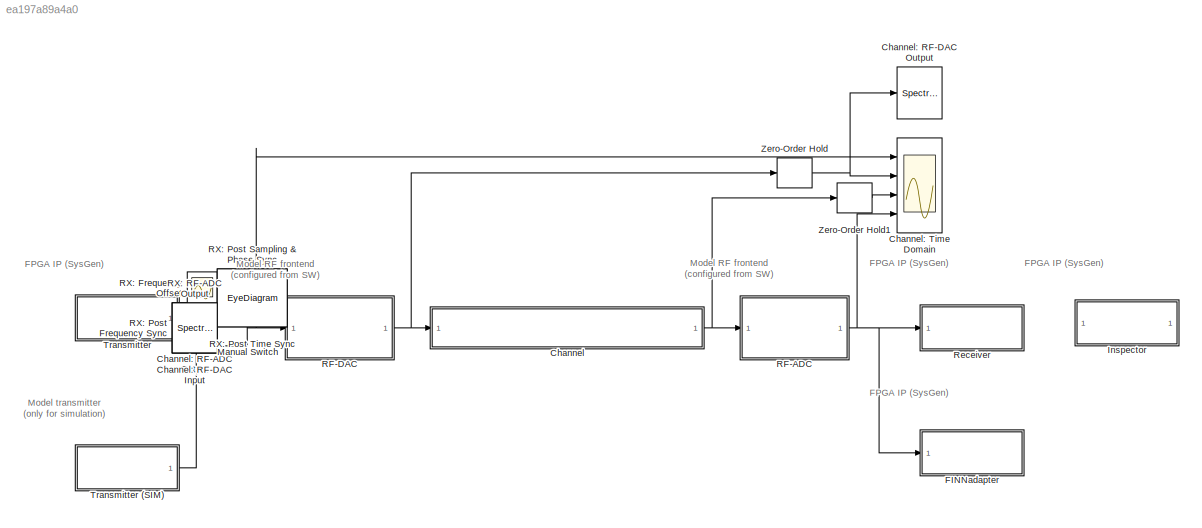
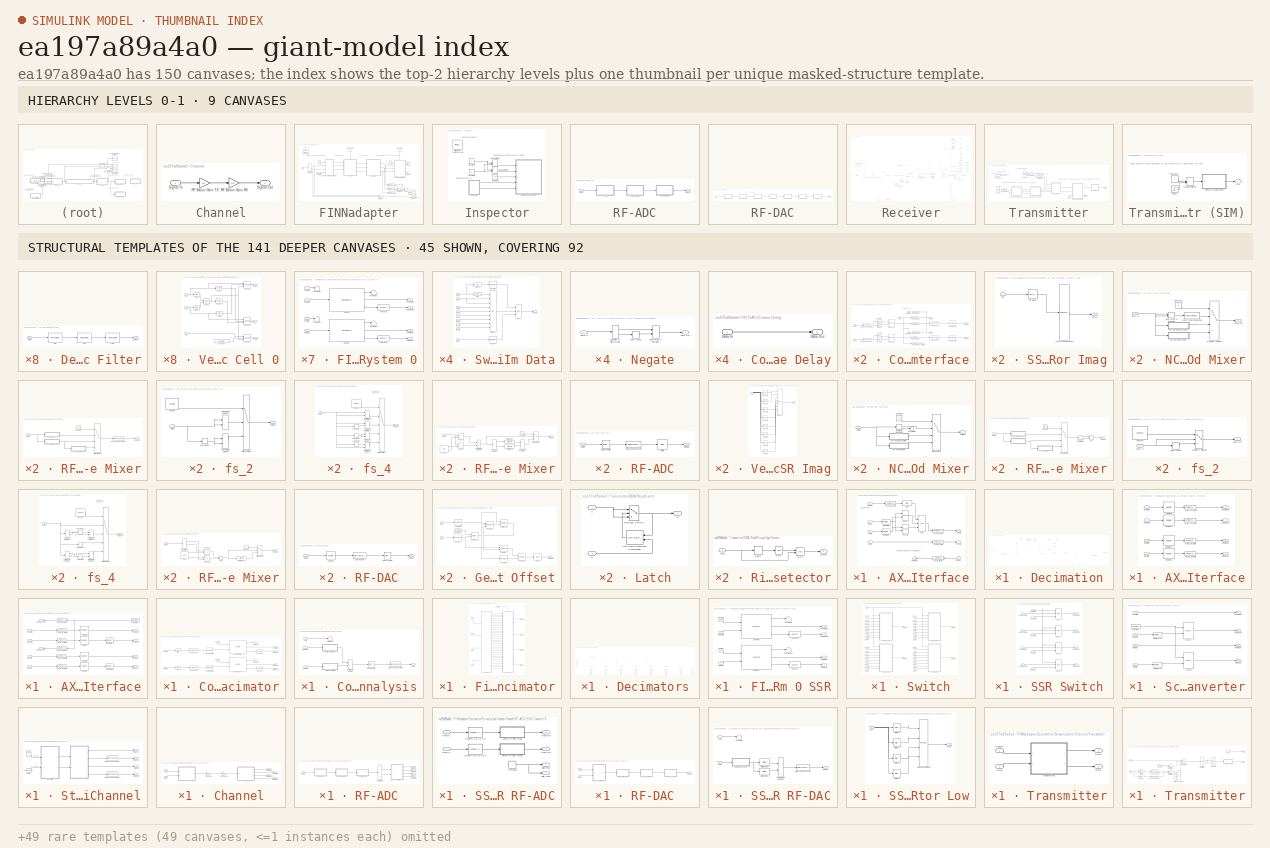
[diagram: thumbnail index - top-2 hierarchy levels (9 canvases) + 45 structural-template representatives of the remaining 141 canvases]
MODEL slx_ea197a89a4a0
KIND model
CONFIG AbsTol = auto
CONFIG EnableMultiTasking = off
CONFIG FixedStep = auto
CONFIG MaxStep = auto
CONFIG MinStep = auto
CONFIG RelTol = 1e-3
CONFIG SampleTimeConstraint = Unconstrained
CONFIG SolverName = VariableStepAuto
CONFIG StartTime = 0.0
CONFIG StopTime = 4000/3.2e6
BLOCK [SubSystem] Channel
  Ports = [1, 1]
  RequestExecContextInheritance = off
BLOCK [Gain] Channel/RF Balun Gain RX
  Gain = 1/2
BLOCK [Gain] Channel/RF Balun Gain TX
  Gain = 1/2
BLOCK [Inport] Channel/Signal In
BLOCK [Outport] Channel/Signal Out
BLOCK [SpectrumAnalyzer] Channel: RF-ADC Output
  IOType = viewer
  Ports = [1]
  ScopeSpecificationString = spbscopes.SpectrumAnalyzerBlockCfg('CurrentConfiguration', extmgr.ConfigurationSet(extmgr.Configuration('Core','General UI',true),extmgr.Configuration('Core','Source UI',true),extmgr.Configuration('Sources','WiredSimulink',true),extmgr.Configuration('Visuals','Spectrum',true,'AxesProperties',struct('Color',{[0 0 0],[0 0 0]},'XColor',{[0.686274509803922 0.686274509803922 0.686274509803922],[0.68627...<+2196ch>
BLOCK [SpectrumAnalyzer] Channel: RF-DAC Input
  IOType = viewer
  Ports = [1]
  ScopeSpecificationString = spbscopes.SpectrumAnalyzerBlockCfg('CurrentConfiguration', extmgr.ConfigurationSet(extmgr.Configuration('Core','General UI',true),extmgr.Configuration('Core','Source UI',true),extmgr.Configuration('Sources','WiredSimulink',true),extmgr.Configuration('Visuals','Spectrum',true,'AxesProperties',struct('Color',{[0 0 0],[0 0 0]},'XColor',{[0.686274509803922 0.686274509803922 0.686274509803922],[0.68627...<+2196ch>
BLOCK [SpectrumAnalyzer] Channel: RF-DAC Output
  Ports = [1]
  ScopeSpecificationString = spbscopes.SpectrumAnalyzerBlockCfg('CurrentConfiguration', extmgr.ConfigurationSet(extmgr.Configuration('Core','General UI',true),extmgr.Configuration('Core','Source UI',true),extmgr.Configuration('Sources','WiredSimulink',true),extmgr.Configuration('Visuals','Spectrum',true,'AxesProperties',struct('Color',{[0 0 0],[0 0 0]},'XColor',{[0.686274509803922 0.686274509803922 0.686274509803922],[0.68627...<+2384ch>
BLOCK [Scope] Channel: Time Domain
  DefaultConfigurationName = spbscopes.TimeScopeBlockCfg
  Floating = off
  NumInputPorts = 4
  Ports = [4]
  ScopeSpecificationString = spbscopes.TimeScopeBlockCfg('CurrentConfiguration', extmgr.ConfigurationSet(extmgr.Configuration('Core','General UI',true,'FigureColor',[1 1 1]),extmgr.Configuration('Core','Source UI',true),extmgr.Configuration('Sources','WiredSimulink',true,'DataLoggingVariableName','ScopeData3'),extmgr.Configuration('Visuals','Time Domain',true,'DisplayLayoutDimensions',[4 1],'DisplayPropertyDefaults',struct('Y...<+5403ch>
  UserDataPersistent = on
BLOCK [SubSystem] FINNadapter
  Ports = [1]
  RequestExecContextInheritance = off
BLOCK [SubSystem] FINNadapter/AXI-Stream Master Interface
  PortSchema = {"entries":[{"content":{"sides":[{"content":{"connectorIds":["In1","In2","In3","In4"]},"type":"ConnectorPlacement.EquallySpacedRectSide","uuid":"a36c70ea-3aa7-48f8-ab75-be9ddb0dc644"},{"content":{"connectorIds":["Out1","Out2"],"side":"RIGHT"},"type":"ConnectorPlacement.EquallySpacedRectSide","uuid":"87414ec3-fb0f-4061-b407-e0aa89661f6b"},{"content":{"connectorIds":["In5"],"side":"TOP"},"type":"Con...<+270ch>
  Ports = [5, 2]
  RequestExecContextInheritance = off
BLOCK [Reference] FINNadapter/AXI-Stream Master Interface/Concat  REF=hdlBasic/Concat
  Ports = [2, 1]
  SourceBlock = hdlBasic/Concat
  SourceType = Bus Concatenator Block
BLOCK [Reference] FINNadapter/AXI-Stream Master Interface/Concat1  REF=hdlBasic/Concat
  Ports = [2, 1]
  SourceBlock = hdlBasic/Concat
  SourceType = Bus Concatenator Block
BLOCK [Inport] FINNadapter/AXI-Stream Master Interface/I//Q Swap
  Port = 5
BLOCK [Inport] FINNadapter/AXI-Stream Master Interface/Imag In
  Port = 4
BLOCK [Reference] FINNadapter/AXI-Stream Master Interface/Mux  REF=hdlBasic/Mux
  Ports = [3, 1]
  SourceBlock = hdlBasic/Mux
  SourceType = Bus Multiplexer Block
BLOCK [Inport] FINNadapter/AXI-Stream Master Interface/Real In
  Port = 3
BLOCK [Reference] FINNadapter/AXI-Stream Master Interface/Reinterpret  REF=hdlBasic/Reinterpret
  Ports = [1, 1]
  SourceBlock = hdlBasic/Reinterpret
  SourceType = Type Reinterpreter Block
BLOCK [Reference] FINNadapter/AXI-Stream Master Interface/Reinterpret1  REF=hdlBasic/Reinterpret
  Ports = [1, 1]
  SourceBlock = hdlBasic/Reinterpret
  SourceType = Type Reinterpreter Block
BLOCK [Reference] FINNadapter/AXI-Stream Master Interface/Slice  REF=hdlBasic/Slice
  Ports = [1, 1]
  SourceBlock = hdlBasic/Slice
  SourceType = Bit Slice Extractor Block
BLOCK [Terminator] FINNadapter/AXI-Stream Master Interface/Terminator
BLOCK [Inport] FINNadapter/AXI-Stream Master Interface/Valid In
  Port = 2
BLOCK [Reference] FINNadapter/AXI-Stream Master Interface/m_axis_tdata  REF=hdlBasic/Gateway Out
  Ports = [1, 1]
  SourceBlock = hdlBasic/Gateway Out
  SourceType = Gateway Out Block
BLOCK [Reference] FINNadapter/AXI-Stream Master Interface/m_axis_tready  REF=hdlBasic/Gateway In
  Ports = [1, 1]
  SourceBlock = hdlBasic/Gateway In
  SourceType = Gateway In Block
BLOCK [Reference] FINNadapter/AXI-Stream Master Interface/m_axis_tvalid  REF=hdlBasic/Gateway Out
  Ports = [1, 1]
  SourceBlock = hdlBasic/Gateway Out
  SourceType = Gateway Out Block
BLOCK [Outport] FINNadapter/AXI-Stream Master Interface/m_tdata
  VectorParamsAs1DForOutWhenUnconnected = off
BLOCK [Inport] FINNadapter/AXI-Stream Master Interface/m_tready
BLOCK [Outport] FINNadapter/AXI-Stream Master Interface/m_tvalid
  Port = 2
  VectorParamsAs1DForOutWhenUnconnected = off
BLOCK [Reference] FINNadapter/AXI-Stream Master Interface/s_axi_iq_swap  REF=hdlBasic/Gateway In
  Ports = [1, 1]
  SourceBlock = hdlBasic/Gateway In
  SourceType = Gateway In Block
BLOCK [SubSystem] FINNadapter/Complex AXI-Stream Slave Interface
  Ports = [4, 3]
  RequestExecContextInheritance = off
BLOCK [Reference] FINNadapter/Complex AXI-Stream Slave Interface/Bit Concat  REF=hdlsllib/Logic and Bit
Operations/Bit Concat
  Ports = [2, 1]
  SourceBlock = hdlsllib/Logic and Bit\nOperations/Bit Concat
  SourceProductBaseCode = SL
  SourceType = Bit Concat
BLOCK [Reference] FINNadapter/Complex AXI-Stream Slave Interface/Bit Concat1  REF=hdlsllib/Logic and Bit
Operations/Bit Concat
  Ports = [2, 1]
  SourceBlock = hdlsllib/Logic and Bit\nOperations/Bit Concat
  SourceProductBaseCode = SL
  SourceType = Bit Concat
BLOCK [DataTypeConversion] FINNadapter/Complex AXI-Stream Slave Interface/Data Type Conversion
  ConvertRealWorld = Stored Integer (SI)
  OutDataTypeStr = uint16
  RndMeth = Floor
  SaturateOnIntegerOverflow = off
BLOCK [DataTypeConversion] FINNadapter/Complex AXI-Stream Slave Interface/Data Type Conversion1
  ConvertRealWorld = Stored Integer (SI)
  OutDataTypeStr = uint16
  RndMeth = Floor
  SaturateOnIntegerOverflow = off
BLOCK [Inport] FINNadapter/Complex AXI-Stream Slave Interface/Imag In
  Port = 3
BLOCK [Outport] FINNadapter/Complex AXI-Stream Slave Interface/Imag Out
  Port = 3
  VectorParamsAs1DForOutWhenUnconnected = off
BLOCK [Inport] FINNadapter/Complex AXI-Stream Slave Interface/Ready In
  Port = 4
BLOCK [Inport] FINNadapter/Complex AXI-Stream Slave Interface/Real In
  Port = 2
BLOCK [Outport] FINNadapter/Complex AXI-Stream Slave Interface/Real Out
  Port = 2
  VectorParamsAs1DForOutWhenUnconnected = off
BLOCK [Reference] FINNadapter/Complex AXI-Stream Slave Interface/Scalar2Vector  REF=hdlSSR/Scalar2Vector
  Ports = [1, 1]
  SourceBlock = hdlSSR/Scalar2Vector
  SourceType = Xilinx Scalar2Vector Block
BLOCK [Reference] FINNadapter/Complex AXI-Stream Slave Interface/Scalar2Vector1  REF=hdlSSR/Scalar2Vector
  Ports = [1, 1]
  SourceBlock = hdlSSR/Scalar2Vector
  SourceType = Xilinx Scalar2Vector Block
BLOCK [Selector] FINNadapter/Complex AXI-Stream Slave Interface/Selector
  IndexMode = Zero-based
  IndexOptions = Index vector (dialog),Index vector (dialog)
  Indices = 0,0
  InputPortWidth = 3
  NumberOfDimensions = 2
  OutputSizes = 1,1
  Ports = [1, 1]
BLOCK [Selector] FINNadapter/Complex AXI-Stream Slave Interface/Selector1
  IndexMode = Zero-based
  IndexOptions = Index vector (dialog),Index vector (dialog)
  Indices = 1,0
  InputPortWidth = 3
  NumberOfDimensions = 2
  OutputSizes = 1,1
  Ports = [1, 1]
BLOCK [Selector] FINNadapter/Complex AXI-Stream Slave Interface/Selector2
  IndexMode = Zero-based
  IndexOptions = Index vector (dialog),Index vector (dialog)
  Indices = 0,0
  InputPortWidth = 3
  NumberOfDimensions = 2
  OutputSizes = 1,1
  Ports = [1, 1]
BLOCK [Selector] FINNadapter/Complex AXI-Stream Slave Interface/Selector3
  IndexMode = Zero-based
  IndexOptions = Index vector (dialog),Index vector (dialog)
  Indices = 1,0
  InputPortWidth = 3
  NumberOfDimensions = 2
  OutputSizes = 1,1
  Ports = [1, 1]
BLOCK [Terminator] FINNadapter/Complex AXI-Stream Slave Interface/Terminator
BLOCK [Terminator] FINNadapter/Complex AXI-Stream Slave Interface/Terminator1
BLOCK [Terminator] FINNadapter/Complex AXI-Stream Slave Interface/Terminator3
BLOCK [Inport] FINNadapter/Complex AXI-Stream Slave Interface/Valid In
BLOCK [Outport] FINNadapter/Complex AXI-Stream Slave Interface/Valid Out
  VectorParamsAs1DForOutWhenUnconnected = off
BLOCK [Reference] FINNadapter/Complex AXI-Stream Slave Interface/Vector Reinterpret  REF=hdlSSR/Vector Reinterpret
  Ports = [1, 1]
  SourceBlock = hdlSSR/Vector Reinterpret
  SourceType = Xilinx Vector Type Reinterpreter Block
BLOCK [Reference] FINNadapter/Complex AXI-Stream Slave Interface/Vector Reinterpret1  REF=hdlSSR/Vector Reinterpret
  Ports = [1, 1]
  SourceBlock = hdlSSR/Vector Reinterpret
  SourceType = Xilinx Vector Type Reinterpreter Block
BLOCK [Reference] FINNadapter/Complex AXI-Stream Slave Interface/s_axis_tdata_im  REF=hdlBasic/Gateway In
  Ports = [1, 1]
  SourceBlock = hdlBasic/Gateway In
  SourceType = Gateway In Block
BLOCK [Reference] FINNadapter/Complex AXI-Stream Slave Interface/s_axis_tdata_re  REF=hdlBasic/Gateway In
  Ports = [1, 1]
  SourceBlock = hdlBasic/Gateway In
  SourceType = Gateway In Block
BLOCK [Reference] FINNadapter/Complex AXI-Stream Slave Interface/s_axis_tready_im  REF=hdlBasic/Gateway Out
  Ports = [1, 1]
  SourceBlock = hdlBasic/Gateway Out
  SourceType = Gateway Out Block
BLOCK [Reference] FINNadapter/Complex AXI-Stream Slave Interface/s_axis_tready_re  REF=hdlBasic/Gateway Out
  Ports = [1, 1]
  SourceBlock = hdlBasic/Gateway Out
  SourceType = Gateway Out Block
BLOCK [Reference] FINNadapter/Complex AXI-Stream Slave Interface/s_axis_tvalid_im  REF=hdlBasic/Gateway In
  Ports = [1, 1]
  SourceBlock = hdlBasic/Gateway In
  SourceType = Gateway In Block
BLOCK [Reference] FINNadapter/Complex AXI-Stream Slave Interface/s_axis_tvalid_re  REF=hdlBasic/Gateway In
  Ports = [1, 1]
  SourceBlock = hdlBasic/Gateway In
  SourceType = Gateway In Block
BLOCK [ComplexToRealImag] FINNadapter/Complex to Real-Imag
  Ports = [1, 2]
BLOCK [Reference] FINNadapter/Constant  REF=hdlBasic/Constant
  Ports = [0, 1]
  SourceBlock = hdlBasic/Constant
  SourceType = Constant Block Block
BLOCK [Constant] FINNadapter/Constant1
  SampleTime = 1/128e6
BLOCK [SubSystem] FINNadapter/Decimation
  PortSchema = {"entries":[{"content":{"sides":[{"content":{"connectorIds":["In1","In2","In3"]},"type":"ConnectorPlacement.EquallySpacedRectSide","uuid":"c39efefd-d044-45ef-8443-3f9ddeb5826b"},{"content":{"connectorIds":["Out1","Out2","Out3"],"side":"RIGHT"},"type":"ConnectorPlacement.EquallySpacedRectSide","uuid":"7bd2725c-9ff2-45ec-a334-c2a46cf2cc24"},{"content":{"connectorIds":["In4"],"side":"TOP"},"type":"Co...<+271ch>
  Ports = [4, 3]
  RequestExecContextInheritance = off
BLOCK [Constant] FINNadapter/Decimation (SIM)
  NameLocation = left
  OutDataTypeStr = uint32
  SampleTime = 1/64e6
  Value = 8
BLOCK [SubSystem] FINNadapter/Decimation/AXI-Stream Master Interface
  Commented = on
  Ports = [4, 4]
  RequestExecContextInheritance = off
BLOCK [Inport] FINNadapter/Decimation/AXI-Stream Master Interface/Im Data In
  Port = 4
BLOCK [Outport] FINNadapter/Decimation/AXI-Stream Master Interface/Im Data Out
  Port = 4
BLOCK [Inport] FINNadapter/Decimation/AXI-Stream Master Interface/Im Valid In
  Port = 3
BLOCK [Outport] FINNadapter/Decimation/AXI-Stream Master Interface/Im Valid Out
  Port = 3
BLOCK [Inport] FINNadapter/Decimation/AXI-Stream Master Interface/Re Data In
  Port = 2
BLOCK [Outport] FINNadapter/Decimation/AXI-Stream Master Interface/Re Data Out
  Port = 2
BLOCK [Inport] FINNadapter/Decimation/AXI-Stream Master Interface/Re Valid In
BLOCK [Outport] FINNadapter/Decimation/AXI-Stream Master Interface/Re Valid Out
BLOCK [Reference] FINNadapter/Decimation/AXI-Stream Master Interface/Register  REF=hdlBasic/Register
  Ports = [1, 1]
  SourceBlock = hdlBasic/Register
  SourceType = Register Block
BLOCK [Reference] FINNadapter/Decimation/AXI-Stream Master Interface/Register1  REF=hdlBasic/Register
  Ports = [1, 1]
  SourceBlock = hdlBasic/Register
  SourceType = Register Block
BLOCK [Reference] FINNadapter/Decimation/AXI-Stream Master Interface/Register2  REF=hdlBasic/Register
  Ports = [1, 1]
  SourceBlock = hdlBasic/Register
  SourceType = Register Block
BLOCK [Reference] FINNadapter/Decimation/AXI-Stream Master Interface/Register3  REF=hdlBasic/Register
  Ports = [1, 1]
  SourceBlock = hdlBasic/Register
  SourceType = Register Block
BLOCK [Reference] FINNadapter/Decimation/AXI-Stream Master Interface/m_axis_im_tdata  REF=hdlBasic/Gateway Out
  Ports = [1, 1]
  SourceBlock = hdlBasic/Gateway Out
  SourceType = Gateway Out Block
BLOCK [Reference] FINNadapter/Decimation/AXI-Stream Master Interface/m_axis_im_tvalid  REF=hdlBasic/Gateway Out
  Ports = [1, 1]
  SourceBlock = hdlBasic/Gateway Out
  SourceType = Gateway Out Block
BLOCK [Reference] FINNadapter/Decimation/AXI-Stream Master Interface/m_axis_re_tdata  REF=hdlBasic/Gateway Out
  Ports = [1, 1]
  SourceBlock = hdlBasic/Gateway Out
  SourceType = Gateway Out Block
BLOCK [Reference] FINNadapter/Decimation/AXI-Stream Master Interface/m_axis_re_tvalid  REF=hdlBasic/Gateway Out
  Ports = [1, 1]
  SourceBlock = hdlBasic/Gateway Out
  SourceType = Gateway Out Block
BLOCK [SubSystem] FINNadapter/Decimation/AXI-Stream Slave Interface
  Commented = on
  PortSchema = {"entries":[{"content":{"sides":[{"content":{"connectorIds":["In1","In2","In3","In4","Out5","Out6"]},"type":"ConnectorPlacement.EquallySpacedRectSide","uuid":"9ac4903b-3084-4d6f-9c93-4d37233c48de"},{"content":{"connectorIds":["Out1","Out2","Out3","Out4"],"side":"RIGHT"},"type":"ConnectorPlacement.EquallySpacedRectSide","uuid":"4509a3bf-b583-42cc-8228-5d81a5032102"},{"content":{"connectorIds":[],"s...<+295ch>
  Ports = [4, 6]
  RequestExecContextInheritance = off
BLOCK [Reference] FINNadapter/Decimation/AXI-Stream Slave Interface/Constant  REF=hdlBasic/Constant
  Ports = [0, 1]
  SourceBlock = hdlBasic/Constant
  SourceType = Constant Block Block
BLOCK [Inport] FINNadapter/Decimation/AXI-Stream Slave Interface/Im Data In
  Port = 4
BLOCK [Outport] FINNadapter/Decimation/AXI-Stream Slave Interface/Im Data Out
  Port = 4
BLOCK [Outport] FINNadapter/Decimation/AXI-Stream Slave Interface/Im Ready Out
  Port = 6
BLOCK [Inport] FINNadapter/Decimation/AXI-Stream Slave Interface/Im Valid In
  Port = 2
BLOCK [Outport] FINNadapter/Decimation/AXI-Stream Slave Interface/Im Valid Out
  Port = 3
BLOCK [Inport] FINNadapter/Decimation/AXI-Stream Slave Interface/Re Data In
  Port = 3
BLOCK [Outport] FINNadapter/Decimation/AXI-Stream Slave Interface/Re Data Out
  Port = 2
BLOCK [Outport] FINNadapter/Decimation/AXI-Stream Slave Interface/Re Ready Out
  Port = 5
BLOCK [Inport] FINNadapter/Decimation/AXI-Stream Slave Interface/Re Valid In
BLOCK [Outport] FINNadapter/Decimation/AXI-Stream Slave Interface/Re Valid Out
BLOCK [Reference] FINNadapter/Decimation/AXI-Stream Slave Interface/Register  REF=hdlBasic/Register
  Ports = [1, 1]
  SourceBlock = hdlBasic/Register
  SourceType = Register Block
BLOCK [Reference] FINNadapter/Decimation/AXI-Stream Slave Interface/Register1  REF=hdlBasic/Register
  Ports = [1, 1]
  SourceBlock = hdlBasic/Register
  SourceType = Register Block
BLOCK [Reference] FINNadapter/Decimation/AXI-Stream Slave Interface/Register2  REF=hdlBasic/Register
  Ports = [1, 1]
  SourceBlock = hdlBasic/Register
  SourceType = Register Block
BLOCK [Reference] FINNadapter/Decimation/AXI-Stream Slave Interface/Register3  REF=hdlBasic/Register
  Ports = [1, 1]
  SourceBlock = hdlBasic/Register
  SourceType = Register Block
BLOCK [Reference] FINNadapter/Decimation/AXI-Stream Slave Interface/Reinterpret  REF=hdlBasic/Reinterpret
  Ports = [1, 1]
  SourceBlock = hdlBasic/Reinterpret
  SourceType = Type Reinterpreter Block
BLOCK [Reference] FINNadapter/Decimation/AXI-Stream Slave Interface/Reinterpret1  REF=hdlBasic/Reinterpret
  Ports = [1, 1]
  SourceBlock = hdlBasic/Reinterpret
  SourceType = Type Reinterpreter Block
BLOCK [Reference] FINNadapter/Decimation/AXI-Stream Slave Interface/s_axis_im_tdata  REF=hdlBasic/Gateway In
  Ports = [1, 1]
  SourceBlock = hdlBasic/Gateway In
  SourceType = Gateway In Block
BLOCK [Reference] FINNadapter/Decimation/AXI-Stream Slave Interface/s_axis_im_tready  REF=hdlBasic/Gateway Out
  Ports = [1, 1]
  SourceBlock = hdlBasic/Gateway Out
  SourceType = Gateway Out Block
BLOCK [Reference] FINNadapter/Decimation/AXI-Stream Slave Interface/s_axis_im_tvalid  REF=hdlBasic/Gateway In
  Ports = [1, 1]
  SourceBlock = hdlBasic/Gateway In
  SourceType = Gateway In Block
BLOCK [Reference] FINNadapter/Decimation/AXI-Stream Slave Interface/s_axis_re_tdata  REF=hdlBasic/Gateway In
  Ports = [1, 1]
  SourceBlock = hdlBasic/Gateway In
  SourceType = Gateway In Block
BLOCK [Reference] FINNadapter/Decimation/AXI-Stream Slave Interface/s_axis_re_tready  REF=hdlBasic/Gateway Out
  Ports = [1, 1]
  SourceBlock = hdlBasic/Gateway Out
  SourceType = Gateway Out Block
BLOCK [Reference] FINNadapter/Decimation/AXI-Stream Slave Interface/s_axis_re_tvalid  REF=hdlBasic/Gateway In
  Ports = [1, 1]
  SourceBlock = hdlBasic/Gateway In
  SourceType = Gateway In Block
BLOCK [SubSystem] FINNadapter/Decimation/Coarse Decimator
  Ports = [4, 4]
  RequestExecContextInheritance = off
BLOCK [Reference] FINNadapter/Decimation/Coarse Decimator/Convert  REF=hdlBasic/Convert
  Ports = [1, 1]
  SourceBlock = hdlBasic/Convert
  SourceType = Type Converter Block
BLOCK [Reference] FINNadapter/Decimation/Coarse Decimator/Convert1  REF=hdlBasic/Convert
  Ports = [1, 1]
  SourceBlock = hdlBasic/Convert
  SourceType = Type Converter Block
BLOCK [Inport] FINNadapter/Decimation/Coarse Decimator/Im Data In
  Port = 4
BLOCK [Outport] FINNadapter/Decimation/Coarse Decimator/Im Data Out
  Port = 4
BLOCK [Inport] FINNadapter/Decimation/Coarse Decimator/Im Valid In 
  Port = 3
BLOCK [Outport] FINNadapter/Decimation/Coarse Decimator/Im Valid Out
  Port = 3
BLOCK [Inport] FINNadapter/Decimation/Coarse Decimator/Re Data In
  Port = 2
BLOCK [Outport] FINNadapter/Decimation/Coarse Decimator/Re Data Out
  Port = 2
BLOCK [Inport] FINNadapter/Decimation/Coarse Decimator/Re Valid In
BLOCK [Outport] FINNadapter/Decimation/Coarse Decimator/Re Valid Out
BLOCK [Reference] FINNadapter/Decimation/Coarse Decimator/Scalar2Vector  REF=hdlSSR/Scalar2Vector
  Commented = through
  Ports = [1, 1]
  SourceBlock = hdlSSR/Scalar2Vector
  SourceType = Xilinx Scalar2Vector Block
BLOCK [Reference] FINNadapter/Decimation/Coarse Decimator/Scalar2Vector1  REF=hdlSSR/Scalar2Vector
  Commented = through
  Ports = [1, 1]
  SourceBlock = hdlSSR/Scalar2Vector
  SourceType = Xilinx Scalar2Vector Block
BLOCK [Reference] FINNadapter/Decimation/Coarse Decimator/Slice  REF=hdlBasic/Slice
  Commented = through
  Ports = [1, 1]
  SourceBlock = hdlBasic/Slice
  SourceType = Bit Slice Extractor Block
BLOCK [Reference] FINNadapter/Decimation/Coarse Decimator/Slice1  REF=hdlBasic/Slice
  Commented = through
  Ports = [1, 1]
  SourceBlock = hdlBasic/Slice
  SourceType = Bit Slice Extractor Block
BLOCK [Terminator] FINNadapter/Decimation/Coarse Decimator/Terminator
BLOCK [Terminator] FINNadapter/Decimation/Coarse Decimator/Terminator2
BLOCK [Reference] FINNadapter/Decimation/Coarse Decimator/Vector Imag FIR 2  REF=hdlSSR/Vector FIR
  Ports = [2, 3]
  SourceBlock = hdlSSR/Vector FIR
  SourceType = Xilinx Vector FIR Compiler 7.2 Block
BLOCK [Reference] FINNadapter/Decimation/Coarse Decimator/Vector Real FIR 2  REF=hdlSSR/Vector FIR
  Ports = [2, 3]
  SourceBlock = hdlSSR/Vector FIR
  SourceType = Xilinx Vector FIR Compiler 7.2 Block
BLOCK [Reference] FINNadapter/Decimation/Coarse Decimator/Vector Reinterpret  REF=hdlSSR/Vector Reinterpret
  Commented = through
  Ports = [1, 1]
  SourceBlock = hdlSSR/Vector Reinterpret
  SourceType = Xilinx Vector Type Reinterpreter Block
BLOCK [Reference] FINNadapter/Decimation/Coarse Decimator/Vector Reinterpret1  REF=hdlSSR/Vector Reinterpret
  Commented = through
  Ports = [1, 1]
  SourceBlock = hdlSSR/Vector Reinterpret
  SourceType = Xilinx Vector Type Reinterpreter Block
BLOCK [Reference] FINNadapter/Decimation/Constant  REF=hdlBasic/Constant
  Commented = on
  Ports = [0, 1]
  SourceBlock = hdlBasic/Constant
  SourceType = Constant Block Block
BLOCK [SubSystem] FINNadapter/Decimation/Convert for Analysis
  Commented = on
  Ports = [3, 1]
  RequestExecContextInheritance = off
BLOCK [Outport] FINNadapter/Decimation/Convert for Analysis/Data
BLOCK [DataTypeConversion] FINNadapter/Decimation/Convert for Analysis/Data Type Conversion
  ConvertRealWorld = Stored Integer (SI)
  OutDataTypeStr = fixdt(1,16,15)
  RndMeth = Floor
  SaturateOnIntegerOverflow = off
BLOCK [RateTransition] FINNadapter/Decimation/Convert for Analysis/Rate Transition
  OutPortSampleTimeMultiple = 2
  OutPortSampleTimeOpt = Multiple of input port sample time
BLOCK [RealImagToComplex] FINNadapter/Decimation/Convert for Analysis/Real-Imag to Complex
  Ports = [2, 1]
BLOCK [Inport] FINNadapter/Decimation/Convert for Analysis/SSR Imag
  Port = 3
BLOCK [Inport] FINNadapter/Decimation/Convert for Analysis/SSR Real
  Port = 2
BLOCK [SubSystem] FINNadapter/Decimation/Convert for Analysis/SSR to Vector Imag
  Ports = [1, 1]
  RequestExecContextInheritance = off
BLOCK [Reference] FINNadapter/Decimation/Convert for Analysis/SSR to Vector Imag/Bit Slice0  REF=hdlsllib/Logic and Bit
Operations/Bit Slice
  Ports = [1, 1]
  SourceBlock = hdlsllib/Logic and Bit\nOperations/Bit Slice
  SourceProductBaseCode = SL
  SourceType = Bit Slice
BLOCK [Concatenate] FINNadapter/Decimation/Convert for Analysis/SSR to Vector Imag/Matrix Concatenate
  Mode = Multidimensional array
  NumInputs = 1
  Ports = [1, 1]
BLOCK [Inport] FINNadapter/Decimation/Convert for Analysis/SSR to Vector Imag/SSR
BLOCK [Outport] FINNadapter/Decimation/Convert for Analysis/SSR to Vector Imag/Vector
BLOCK [SubSystem] FINNadapter/Decimation/Convert for Analysis/SSR to Vector Real
  Ports = [1, 1]
  RequestExecContextInheritance = off
BLOCK [Reference] FINNadapter/Decimation/Convert for Analysis/SSR to Vector Real/Bit Slice0  REF=hdlsllib/Logic and Bit
Operations/Bit Slice
  Ports = [1, 1]
  SourceBlock = hdlsllib/Logic and Bit\nOperations/Bit Slice
  SourceProductBaseCode = SL
  SourceType = Bit Slice
BLOCK [Concatenate] FINNadapter/Decimation/Convert for Analysis/SSR to Vector Real/Matrix Concatenate
  Mode = Multidimensional array
  NumInputs = 1
  Ports = [1, 1]
BLOCK [Inport] FINNadapter/Decimation/Convert for Analysis/SSR to Vector Real/SSR
BLOCK [Outport] FINNadapter/Decimation/Convert for Analysis/SSR to Vector Real/Vector
BLOCK [Terminator] FINNadapter/Decimation/Convert for Analysis/Terminator
BLOCK [Inport] FINNadapter/Decimation/Convert for Analysis/Valid
BLOCK [Inport] FINNadapter/Decimation/Decimation
  Port = 4
BLOCK [SubSystem] FINNadapter/Decimation/Fine Decimator
  PortSchema = {"entries":[{"content":{"sides":[{"content":{"connectorIds":["In1","In2","In3","In4"]},"type":"ConnectorPlacement.EquallySpacedRectSide","uuid":"7334af96-d1e0-488c-90d8-25d26f777d37"},{"content":{"connectorIds":["Out1","Out2","Out3","Out4"],"side":"RIGHT"},"type":"ConnectorPlacement.EquallySpacedRectSide","uuid":"b7715cae-8643-411d-8aeb-c70b4f342757"},{"content":{"connectorIds":["In5"],"side":"TOP...<+286ch>
  Ports = [5, 4]
  RequestExecContextInheritance = off
BLOCK [Inport] FINNadapter/Decimation/Fine Decimator/Decimation
  Port = 5
BLOCK [SubSystem] FINNadapter/Decimation/Fine Decimator/Decimators
  Ports = [4, 32]
  RequestExecContextInheritance = off
BLOCK [SubSystem] FINNadapter/Decimation/Fine Decimator/Decimators/FIR 2 System 0
  Ports = [4, 4]
  RequestExecContextInheritance = off
BLOCK [SubSystem] FINNadapter/Decimation/Fine Decimator/Decimators/FIR 2 System 0 SSR
  Commented = on
  Ports = [4, 4]
  RequestExecContextInheritance = off
BLOCK [Reference] FINNadapter/Decimation/Fine Decimator/Decimators/FIR 2 System 0 SSR/Convert  REF=hdlBasic/Convert
  Ports = [1, 1]
  SourceBlock = hdlBasic/Convert
  SourceType = Type Converter Block
BLOCK [Reference] FINNadapter/Decimation/Fine Decimator/Decimators/FIR 2 System 0 SSR/Convert1  REF=hdlBasic/Convert
  Ports = [1, 1]
  SourceBlock = hdlBasic/Convert
  SourceType = Type Converter Block
BLOCK [Inport] FINNadapter/Decimation/Fine Decimator/Decimators/FIR 2 System 0 SSR/Im Data In
  Port = 4
BLOCK [Outport] FINNadapter/Decimation/Fine Decimator/Decimators/FIR 2 System 0 SSR/Im Data Out
  Port = 4
BLOCK [Inport] FINNadapter/Decimation/Fine Decimator/Decimators/FIR 2 System 0 SSR/Im Valid In 
  Port = 3
BLOCK [Outport] FINNadapter/Decimation/Fine Decimator/Decimators/FIR 2 System 0 SSR/Im Valid Out
  Port = 3
BLOCK [Reference] FINNadapter/Decimation/Fine Decimator/Decimators/FIR 2 System 0 SSR/Imag FIR 2  REF=hdlSSR/Vector FIR
  Ports = [2, 3]
  SourceBlock = hdlSSR/Vector FIR
  SourceType = Xilinx Vector FIR Compiler 7.2 Block
BLOCK [Inport] FINNadapter/Decimation/Fine Decimator/Decimators/FIR 2 System 0 SSR/Re Data In
  Port = 2
BLOCK [Outport] FINNadapter/Decimation/Fine Decimator/Decimators/FIR 2 System 0 SSR/Re Data Out
  Port = 2
BLOCK [Inport] FINNadapter/Decimation/Fine Decimator/Decimators/FIR 2 System 0 SSR/Re Valid In
BLOCK [Outport] FINNadapter/Decimation/Fine Decimator/Decimators/FIR 2 System 0 SSR/Re Valid Out
BLOCK [Reference] FINNadapter/Decimation/Fine Decimator/Decimators/FIR 2 System 0 SSR/Real FIR 2  REF=hdlSSR/Vector FIR
  Ports = [2, 3]
  SourceBlock = hdlSSR/Vector FIR
  SourceType = Xilinx Vector FIR Compiler 7.2 Block
BLOCK [Terminator] FINNadapter/Decimation/Fine Decimator/Decimators/FIR 2 System 0 SSR/Terminator
BLOCK [Terminator] FINNadapter/Decimation/Fine Decimator/Decimators/FIR 2 System 0 SSR/Terminator2
BLOCK [Reference] FINNadapter/Decimation/Fine Decimator/Decimators/FIR 2 System 0/Convert2  REF=hdlBasic/Convert
  Ports = [1, 1]
  SourceBlock = hdlBasic/Convert
  SourceType = Type Converter Block
BLOCK [Reference] FINNadapter/Decimation/Fine Decimator/Decimators/FIR 2 System 0/Convert3  REF=hdlBasic/Convert
  Ports = [1, 1]
  SourceBlock = hdlBasic/Convert
  SourceType = Type Converter Block
BLOCK [Inport] FINNadapter/Decimation/Fine Decimator/Decimators/FIR 2 System 0/Im Data In
  Port = 4
BLOCK [Outport] FINNadapter/Decimation/Fine Decimator/Decimators/FIR 2 System 0/Im Data Out
  Port = 4
BLOCK [Inport] FINNadapter/Decimation/Fine Decimator/Decimators/FIR 2 System 0/Im Valid In 
  Port = 3
BLOCK [Outport] FINNadapter/Decimation/Fine Decimator/Decimators/FIR 2 System 0/Im Valid Out
  Port = 3
BLOCK [Reference] FINNadapter/Decimation/Fine Decimator/Decimators/FIR 2 System 0/Imag FIR 2  REF=hdlDSPIP/FIR Compiler 7.2 
  Ports = [1, 3]
  SourceBlock = hdlDSPIP/FIR Compiler 7.2
  SourceType = FIR Compiler 7.2 Block
BLOCK [Inport] FINNadapter/Decimation/Fine Decimator/Decimators/FIR 2 System 0/Re Data In
  Port = 2
BLOCK [Outport] FINNadapter/Decimation/Fine Decimator/Decimators/FIR 2 System 0/Re Data Out
  Port = 2
BLOCK [Inport] FINNadapter/Decimation/Fine Decimator/Decimators/FIR 2 System 0/Re Valid In
BLOCK [Outport] FINNadapter/Decimation/Fine Decimator/Decimators/FIR 2 System 0/Re Valid Out
BLOCK [Reference] FINNadapter/Decimation/Fine Decimator/Decimators/FIR 2 System 0/Real FIR 2  REF=hdlDSPIP/FIR Compiler 7.2 
  Ports = [1, 3]
  SourceBlock = hdlDSPIP/FIR Compiler 7.2
  SourceType = FIR Compiler 7.2 Block
BLOCK [Terminator] FINNadapter/Decimation/Fine Decimator/Decimators/FIR 2 System 0/Terminator1
BLOCK [Terminator] FINNadapter/Decimation/Fine Decimator/Decimators/FIR 2 System 0/Terminator2
BLOCK [Terminator] FINNadapter/Decimation/Fine Decimator/Decimators/FIR 2 System 0/Terminator3
BLOCK [Terminator] FINNadapter/Decimation/Fine Decimator/Decimators/FIR 2 System 0/Terminator4
BLOCK [SubSystem] FINNadapter/Decimation/Fine Decimator/Decimators/FIR 2 System 1
  Ports = [4, 4]
  RequestExecContextInheritance = off
BLOCK [Reference] FINNadapter/Decimation/Fine Decimator/Decimators/FIR 2 System 1/Convert2  REF=hdlBasic/Convert
  Ports = [1, 1]
  SourceBlock = hdlBasic/Convert
  SourceType = Type Converter Block
BLOCK [Reference] FINNadapter/Decimation/Fine Decimator/Decimators/FIR 2 System 1/Convert3  REF=hdlBasic/Convert
  Ports = [1, 1]
  SourceBlock = hdlBasic/Convert
  SourceType = Type Converter Block
BLOCK [Inport] FINNadapter/Decimation/Fine Decimator/Decimators/FIR 2 System 1/Im Data In
  Port = 4
BLOCK [Outport] FINNadapter/Decimation/Fine Decimator/Decimators/FIR 2 System 1/Im Data Out
  Port = 4
BLOCK [Inport] FINNadapter/Decimation/Fine Decimator/Decimators/FIR 2 System 1/Im Valid In 
  Port = 3
BLOCK [Outport] FINNadapter/Decimation/Fine Decimator/Decimators/FIR 2 System 1/Im Valid Out
  Port = 3
BLOCK [Reference] FINNadapter/Decimation/Fine Decimator/Decimators/FIR 2 System 1/Imag FIR 2  REF=hdlDSPIP/FIR Compiler 7.2 
  Ports = [1, 3]
  SourceBlock = hdlDSPIP/FIR Compiler 7.2
  SourceType = FIR Compiler 7.2 Block
BLOCK [Inport] FINNadapter/Decimation/Fine Decimator/Decimators/FIR 2 System 1/Re Data In
  Port = 2
BLOCK [Outport] FINNadapter/Decimation/Fine Decimator/Decimators/FIR 2 System 1/Re Data Out
  Port = 2
BLOCK [Inport] FINNadapter/Decimation/Fine Decimator/Decimators/FIR 2 System 1/Re Valid In
BLOCK [Outport] FINNadapter/Decimation/Fine Decimator/Decimators/FIR 2 System 1/Re Valid Out
BLOCK [Reference] FINNadapter/Decimation/Fine Decimator/Decimators/FIR 2 System 1/Real FIR 2  REF=hdlDSPIP/FIR Compiler 7.2 
  Ports = [1, 3]
  SourceBlock = hdlDSPIP/FIR Compiler 7.2
  SourceType = FIR Compiler 7.2 Block
BLOCK [Terminator] FINNadapter/Decimation/Fine Decimator/Decimators/FIR 2 System 1/Terminator1
BLOCK [Terminator] FINNadapter/Decimation/Fine Decimator/Decimators/FIR 2 System 1/Terminator2
BLOCK [Terminator] FINNadapter/Decimation/Fine Decimator/Decimators/FIR 2 System 1/Terminator3
BLOCK [Terminator] FINNadapter/Decimation/Fine Decimator/Decimators/FIR 2 System 1/Terminator4
BLOCK [SubSystem] FINNadapter/Decimation/Fine Decimator/Decimators/FIR 2 System 2
  Ports = [4, 4]
  RequestExecContextInheritance = off
BLOCK [Reference] FINNadapter/Decimation/Fine Decimator/Decimators/FIR 2 System 2/Convert2  REF=hdlBasic/Convert
  Ports = [1, 1]
  SourceBlock = hdlBasic/Convert
  SourceType = Type Converter Block
BLOCK [Reference] FINNadapter/Decimation/Fine Decimator/Decimators/FIR 2 System 2/Convert3  REF=hdlBasic/Convert
  Ports = [1, 1]
  SourceBlock = hdlBasic/Convert
  SourceType = Type Converter Block
BLOCK [Inport] FINNadapter/Decimation/Fine Decimator/Decimators/FIR 2 System 2/Im Data In
  Port = 4
BLOCK [Outport] FINNadapter/Decimation/Fine Decimator/Decimators/FIR 2 System 2/Im Data Out
  Port = 4
BLOCK [Inport] FINNadapter/Decimation/Fine Decimator/Decimators/FIR 2 System 2/Im Valid In 
  Port = 3
BLOCK [Outport] FINNadapter/Decimation/Fine Decimator/Decimators/FIR 2 System 2/Im Valid Out
  Port = 3
BLOCK [Reference] FINNadapter/Decimation/Fine Decimator/Decimators/FIR 2 System 2/Imag FIR 2  REF=hdlDSPIP/FIR Compiler 7.2 
  Ports = [1, 3]
  SourceBlock = hdlDSPIP/FIR Compiler 7.2
  SourceType = FIR Compiler 7.2 Block
BLOCK [Inport] FINNadapter/Decimation/Fine Decimator/Decimators/FIR 2 System 2/Re Data In
  Port = 2
BLOCK [Outport] FINNadapter/Decimation/Fine Decimator/Decimators/FIR 2 System 2/Re Data Out
  Port = 2
BLOCK [Inport] FINNadapter/Decimation/Fine Decimator/Decimators/FIR 2 System 2/Re Valid In
BLOCK [Outport] FINNadapter/Decimation/Fine Decimator/Decimators/FIR 2 System 2/Re Valid Out
BLOCK [Reference] FINNadapter/Decimation/Fine Decimator/Decimators/FIR 2 System 2/Real FIR 2  REF=hdlDSPIP/FIR Compiler 7.2 
  Ports = [1, 3]
  SourceBlock = hdlDSPIP/FIR Compiler 7.2
  SourceType = FIR Compiler 7.2 Block
BLOCK [Terminator] FINNadapter/Decimation/Fine Decimator/Decimators/FIR 2 System 2/Terminator1
BLOCK [Terminator] FINNadapter/Decimation/Fine Decimator/Decimators/FIR 2 System 2/Terminator2
BLOCK [Terminator] FINNadapter/Decimation/Fine Decimator/Decimators/FIR 2 System 2/Terminator3
BLOCK [Terminator] FINNadapter/Decimation/Fine Decimator/Decimators/FIR 2 System 2/Terminator4
BLOCK [SubSystem] FINNadapter/Decimation/Fine Decimator/Decimators/FIR 2 System 3
  Ports = [4, 4]
  RequestExecContextInheritance = off
BLOCK [Reference] FINNadapter/Decimation/Fine Decimator/Decimators/FIR 2 System 3/Convert2  REF=hdlBasic/Convert
  Ports = [1, 1]
  SourceBlock = hdlBasic/Convert
  SourceType = Type Converter Block
BLOCK [Reference] FINNadapter/Decimation/Fine Decimator/Decimators/FIR 2 System 3/Convert3  REF=hdlBasic/Convert
  Ports = [1, 1]
  SourceBlock = hdlBasic/Convert
  SourceType = Type Converter Block
BLOCK [Inport] FINNadapter/Decimation/Fine Decimator/Decimators/FIR 2 System 3/Im Data In
  Port = 4
BLOCK [Outport] FINNadapter/Decimation/Fine Decimator/Decimators/FIR 2 System 3/Im Data Out
  Port = 4
BLOCK [Inport] FINNadapter/Decimation/Fine Decimator/Decimators/FIR 2 System 3/Im Valid In 
  Port = 3
BLOCK [Outport] FINNadapter/Decimation/Fine Decimator/Decimators/FIR 2 System 3/Im Valid Out
  Port = 3
BLOCK [Reference] FINNadapter/Decimation/Fine Decimator/Decimators/FIR 2 System 3/Imag FIR 2  REF=hdlDSPIP/FIR Compiler 7.2 
  Ports = [1, 3]
  SourceBlock = hdlDSPIP/FIR Compiler 7.2
  SourceType = FIR Compiler 7.2 Block
BLOCK [Inport] FINNadapter/Decimation/Fine Decimator/Decimators/FIR 2 System 3/Re Data In
  Port = 2
BLOCK [Outport] FINNadapter/Decimation/Fine Decimator/Decimators/FIR 2 System 3/Re Data Out
  Port = 2
BLOCK [Inport] FINNadapter/Decimation/Fine Decimator/Decimators/FIR 2 System 3/Re Valid In
BLOCK [Outport] FINNadapter/Decimation/Fine Decimator/Decimators/FIR 2 System 3/Re Valid Out
BLOCK [Reference] FINNadapter/Decimation/Fine Decimator/Decimators/FIR 2 System 3/Real FIR 2  REF=hdlDSPIP/FIR Compiler 7.2 
  Ports = [1, 3]
  SourceBlock = hdlDSPIP/FIR Compiler 7.2
  SourceType = FIR Compiler 7.2 Block
BLOCK [Terminator] FINNadapter/Decimation/Fine Decimator/Decimators/FIR 2 System 3/Terminator1
BLOCK [Terminator] FINNadapter/Decimation/Fine Decimator/Decimators/FIR 2 System 3/Terminator2
BLOCK [Terminator] FINNadapter/Decimation/Fine Decimator/Decimators/FIR 2 System 3/Terminator3
BLOCK [Terminator] FINNadapter/Decimation/Fine Decimator/Decimators/FIR 2 System 3/Terminator4
BLOCK [SubSystem] FINNadapter/Decimation/Fine Decimator/Decimators/FIR 2 System 4
  Ports = [4, 4]
  RequestExecContextInheritance = off
BLOCK [Reference] FINNadapter/Decimation/Fine Decimator/Decimators/FIR 2 System 4/Convert2  REF=hdlBasic/Convert
  Ports = [1, 1]
  SourceBlock = hdlBasic/Convert
  SourceType = Type Converter Block
BLOCK [Reference] FINNadapter/Decimation/Fine Decimator/Decimators/FIR 2 System 4/Convert3  REF=hdlBasic/Convert
  Ports = [1, 1]
  SourceBlock = hdlBasic/Convert
  SourceType = Type Converter Block
BLOCK [Inport] FINNadapter/Decimation/Fine Decimator/Decimators/FIR 2 System 4/Im Data In
  Port = 4
BLOCK [Outport] FINNadapter/Decimation/Fine Decimator/Decimators/FIR 2 System 4/Im Data Out
  Port = 4
BLOCK [Inport] FINNadapter/Decimation/Fine Decimator/Decimators/FIR 2 System 4/Im Valid In 
  Port = 3
BLOCK [Outport] FINNadapter/Decimation/Fine Decimator/Decimators/FIR 2 System 4/Im Valid Out
  Port = 3
BLOCK [Reference] FINNadapter/Decimation/Fine Decimator/Decimators/FIR 2 System 4/Imag FIR 2  REF=hdlDSPIP/FIR Compiler 7.2 
  Ports = [1, 3]
  SourceBlock = hdlDSPIP/FIR Compiler 7.2
  SourceType = FIR Compiler 7.2 Block
BLOCK [Inport] FINNadapter/Decimation/Fine Decimator/Decimators/FIR 2 System 4/Re Data In
  Port = 2
BLOCK [Outport] FINNadapter/Decimation/Fine Decimator/Decimators/FIR 2 System 4/Re Data Out
  Port = 2
BLOCK [Inport] FINNadapter/Decimation/Fine Decimator/Decimators/FIR 2 System 4/Re Valid In
BLOCK [Outport] FINNadapter/Decimation/Fine Decimator/Decimators/FIR 2 System 4/Re Valid Out
BLOCK [Reference] FINNadapter/Decimation/Fine Decimator/Decimators/FIR 2 System 4/Real FIR 2  REF=hdlDSPIP/FIR Compiler 7.2 
  Ports = [1, 3]
  SourceBlock = hdlDSPIP/FIR Compiler 7.2
  SourceType = FIR Compiler 7.2 Block
BLOCK [Terminator] FINNadapter/Decimation/Fine Decimator/Decimators/FIR 2 System 4/Terminator1
BLOCK [Terminator] FINNadapter/Decimation/Fine Decimator/Decimators/FIR 2 System 4/Terminator2
BLOCK [Terminator] FINNadapter/Decimation/Fine Decimator/Decimators/FIR 2 System 4/Terminator3
BLOCK [Terminator] FINNadapter/Decimation/Fine Decimator/Decimators/FIR 2 System 4/Terminator4
BLOCK [SubSystem] FINNadapter/Decimation/Fine Decimator/Decimators/FIR 2 System 5
  Ports = [4, 4]
  RequestExecContextInheritance = off
BLOCK [Reference] FINNadapter/Decimation/Fine Decimator/Decimators/FIR 2 System 5/Convert2  REF=hdlBasic/Convert
  Ports = [1, 1]
  SourceBlock = hdlBasic/Convert
  SourceType = Type Converter Block
BLOCK [Reference] FINNadapter/Decimation/Fine Decimator/Decimators/FIR 2 System 5/Convert3  REF=hdlBasic/Convert
  Ports = [1, 1]
  SourceBlock = hdlBasic/Convert
  SourceType = Type Converter Block
BLOCK [Inport] FINNadapter/Decimation/Fine Decimator/Decimators/FIR 2 System 5/Im Data In
  Port = 4
BLOCK [Outport] FINNadapter/Decimation/Fine Decimator/Decimators/FIR 2 System 5/Im Data Out
  Port = 4
BLOCK [Inport] FINNadapter/Decimation/Fine Decimator/Decimators/FIR 2 System 5/Im Valid In 
  Port = 3
BLOCK [Outport] FINNadapter/Decimation/Fine Decimator/Decimators/FIR 2 System 5/Im Valid Out
  Port = 3
BLOCK [Reference] FINNadapter/Decimation/Fine Decimator/Decimators/FIR 2 System 5/Imag FIR 2  REF=hdlDSPIP/FIR Compiler 7.2 
  Ports = [1, 3]
  SourceBlock = hdlDSPIP/FIR Compiler 7.2
  SourceType = FIR Compiler 7.2 Block
BLOCK [Inport] FINNadapter/Decimation/Fine Decimator/Decimators/FIR 2 System 5/Re Data In
  Port = 2
BLOCK [Outport] FINNadapter/Decimation/Fine Decimator/Decimators/FIR 2 System 5/Re Data Out
  Port = 2
BLOCK [Inport] FINNadapter/Decimation/Fine Decimator/Decimators/FIR 2 System 5/Re Valid In
BLOCK [Outport] FINNadapter/Decimation/Fine Decimator/Decimators/FIR 2 System 5/Re Valid Out
BLOCK [Reference] FINNadapter/Decimation/Fine Decimator/Decimators/FIR 2 System 5/Real FIR 2  REF=hdlDSPIP/FIR Compiler 7.2 
  Ports = [1, 3]
  SourceBlock = hdlDSPIP/FIR Compiler 7.2
  SourceType = FIR Compiler 7.2 Block
BLOCK [Terminator] FINNadapter/Decimation/Fine Decimator/Decimators/FIR 2 System 5/Terminator1
BLOCK [Terminator] FINNadapter/Decimation/Fine Decimator/Decimators/FIR 2 System 5/Terminator2
BLOCK [Terminator] FINNadapter/Decimation/Fine Decimator/Decimators/FIR 2 System 5/Terminator3
BLOCK [Terminator] FINNadapter/Decimation/Fine Decimator/Decimators/FIR 2 System 5/Terminator4
BLOCK [SubSystem] FINNadapter/Decimation/Fine Decimator/Decimators/FIR 2 System 6
  Ports = [4, 4]
  RequestExecContextInheritance = off
BLOCK [Reference] FINNadapter/Decimation/Fine Decimator/Decimators/FIR 2 System 6/Convert2  REF=hdlBasic/Convert
  Ports = [1, 1]
  SourceBlock = hdlBasic/Convert
  SourceType = Type Converter Block
BLOCK [Reference] FINNadapter/Decimation/Fine Decimator/Decimators/FIR 2 System 6/Convert3  REF=hdlBasic/Convert
  Ports = [1, 1]
  SourceBlock = hdlBasic/Convert
  SourceType = Type Converter Block
BLOCK [Inport] FINNadapter/Decimation/Fine Decimator/Decimators/FIR 2 System 6/Im Data In
  Port = 4
BLOCK [Outport] FINNadapter/Decimation/Fine Decimator/Decimators/FIR 2 System 6/Im Data Out
  Port = 4
BLOCK [Inport] FINNadapter/Decimation/Fine Decimator/Decimators/FIR 2 System 6/Im Valid In 
  Port = 3
BLOCK [Outport] FINNadapter/Decimation/Fine Decimator/Decimators/FIR 2 System 6/Im Valid Out
  Port = 3
BLOCK [Reference] FINNadapter/Decimation/Fine Decimator/Decimators/FIR 2 System 6/Imag FIR 2  REF=hdlDSPIP/FIR Compiler 7.2 
  Ports = [1, 3]
  SourceBlock = hdlDSPIP/FIR Compiler 7.2
  SourceType = FIR Compiler 7.2 Block
BLOCK [Inport] FINNadapter/Decimation/Fine Decimator/Decimators/FIR 2 System 6/Re Data In
  Port = 2
BLOCK [Outport] FINNadapter/Decimation/Fine Decimator/Decimators/FIR 2 System 6/Re Data Out
  Port = 2
BLOCK [Inport] FINNadapter/Decimation/Fine Decimator/Decimators/FIR 2 System 6/Re Valid In
BLOCK [Outport] FINNadapter/Decimation/Fine Decimator/Decimators/FIR 2 System 6/Re Valid Out
BLOCK [Reference] FINNadapter/Decimation/Fine Decimator/Decimators/FIR 2 System 6/Real FIR 2  REF=hdlDSPIP/FIR Compiler 7.2 
  Ports = [1, 3]
  SourceBlock = hdlDSPIP/FIR Compiler 7.2
  SourceType = FIR Compiler 7.2 Block
BLOCK [Terminator] FINNadapter/Decimation/Fine Decimator/Decimators/FIR 2 System 6/Terminator1
BLOCK [Terminator] FINNadapter/Decimation/Fine Decimator/Decimators/FIR 2 System 6/Terminator2
BLOCK [Terminator] FINNadapter/Decimation/Fine Decimator/Decimators/FIR 2 System 6/Terminator3
BLOCK [Terminator] FINNadapter/Decimation/Fine Decimator/Decimators/FIR 2 System 6/Terminator4
BLOCK [Outport] FINNadapter/Decimation/Fine Decimator/Decimators/Im Data 0
  Port = 25
BLOCK [Outport] FINNadapter/Decimation/Fine Decimator/Decimators/Im Data 1
  Port = 26
BLOCK [Outport] FINNadapter/Decimation/Fine Decimator/Decimators/Im Data 2
  Port = 27
BLOCK [Outport] FINNadapter/Decimation/Fine Decimator/Decimators/Im Data 3
  Port = 28
BLOCK [Outport] FINNadapter/Decimation/Fine Decimator/Decimators/Im Data 4
  Port = 29
BLOCK [Outport] FINNadapter/Decimation/Fine Decimator/Decimators/Im Data 5
  Port = 30
BLOCK [Outport] FINNadapter/Decimation/Fine Decimator/Decimators/Im Data 6
  Port = 31
BLOCK [Outport] FINNadapter/Decimation/Fine Decimator/Decimators/Im Data 7
  Port = 32
BLOCK [Inport] FINNadapter/Decimation/Fine Decimator/Decimators/Im Data In
  Port = 4
BLOCK [Outport] FINNadapter/Decimation/Fine Decimator/Decimators/Im Valid 0
  Port = 17
BLOCK [Outport] FINNadapter/Decimation/Fine Decimator/Decimators/Im Valid 1
  Port = 18
BLOCK [Outport] FINNadapter/Decimation/Fine Decimator/Decimators/Im Valid 2
  Port = 19
BLOCK [Outport] FINNadapter/Decimation/Fine Decimator/Decimators/Im Valid 3
  Port = 20
BLOCK [Outport] FINNadapter/Decimation/Fine Decimator/Decimators/Im Valid 4
  Port = 21
BLOCK [Outport] FINNadapter/Decimation/Fine Decimator/Decimators/Im Valid 5
  Port = 22
BLOCK [Outport] FINNadapter/Decimation/Fine Decimator/Decimators/Im Valid 6
  Port = 23
BLOCK [Outport] FINNadapter/Decimation/Fine Decimator/Decimators/Im Valid 7
  Port = 24
BLOCK [Inport] FINNadapter/Decimation/Fine Decimator/Decimators/Im Valid In 
  Port = 3
BLOCK [Outport] FINNadapter/Decimation/Fine Decimator/Decimators/Re Data 0
  Port = 9
BLOCK [Outport] FINNadapter/Decimation/Fine Decimator/Decimators/Re Data 1
  Port = 10
BLOCK [Outport] FINNadapter/Decimation/Fine Decimator/Decimators/Re Data 2
  Port = 11
BLOCK [Outport] FINNadapter/Decimation/Fine Decimator/Decimators/Re Data 3
  Port = 12
BLOCK [Outport] FINNadapter/Decimation/Fine Decimator/Decimators/Re Data 4
  Port = 13
BLOCK [Outport] FINNadapter/Decimation/Fine Decimator/Decimators/Re Data 5
  Port = 14
BLOCK [Outport] FINNadapter/Decimation/Fine Decimator/Decimators/Re Data 6
  Port = 15
BLOCK [Outport] FINNadapter/Decimation/Fine Decimator/Decimators/Re Data 7
  Port = 16
BLOCK [Inport] FINNadapter/Decimation/Fine Decimator/Decimators/Re Data In
  Port = 2
BLOCK [Outport] FINNadapter/Decimation/Fine Decimator/Decimators/Re Valid 0
BLOCK [Outport] FINNadapter/Decimation/Fine Decimator/Decimators/Re Valid 1
  Port = 2
BLOCK [Outport] FINNadapter/Decimation/Fine Decimator/Decimators/Re Valid 2
  Port = 3
BLOCK [Outport] FINNadapter/Decimation/Fine Decimator/Decimators/Re Valid 3
  Port = 4
BLOCK [Outport] FINNadapter/Decimation/Fine Decimator/Decimators/Re Valid 4
  Port = 5
BLOCK [Outport] FINNadapter/Decimation/Fine Decimator/Decimators/Re Valid 5
  Port = 6
BLOCK [Outport] FINNadapter/Decimation/Fine Decimator/Decimators/Re Valid 6
  Port = 7
BLOCK [Outport] FINNadapter/Decimation/Fine Decimator/Decimators/Re Valid 7
  Port = 8
BLOCK [Inport] FINNadapter/Decimation/Fine Decimator/Decimators/Re Valid In
BLOCK [Inport] FINNadapter/Decimation/Fine Decimator/Im Data In
  Port = 4
BLOCK [Outport] FINNadapter/Decimation/Fine Decimator/Im Data Out
  Port = 4
BLOCK [Inport] FINNadapter/Decimation/Fine Decimator/Im Valid In
  Port = 3
BLOCK [Outport] FINNadapter/Decimation/Fine Decimator/Im Valid Out
  Port = 3
BLOCK [Inport] FINNadapter/Decimation/Fine Decimator/Re Data In
  Port = 2
BLOCK [Outport] FINNadapter/Decimation/Fine Decimator/Re Data Out
  Port = 2
BLOCK [Inport] FINNadapter/Decimation/Fine Decimator/Re Valid In
BLOCK [Outport] FINNadapter/Decimation/Fine Decimator/Re Valid Out
BLOCK [SubSystem] FINNadapter/Decimation/Fine Decimator/Switch
  PortSchema = {"entries":[{"content":{"sides":[{"content":{"connectorIds":["In1","In2","In3","In4","In5","In6","In7","In8","In9","In10","In11","In12","In13","In14","In15","In16","In17","In18","In19","In20","In21","In22","In23","In24","In25","In26","In27","In28","In29","In30","In31","In32"]},"type":"ConnectorPlacement.EquallySpacedRectSide","uuid":"774f33ce-0ead-458b-bf10-c8d40cb77827"},{"content":{"connectorIds...<+478ch>
  Ports = [33, 4]
  RequestExecContextInheritance = off
BLOCK [Inport] FINNadapter/Decimation/Fine Decimator/Switch/Im Data 0
  Port = 25
BLOCK [Inport] FINNadapter/Decimation/Fine Decimator/Switch/Im Data 1
  Port = 26
BLOCK [Inport] FINNadapter/Decimation/Fine Decimator/Switch/Im Data 2
  Port = 27
BLOCK [Inport] FINNadapter/Decimation/Fine Decimator/Switch/Im Data 3
  Port = 28
BLOCK [Inport] FINNadapter/Decimation/Fine Decimator/Switch/Im Data 4
  Port = 29
BLOCK [Inport] FINNadapter/Decimation/Fine Decimator/Switch/Im Data 5
  Port = 30
BLOCK [Inport] FINNadapter/Decimation/Fine Decimator/Switch/Im Data 6
  Port = 31
BLOCK [Inport] FINNadapter/Decimation/Fine Decimator/Switch/Im Data 7
  Port = 32
BLOCK [Outport] FINNadapter/Decimation/Fine Decimator/Switch/Im Data Out
  Port = 4
BLOCK [Inport] FINNadapter/Decimation/Fine Decimator/Switch/Im Valid 0
  Port = 17
BLOCK [Inport] FINNadapter/Decimation/Fine Decimator/Switch/Im Valid 1
  Port = 18
BLOCK [Inport] FINNadapter/Decimation/Fine Decimator/Switch/Im Valid 2
  Port = 19
BLOCK [Inport] FINNadapter/Decimation/Fine Decimator/Switch/Im Valid 3
  Port = 20
BLOCK [Inport] FINNadapter/Decimation/Fine Decimator/Switch/Im Valid 4
  Port = 21
BLOCK [Inport] FINNadapter/Decimation/Fine Decimator/Switch/Im Valid 5
  Port = 22
BLOCK [Inport] FINNadapter/Decimation/Fine Decimator/Switch/Im Valid 6
  Port = 23
BLOCK [Inport] FINNadapter/Decimation/Fine Decimator/Switch/Im Valid 7
  Port = 24
BLOCK [Outport] FINNadapter/Decimation/Fine Decimator/Switch/Im Valid Out
  Port = 3
BLOCK [Inport] FINNadapter/Decimation/Fine Decimator/Switch/Re Data 0
  Port = 9
BLOCK [Inport] FINNadapter/Decimation/Fine Decimator/Switch/Re Data 1
  Port = 10
BLOCK [Inport] FINNadapter/Decimation/Fine Decimator/Switch/Re Data 2
  Port = 11
BLOCK [Inport] FINNadapter/Decimation/Fine Decimator/Switch/Re Data 3
  Port = 12
BLOCK [Inport] FINNadapter/Decimation/Fine Decimator/Switch/Re Data 4
  Port = 13
BLOCK [Inport] FINNadapter/Decimation/Fine Decimator/Switch/Re Data 5
  Port = 14
BLOCK [Inport] FINNadapter/Decimation/Fine Decimator/Switch/Re Data 6
  Port = 15
BLOCK [Inport] FINNadapter/Decimation/Fine Decimator/Switch/Re Data 7
  Port = 16
BLOCK [Outport] FINNadapter/Decimation/Fine Decimator/Switch/Re Data Out
  Port = 2
BLOCK [Inport] FINNadapter/Decimation/Fine Decimator/Switch/Re Valid 0
BLOCK [Inport] FINNadapter/Decimation/Fine Decimator/Switch/Re Valid 1
  Port = 2
BLOCK [Inport] FINNadapter/Decimation/Fine Decimator/Switch/Re Valid 2
  Port = 3
BLOCK [Inport] FINNadapter/Decimation/Fine Decimator/Switch/Re Valid 3
  Port = 4
BLOCK [Inport] FINNadapter/Decimation/Fine Decimator/Switch/Re Valid 4
  Port = 5
BLOCK [Inport] FINNadapter/Decimation/Fine Decimator/Switch/Re Valid 5
  Port = 6
BLOCK [Inport] FINNadapter/Decimation/Fine Decimator/Switch/Re Valid 6
  Port = 7
BLOCK [Inport] FINNadapter/Decimation/Fine Decimator/Switch/Re Valid 7
  Port = 8
BLOCK [Outport] FINNadapter/Decimation/Fine Decimator/Switch/Re Valid Out
BLOCK [Inport] FINNadapter/Decimation/Fine Decimator/Switch/Sel
  Port = 33
BLOCK [SubSystem] FINNadapter/Decimation/Fine Decimator/Switch/Switch Im Data
  Ports = [9, 1]
  RequestExecContextInheritance = off
BLOCK [Inport] FINNadapter/Decimation/Fine Decimator/Switch/Switch Im Data/Input 0
  Port = 2
BLOCK [Inport] FINNadapter/Decimation/Fine Decimator/Switch/Switch Im Data/Input 1
  Port = 3
BLOCK [Inport] FINNadapter/Decimation/Fine Decimator/Switch/Switch Im Data/Input 2
  Port = 4
BLOCK [Inport] FINNadapter/Decimation/Fine Decimator/Switch/Switch Im Data/Input 3
  Port = 5
BLOCK [Inport] FINNadapter/Decimation/Fine Decimator/Switch/Switch Im Data/Input 4
  Port = 6
BLOCK [Inport] FINNadapter/Decimation/Fine Decimator/Switch/Switch Im Data/Input 5
  Port = 7
BLOCK [Inport] FINNadapter/Decimation/Fine Decimator/Switch/Switch Im Data/Input 6
  Port = 8
BLOCK [Inport] FINNadapter/Decimation/Fine Decimator/Switch/Switch Im Data/Input 7
  Port = 9
BLOCK [Reference] FINNadapter/Decimation/Fine Decimator/Switch/Switch Im Data/Mux1  REF=hdlBasic/Mux
  Ports = [9, 1]
  SourceBlock = hdlBasic/Mux
  SourceType = Bus Multiplexer Block
BLOCK [Reference] FINNadapter/Decimation/Fine Decimator/Switch/Switch Im Data/Mux5  REF=hdlBasic/Mux
  Ports = [3, 1]
  SourceBlock = hdlBasic/Mux
  SourceType = Bus Multiplexer Block
BLOCK [Outport] FINNadapter/Decimation/Fine Decimator/Switch/Switch Im Data/Output 0
BLOCK [Reference] FINNadapter/Decimation/Fine Decimator/Switch/Switch Im Data/Register  REF=hdlBasic/Register
  Ports = [1, 1]
  SourceBlock = hdlBasic/Register
  SourceType = Register Block
BLOCK [Reference] FINNadapter/Decimation/Fine Decimator/Switch/Switch Im Data/Register1  REF=hdlBasic/Register
  Ports = [1, 1]
  SourceBlock = hdlBasic/Register
  SourceType = Register Block
BLOCK [Inport] FINNadapter/Decimation/Fine Decimator/Switch/Switch Im Data/Sel 0
BLOCK [Reference] FINNadapter/Decimation/Fine Decimator/Switch/Switch Im Data/Slice  REF=hdlBasic/Slice
  Ports = [1, 1]
  SourceBlock = hdlBasic/Slice
  SourceType = Bit Slice Extractor Block
BLOCK [Reference] FINNadapter/Decimation/Fine Decimator/Switch/Switch Im Data/Slice1  REF=hdlBasic/Slice
  Ports = [1, 1]
  SourceBlock = hdlBasic/Slice
  SourceType = Bit Slice Extractor Block
BLOCK [SubSystem] FINNadapter/Decimation/Fine Decimator/Switch/Switch Im Valid
  Ports = [9, 1]
  RequestExecContextInheritance = off
BLOCK [Inport] FINNadapter/Decimation/Fine Decimator/Switch/Switch Im Valid/Input 0
  Port = 2
BLOCK [Inport] FINNadapter/Decimation/Fine Decimator/Switch/Switch Im Valid/Input 1
  Port = 3
BLOCK [Inport] FINNadapter/Decimation/Fine Decimator/Switch/Switch Im Valid/Input 2
  Port = 4
BLOCK [Inport] FINNadapter/Decimation/Fine Decimator/Switch/Switch Im Valid/Input 3
  Port = 5
BLOCK [Inport] FINNadapter/Decimation/Fine Decimator/Switch/Switch Im Valid/Input 4
  Port = 6
BLOCK [Inport] FINNadapter/Decimation/Fine Decimator/Switch/Switch Im Valid/Input 5
  Port = 7
BLOCK [Inport] FINNadapter/Decimation/Fine Decimator/Switch/Switch Im Valid/Input 6
  Port = 8
BLOCK [Inport] FINNadapter/Decimation/Fine Decimator/Switch/Switch Im Valid/Input 7
  Port = 9
BLOCK [Reference] FINNadapter/Decimation/Fine Decimator/Switch/Switch Im Valid/Mux1  REF=hdlBasic/Mux
  Ports = [9, 1]
  SourceBlock = hdlBasic/Mux
  SourceType = Bus Multiplexer Block
BLOCK [Reference] FINNadapter/Decimation/Fine Decimator/Switch/Switch Im Valid/Mux5  REF=hdlBasic/Mux
  Ports = [3, 1]
  SourceBlock = hdlBasic/Mux
  SourceType = Bus Multiplexer Block
BLOCK [Outport] FINNadapter/Decimation/Fine Decimator/Switch/Switch Im Valid/Output 0
BLOCK [Reference] FINNadapter/Decimation/Fine Decimator/Switch/Switch Im Valid/Register  REF=hdlBasic/Register
  Ports = [1, 1]
  SourceBlock = hdlBasic/Register
  SourceType = Register Block
BLOCK [Reference] FINNadapter/Decimation/Fine Decimator/Switch/Switch Im Valid/Register1  REF=hdlBasic/Register
  Ports = [1, 1]
  SourceBlock = hdlBasic/Register
  SourceType = Register Block
BLOCK [Inport] FINNadapter/Decimation/Fine Decimator/Switch/Switch Im Valid/Sel 0
BLOCK [Reference] FINNadapter/Decimation/Fine Decimator/Switch/Switch Im Valid/Slice  REF=hdlBasic/Slice
  Ports = [1, 1]
  SourceBlock = hdlBasic/Slice
  SourceType = Bit Slice Extractor Block
BLOCK [Reference] FINNadapter/Decimation/Fine Decimator/Switch/Switch Im Valid/Slice1  REF=hdlBasic/Slice
  Ports = [1, 1]
  SourceBlock = hdlBasic/Slice
  SourceType = Bit Slice Extractor Block
BLOCK [SubSystem] FINNadapter/Decimation/Fine Decimator/Switch/Switch Re Data
  Ports = [9, 1]
  RequestExecContextInheritance = off
BLOCK [Inport] FINNadapter/Decimation/Fine Decimator/Switch/Switch Re Data/Input 0
  Port = 2
BLOCK [Inport] FINNadapter/Decimation/Fine Decimator/Switch/Switch Re Data/Input 1
  Port = 3
BLOCK [Inport] FINNadapter/Decimation/Fine Decimator/Switch/Switch Re Data/Input 2
  Port = 4
BLOCK [Inport] FINNadapter/Decimation/Fine Decimator/Switch/Switch Re Data/Input 3
  Port = 5
BLOCK [Inport] FINNadapter/Decimation/Fine Decimator/Switch/Switch Re Data/Input 4
  Port = 6
BLOCK [Inport] FINNadapter/Decimation/Fine Decimator/Switch/Switch Re Data/Input 5
  Port = 7
BLOCK [Inport] FINNadapter/Decimation/Fine Decimator/Switch/Switch Re Data/Input 6
  Port = 8
BLOCK [Inport] FINNadapter/Decimation/Fine Decimator/Switch/Switch Re Data/Input 7
  Port = 9
BLOCK [Reference] FINNadapter/Decimation/Fine Decimator/Switch/Switch Re Data/Mux1  REF=hdlBasic/Mux
  Ports = [9, 1]
  SourceBlock = hdlBasic/Mux
  SourceType = Bus Multiplexer Block
BLOCK [Reference] FINNadapter/Decimation/Fine Decimator/Switch/Switch Re Data/Mux5  REF=hdlBasic/Mux
  Ports = [3, 1]
  SourceBlock = hdlBasic/Mux
  SourceType = Bus Multiplexer Block
BLOCK [Outport] FINNadapter/Decimation/Fine Decimator/Switch/Switch Re Data/Output 0
BLOCK [Reference] FINNadapter/Decimation/Fine Decimator/Switch/Switch Re Data/Register  REF=hdlBasic/Register
  Ports = [1, 1]
  SourceBlock = hdlBasic/Register
  SourceType = Register Block
BLOCK [Reference] FINNadapter/Decimation/Fine Decimator/Switch/Switch Re Data/Register1  REF=hdlBasic/Register
  Ports = [1, 1]
  SourceBlock = hdlBasic/Register
  SourceType = Register Block
BLOCK [Inport] FINNadapter/Decimation/Fine Decimator/Switch/Switch Re Data/Sel 0
BLOCK [Reference] FINNadapter/Decimation/Fine Decimator/Switch/Switch Re Data/Slice  REF=hdlBasic/Slice
  Ports = [1, 1]
  SourceBlock = hdlBasic/Slice
  SourceType = Bit Slice Extractor Block
BLOCK [Reference] FINNadapter/Decimation/Fine Decimator/Switch/Switch Re Data/Slice1  REF=hdlBasic/Slice
  Ports = [1, 1]
  SourceBlock = hdlBasic/Slice
  SourceType = Bit Slice Extractor Block
BLOCK [SubSystem] FINNadapter/Decimation/Fine Decimator/Switch/Switch Re Valid
  Ports = [9, 1]
  RequestExecContextInheritance = off
BLOCK [Inport] FINNadapter/Decimation/Fine Decimator/Switch/Switch Re Valid/Input 0
  Port = 2
BLOCK [Inport] FINNadapter/Decimation/Fine Decimator/Switch/Switch Re Valid/Input 1
  Port = 3
BLOCK [Inport] FINNadapter/Decimation/Fine Decimator/Switch/Switch Re Valid/Input 2
  Port = 4
BLOCK [Inport] FINNadapter/Decimation/Fine Decimator/Switch/Switch Re Valid/Input 3
  Port = 5
BLOCK [Inport] FINNadapter/Decimation/Fine Decimator/Switch/Switch Re Valid/Input 4
  Port = 6
BLOCK [Inport] FINNadapter/Decimation/Fine Decimator/Switch/Switch Re Valid/Input 5
  Port = 7
BLOCK [Inport] FINNadapter/Decimation/Fine Decimator/Switch/Switch Re Valid/Input 6
  Port = 8
BLOCK [Inport] FINNadapter/Decimation/Fine Decimator/Switch/Switch Re Valid/Input 7
  Port = 9
BLOCK [Reference] FINNadapter/Decimation/Fine Decimator/Switch/Switch Re Valid/Mux1  REF=hdlBasic/Mux
  Ports = [9, 1]
  SourceBlock = hdlBasic/Mux
  SourceType = Bus Multiplexer Block
BLOCK [Reference] FINNadapter/Decimation/Fine Decimator/Switch/Switch Re Valid/Mux5  REF=hdlBasic/Mux
  Ports = [3, 1]
  SourceBlock = hdlBasic/Mux
  SourceType = Bus Multiplexer Block
BLOCK [Outport] FINNadapter/Decimation/Fine Decimator/Switch/Switch Re Valid/Output 0
BLOCK [Reference] FINNadapter/Decimation/Fine Decimator/Switch/Switch Re Valid/Register  REF=hdlBasic/Register
  Ports = [1, 1]
  SourceBlock = hdlBasic/Register
  SourceType = Register Block
BLOCK [Reference] FINNadapter/Decimation/Fine Decimator/Switch/Switch Re Valid/Register1  REF=hdlBasic/Register
  Ports = [1, 1]
  SourceBlock = hdlBasic/Register
  SourceType = Register Block
BLOCK [Inport] FINNadapter/Decimation/Fine Decimator/Switch/Switch Re Valid/Sel 0
BLOCK [Reference] FINNadapter/Decimation/Fine Decimator/Switch/Switch Re Valid/Slice  REF=hdlBasic/Slice
  Ports = [1, 1]
  SourceBlock = hdlBasic/Slice
  SourceType = Bit Slice Extractor Block
BLOCK [Reference] FINNadapter/Decimation/Fine Decimator/Switch/Switch Re Valid/Slice1  REF=hdlBasic/Slice
  Ports = [1, 1]
  SourceBlock = hdlBasic/Slice
  SourceType = Bit Slice Extractor Block
BLOCK [Inport] FINNadapter/Decimation/Imag In
  Port = 3
BLOCK [Outport] FINNadapter/Decimation/Imag Out
  Port = 3
BLOCK [Inport] FINNadapter/Decimation/Real In
  Port = 2
BLOCK [Outport] FINNadapter/Decimation/Real Out
  Port = 2
BLOCK [Reference] FINNadapter/Decimation/Register  REF=hdlBasic/Register
  Ports = [1, 1]
  SourceBlock = hdlBasic/Register
  SourceType = Register Block
BLOCK [Reference] FINNadapter/Decimation/Relational  REF=hdlBasic/Relational
  Commented = on
  Ports = [2, 1]
  SourceBlock = hdlBasic/Relational
  SourceType = Arithmetic Relational Operator Block
BLOCK [SubSystem] FINNadapter/Decimation/SSR Switch
  Commented = on
  PortSchema = {"entries":[{"content":{"sides":[{"content":{"connectorIds":["In1","In2","In3","In4","In5","In6","In7","In8"]},"type":"ConnectorPlacement.EquallySpacedRectSide","uuid":"d2f430d1-7a19-412d-b4d5-4801c852133a"},{"content":{"connectorIds":["Out1","Out2","Out3","Out4"],"side":"RIGHT"},"type":"ConnectorPlacement.EquallySpacedRectSide","uuid":"c238ce69-0a4f-4013-89e9-6beccc289009"},{"content":{"connector...<+310ch>
  Ports = [9, 4]
  RequestExecContextInheritance = off
BLOCK [Inport] FINNadapter/Decimation/SSR Switch/Decimation
  Port = 9
BLOCK [Inport] FINNadapter/Decimation/SSR Switch/Im Data In
  Port = 4
BLOCK [Outport] FINNadapter/Decimation/SSR Switch/Im Data Out
  Port = 4
BLOCK [Inport] FINNadapter/Decimation/SSR Switch/Im Valid In 
  Port = 3
BLOCK [Outport] FINNadapter/Decimation/SSR Switch/Im Valid Out
  Port = 3
BLOCK [Reference] FINNadapter/Decimation/SSR Switch/Mux  REF=hdlBasic/Mux
  Ports = [3, 1]
  SourceBlock = hdlBasic/Mux
  SourceType = Bus Multiplexer Block
BLOCK [Reference] FINNadapter/Decimation/SSR Switch/Mux1  REF=hdlBasic/Mux
  Ports = [3, 1]
  SourceBlock = hdlBasic/Mux
  SourceType = Bus Multiplexer Block
BLOCK [Reference] FINNadapter/Decimation/SSR Switch/Mux2  REF=hdlBasic/Mux
  Ports = [3, 1]
  SourceBlock = hdlBasic/Mux
  SourceType = Bus Multiplexer Block
BLOCK [Reference] FINNadapter/Decimation/SSR Switch/Mux3  REF=hdlBasic/Mux
  Ports = [3, 1]
  SourceBlock = hdlBasic/Mux
  SourceType = Bus Multiplexer Block
BLOCK [Inport] FINNadapter/Decimation/SSR Switch/Re Data In
  Port = 2
BLOCK [Outport] FINNadapter/Decimation/SSR Switch/Re Data Out
  Port = 2
BLOCK [Inport] FINNadapter/Decimation/SSR Switch/Re Valid In
BLOCK [Outport] FINNadapter/Decimation/SSR Switch/Re Valid Out
BLOCK [Inport] FINNadapter/Decimation/SSR Switch/SSR Im Data In
  Port = 8
BLOCK [Inport] FINNadapter/Decimation/SSR Switch/SSR Im Valid In
  Port = 7
BLOCK [Inport] FINNadapter/Decimation/SSR Switch/SSR Re Data In
  Port = 6
BLOCK [Inport] FINNadapter/Decimation/SSR Switch/SSR Re Valid In
  Port = 5
BLOCK [SubSystem] FINNadapter/Decimation/Scalar Converter
  Commented = on
  Ports = [4, 4]
  RequestExecContextInheritance = off
BLOCK [Reference] FINNadapter/Decimation/Scalar Converter/Concat  REF=hdlBasic/Concat
  Ports = [2, 1]
  SourceBlock = hdlBasic/Concat
  SourceType = Bus Concatenator Block
BLOCK [Reference] FINNadapter/Decimation/Scalar Converter/Concat1  REF=hdlBasic/Concat
  Ports = [2, 1]
  SourceBlock = hdlBasic/Concat
  SourceType = Bus Concatenator Block
BLOCK [Reference] FINNadapter/Decimation/Scalar Converter/Constant  REF=hdlBasic/Constant
  Ports = [0, 1]
  SourceBlock = hdlBasic/Constant
  SourceType = Constant Block Block
BLOCK [Inport] FINNadapter/Decimation/Scalar Converter/Im Data In
  Port = 4
BLOCK [Outport] FINNadapter/Decimation/Scalar Converter/Im Data Out
  Port = 4
BLOCK [Inport] FINNadapter/Decimation/Scalar Converter/Im Valid In 
  Port = 3
BLOCK [Outport] FINNadapter/Decimation/Scalar Converter/Im Valid Out
  Port = 3
BLOCK [Inport] FINNadapter/Decimation/Scalar Converter/Re Data In
  Port = 2
BLOCK [Outport] FINNadapter/Decimation/Scalar Converter/Re Data Out
  Port = 2
BLOCK [Inport] FINNadapter/Decimation/Scalar Converter/Re Valid In
BLOCK [Outport] FINNadapter/Decimation/Scalar Converter/Re Valid Out
BLOCK [Reference] FINNadapter/Decimation/Scalar Converter/Reinterpret  REF=hdlBasic/Reinterpret
  Ports = [1, 1]
  SourceBlock = hdlBasic/Reinterpret
  SourceType = Type Reinterpreter Block
BLOCK [Reference] FINNadapter/Decimation/Scalar Converter/Reinterpret1  REF=hdlBasic/Reinterpret
  Ports = [1, 1]
  SourceBlock = hdlBasic/Reinterpret
  SourceType = Type Reinterpreter Block
BLOCK [SubSystem] FINNadapter/Decimation/Stimulus and Channel
  Commented = on
  Ports = [0, 4]
  RequestExecContextInheritance = off
BLOCK [SubSystem] FINNadapter/Decimation/Stimulus and Channel/Channel
  Ports = [2, 4]
  RequestExecContextInheritance = off
BLOCK [Inport] FINNadapter/Decimation/Stimulus and Channel/Channel/Data
  Port = 2
BLOCK [Outport] FINNadapter/Decimation/Stimulus and Channel/Channel/Data Imag
  Port = 4
BLOCK [Outport] FINNadapter/Decimation/Stimulus and Channel/Channel/Data Real
  Port = 2
BLOCK [SubSystem] FINNadapter/Decimation/Stimulus and Channel/Channel/RF-ADC
  Ports = [1, 4]
  RequestExecContextInheritance = off
BLOCK [ComplexToRealImag] FINNadapter/Decimation/Stimulus and Channel/Channel/RF-ADC/Complex to Real-Imag
  Ports = [1, 2]
BLOCK [Outport] FINNadapter/Decimation/Stimulus and Channel/Channel/RF-ADC/Data Imag
  Port = 4
  VectorParamsAs1DForOutWhenUnconnected = off
BLOCK [Inport] FINNadapter/Decimation/Stimulus and Channel/Channel/RF-ADC/Data In
BLOCK [Outport] FINNadapter/Decimation/Stimulus and Channel/Channel/RF-ADC/Data Real
  Port = 3
  VectorParamsAs1DForOutWhenUnconnected = off
BLOCK [SubSystem] FINNadapter/Decimation/Stimulus and Channel/Channel/RF-ADC/Decimation Filter
  Ports = [1, 1]
  RequestExecContextInheritance = off
BLOCK [Inport] FINNadapter/Decimation/Stimulus and Channel/Channel/RF-ADC/Decimation Filter/Data In
BLOCK [Outport] FINNadapter/Decimation/Stimulus and Channel/Channel/RF-ADC/Decimation Filter/Data Out
  VectorParamsAs1DForOutWhenUnconnected = off
BLOCK [Reference] FINNadapter/Decimation/Stimulus and Channel/Channel/RF-ADC/Decimation Filter/FIR 0  REF=dspmlti4/FIR
Decimation
  Commented = through
  Ports = [1, 1]
  SourceBlock = dspmlti4/FIR\nDecimation
  SourceProductBaseCode = DS
  SourceType = FIR Decimation
  UserDataPersistent = on
BLOCK [Reference] FINNadapter/Decimation/Stimulus and Channel/Channel/RF-ADC/Decimation Filter/FIR 1  REF=dspmlti4/FIR
Decimation
  Commented = through
  Ports = [1, 1]
  SourceBlock = dspmlti4/FIR\nDecimation
  SourceProductBaseCode = DS
  SourceType = FIR Decimation
  UserDataPersistent = on
BLOCK [Reference] FINNadapter/Decimation/Stimulus and Channel/Channel/RF-ADC/Decimation Filter/FIR 2  REF=dspmlti4/FIR
Decimation
  Ports = [1, 1]
  SourceBlock = dspmlti4/FIR\nDecimation
  SourceProductBaseCode = DS
  SourceType = FIR Decimation
  UserDataPersistent = on
BLOCK [SubSystem] FINNadapter/Decimation/Stimulus and Channel/Channel/RF-ADC/NCO and Mixer
  Ports = [1, 1]
  RequestExecContextInheritance = off
BLOCK [Constant] FINNadapter/Decimation/Stimulus and Channel/Channel/RF-ADC/NCO and Mixer/Constant1
  OutDataTypeStr = fixdt(0,2,0)
  SampleTime = -1
  Value = m
BLOCK [Inport] FINNadapter/Decimation/Stimulus and Channel/Channel/RF-ADC/NCO and Mixer/Data In
BLOCK [Outport] FINNadapter/Decimation/Stimulus and Channel/Channel/RF-ADC/NCO and Mixer/Data Out
  VectorParamsAs1DForOutWhenUnconnected = off
BLOCK [DataTypeConversion] FINNadapter/Decimation/Stimulus and Channel/Channel/RF-ADC/NCO and Mixer/Data Type Conversion
  OutDataTypeStr = fixdt(1,16,15)
  RndMeth = Floor
  SaturateOnIntegerOverflow = off
BLOCK [MultiPortSwitch] FINNadapter/Decimation/Stimulus and Channel/Channel/RF-ADC/NCO and Mixer/Multiport Switch1
  DataPortOrder = Zero-based contiguous
  InputSameDT = off
  Ports = [4, 1]
  SaturateOnIntegerOverflow = off
  zeroidx = on
BLOCK [SubSystem] FINNadapter/Decimation/Stimulus and Channel/Channel/RF-ADC/NCO and Mixer/RF-ADC Coarse Mixer
  Ports = [1, 1]
  RequestExecContextInheritance = off
BLOCK [Constant] FINNadapter/Decimation/Stimulus and Channel/Channel/RF-ADC/NCO and Mixer/RF-ADC Coarse Mixer/Constant
  OutDataTypeStr = fixdt(0,2,0)
  SampleTime = -1
  Value = mc
BLOCK [Inport] FINNadapter/Decimation/Stimulus and Channel/Channel/RF-ADC/NCO and Mixer/RF-ADC Coarse Mixer/Data In
BLOCK [Outport] FINNadapter/Decimation/Stimulus and Channel/Channel/RF-ADC/NCO and Mixer/RF-ADC Coarse Mixer/Data Out
  VectorParamsAs1DForOutWhenUnconnected = off
BLOCK [DataTypeConversion] FINNadapter/Decimation/Stimulus and Channel/Channel/RF-ADC/NCO and Mixer/RF-ADC Coarse Mixer/Data Type Conversion
  OutDataTypeStr = fixdt(1,16,15)
  RndMeth = Floor
  SaturateOnIntegerOverflow = off
BLOCK [MultiPortSwitch] FINNadapter/Decimation/Stimulus and Channel/Channel/RF-ADC/NCO and Mixer/RF-ADC Coarse Mixer/Multiport Switch1
  DataPortOrder = Zero-based contiguous
  InputSameDT = off
  Ports = [4, 1]
  SaturateOnIntegerOverflow = off
  zeroidx = on
BLOCK [SubSystem] FINNadapter/Decimation/Stimulus and Channel/Channel/RF-ADC/NCO and Mixer/RF-ADC Coarse Mixer/Negate
  Ports = [1, 1]
  RequestExecContextInheritance = off
BLOCK [ComplexToRealImag] FINNadapter/Decimation/Stimulus and Channel/Channel/RF-ADC/NCO and Mixer/RF-ADC Coarse Mixer/Negate/Complex to Real-Imag2
  Ports = [1, 2]
BLOCK [Inport] FINNadapter/Decimation/Stimulus and Channel/Channel/RF-ADC/NCO and Mixer/RF-ADC Coarse Mixer/Negate/Data In
BLOCK [Outport] FINNadapter/Decimation/Stimulus and Channel/Channel/RF-ADC/NCO and Mixer/RF-ADC Coarse Mixer/Negate/Data Out
  VectorParamsAs1DForOutWhenUnconnected = off
BLOCK [RealImagToComplex] FINNadapter/Decimation/Stimulus and Channel/Channel/RF-ADC/NCO and Mixer/RF-ADC Coarse Mixer/Negate/Real-Imag to Complex1
  Ports = [2, 1]
BLOCK [UnaryMinus] FINNadapter/Decimation/Stimulus and Channel/Channel/RF-ADC/NCO and Mixer/RF-ADC Coarse Mixer/Negate/Unary Minus
BLOCK [SubSystem] FINNadapter/Decimation/Stimulus and Channel/Channel/RF-ADC/NCO and Mixer/RF-ADC Coarse Mixer/fs_2
  Ports = [1, 1]
  RequestExecContextInheritance = off
BLOCK [Reference] FINNadapter/Decimation/Stimulus and Channel/Channel/RF-ADC/NCO and Mixer/RF-ADC Coarse Mixer/fs_2/Counter  REF=dspswit3/Counter
  Ports = [0, 1]
  SourceBlock = dspswit3/Counter
  SourceProductBaseCode = DS
  SourceType = Counter
BLOCK [Inport] FINNadapter/Decimation/Stimulus and Channel/Channel/RF-ADC/NCO and Mixer/RF-ADC Coarse Mixer/fs_2/Data In
BLOCK [Outport] FINNadapter/Decimation/Stimulus and Channel/Channel/RF-ADC/NCO and Mixer/RF-ADC Coarse Mixer/fs_2/Data Out
  VectorParamsAs1DForOutWhenUnconnected = off
BLOCK [MultiPortSwitch] FINNadapter/Decimation/Stimulus and Channel/Channel/RF-ADC/NCO and Mixer/RF-ADC Coarse Mixer/fs_2/Multiport Switch2
  DataPortOrder = Zero-based contiguous
  InputSameDT = off
  Inputs = 2
  Ports = [3, 1]
  SaturateOnIntegerOverflow = off
  zeroidx = on
BLOCK [RealImagToComplex] FINNadapter/Decimation/Stimulus and Channel/Channel/RF-ADC/NCO and Mixer/RF-ADC Coarse Mixer/fs_2/Real-Imag to Complex
  Ports = [2, 1]
BLOCK [RealImagToComplex] FINNadapter/Decimation/Stimulus and Channel/Channel/RF-ADC/NCO and Mixer/RF-ADC Coarse Mixer/fs_2/Real-Imag to Complex1
  Ports = [2, 1]
BLOCK [UnaryMinus] FINNadapter/Decimation/Stimulus and Channel/Channel/RF-ADC/NCO and Mixer/RF-ADC Coarse Mixer/fs_2/Unary Minus1
BLOCK [SubSystem] FINNadapter/Decimation/Stimulus and Channel/Channel/RF-ADC/NCO and Mixer/RF-ADC Coarse Mixer/fs_4
  Ports = [1, 1]
  RequestExecContextInheritance = off
BLOCK [Reference] FINNadapter/Decimation/Stimulus and Channel/Channel/RF-ADC/NCO and Mixer/RF-ADC Coarse Mixer/fs_4/Counter  REF=dspswit3/Counter
  Ports = [0, 1]
  SourceBlock = dspswit3/Counter
  SourceProductBaseCode = DS
  SourceType = Counter
BLOCK [Inport] FINNadapter/Decimation/Stimulus and Channel/Channel/RF-ADC/NCO and Mixer/RF-ADC Coarse Mixer/fs_4/Data In
BLOCK [Outport] FINNadapter/Decimation/Stimulus and Channel/Channel/RF-ADC/NCO and Mixer/RF-ADC Coarse Mixer/fs_4/Data Out
  VectorParamsAs1DForOutWhenUnconnected = off
BLOCK [MultiPortSwitch] FINNadapter/Decimation/Stimulus and Channel/Channel/RF-ADC/NCO and Mixer/RF-ADC Coarse Mixer/fs_4/Multiport Switch2
  DataPortOrder = Zero-based contiguous
  InputSameDT = off
  Inputs = 4
  Ports = [5, 1]
  SaturateOnIntegerOverflow = off
  zeroidx = on
BLOCK [RealImagToComplex] FINNadapter/Decimation/Stimulus and Channel/Channel/RF-ADC/NCO and Mixer/RF-ADC Coarse Mixer/fs_4/Real-Imag to Complex1
  Ports = [2, 1]
BLOCK [RealImagToComplex] FINNadapter/Decimation/Stimulus and Channel/Channel/RF-ADC/NCO and Mixer/RF-ADC Coarse Mixer/fs_4/Real-Imag to Complex2
  Ports = [2, 1]
BLOCK [RealImagToComplex] FINNadapter/Decimation/Stimulus and Channel/Channel/RF-ADC/NCO and Mixer/RF-ADC Coarse Mixer/fs_4/Real-Imag to Complex3
  Ports = [2, 1]
BLOCK [RealImagToComplex] FINNadapter/Decimation/Stimulus and Channel/Channel/RF-ADC/NCO and Mixer/RF-ADC Coarse Mixer/fs_4/Real-Imag to Complex4
  Ports = [2, 1]
BLOCK [UnaryMinus] FINNadapter/Decimation/Stimulus and Channel/Channel/RF-ADC/NCO and Mixer/RF-ADC Coarse Mixer/fs_4/Unary Minus
BLOCK [UnaryMinus] FINNadapter/Decimation/Stimulus and Channel/Channel/RF-ADC/NCO and Mixer/RF-ADC Coarse Mixer/fs_4/Unary Minus1
BLOCK [UnaryMinus] FINNadapter/Decimation/Stimulus and Channel/Channel/RF-ADC/NCO and Mixer/RF-ADC Coarse Mixer/fs_4/Unary Minus2
BLOCK [SubSystem] FINNadapter/Decimation/Stimulus and Channel/Channel/RF-ADC/NCO and Mixer/RF-ADC Fine Mixer
  Ports = [1, 1]
  RequestExecContextInheritance = off
BLOCK [ComplexToRealImag] FINNadapter/Decimation/Stimulus and Channel/Channel/RF-ADC/NCO and Mixer/RF-ADC Fine Mixer/Complex to Real-Imag
  Ports = [1, 2]
BLOCK [Constant] FINNadapter/Decimation/Stimulus and Channel/Channel/RF-ADC/NCO and Mixer/RF-ADC Fine Mixer/Constant
  SampleTime = -1
  Value = 0
BLOCK [Inport] FINNadapter/Decimation/Stimulus and Channel/Channel/RF-ADC/NCO and Mixer/RF-ADC Fine Mixer/Data In
BLOCK [Outport] FINNadapter/Decimation/Stimulus and Channel/Channel/RF-ADC/NCO and Mixer/RF-ADC Fine Mixer/Data Out
  VectorParamsAs1DForOutWhenUnconnected = off
BLOCK [MultiPortSwitch] FINNadapter/Decimation/Stimulus and Channel/Channel/RF-ADC/NCO and Mixer/RF-ADC Fine Mixer/Multiport Switch
  DataPortOrder = Zero-based contiguous
  InputSameDT = off
  Inputs = 2
  Ports = [3, 1]
  SaturateOnIntegerOverflow = off
  zeroidx = on
BLOCK [Reference] FINNadapter/Decimation/Stimulus and Channel/Channel/RF-ADC/NCO and Mixer/RF-ADC Fine Mixer/NCO  REF=dspsigops/NCO
  Ports = [0, 2]
  SourceBlock = dspsigops/NCO
  SourceProductBaseCode = DS
  SourceType = NCO
BLOCK [Product] FINNadapter/Decimation/Stimulus and Channel/Channel/RF-ADC/NCO and Mixer/RF-ADC Fine Mixer/Product
  OutDataTypeStr = fixdt(1,16,15)
  Ports = [2, 1]
BLOCK [Product] FINNadapter/Decimation/Stimulus and Channel/Channel/RF-ADC/NCO and Mixer/RF-ADC Fine Mixer/Product1
  OutDataTypeStr = fixdt(1,16,15)
  Ports = [2, 1]
BLOCK [RealImagToComplex] FINNadapter/Decimation/Stimulus and Channel/Channel/RF-ADC/NCO and Mixer/RF-ADC Fine Mixer/Real-Imag to Complex
  Ports = [2, 1]
BLOCK [RealImagToComplex] FINNadapter/Decimation/Stimulus and Channel/Channel/RF-ADC/NCO and Mixer/RF-ADC Fine Mixer/Real-Imag to Complex1
  Ports = [2, 1]
BLOCK [ArithShift] FINNadapter/Decimation/Stimulus and Channel/Channel/RF-ADC/NCO and Mixer/RF-ADC Fine Mixer/Shift Arithmetic
  BitShiftDirection = Right
  BitShiftNumber = 1
  InputPortMap = u0
  Ports = [1, 1]
BLOCK [ArithShift] FINNadapter/Decimation/Stimulus and Channel/Channel/RF-ADC/NCO and Mixer/RF-ADC Fine Mixer/Shift Arithmetic1
  BitShiftDirection = Right
  BitShiftNumber = 1
  InputPortMap = u0
  Ports = [1, 1]
BLOCK [RealImagToComplex] FINNadapter/Decimation/Stimulus and Channel/Channel/RF-ADC/NCO and Mixer/Real-Imag to Complex
  Ports = [2, 1]
BLOCK [SubSystem] FINNadapter/Decimation/Stimulus and Channel/Channel/RF-ADC/RF-ADC
  Ports = [1, 1]
  RequestExecContextInheritance = off
BLOCK [Buffer] FINNadapter/Decimation/Stimulus and Channel/Channel/RF-ADC/RF-ADC/Buffer
  N = ssr
  OutputFrames = off
BLOCK [Inport] FINNadapter/Decimation/Stimulus and Channel/Channel/RF-ADC/RF-ADC/Data In
BLOCK [Outport] FINNadapter/Decimation/Stimulus and Channel/Channel/RF-ADC/RF-ADC/Data Out
  VectorParamsAs1DForOutWhenUnconnected = off
BLOCK [DataTypeConversion] FINNadapter/Decimation/Stimulus and Channel/Channel/RF-ADC/RF-ADC/Data Type Conversion
  OutDataTypeStr = fixdt(1,12,11)
  RndMeth = Floor
BLOCK [RateTransition] FINNadapter/Decimation/Stimulus and Channel/Channel/RF-ADC/RF-ADC/Rate Transition
  OutPortSampleTime = 1/fs
BLOCK [SubSystem] FINNadapter/Decimation/Stimulus and Channel/Channel/RF-ADC/SSR Converter RF-ADC
  Ports = [2, 4]
  RequestExecContextInheritance = off
BLOCK [Constant] FINNadapter/Decimation/Stimulus and Channel/Channel/RF-ADC/SSR Converter RF-ADC/Constant
  OutDataTypeStr = boolean
  SampleTime = -1
BLOCK [Reference] FINNadapter/Decimation/Stimulus and Channel/Channel/RF-ADC/SSR Converter RF-ADC/Convert 2-D to 1-D  REF=dspsigattribs/Convert 2-D to 1-D
  Ports = [1, 1]
  SourceBlock = dspsigattribs/Convert 2-D to 1-D
  SourceProductBaseCode = DS
  SourceType = Convert 2-D to 1-D
BLOCK [Reference] FINNadapter/Decimation/Stimulus and Channel/Channel/RF-ADC/SSR Converter RF-ADC/Convert 2-D to 1-D1  REF=dspsigattribs/Convert 2-D to 1-D
  Ports = [1, 1]
  SourceBlock = dspsigattribs/Convert 2-D to 1-D
  SourceProductBaseCode = DS
  SourceType = Convert 2-D to 1-D
BLOCK [Inport] FINNadapter/Decimation/Stimulus and Channel/Channel/RF-ADC/SSR Converter RF-ADC/Imag In
  Port = 2
BLOCK [Outport] FINNadapter/Decimation/Stimulus and Channel/Channel/RF-ADC/SSR Converter RF-ADC/Imag Out
  Port = 4
BLOCK [Inport] FINNadapter/Decimation/Stimulus and Channel/Channel/RF-ADC/SSR Converter RF-ADC/Real In
BLOCK [Outport] FINNadapter/Decimation/Stimulus and Channel/Channel/RF-ADC/SSR Converter RF-ADC/Real Out
  Port = 3
BLOCK [Outport] FINNadapter/Decimation/Stimulus and Channel/Channel/RF-ADC/SSR Converter RF-ADC/Valid Imag
  Port = 2
BLOCK [Outport] FINNadapter/Decimation/Stimulus and Channel/Channel/RF-ADC/SSR Converter RF-ADC/Valid Real
BLOCK [SubSystem] FINNadapter/Decimation/Stimulus and Channel/Channel/RF-ADC/SSR Converter RF-ADC/Vector to SSR Imag
  Ports = [1, 1]
  RequestExecContextInheritance = off
BLOCK [Reference] FINNadapter/Decimation/Stimulus and Channel/Channel/RF-ADC/SSR Converter RF-ADC/Vector to SSR Imag/Bit Concat  REF=hdlsllib/Logic and Bit
Operations/Bit Concat
  Ports = [8, 1]
  SourceBlock = hdlsllib/Logic and Bit\nOperations/Bit Concat
  SourceProductBaseCode = SL
  SourceType = Bit Concat
BLOCK [Outport] FINNadapter/Decimation/Stimulus and Channel/Channel/RF-ADC/SSR Converter RF-ADC/Vector to SSR Imag/SSR
BLOCK [Selector] FINNadapter/Decimation/Stimulus and Channel/Channel/RF-ADC/SSR Converter RF-ADC/Vector to SSR Imag/Selector0
  IndexOptions = Index vector (dialog)
  Indices = 8
  InputPortWidth = 8
  OutputSizes = 1
  Ports = [1, 1]
BLOCK [Selector] FINNadapter/Decimation/Stimulus and Channel/Channel/RF-ADC/SSR Converter RF-ADC/Vector to SSR Imag/Selector1
  IndexOptions = Index vector (dialog)
  Indices = 7
  InputPortWidth = 8
  OutputSizes = 1
  Ports = [1, 1]
BLOCK [Selector] FINNadapter/Decimation/Stimulus and Channel/Channel/RF-ADC/SSR Converter RF-ADC/Vector to SSR Imag/Selector2
  IndexOptions = Index vector (dialog)
  Indices = 6
  InputPortWidth = 8
  OutputSizes = 1
  Ports = [1, 1]
BLOCK [Selector] FINNadapter/Decimation/Stimulus and Channel/Channel/RF-ADC/SSR Converter RF-ADC/Vector to SSR Imag/Selector3
  IndexOptions = Index vector (dialog)
  Indices = 5
  InputPortWidth = 8
  OutputSizes = 1
  Ports = [1, 1]
BLOCK [Selector] FINNadapter/Decimation/Stimulus and Channel/Channel/RF-ADC/SSR Converter RF-ADC/Vector to SSR Imag/Selector4
  IndexOptions = Index vector (dialog)
  Indices = 4
  InputPortWidth = 8
  OutputSizes = 1
  Ports = [1, 1]
BLOCK [Selector] FINNadapter/Decimation/Stimulus and Channel/Channel/RF-ADC/SSR Converter RF-ADC/Vector to SSR Imag/Selector5
  IndexOptions = Index vector (dialog)
  Indices = 3
  InputPortWidth = 8
  OutputSizes = 1
  Ports = [1, 1]
BLOCK [Selector] FINNadapter/Decimation/Stimulus and Channel/Channel/RF-ADC/SSR Converter RF-ADC/Vector to SSR Imag/Selector6
  IndexOptions = Index vector (dialog)
  Indices = 2
  InputPortWidth = 8
  OutputSizes = 1
  Ports = [1, 1]
BLOCK [Selector] FINNadapter/Decimation/Stimulus and Channel/Channel/RF-ADC/SSR Converter RF-ADC/Vector to SSR Imag/Selector7
  IndexOptions = Index vector (dialog)
  Indices = 1
  InputPortWidth = 8
  OutputSizes = 1
  Ports = [1, 1]
BLOCK [Inport] FINNadapter/Decimation/Stimulus and Channel/Channel/RF-ADC/SSR Converter RF-ADC/Vector to SSR Imag/Vector
BLOCK [SubSystem] FINNadapter/Decimation/Stimulus and Channel/Channel/RF-ADC/SSR Converter RF-ADC/Vector to SSR Real
  Ports = [1, 1]
  RequestExecContextInheritance = off
BLOCK [Reference] FINNadapter/Decimation/Stimulus and Channel/Channel/RF-ADC/SSR Converter RF-ADC/Vector to SSR Real/Bit Concat  REF=hdlsllib/Logic and Bit
Operations/Bit Concat
  Ports = [8, 1]
  SourceBlock = hdlsllib/Logic and Bit\nOperations/Bit Concat
  SourceProductBaseCode = SL
  SourceType = Bit Concat
BLOCK [Outport] FINNadapter/Decimation/Stimulus and Channel/Channel/RF-ADC/SSR Converter RF-ADC/Vector to SSR Real/SSR
BLOCK [Selector] FINNadapter/Decimation/Stimulus and Channel/Channel/RF-ADC/SSR Converter RF-ADC/Vector to SSR Real/Selector0
  IndexOptions = Index vector (dialog)
  Indices = 8
  InputPortWidth = 8
  OutputSizes = 1
  Ports = [1, 1]
BLOCK [Selector] FINNadapter/Decimation/Stimulus and Channel/Channel/RF-ADC/SSR Converter RF-ADC/Vector to SSR Real/Selector1
  IndexOptions = Index vector (dialog)
  Indices = 7
  InputPortWidth = 8
  OutputSizes = 1
  Ports = [1, 1]
BLOCK [Selector] FINNadapter/Decimation/Stimulus and Channel/Channel/RF-ADC/SSR Converter RF-ADC/Vector to SSR Real/Selector2
  IndexOptions = Index vector (dialog)
  Indices = 6
  InputPortWidth = 8
  OutputSizes = 1
  Ports = [1, 1]
BLOCK [Selector] FINNadapter/Decimation/Stimulus and Channel/Channel/RF-ADC/SSR Converter RF-ADC/Vector to SSR Real/Selector3
  IndexOptions = Index vector (dialog)
  Indices = 5
  InputPortWidth = 8
  OutputSizes = 1
  Ports = [1, 1]
BLOCK [Selector] FINNadapter/Decimation/Stimulus and Channel/Channel/RF-ADC/SSR Converter RF-ADC/Vector to SSR Real/Selector4
  IndexOptions = Index vector (dialog)
  Indices = 4
  InputPortWidth = 8
  OutputSizes = 1
  Ports = [1, 1]
BLOCK [Selector] FINNadapter/Decimation/Stimulus and Channel/Channel/RF-ADC/SSR Converter RF-ADC/Vector to SSR Real/Selector5
  IndexOptions = Index vector (dialog)
  Indices = 3
  InputPortWidth = 8
  OutputSizes = 1
  Ports = [1, 1]
BLOCK [Selector] FINNadapter/Decimation/Stimulus and Channel/Channel/RF-ADC/SSR Converter RF-ADC/Vector to SSR Real/Selector6
  IndexOptions = Index vector (dialog)
  Indices = 2
  InputPortWidth = 8
  OutputSizes = 1
  Ports = [1, 1]
BLOCK [Selector] FINNadapter/Decimation/Stimulus and Channel/Channel/RF-ADC/SSR Converter RF-ADC/Vector to SSR Real/Selector7
  IndexOptions = Index vector (dialog)
  Indices = 1
  InputPortWidth = 8
  OutputSizes = 1
  Ports = [1, 1]
BLOCK [Inport] FINNadapter/Decimation/Stimulus and Channel/Channel/RF-ADC/SSR Converter RF-ADC/Vector to SSR Real/Vector
BLOCK [Outport] FINNadapter/Decimation/Stimulus and Channel/Channel/RF-ADC/Valid Imag
  Port = 2
  VectorParamsAs1DForOutWhenUnconnected = off
BLOCK [Outport] FINNadapter/Decimation/Stimulus and Channel/Channel/RF-ADC/Valid Real
  VectorParamsAs1DForOutWhenUnconnected = off
BLOCK [SubSystem] FINNadapter/Decimation/Stimulus and Channel/Channel/RF-DAC
  Ports = [2, 1]
  RequestExecContextInheritance = off
BLOCK [Inport] FINNadapter/Decimation/Stimulus and Channel/Channel/RF-DAC/Data
  Port = 2
BLOCK [Outport] FINNadapter/Decimation/Stimulus and Channel/Channel/RF-DAC/Data Out
  VectorParamsAs1DForOutWhenUnconnected = off
BLOCK [SubSystem] FINNadapter/Decimation/Stimulus and Channel/Channel/RF-DAC/Interpolation Filter
  Ports = [1, 1]
  RequestExecContextInheritance = off
BLOCK [Inport] FINNadapter/Decimation/Stimulus and Channel/Channel/RF-DAC/Interpolation Filter/Data In
BLOCK [Outport] FINNadapter/Decimation/Stimulus and Channel/Channel/RF-DAC/Interpolation Filter/Data Out
  VectorParamsAs1DForOutWhenUnconnected = off
BLOCK [Reference] FINNadapter/Decimation/Stimulus and Channel/Channel/RF-DAC/Interpolation Filter/FIR 0  REF=dspmlti4/FIR
Interpolation
  Commented = through
  Ports = [1, 1]
  SourceBlock = dspmlti4/FIR\nInterpolation
  SourceProductBaseCode = DS
  SourceType = FIR Interpolation
  UserDataPersistent = on
BLOCK [Reference] FINNadapter/Decimation/Stimulus and Channel/Channel/RF-DAC/Interpolation Filter/FIR 1  REF=dspmlti4/FIR
Interpolation
  Ports = [1, 1]
  SourceBlock = dspmlti4/FIR\nInterpolation
  SourceProductBaseCode = DS
  SourceType = FIR Interpolation
  UserDataPersistent = on
BLOCK [Reference] FINNadapter/Decimation/Stimulus and Channel/Channel/RF-DAC/Interpolation Filter/FIR 2  REF=dspmlti4/FIR
Interpolation
  Ports = [1, 1]
  SourceBlock = dspmlti4/FIR\nInterpolation
  SourceProductBaseCode = DS
  SourceType = FIR Interpolation
  UserDataPersistent = on
BLOCK [SubSystem] FINNadapter/Decimation/Stimulus and Channel/Channel/RF-DAC/NCO and Mixer
  Ports = [1, 1]
  RequestExecContextInheritance = off
BLOCK [ComplexToRealImag] FINNadapter/Decimation/Stimulus and Channel/Channel/RF-DAC/NCO and Mixer/Complex to Real-Imag
  Ports = [1, 2]
BLOCK [Constant] FINNadapter/Decimation/Stimulus and Channel/Channel/RF-DAC/NCO and Mixer/Constant1
  OutDataTypeStr = fixdt(0,2,0)
  SampleTime = -1
  Value = m
BLOCK [Inport] FINNadapter/Decimation/Stimulus and Channel/Channel/RF-DAC/NCO and Mixer/Data In
BLOCK [Outport] FINNadapter/Decimation/Stimulus and Channel/Channel/RF-DAC/NCO and Mixer/Data Out
  VectorParamsAs1DForOutWhenUnconnected = off
BLOCK [MultiPortSwitch] FINNadapter/Decimation/Stimulus and Channel/Channel/RF-DAC/NCO and Mixer/Multiport Switch1
  DataPortOrder = Zero-based contiguous
  InputSameDT = off
  Ports = [4, 1]
  SaturateOnIntegerOverflow = off
  zeroidx = on
BLOCK [SubSystem] FINNadapter/Decimation/Stimulus and Channel/Channel/RF-DAC/NCO and Mixer/RF-DAC Coarse Mixer
  Ports = [1, 1]
  RequestExecContextInheritance = off
BLOCK [Sum] FINNadapter/Decimation/Stimulus and Channel/Channel/RF-DAC/NCO and Mixer/RF-DAC Coarse Mixer/Add2
  IconShape = rectangular
  OutDataTypeStr = double
  Ports = [2, 1]
BLOCK [ComplexToRealImag] FINNadapter/Decimation/Stimulus and Channel/Channel/RF-DAC/NCO and Mixer/RF-DAC Coarse Mixer/Complex to Real-Imag
  Ports = [1, 2]
BLOCK [Constant] FINNadapter/Decimation/Stimulus and Channel/Channel/RF-DAC/NCO and Mixer/RF-DAC Coarse Mixer/Constant
  OutDataTypeStr = fixdt(0,2,0)
  SampleTime = -1
  Value = mc
BLOCK [Inport] FINNadapter/Decimation/Stimulus and Channel/Channel/RF-DAC/NCO and Mixer/RF-DAC Coarse Mixer/Data In
BLOCK [Outport] FINNadapter/Decimation/Stimulus and Channel/Channel/RF-DAC/NCO and Mixer/RF-DAC Coarse Mixer/Data Out
  VectorParamsAs1DForOutWhenUnconnected = off
BLOCK [MultiPortSwitch] FINNadapter/Decimation/Stimulus and Channel/Channel/RF-DAC/NCO and Mixer/RF-DAC Coarse Mixer/Multiport Switch1
  DataPortOrder = Zero-based contiguous
  InputSameDT = off
  Ports = [4, 1]
  SaturateOnIntegerOverflow = off
  zeroidx = on
BLOCK [SubSystem] FINNadapter/Decimation/Stimulus and Channel/Channel/RF-DAC/NCO and Mixer/RF-DAC Coarse Mixer/Negate
  Ports = [1, 1]
  RequestExecContextInheritance = off
BLOCK [ComplexToRealImag] FINNadapter/Decimation/Stimulus and Channel/Channel/RF-DAC/NCO and Mixer/RF-DAC Coarse Mixer/Negate/Complex to Real-Imag2
  Ports = [1, 2]
BLOCK [Inport] FINNadapter/Decimation/Stimulus and Channel/Channel/RF-DAC/NCO and Mixer/RF-DAC Coarse Mixer/Negate/Data In
BLOCK [Outport] FINNadapter/Decimation/Stimulus and Channel/Channel/RF-DAC/NCO and Mixer/RF-DAC Coarse Mixer/Negate/Data Out
  VectorParamsAs1DForOutWhenUnconnected = off
BLOCK [RealImagToComplex] FINNadapter/Decimation/Stimulus and Channel/Channel/RF-DAC/NCO and Mixer/RF-DAC Coarse Mixer/Negate/Real-Imag to Complex1
  Ports = [2, 1]
BLOCK [UnaryMinus] FINNadapter/Decimation/Stimulus and Channel/Channel/RF-DAC/NCO and Mixer/RF-DAC Coarse Mixer/Negate/Unary Minus
BLOCK [SubSystem] FINNadapter/Decimation/Stimulus and Channel/Channel/RF-DAC/NCO and Mixer/RF-DAC Coarse Mixer/fs_2
  Ports = [1, 1]
  RequestExecContextInheritance = off
BLOCK [Reference] FINNadapter/Decimation/Stimulus and Channel/Channel/RF-DAC/NCO and Mixer/RF-DAC Coarse Mixer/fs_2/Counter  REF=dspswit3/Counter
  Ports = [0, 1]
  SourceBlock = dspswit3/Counter
  SourceProductBaseCode = DS
  SourceType = Counter
BLOCK [Inport] FINNadapter/Decimation/Stimulus and Channel/Channel/RF-DAC/NCO and Mixer/RF-DAC Coarse Mixer/fs_2/Data In
BLOCK [Outport] FINNadapter/Decimation/Stimulus and Channel/Channel/RF-DAC/NCO and Mixer/RF-DAC Coarse Mixer/fs_2/Data Out
  VectorParamsAs1DForOutWhenUnconnected = off
BLOCK [MultiPortSwitch] FINNadapter/Decimation/Stimulus and Channel/Channel/RF-DAC/NCO and Mixer/RF-DAC Coarse Mixer/fs_2/Multiport Switch2
  DataPortOrder = Zero-based contiguous
  InputSameDT = off
  Inputs = 2
  Ports = [3, 1]
  SaturateOnIntegerOverflow = off
  zeroidx = on
BLOCK [UnaryMinus] FINNadapter/Decimation/Stimulus and Channel/Channel/RF-DAC/NCO and Mixer/RF-DAC Coarse Mixer/fs_2/Unary Minus
BLOCK [SubSystem] FINNadapter/Decimation/Stimulus and Channel/Channel/RF-DAC/NCO and Mixer/RF-DAC Coarse Mixer/fs_4
  Ports = [1, 1]
  RequestExecContextInheritance = off
BLOCK [ComplexToRealImag] FINNadapter/Decimation/Stimulus and Channel/Channel/RF-DAC/NCO and Mixer/RF-DAC Coarse Mixer/fs_4/Complex to Real-Imag
  Ports = [1, 2]
BLOCK [ComplexToRealImag] FINNadapter/Decimation/Stimulus and Channel/Channel/RF-DAC/NCO and Mixer/RF-DAC Coarse Mixer/fs_4/Complex to Real-Imag1
  Ports = [1, 2]
BLOCK [Reference] FINNadapter/Decimation/Stimulus and Channel/Channel/RF-DAC/NCO and Mixer/RF-DAC Coarse Mixer/fs_4/Counter  REF=dspswit3/Counter
  Ports = [0, 1]
  SourceBlock = dspswit3/Counter
  SourceProductBaseCode = DS
  SourceType = Counter
BLOCK [Inport] FINNadapter/Decimation/Stimulus and Channel/Channel/RF-DAC/NCO and Mixer/RF-DAC Coarse Mixer/fs_4/Data In
BLOCK [Outport] FINNadapter/Decimation/Stimulus and Channel/Channel/RF-DAC/NCO and Mixer/RF-DAC Coarse Mixer/fs_4/Data Out
  VectorParamsAs1DForOutWhenUnconnected = off
BLOCK [MultiPortSwitch] FINNadapter/Decimation/Stimulus and Channel/Channel/RF-DAC/NCO and Mixer/RF-DAC Coarse Mixer/fs_4/Multiport Switch2
  DataPortOrder = Zero-based contiguous
  InputSameDT = off
  Inputs = 4
  Ports = [5, 1]
  SaturateOnIntegerOverflow = off
  zeroidx = on
BLOCK [RealImagToComplex] FINNadapter/Decimation/Stimulus and Channel/Channel/RF-DAC/NCO and Mixer/RF-DAC Coarse Mixer/fs_4/Real-Imag to Complex2
  Ports = [2, 1]
BLOCK [RealImagToComplex] FINNadapter/Decimation/Stimulus and Channel/Channel/RF-DAC/NCO and Mixer/RF-DAC Coarse Mixer/fs_4/Real-Imag to Complex3
  Ports = [2, 1]
BLOCK [UnaryMinus] FINNadapter/Decimation/Stimulus and Channel/Channel/RF-DAC/NCO and Mixer/RF-DAC Coarse Mixer/fs_4/Unary Minus
BLOCK [UnaryMinus] FINNadapter/Decimation/Stimulus and Channel/Channel/RF-DAC/NCO and Mixer/RF-DAC Coarse Mixer/fs_4/Unary Minus1
BLOCK [UnaryMinus] FINNadapter/Decimation/Stimulus and Channel/Channel/RF-DAC/NCO and Mixer/RF-DAC Coarse Mixer/fs_4/Unary Minus2
BLOCK [SubSystem] FINNadapter/Decimation/Stimulus and Channel/Channel/RF-DAC/NCO and Mixer/RF-DAC Fine Mixer
  Ports = [1, 1]
  RequestExecContextInheritance = off
BLOCK [Sum] FINNadapter/Decimation/Stimulus and Channel/Channel/RF-DAC/NCO and Mixer/RF-DAC Fine Mixer/Add2
  IconShape = rectangular
  Ports = [2, 1]
BLOCK [ComplexToRealImag] FINNadapter/Decimation/Stimulus and Channel/Channel/RF-DAC/NCO and Mixer/RF-DAC Fine Mixer/Complex to Real-Imag1
  Ports = [1, 2]
BLOCK [Constant] FINNadapter/Decimation/Stimulus and Channel/Channel/RF-DAC/NCO and Mixer/RF-DAC Fine Mixer/Constant
  OutDataTypeStr = boolean
  SampleTime = -1
BLOCK [Inport] FINNadapter/Decimation/Stimulus and Channel/Channel/RF-DAC/NCO and Mixer/RF-DAC Fine Mixer/Data In
BLOCK [Outport] FINNadapter/Decimation/Stimulus and Channel/Channel/RF-DAC/NCO and Mixer/RF-DAC Fine Mixer/Data Out
  VectorParamsAs1DForOutWhenUnconnected = off
BLOCK [MultiPortSwitch] FINNadapter/Decimation/Stimulus and Channel/Channel/RF-DAC/NCO and Mixer/RF-DAC Fine Mixer/Multiport Switch
  DataPortOrder = Zero-based contiguous
  InputSameDT = off
  Inputs = 2
  Ports = [3, 1]
  SaturateOnIntegerOverflow = off
  zeroidx = on
BLOCK [Reference] FINNadapter/Decimation/Stimulus and Channel/Channel/RF-DAC/NCO and Mixer/RF-DAC Fine Mixer/NCO  REF=dspsigops/NCO
  Ports = [0, 2]
  SourceBlock = dspsigops/NCO
  SourceProductBaseCode = DS
  SourceType = NCO
BLOCK [Product] FINNadapter/Decimation/Stimulus and Channel/Channel/RF-DAC/NCO and Mixer/RF-DAC Fine Mixer/Product1
  Ports = [2, 1]
BLOCK [Product] FINNadapter/Decimation/Stimulus and Channel/Channel/RF-DAC/NCO and Mixer/RF-DAC Fine Mixer/Product4
  Ports = [2, 1]
BLOCK [ArithShift] FINNadapter/Decimation/Stimulus and Channel/Channel/RF-DAC/NCO and Mixer/RF-DAC Fine Mixer/Shift Arithmetic1
  BitShiftDirection = Right
  BitShiftNumber = 1
  InputPortMap = u0
  Ports = [1, 1]
BLOCK [Terminator] FINNadapter/Decimation/Stimulus and Channel/Channel/RF-DAC/NCO and Mixer/Terminator
BLOCK [SubSystem] FINNadapter/Decimation/Stimulus and Channel/Channel/RF-DAC/RF-DAC
  Ports = [1, 1]
  RequestExecContextInheritance = off
BLOCK [DataTypeConversion] FINNadapter/Decimation/Stimulus and Channel/Channel/RF-DAC/RF-DAC/Cast To Double
  OutDataTypeStr = double
  RndMeth = Floor
  SaturateOnIntegerOverflow = off
BLOCK [Inport] FINNadapter/Decimation/Stimulus and Channel/Channel/RF-DAC/RF-DAC/Data In
BLOCK [Outport] FINNadapter/Decimation/Stimulus and Channel/Channel/RF-DAC/RF-DAC/Data Out
  VectorParamsAs1DForOutWhenUnconnected = off
BLOCK [RateTransition] FINNadapter/Decimation/Stimulus and Channel/Channel/RF-DAC/RF-DAC/Rate Transition
  OutPortSampleTime = 0
BLOCK [Unbuffer] FINNadapter/Decimation/Stimulus and Channel/Channel/RF-DAC/RF-DAC/Unbuffer
  Ports = [1, 1]
BLOCK [SubSystem] FINNadapter/Decimation/Stimulus and Channel/Channel/RF-DAC/SSR Converter RF-DAC
  Ports = [2, 1]
  RequestExecContextInheritance = off
BLOCK [Reference] FINNadapter/Decimation/Stimulus and Channel/Channel/RF-DAC/SSR Converter RF-DAC/Bit Slice Imag1  REF=hdlsllib/Logic and Bit
Operations/Bit Slice
  Ports = [1, 1]
  SourceBlock = hdlsllib/Logic and Bit\nOperations/Bit Slice
  SourceProductBaseCode = SL
  SourceType = Bit Slice
BLOCK [Reference] FINNadapter/Decimation/Stimulus and Channel/Channel/RF-DAC/SSR Converter RF-DAC/Bit Slice Real1  REF=hdlsllib/Logic and Bit
Operations/Bit Slice
  Ports = [1, 1]
  SourceBlock = hdlsllib/Logic and Bit\nOperations/Bit Slice
  SourceProductBaseCode = SL
  SourceType = Bit Slice
BLOCK [Inport] FINNadapter/Decimation/Stimulus and Channel/Channel/RF-DAC/SSR Converter RF-DAC/Data
  Port = 2
BLOCK [Outport] FINNadapter/Decimation/Stimulus and Channel/Channel/RF-DAC/SSR Converter RF-DAC/Data Out
BLOCK [DataTypeConversion] FINNadapter/Decimation/Stimulus and Channel/Channel/RF-DAC/SSR Converter RF-DAC/Data Type Conversion
  ConvertRealWorld = Stored Integer (SI)
  OutDataTypeStr = fixdt(1,16,15)
  RndMeth = Floor
  SaturateOnIntegerOverflow = off
BLOCK [RealImagToComplex] FINNadapter/Decimation/Stimulus and Channel/Channel/RF-DAC/SSR Converter RF-DAC/Real-Imag to Complex1
  Ports = [2, 1]
BLOCK [SubSystem] FINNadapter/Decimation/Stimulus and Channel/Channel/RF-DAC/SSR Converter RF-DAC/SSR to Vector Low
  Ports = [1, 1]
  RequestExecContextInheritance = off
BLOCK [Reference] FINNadapter/Decimation/Stimulus and Channel/Channel/RF-DAC/SSR Converter RF-DAC/SSR to Vector Low/Bit Slice0  REF=hdlsllib/Logic and Bit
Operations/Bit Slice
  Ports = [1, 1]
  SourceBlock = hdlsllib/Logic and Bit\nOperations/Bit Slice
  SourceProductBaseCode = SL
  SourceType = Bit Slice
BLOCK [Reference] FINNadapter/Decimation/Stimulus and Channel/Channel/RF-DAC/SSR Converter RF-DAC/SSR to Vector Low/Bit Slice1  REF=hdlsllib/Logic and Bit
Operations/Bit Slice
  Ports = [1, 1]
  SourceBlock = hdlsllib/Logic and Bit\nOperations/Bit Slice
  SourceProductBaseCode = SL
  SourceType = Bit Slice
BLOCK [Reference] FINNadapter/Decimation/Stimulus and Channel/Channel/RF-DAC/SSR Converter RF-DAC/SSR to Vector Low/Bit Slice2  REF=hdlsllib/Logic and Bit
Operations/Bit Slice
  Ports = [1, 1]
  SourceBlock = hdlsllib/Logic and Bit\nOperations/Bit Slice
  SourceProductBaseCode = SL
  SourceType = Bit Slice
BLOCK [Reference] FINNadapter/Decimation/Stimulus and Channel/Channel/RF-DAC/SSR Converter RF-DAC/SSR to Vector Low/Bit Slice3  REF=hdlsllib/Logic and Bit
Operations/Bit Slice
  Ports = [1, 1]
  SourceBlock = hdlsllib/Logic and Bit\nOperations/Bit Slice
  SourceProductBaseCode = SL
  SourceType = Bit Slice
BLOCK [Concatenate] FINNadapter/Decimation/Stimulus and Channel/Channel/RF-DAC/SSR Converter RF-DAC/SSR to Vector Low/Matrix Concatenate
  Mode = Multidimensional array
  NumInputs = 4
  Ports = [4, 1]
BLOCK [Inport] FINNadapter/Decimation/Stimulus and Channel/Channel/RF-DAC/SSR Converter RF-DAC/SSR to Vector Low/SSR
BLOCK [Outport] FINNadapter/Decimation/Stimulus and Channel/Channel/RF-DAC/SSR Converter RF-DAC/SSR to Vector Low/Vector
BLOCK [Terminator] FINNadapter/Decimation/Stimulus and Channel/Channel/RF-DAC/SSR Converter RF-DAC/Terminator
BLOCK [Inport] FINNadapter/Decimation/Stimulus and Channel/Channel/RF-DAC/SSR Converter RF-DAC/Valid
BLOCK [Inport] FINNadapter/Decimation/Stimulus and Channel/Channel/RF-DAC/Valid
BLOCK [Gain] FINNadapter/Decimation/Stimulus and Channel/Channel/RX RF Balun
  Gain = 1/2
BLOCK [Gain] FINNadapter/Decimation/Stimulus and Channel/Channel/TX RF Balun
  Gain = 1/2
BLOCK [Inport] FINNadapter/Decimation/Stimulus and Channel/Channel/Valid
BLOCK [Outport] FINNadapter/Decimation/Stimulus and Channel/Channel/Valid Imag
  Port = 3
BLOCK [Outport] FINNadapter/Decimation/Stimulus and Channel/Channel/Valid Real
BLOCK [Outport] FINNadapter/Decimation/Stimulus and Channel/Data Imag
  Port = 4
BLOCK [Outport] FINNadapter/Decimation/Stimulus and Channel/Data Real
  Port = 3
BLOCK [DataTypeConversion] FINNadapter/Decimation/Stimulus and Channel/Data Type Conversion1
  ConvertRealWorld = Stored Integer (SI)
  OutDataTypeStr = fixdt(0,128,0)
  RndMeth = Floor
  SaturateOnIntegerOverflow = off
BLOCK [DataTypeConversion] FINNadapter/Decimation/Stimulus and Channel/Data Type Conversion2
  ConvertRealWorld = Stored Integer (SI)
  OutDataTypeStr = fixdt(0,128,0)
  RndMeth = Floor
  SaturateOnIntegerOverflow = off
BLOCK [Constant] FINNadapter/Decimation/Stimulus and Channel/Enable
  OutDataTypeStr = boolean
  SampleTime = -1
BLOCK [SubSystem] FINNadapter/Decimation/Stimulus and Channel/Transmitter
  Ports = [2, 2]
  RequestExecContextInheritance = off
  TreatAsAtomicUnit = on
BLOCK [Outport] FINNadapter/Decimation/Stimulus and Channel/Transmitter/Data
  Port = 2
BLOCK [Inport] FINNadapter/Decimation/Stimulus and Channel/Transmitter/Enable
BLOCK [SubSystem] FINNadapter/Decimation/Stimulus and Channel/Transmitter/Transmitter
  Ports = [2, 2]
  RequestExecContextInheritance = off
  TreatAsAtomicUnit = on
BLOCK [Reference] FINNadapter/Decimation/Stimulus and Channel/Transmitter/Transmitter/Bit Concat  REF=hdlsllib/Logic and Bit
Operations/Bit Concat
  Ports = [2, 1]
  SourceBlock = hdlsllib/Logic and Bit\nOperations/Bit Concat
  SourceProductBaseCode = SL
  SourceType = Bit Concat
BLOCK [Reference] FINNadapter/Decimation/Stimulus and Channel/Transmitter/Transmitter/Bit Slice  REF=hdlsllib/Logic and Bit
Operations/Bit Slice
  Ports = [1, 1]
  SourceBlock = hdlsllib/Logic and Bit\nOperations/Bit Slice
  SourceProductBaseCode = SL
  SourceType = Bit Slice
BLOCK [Reference] FINNadapter/Decimation/Stimulus and Channel/Transmitter/Transmitter/Bit Slice1  REF=hdlsllib/Logic and Bit
Operations/Bit Slice
  Ports = [1, 1]
  SourceBlock = hdlsllib/Logic and Bit\nOperations/Bit Slice
  SourceProductBaseCode = SL
  SourceType = Bit Slice
BLOCK [ComplexToRealImag] FINNadapter/Decimation/Stimulus and Channel/Transmitter/Transmitter/Complex to Real-Imag
  Ports = [1, 2]
BLOCK [Constant] FINNadapter/Decimation/Stimulus and Channel/Transmitter/Transmitter/Constant
  OutDataTypeStr = boolean
  SampleTime = -1
BLOCK [Constant] FINNadapter/Decimation/Stimulus and Channel/Transmitter/Transmitter/Constant2
  OutDataTypeStr = fixdt(1,16,15)
  SampleTime = -1
  Value = [0, 0, 0, 0]'
  VectorParams1D = off
BLOCK [Outport] FINNadapter/Decimation/Stimulus and Channel/Transmitter/Transmitter/Data
  Port = 2
BLOCK [DataTypeConversion] FINNadapter/Decimation/Stimulus and Channel/Transmitter/Transmitter/Data Type Conversion
  ConvertRealWorld = Stored Integer (SI)
  OutDataTypeStr = fixdt(1,16,15)
  RndMeth = Floor
  SaturateOnIntegerOverflow = off
BLOCK [DataTypeConversion] FINNadapter/Decimation/Stimulus and Channel/Transmitter/Transmitter/Data Type Conversion1
  ConvertRealWorld = Stored Integer (SI)
  OutDataTypeStr = fixdt(1,16,15)
  RndMeth = Floor
  SaturateOnIntegerOverflow = off
BLOCK [Inport] FINNadapter/Decimation/Stimulus and Channel/Transmitter/Transmitter/Enable
BLOCK [Concatenate] FINNadapter/Decimation/Stimulus and Channel/Transmitter/Transmitter/Matrix Concatenate
  Mode = Multidimensional array
  NumInputs = 4
  Ports = [4, 1]
BLOCK [MultiPortSwitch] FINNadapter/Decimation/Stimulus and Channel/Transmitter/Transmitter/Multiport Switch
  DataPortOrder = Zero-based contiguous
  InputSameDT = off
  Inputs = 2
  Ports = [3, 1]
  SaturateOnIntegerOverflow = off
  zeroidx = on
BLOCK [RealImagToComplex] FINNadapter/Decimation/Stimulus and Channel/Transmitter/Transmitter/Real-Imag to Complex
  Ports = [2, 1]
BLOCK [RealImagToComplex] FINNadapter/Decimation/Stimulus and Channel/Transmitter/Transmitter/Real-Imag to Complex1
  Ports = [2, 1]
BLOCK [Outport] FINNadapter/Decimation/Stimulus and Channel/Transmitter/Transmitter/Valid
BLOCK [Inport] FINNadapter/Decimation/Stimulus and Channel/Transmitter/Transmitter/Value
  Port = 2
BLOCK [SubSystem] FINNadapter/Decimation/Stimulus and Channel/Transmitter/Transmitter/Vector to SSR Low
  Ports = [1, 1]
  RequestExecContextInheritance = off
BLOCK [Reference] FINNadapter/Decimation/Stimulus and Channel/Transmitter/Transmitter/Vector to SSR Low/Bit Concat  REF=hdlsllib/Logic and Bit
Operations/Bit Concat
  Ports = [4, 1]
  SourceBlock = hdlsllib/Logic and Bit\nOperations/Bit Concat
  SourceProductBaseCode = SL
  SourceType = Bit Concat
BLOCK [Outport] FINNadapter/Decimation/Stimulus and Channel/Transmitter/Transmitter/Vector to SSR Low/SSR
BLOCK [Selector] FINNadapter/Decimation/Stimulus and Channel/Transmitter/Transmitter/Vector to SSR Low/Selector0
  IndexOptions = Index vector (dialog)
  Indices = 4
  InputPortWidth = 4
  OutputSizes = 1
  Ports = [1, 1]
BLOCK [Selector] FINNadapter/Decimation/Stimulus and Channel/Transmitter/Transmitter/Vector to SSR Low/Selector1
  IndexOptions = Index vector (dialog)
  Indices = 3
  InputPortWidth = 4
  OutputSizes = 1
  Ports = [1, 1]
BLOCK [Selector] FINNadapter/Decimation/Stimulus and Channel/Transmitter/Transmitter/Vector to SSR Low/Selector2
  IndexOptions = Index vector (dialog)
  Indices = 2
  InputPortWidth = 4
  OutputSizes = 1
  Ports = [1, 1]
BLOCK [Selector] FINNadapter/Decimation/Stimulus and Channel/Transmitter/Transmitter/Vector to SSR Low/Selector3
  IndexOptions = Index vector (dialog)
  Indices = 1
  InputPortWidth = 4
  OutputSizes = 1
  Ports = [1, 1]
BLOCK [Inport] FINNadapter/Decimation/Stimulus and Channel/Transmitter/Transmitter/Vector to SSR Low/Vector
BLOCK [Outport] FINNadapter/Decimation/Stimulus and Channel/Transmitter/Valid
BLOCK [Inport] FINNadapter/Decimation/Stimulus and Channel/Transmitter/Value
  Port = 2
BLOCK [Outport] FINNadapter/Decimation/Stimulus and Channel/Valid Imag
  Port = 2
BLOCK [Outport] FINNadapter/Decimation/Stimulus and Channel/Valid Real
BLOCK [Constant] FINNadapter/Decimation/Stimulus and Channel/Value
  OutDataTypeStr = uint32
  SampleTime = -1
  Value = hex2dec('7FFF7FFF')
BLOCK [Terminator] FINNadapter/Decimation/Terminator1
BLOCK [Inport] FINNadapter/Decimation/Valid In
BLOCK [Outport] FINNadapter/Decimation/Valid Out
BLOCK [Reference] FINNadapter/Decimation/s_axi_decimation  REF=hdlBasic/Gateway In
  Ports = [1, 1]
  SourceBlock = hdlBasic/Gateway In
  SourceType = Gateway In Block
BLOCK [Delay] FINNadapter/Delay
  DelayLength = 0
  InitialCondition = 0
  InputPortMap = u0,e6
  Ports = [2, 1]
  ShowEnablePort = on
BLOCK [Scope] FINNadapter/FINNadapter: Time Domain
  DefaultConfigurationName = spbscopes.TimeScopeBlockCfg
  Floating = off
  NumInputPorts = 2
  Ports = [2]
  ScopeSpecificationString = spbscopes.TimeScopeBlockCfg('CurrentConfiguration', extmgr.ConfigurationSet(extmgr.Configuration('Core','General UI',true,'FigureColor',[1 1 1]),extmgr.Configuration('Core','Source UI',true),extmgr.Configuration('Sources','WiredSimulink',true,'DataLoggingVariableName','ScopeData1'),extmgr.Configuration('Visuals','Time Domain',true,'DisplayLayoutDimensions',[2 1],'DisplayPropertyDefaults',struct('Y...<+3409ch>
  UserDataPersistent = on
BLOCK [Inport] FINNadapter/I//Q
BLOCK [Constant] FINNadapter/I//Q Swap (SIM)
  NameLocation = left
  OutDataTypeStr = uint32
  SampleTime = 1/64e6
  Value = 0
BLOCK [SubSystem] FINNadapter/Quantization
  Ports = [3, 3]
  RequestExecContextInheritance = off
BLOCK [Inport] FINNadapter/Quantization/Imag In
  Port = 3
BLOCK [Outport] FINNadapter/Quantization/Imag Out
  Port = 3
BLOCK [Inport] FINNadapter/Quantization/Real In
  Port = 2
BLOCK [Outport] FINNadapter/Quantization/Real Out
  Port = 2
BLOCK [Reference] FINNadapter/Quantization/Shift  REF=hdlBasic/Shift
  Ports = [1, 1]
  SourceBlock = hdlBasic/Shift
  SourceType = Binary Shift Operator Block
BLOCK [Reference] FINNadapter/Quantization/Shift1  REF=hdlBasic/Shift
  Ports = [1, 1]
  SourceBlock = hdlBasic/Shift
  SourceType = Binary Shift Operator Block
BLOCK [Inport] FINNadapter/Quantization/Valid In
BLOCK [Outport] FINNadapter/Quantization/Valid Out
BLOCK [RealImagToComplex] FINNadapter/Real-Imag to Complex1
  Ports = [2, 1]
BLOCK [RealImagToComplex] FINNadapter/Real-Imag to Complex6
  Ports = [2, 1]
BLOCK [Terminator] FINNadapter/Terminator1
BLOCK [Terminator] FINNadapter/Terminator2
BLOCK [Constant] FINNadapter/Valid
  OutDataTypeStr = boolean
  SampleTime = 1/64e6
BLOCK [Reference] FINNadapter/Vitis Model Composer Hub  REF=vmcUtilities/Vitis Model Composer Hub
  Ports = []
  SourceBlock = vmcUtilities/Vitis Model Composer Hub
  SourceType = Implementation
  Tag = genX
  UserDataPersistent = on
BLOCK [Reference] FINNadapter/sim_inspect_im4  REF=hdlBasic/Gateway Out
  Ports = [1, 1]
  SourceBlock = hdlBasic/Gateway Out
  SourceType = Gateway Out Block
BLOCK [Reference] FINNadapter/sim_inspect_re4  REF=hdlBasic/Gateway Out
  Ports = [1, 1]
  SourceBlock = hdlBasic/Gateway Out
  SourceType = Gateway Out Block
BLOCK [Reference] FINNadapter/sim_inspect_valid4  REF=hdlBasic/Gateway Out
  Ports = [1, 1]
  SourceBlock = hdlBasic/Gateway Out
  SourceType = Gateway Out Block
BLOCK [SubSystem] Inspector
  Ports = []
  RequestExecContextInheritance = off
BLOCK [Constant] Inspector/Constant1
  OutDataTypeStr = boolean
  SampleTime = -1
BLOCK [Constant] Inspector/Constant2
  OutDataTypeStr = boolean
  SampleTime = -1
  Value = 0
BLOCK [Constant] Inspector/Constant3
  OutDataTypeStr = uint32
  SampleTime = -1
  Value = 128
BLOCK [SubSystem] Inspector/Data Inspector Module
  Ports = [5]
  RequestExecContextInheritance = off
BLOCK [SubSystem] Inspector/Data Inspector Module/Data Inspector Core
  Ports = [5, 3]
  RequestExecContextInheritance = off
BLOCK [SubSystem] Inspector/Data Inspector Module/Data Inspector Core/Master AXI-Stream Interface
  Ports = [5, 3]
  RequestExecContextInheritance = off
BLOCK [DataTypeConversion] Inspector/Data Inspector Module/Data Inspector Core/Master AXI-Stream Interface/Cast To Boolean
  OutDataTypeStr = boolean
  RndMeth = Floor
  SaturateOnIntegerOverflow = off
BLOCK [Constant] Inspector/Data Inspector Module/Data Inspector Core/Master AXI-Stream Interface/Constant
  OutDataTypeStr = boolean
  SampleTime = 1/f_system
BLOCK [Reference] Inspector/Data Inspector Module/Data Inspector Core/Master AXI-Stream Interface/FIFO  REF=hdlBasic/FIFO
  Ports = [4, 4]
  SourceBlock = hdlBasic/FIFO
  SourceType = FIFO Block Block
BLOCK [Reference] Inspector/Data Inspector Module/Data Inspector Core/Master AXI-Stream Interface/Inverter  REF=hdlBasic/Inverter
  Ports = [1, 1]
  SourceBlock = hdlBasic/Inverter
  SourceType = Inverter Block
BLOCK [Reference] Inspector/Data Inspector Module/Data Inspector Core/Master AXI-Stream Interface/Logical  REF=hdlBasic/Logical
  Ports = [2, 1]
  SourceBlock = hdlBasic/Logical
  SourceType = Logical Block Block
BLOCK [Reference] Inspector/Data Inspector Module/Data Inspector Core/Master AXI-Stream Interface/Logical1  REF=hdlBasic/Logical
  NameLocation = right
  Ports = [2, 1]
  SourceBlock = hdlBasic/Logical
  SourceType = Logical Block Block
BLOCK [Reference] Inspector/Data Inspector Module/Data Inspector Core/Master AXI-Stream Interface/Logical2  REF=hdlBasic/Logical
  NameLocation = right
  Ports = [2, 1]
  SourceBlock = hdlBasic/Logical
  SourceType = Logical Block Block
BLOCK [Reference] Inspector/Data Inspector Module/Data Inspector Core/Master AXI-Stream Interface/Register  REF=hdlBasic/Register
  Ports = [1, 1]
  SourceBlock = hdlBasic/Register
  SourceType = Register Block
BLOCK [SubSystem] Inspector/Data Inspector Module/Data Inspector Core/Master AXI-Stream Interface/Rising Edge Detector
  Ports = [1, 1]
  RequestExecContextInheritance = off
BLOCK [Inport] Inspector/Data Inspector Module/Data Inspector Core/Master AXI-Stream Interface/Rising Edge Detector/Input
BLOCK [Reference] Inspector/Data Inspector Module/Data Inspector Core/Master AXI-Stream Interface/Rising Edge Detector/Inverter  REF=hdlBasic/Inverter
  Ports = [1, 1]
  SourceBlock = hdlBasic/Inverter
  SourceType = Inverter Block
BLOCK [Reference] Inspector/Data Inspector Module/Data Inspector Core/Master AXI-Stream Interface/Rising Edge Detector/Logical1  REF=hdlBasic/Logical
  Ports = [2, 1]
  SourceBlock = hdlBasic/Logical
  SourceType = Logical Block Block
BLOCK [Outport] Inspector/Data Inspector Module/Data Inspector Core/Master AXI-Stream Interface/Rising Edge Detector/Output
  VectorParamsAs1DForOutWhenUnconnected = off
BLOCK [Reference] Inspector/Data Inspector Module/Data Inspector Core/Master AXI-Stream Interface/Rising Edge Detector/Register2  REF=hdlBasic/Register
  Ports = [1, 1]
  SourceBlock = hdlBasic/Register
  SourceType = Register Block
BLOCK [SubSystem] Inspector/Data Inspector Module/Data Inspector Core/Master AXI-Stream Interface/TLAST Generation
  Ports = [3, 1]
  RequestExecContextInheritance = off
BLOCK [Reference] Inspector/Data Inspector Module/Data Inspector Core/Master AXI-Stream Interface/TLAST Generation/Counter  REF=hdlBasic/Counter
  Ports = [2, 1]
  SourceBlock = hdlBasic/Counter
  SourceType = Counter Block
BLOCK [Reference] Inspector/Data Inspector Module/Data Inspector Core/Master AXI-Stream Interface/TLAST Generation/Logical2  REF=hdlBasic/Logical
  Ports = [2, 1]
  SourceBlock = hdlBasic/Logical
  SourceType = Logical Block Block
BLOCK [Reference] Inspector/Data Inspector Module/Data Inspector Core/Master AXI-Stream Interface/TLAST Generation/Relational  REF=hdlBasic/Relational
  Ports = [2, 1]
  SourceBlock = hdlBasic/Relational
  SourceType = Arithmetic Relational Operator Block
BLOCK [Inport] Inspector/Data Inspector Module/Data Inspector Core/Master AXI-Stream Interface/TLAST Generation/packet_size
BLOCK [Inport] Inspector/Data Inspector Module/Data Inspector Core/Master AXI-Stream Interface/TLAST Generation/reset
  Port = 3
BLOCK [Outport] Inspector/Data Inspector Module/Data Inspector Core/Master AXI-Stream Interface/TLAST Generation/tlast_out
  VectorParamsAs1DForOutWhenUnconnected = off
BLOCK [Inport] Inspector/Data Inspector Module/Data Inspector Core/Master AXI-Stream Interface/TLAST Generation/tvalid_in
  Port = 2
BLOCK [SubSystem] Inspector/Data Inspector Module/Data Inspector Core/Master AXI-Stream Interface/TUSER Sync
  Ports = [2, 1]
  RequestExecContextInheritance = off
BLOCK [Inport] Inspector/Data Inspector Module/Data Inspector Core/Master AXI-Stream Interface/TUSER Sync/Enable
  Port = 2
BLOCK [Reference] Inspector/Data Inspector Module/Data Inspector Core/Master AXI-Stream Interface/TUSER Sync/Expression  REF=hdlBasic/Expression
  Ports = [3, 1]
  SourceBlock = hdlBasic/Expression
  SourceType = Bitwise Expression Evaluator Block
BLOCK [Outport] Inspector/Data Inspector Module/Data Inspector Core/Master AXI-Stream Interface/TUSER Sync/Latch
  VectorParamsAs1DForOutWhenUnconnected = off
BLOCK [Reference] Inspector/Data Inspector Module/Data Inspector Core/Master AXI-Stream Interface/TUSER Sync/Register2  REF=hdlBasic/Register
  Ports = [1, 1]
  SourceBlock = hdlBasic/Register
  SourceType = Register Block
BLOCK [Inport] Inspector/Data Inspector Module/Data Inspector Core/Master AXI-Stream Interface/TUSER Sync/Reset
BLOCK [Terminator] Inspector/Data Inspector Module/Data Inspector Core/Master AXI-Stream Interface/Terminator
BLOCK [Inport] Inspector/Data Inspector Module/Data Inspector Core/Master AXI-Stream Interface/enable
  Port = 3
BLOCK [Reference] Inspector/Data Inspector Module/Data Inspector Core/Master AXI-Stream Interface/m_axis_tdata  REF=hdlBasic/Gateway Out
  Ports = [1, 1]
  SourceBlock = hdlBasic/Gateway Out
  SourceType = Gateway Out Block
BLOCK [Reference] Inspector/Data Inspector Module/Data Inspector Core/Master AXI-Stream Interface/m_axis_tlast  REF=hdlBasic/Gateway Out
  Ports = [1, 1]
  SourceBlock = hdlBasic/Gateway Out
  SourceType = Gateway Out Block
BLOCK [Reference] Inspector/Data Inspector Module/Data Inspector Core/Master AXI-Stream Interface/m_axis_tready  REF=hdlBasic/Gateway In
  Ports = [1, 1]
  SourceBlock = hdlBasic/Gateway In
  SourceType = Gateway In Block
BLOCK [Reference] Inspector/Data Inspector Module/Data Inspector Core/Master AXI-Stream Interface/m_axis_tvalid  REF=hdlBasic/Gateway Out
  Ports = [1, 1]
  SourceBlock = hdlBasic/Gateway Out
  SourceType = Gateway Out Block
BLOCK [Inport] Inspector/Data Inspector Module/Data Inspector Core/Master AXI-Stream Interface/packetsize
  Port = 5
BLOCK [Inport] Inspector/Data Inspector Module/Data Inspector Core/Master AXI-Stream Interface/reset
  Port = 4
BLOCK [Inport] Inspector/Data Inspector Module/Data Inspector Core/Master AXI-Stream Interface/tdata_in
  Port = 2
BLOCK [Outport] Inspector/Data Inspector Module/Data Inspector Core/Master AXI-Stream Interface/tdata_out
  Port = 2
  VectorParamsAs1DForOutWhenUnconnected = off
BLOCK [Outport] Inspector/Data Inspector Module/Data Inspector Core/Master AXI-Stream Interface/tlast_out
  Port = 3
  VectorParamsAs1DForOutWhenUnconnected = off
BLOCK [Inport] Inspector/Data Inspector Module/Data Inspector Core/Master AXI-Stream Interface/tvalid_in
BLOCK [Outport] Inspector/Data Inspector Module/Data Inspector Core/Master AXI-Stream Interface/tvalid_out
  VectorParamsAs1DForOutWhenUnconnected = off
BLOCK [SubSystem] Inspector/Data Inspector Module/Data Inspector Core/Simple Slave AXI-Stream Interface
  Ports = [2, 2]
  RequestExecContextInheritance = off
BLOCK [Reference] Inspector/Data Inspector Module/Data Inspector Core/Simple Slave AXI-Stream Interface/Register1  REF=hdlBasic/Register
  Ports = [1, 1]
  SourceBlock = hdlBasic/Register
  SourceType = Register Block
BLOCK [Reference] Inspector/Data Inspector Module/Data Inspector Core/Simple Slave AXI-Stream Interface/Register3  REF=hdlBasic/Register
  Ports = [1, 1]
  SourceBlock = hdlBasic/Register
  SourceType = Register Block
BLOCK [Reference] Inspector/Data Inspector Module/Data Inspector Core/Simple Slave AXI-Stream Interface/s_axis_tdata  REF=hdlBasic/Gateway In
  Ports = [1, 1]
  SourceBlock = hdlBasic/Gateway In
  SourceType = Gateway In Block
BLOCK [Reference] Inspector/Data Inspector Module/Data Inspector Core/Simple Slave AXI-Stream Interface/s_axis_tvalid  REF=hdlBasic/Gateway In
  Ports = [1, 1]
  SourceBlock = hdlBasic/Gateway In
  SourceType = Gateway In Block
BLOCK [Inport] Inspector/Data Inspector Module/Data Inspector Core/Simple Slave AXI-Stream Interface/tdata_in
  Port = 2
BLOCK [Outport] Inspector/Data Inspector Module/Data Inspector Core/Simple Slave AXI-Stream Interface/tdata_out
  Port = 2
  VectorParamsAs1DForOutWhenUnconnected = off
BLOCK [Inport] Inspector/Data Inspector Module/Data Inspector Core/Simple Slave AXI-Stream Interface/tvalid_in
BLOCK [Outport] Inspector/Data Inspector Module/Data Inspector Core/Simple Slave AXI-Stream Interface/tvalid_out
  VectorParamsAs1DForOutWhenUnconnected = off
BLOCK [Inport] Inspector/Data Inspector Module/Data Inspector Core/enable
  Port = 4
BLOCK [Inport] Inspector/Data Inspector Module/Data Inspector Core/packet_size
BLOCK [Inport] Inspector/Data Inspector Module/Data Inspector Core/reset
  Port = 5
BLOCK [Inport] Inspector/Data Inspector Module/Data Inspector Core/tdata_in
  Port = 3
BLOCK [Outport] Inspector/Data Inspector Module/Data Inspector Core/tdata_out
  Port = 2
  VectorParamsAs1DForOutWhenUnconnected = off
BLOCK [Outport] Inspector/Data Inspector Module/Data Inspector Core/tlast_out
  Port = 3
  VectorParamsAs1DForOutWhenUnconnected = off
BLOCK [Inport] Inspector/Data Inspector Module/Data Inspector Core/tvalid_in
  Port = 2
BLOCK [Outport] Inspector/Data Inspector Module/Data Inspector Core/tvalid_out
  VectorParamsAs1DForOutWhenUnconnected = off
BLOCK [Terminator] Inspector/Data Inspector Module/Terminator
BLOCK [Terminator] Inspector/Data Inspector Module/Terminator1
BLOCK [Terminator] Inspector/Data Inspector Module/Terminator2
BLOCK [Inport] Inspector/Data Inspector Module/enable
  Port = 2
BLOCK [Reference] Inspector/Data Inspector Module/enable_dim  REF=hdlBasic/Gateway In
  Ports = [1, 1]
  SourceBlock = hdlBasic/Gateway In
  SourceType = Gateway In Block
BLOCK [Inport] Inspector/Data Inspector Module/packetsize
  Port = 3
BLOCK [Reference] Inspector/Data Inspector Module/packetsize_dim  REF=hdlBasic/Gateway In
  Ports = [1, 1]
  SourceBlock = hdlBasic/Gateway In
  SourceType = Gateway In Block
BLOCK [Inport] Inspector/Data Inspector Module/reset
BLOCK [Reference] Inspector/Data Inspector Module/reset_dim  REF=hdlBasic/Gateway In
  Ports = [1, 1]
  SourceBlock = hdlBasic/Gateway In
  SourceType = Gateway In Block
BLOCK [Inport] Inspector/Data Inspector Module/s00_axis_tdata
  Port = 5
BLOCK [Inport] Inspector/Data Inspector Module/s00_axis_tvalid
  Port = 4
BLOCK [ManualSwitch] Inspector/Manual Switch
  CurrentSetting = 0
BLOCK [ManualSwitch] Inspector/Manual Switch1
BLOCK [Reference] Inspector/Vitis Model Composer Hub  REF=vmcUtilities/Vitis Model Composer Hub
  Ports = []
  SourceBlock = vmcUtilities/Vitis Model Composer Hub
  SourceType = Implementation
  Tag = genX
  UserDataPersistent = on
BLOCK [SubSystem] Inspector/s00_axis
  Ports = [0, 2]
  RequestExecContextInheritance = off
BLOCK [Constant] Inspector/s00_axis/Constant
  OutDataTypeStr = boolean
  SampleTime = -1
BLOCK [Delay] Inspector/s00_axis/Delay1
  DelayLength = 5
  InputPortMap = u0
  Ports = [1, 1]
BLOCK [Delay] Inspector/s00_axis/Delay2
  DelayLength = 5
  InputPortMap = u0
  Ports = [1, 1]
BLOCK [Delay] Inspector/s00_axis/Delay3
  DelayLength = 1
  InputPortMap = u0
  Ports = [1, 1]
BLOCK [SubSystem] Inspector/s00_axis/Enabled Counter
  Ports = [0, 1]
  RequestExecContextInheritance = off
  TreatAsAtomicUnit = on
BLOCK [Outport] Inspector/s00_axis/Enabled Counter/Count
  VectorParamsAs1DForOutWhenUnconnected = off
BLOCK [Reference] Inspector/s00_axis/Enabled Counter/Counter Limited  REF=simulink/Sources/Counter
Limited
  Ports = [0, 1]
  SourceBlock = simulink/Sources/Counter\nLimited
  SourceProductBaseCode = SL
  SourceType = Counter Limited
BLOCK [RateTransition] Inspector/s00_axis/Rate Transition
  OutPortSampleTime = 1/f_system
BLOCK [Reference] Inspector/s00_axis/Upsample1  REF=dspsigops/Upsample
  Ports = [1, 1]
  SourceBlock = dspsigops/Upsample
  SourceProductBaseCode = DS
  SourceType = Upsample
  UserDataPersistent = on
BLOCK [Outport] Inspector/s00_axis/tdata
  Port = 2
  VectorParamsAs1DForOutWhenUnconnected = off
BLOCK [Outport] Inspector/s00_axis/tvalid
  VectorParamsAs1DForOutWhenUnconnected = off
BLOCK [ManualSwitch] Manual Switch
  CurrentSetting = 0
BLOCK [SubSystem] RF-ADC
  Ports = [1, 1]
  RequestExecContextInheritance = off
BLOCK [Inport] RF-ADC/Data In
BLOCK [Outport] RF-ADC/Data Out
  VectorParamsAs1DForOutWhenUnconnected = off
BLOCK [SubSystem] RF-ADC/Decimation Filter
  Ports = [1, 1]
  RequestExecContextInheritance = off
BLOCK [Inport] RF-ADC/Decimation Filter/Data In
BLOCK [Outport] RF-ADC/Decimation Filter/Data Out
  VectorParamsAs1DForOutWhenUnconnected = off
BLOCK [Reference] RF-ADC/Decimation Filter/FIR 0  REF=dspmlti4/FIR
Decimation
  Ports = [1, 1]
  SourceBlock = dspmlti4/FIR\nDecimation
  SourceProductBaseCode = DS
  SourceType = FIR Decimation
  UserDataPersistent = on
BLOCK [Reference] RF-ADC/Decimation Filter/FIR 1  REF=dspmlti4/FIR
Decimation
  Ports = [1, 1]
  SourceBlock = dspmlti4/FIR\nDecimation
  SourceProductBaseCode = DS
  SourceType = FIR Decimation
  UserDataPersistent = on
BLOCK [Reference] RF-ADC/Decimation Filter/FIR 2  REF=dspmlti4/FIR
Decimation
  Ports = [1, 1]
  SourceBlock = dspmlti4/FIR\nDecimation
  SourceProductBaseCode = DS
  SourceType = FIR Decimation
  UserDataPersistent = on
BLOCK [SubSystem] RF-ADC/NCO and Mixer
  Ports = [1, 1]
  RequestExecContextInheritance = off
BLOCK [Constant] RF-ADC/NCO and Mixer/Constant1
  OutDataTypeStr = fixdt(0,2,0)
  SampleTime = -1
  Value = m
BLOCK [Inport] RF-ADC/NCO and Mixer/Data In
BLOCK [Outport] RF-ADC/NCO and Mixer/Data Out
  VectorParamsAs1DForOutWhenUnconnected = off
BLOCK [DataTypeConversion] RF-ADC/NCO and Mixer/Data Type Conversion
  OutDataTypeStr = fixdt(1,16,14)
  RndMeth = Floor
  SaturateOnIntegerOverflow = off
BLOCK [MultiPortSwitch] RF-ADC/NCO and Mixer/Multiport Switch1
  DataPortOrder = Zero-based contiguous
  InputSameDT = off
  Ports = [4, 1]
  SaturateOnIntegerOverflow = off
  zeroidx = on
BLOCK [SubSystem] RF-ADC/NCO and Mixer/RF-ADC Coarse Mixer
  Ports = [1, 1]
  RequestExecContextInheritance = off
BLOCK [Constant] RF-ADC/NCO and Mixer/RF-ADC Coarse Mixer/Constant
  OutDataTypeStr = fixdt(0,2,0)
  SampleTime = -1
  Value = mc
BLOCK [Inport] RF-ADC/NCO and Mixer/RF-ADC Coarse Mixer/Data In
BLOCK [Outport] RF-ADC/NCO and Mixer/RF-ADC Coarse Mixer/Data Out
  VectorParamsAs1DForOutWhenUnconnected = off
BLOCK [DataTypeConversion] RF-ADC/NCO and Mixer/RF-ADC Coarse Mixer/Data Type Conversion
  OutDataTypeStr = fixdt(1,16,14)
  RndMeth = Floor
  SaturateOnIntegerOverflow = off
BLOCK [MultiPortSwitch] RF-ADC/NCO and Mixer/RF-ADC Coarse Mixer/Multiport Switch1
  DataPortOrder = Zero-based contiguous
  InputSameDT = off
  Ports = [4, 1]
  SaturateOnIntegerOverflow = off
  zeroidx = on
BLOCK [SubSystem] RF-ADC/NCO and Mixer/RF-ADC Coarse Mixer/Negate
  Ports = [1, 1]
  RequestExecContextInheritance = off
BLOCK [ComplexToRealImag] RF-ADC/NCO and Mixer/RF-ADC Coarse Mixer/Negate/Complex to Real-Imag2
  Ports = [1, 2]
BLOCK [Inport] RF-ADC/NCO and Mixer/RF-ADC Coarse Mixer/Negate/Data In
BLOCK [Outport] RF-ADC/NCO and Mixer/RF-ADC Coarse Mixer/Negate/Data Out
  VectorParamsAs1DForOutWhenUnconnected = off
BLOCK [RealImagToComplex] RF-ADC/NCO and Mixer/RF-ADC Coarse Mixer/Negate/Real-Imag to Complex1
  Ports = [2, 1]
BLOCK [UnaryMinus] RF-ADC/NCO and Mixer/RF-ADC Coarse Mixer/Negate/Unary Minus
BLOCK [SubSystem] RF-ADC/NCO and Mixer/RF-ADC Coarse Mixer/fs_2
  Ports = [1, 1]
  RequestExecContextInheritance = off
BLOCK [Reference] RF-ADC/NCO and Mixer/RF-ADC Coarse Mixer/fs_2/Counter  REF=dspswit3/Counter
  Ports = [0, 1]
  SourceBlock = dspswit3/Counter
  SourceProductBaseCode = DS
  SourceType = Counter
BLOCK [Inport] RF-ADC/NCO and Mixer/RF-ADC Coarse Mixer/fs_2/Data In
BLOCK [Outport] RF-ADC/NCO and Mixer/RF-ADC Coarse Mixer/fs_2/Data Out
  VectorParamsAs1DForOutWhenUnconnected = off
BLOCK [MultiPortSwitch] RF-ADC/NCO and Mixer/RF-ADC Coarse Mixer/fs_2/Multiport Switch2
  DataPortOrder = Zero-based contiguous
  InputSameDT = off
  Inputs = 2
  Ports = [3, 1]
  SaturateOnIntegerOverflow = off
  zeroidx = on
BLOCK [RealImagToComplex] RF-ADC/NCO and Mixer/RF-ADC Coarse Mixer/fs_2/Real-Imag to Complex
  Ports = [2, 1]
BLOCK [RealImagToComplex] RF-ADC/NCO and Mixer/RF-ADC Coarse Mixer/fs_2/Real-Imag to Complex1
  Ports = [2, 1]
BLOCK [UnaryMinus] RF-ADC/NCO and Mixer/RF-ADC Coarse Mixer/fs_2/Unary Minus1
BLOCK [SubSystem] RF-ADC/NCO and Mixer/RF-ADC Coarse Mixer/fs_4
  Ports = [1, 1]
  RequestExecContextInheritance = off
BLOCK [Reference] RF-ADC/NCO and Mixer/RF-ADC Coarse Mixer/fs_4/Counter  REF=dspswit3/Counter
  Ports = [0, 1]
  SourceBlock = dspswit3/Counter
  SourceProductBaseCode = DS
  SourceType = Counter
BLOCK [Inport] RF-ADC/NCO and Mixer/RF-ADC Coarse Mixer/fs_4/Data In
BLOCK [Outport] RF-ADC/NCO and Mixer/RF-ADC Coarse Mixer/fs_4/Data Out
  VectorParamsAs1DForOutWhenUnconnected = off
BLOCK [MultiPortSwitch] RF-ADC/NCO and Mixer/RF-ADC Coarse Mixer/fs_4/Multiport Switch2
  DataPortOrder = Zero-based contiguous
  InputSameDT = off
  Inputs = 4
  Ports = [5, 1]
  SaturateOnIntegerOverflow = off
  zeroidx = on
BLOCK [RealImagToComplex] RF-ADC/NCO and Mixer/RF-ADC Coarse Mixer/fs_4/Real-Imag to Complex1
  Ports = [2, 1]
BLOCK [RealImagToComplex] RF-ADC/NCO and Mixer/RF-ADC Coarse Mixer/fs_4/Real-Imag to Complex2
  Ports = [2, 1]
BLOCK [RealImagToComplex] RF-ADC/NCO and Mixer/RF-ADC Coarse Mixer/fs_4/Real-Imag to Complex3
  Ports = [2, 1]
BLOCK [RealImagToComplex] RF-ADC/NCO and Mixer/RF-ADC Coarse Mixer/fs_4/Real-Imag to Complex4
  Ports = [2, 1]
BLOCK [UnaryMinus] RF-ADC/NCO and Mixer/RF-ADC Coarse Mixer/fs_4/Unary Minus
BLOCK [UnaryMinus] RF-ADC/NCO and Mixer/RF-ADC Coarse Mixer/fs_4/Unary Minus1
BLOCK [UnaryMinus] RF-ADC/NCO and Mixer/RF-ADC Coarse Mixer/fs_4/Unary Minus2
BLOCK [SubSystem] RF-ADC/NCO and Mixer/RF-ADC Fine Mixer
  Ports = [1, 1]
  RequestExecContextInheritance = off
BLOCK [ComplexToRealImag] RF-ADC/NCO and Mixer/RF-ADC Fine Mixer/Complex to Real-Imag
  Ports = [1, 2]
BLOCK [Constant] RF-ADC/NCO and Mixer/RF-ADC Fine Mixer/Constant
  SampleTime = -1
  Value = 0
BLOCK [Inport] RF-ADC/NCO and Mixer/RF-ADC Fine Mixer/Data In
BLOCK [Outport] RF-ADC/NCO and Mixer/RF-ADC Fine Mixer/Data Out
  VectorParamsAs1DForOutWhenUnconnected = off
BLOCK [MultiPortSwitch] RF-ADC/NCO and Mixer/RF-ADC Fine Mixer/Multiport Switch
  DataPortOrder = Zero-based contiguous
  InputSameDT = off
  Inputs = 2
  Ports = [3, 1]
  SaturateOnIntegerOverflow = off
  zeroidx = on
BLOCK [Reference] RF-ADC/NCO and Mixer/RF-ADC Fine Mixer/NCO  REF=dspsigops/NCO
  Ports = [0, 2]
  SourceBlock = dspsigops/NCO
  SourceProductBaseCode = DS
  SourceType = NCO
BLOCK [Product] RF-ADC/NCO and Mixer/RF-ADC Fine Mixer/Product
  OutDataTypeStr = fixdt(1,16,14)
  Ports = [2, 1]
BLOCK [Product] RF-ADC/NCO and Mixer/RF-ADC Fine Mixer/Product1
  OutDataTypeStr = fixdt(1,16,14)
  Ports = [2, 1]
BLOCK [RealImagToComplex] RF-ADC/NCO and Mixer/RF-ADC Fine Mixer/Real-Imag to Complex
  Ports = [2, 1]
BLOCK [RealImagToComplex] RF-ADC/NCO and Mixer/RF-ADC Fine Mixer/Real-Imag to Complex1
  Ports = [2, 1]
BLOCK [ArithShift] RF-ADC/NCO and Mixer/RF-ADC Fine Mixer/Shift Arithmetic
  BitShiftDirection = Right
  BitShiftNumber = 1
  InputPortMap = u0
  Ports = [1, 1]
BLOCK [ArithShift] RF-ADC/NCO and Mixer/RF-ADC Fine Mixer/Shift Arithmetic1
  BitShiftDirection = Right
  BitShiftNumber = 1
  InputPortMap = u0
  Ports = [1, 1]
BLOCK [RealImagToComplex] RF-ADC/NCO and Mixer/Real-Imag to Complex
  Ports = [2, 1]
BLOCK [SubSystem] RF-ADC/RF-ADC
  Ports = [1, 1]
  RequestExecContextInheritance = off
BLOCK [Buffer] RF-ADC/RF-ADC/Buffer
  N = ssr
  OutputFrames = off
BLOCK [Inport] RF-ADC/RF-ADC/Data In
BLOCK [Outport] RF-ADC/RF-ADC/Data Out
  VectorParamsAs1DForOutWhenUnconnected = off
BLOCK [DataTypeConversion] RF-ADC/RF-ADC/Data Type Conversion
  OutDataTypeStr = fixdt(1,12,10)
  RndMeth = Floor
  SaturateOnIntegerOverflow = off
BLOCK [RateTransition] RF-ADC/RF-ADC/Rate Transition
  OutPortSampleTime = 1/fs
BLOCK [SubSystem] RF-DAC
  Ports = [1, 1]
  RequestExecContextInheritance = off
BLOCK [SubSystem] RF-DAC/Coarse Delay
  Ports = [1, 1]
  RequestExecContextInheritance = off
BLOCK [Inport] RF-DAC/Coarse Delay/Data In
BLOCK [Outport] RF-DAC/Coarse Delay/Data Out
  VectorParamsAs1DForOutWhenUnconnected = off
BLOCK [Inport] RF-DAC/Data In
BLOCK [Outport] RF-DAC/Data Out
  VectorParamsAs1DForOutWhenUnconnected = off
BLOCK [SubSystem] RF-DAC/Interpolation Filter
  Ports = [1, 1]
  RequestExecContextInheritance = off
BLOCK [Inport] RF-DAC/Interpolation Filter/Data In
BLOCK [Outport] RF-DAC/Interpolation Filter/Data Out
  VectorParamsAs1DForOutWhenUnconnected = off
BLOCK [Reference] RF-DAC/Interpolation Filter/FIR 0  REF=dspmlti4/FIR
Interpolation
  Ports = [1, 1]
  SourceBlock = dspmlti4/FIR\nInterpolation
  SourceProductBaseCode = DS
  SourceType = FIR Interpolation
  UserDataPersistent = on
BLOCK [Reference] RF-DAC/Interpolation Filter/FIR 1  REF=dspmlti4/FIR
Interpolation
  Ports = [1, 1]
  SourceBlock = dspmlti4/FIR\nInterpolation
  SourceProductBaseCode = DS
  SourceType = FIR Interpolation
  UserDataPersistent = on
BLOCK [Reference] RF-DAC/Interpolation Filter/FIR 2  REF=dspmlti4/FIR
Interpolation
  Ports = [1, 1]
  SourceBlock = dspmlti4/FIR\nInterpolation
  SourceProductBaseCode = DS
  SourceType = FIR Interpolation
  UserDataPersistent = on
BLOCK [SubSystem] RF-DAC/NCO and Mixer
  Ports = [1, 1]
  RequestExecContextInheritance = off
BLOCK [ComplexToRealImag] RF-DAC/NCO and Mixer/Complex to Real-Imag
  Ports = [1, 2]
BLOCK [Constant] RF-DAC/NCO and Mixer/Constant1
  OutDataTypeStr = fixdt(0,2,0)
  SampleTime = -1
  Value = m
BLOCK [Inport] RF-DAC/NCO and Mixer/Data In
BLOCK [Outport] RF-DAC/NCO and Mixer/Data Out
  VectorParamsAs1DForOutWhenUnconnected = off
BLOCK [MultiPortSwitch] RF-DAC/NCO and Mixer/Multiport Switch1
  DataPortOrder = Zero-based contiguous
  InputSameDT = off
  Ports = [4, 1]
  SaturateOnIntegerOverflow = off
  zeroidx = on
BLOCK [SubSystem] RF-DAC/NCO and Mixer/RF-DAC Coarse Mixer
  Ports = [1, 1]
  RequestExecContextInheritance = off
BLOCK [Sum] RF-DAC/NCO and Mixer/RF-DAC Coarse Mixer/Add2
  IconShape = rectangular
  Ports = [2, 1]
BLOCK [ComplexToRealImag] RF-DAC/NCO and Mixer/RF-DAC Coarse Mixer/Complex to Real-Imag
  Ports = [1, 2]
BLOCK [Constant] RF-DAC/NCO and Mixer/RF-DAC Coarse Mixer/Constant
  OutDataTypeStr = fixdt(0,2,0)
  SampleTime = -1
  Value = mc
BLOCK [Inport] RF-DAC/NCO and Mixer/RF-DAC Coarse Mixer/Data In
BLOCK [Outport] RF-DAC/NCO and Mixer/RF-DAC Coarse Mixer/Data Out
  VectorParamsAs1DForOutWhenUnconnected = off
BLOCK [MultiPortSwitch] RF-DAC/NCO and Mixer/RF-DAC Coarse Mixer/Multiport Switch1
  DataPortOrder = Zero-based contiguous
  InputSameDT = off
  Ports = [4, 1]
  SaturateOnIntegerOverflow = off
  zeroidx = on
BLOCK [SubSystem] RF-DAC/NCO and Mixer/RF-DAC Coarse Mixer/Negate
  Ports = [1, 1]
  RequestExecContextInheritance = off
BLOCK [ComplexToRealImag] RF-DAC/NCO and Mixer/RF-DAC Coarse Mixer/Negate/Complex to Real-Imag2
  Ports = [1, 2]
BLOCK [Inport] RF-DAC/NCO and Mixer/RF-DAC Coarse Mixer/Negate/Data In
BLOCK [Outport] RF-DAC/NCO and Mixer/RF-DAC Coarse Mixer/Negate/Data Out
  VectorParamsAs1DForOutWhenUnconnected = off
BLOCK [RealImagToComplex] RF-DAC/NCO and Mixer/RF-DAC Coarse Mixer/Negate/Real-Imag to Complex1
  Ports = [2, 1]
BLOCK [UnaryMinus] RF-DAC/NCO and Mixer/RF-DAC Coarse Mixer/Negate/Unary Minus
BLOCK [SubSystem] RF-DAC/NCO and Mixer/RF-DAC Coarse Mixer/fs_2
  Ports = [1, 1]
  RequestExecContextInheritance = off
BLOCK [Reference] RF-DAC/NCO and Mixer/RF-DAC Coarse Mixer/fs_2/Counter  REF=dspswit3/Counter
  Ports = [0, 1]
  SourceBlock = dspswit3/Counter
  SourceProductBaseCode = DS
  SourceType = Counter
BLOCK [Inport] RF-DAC/NCO and Mixer/RF-DAC Coarse Mixer/fs_2/Data In
BLOCK [Outport] RF-DAC/NCO and Mixer/RF-DAC Coarse Mixer/fs_2/Data Out
  VectorParamsAs1DForOutWhenUnconnected = off
BLOCK [MultiPortSwitch] RF-DAC/NCO and Mixer/RF-DAC Coarse Mixer/fs_2/Multiport Switch2
  DataPortOrder = Zero-based contiguous
  InputSameDT = off
  Inputs = 2
  Ports = [3, 1]
  SaturateOnIntegerOverflow = off
  zeroidx = on
BLOCK [UnaryMinus] RF-DAC/NCO and Mixer/RF-DAC Coarse Mixer/fs_2/Unary Minus
BLOCK [SubSystem] RF-DAC/NCO and Mixer/RF-DAC Coarse Mixer/fs_4
  Ports = [1, 1]
  RequestExecContextInheritance = off
BLOCK [ComplexToRealImag] RF-DAC/NCO and Mixer/RF-DAC Coarse Mixer/fs_4/Complex to Real-Imag
  Ports = [1, 2]
BLOCK [ComplexToRealImag] RF-DAC/NCO and Mixer/RF-DAC Coarse Mixer/fs_4/Complex to Real-Imag1
  Ports = [1, 2]
BLOCK [Reference] RF-DAC/NCO and Mixer/RF-DAC Coarse Mixer/fs_4/Counter  REF=dspswit3/Counter
  Ports = [0, 1]
  SourceBlock = dspswit3/Counter
  SourceProductBaseCode = DS
  SourceType = Counter
BLOCK [Inport] RF-DAC/NCO and Mixer/RF-DAC Coarse Mixer/fs_4/Data In
BLOCK [Outport] RF-DAC/NCO and Mixer/RF-DAC Coarse Mixer/fs_4/Data Out
  VectorParamsAs1DForOutWhenUnconnected = off
BLOCK [MultiPortSwitch] RF-DAC/NCO and Mixer/RF-DAC Coarse Mixer/fs_4/Multiport Switch2
  DataPortOrder = Zero-based contiguous
  InputSameDT = off
  Inputs = 4
  Ports = [5, 1]
  SaturateOnIntegerOverflow = off
  zeroidx = on
BLOCK [RealImagToComplex] RF-DAC/NCO and Mixer/RF-DAC Coarse Mixer/fs_4/Real-Imag to Complex2
  Ports = [2, 1]
BLOCK [RealImagToComplex] RF-DAC/NCO and Mixer/RF-DAC Coarse Mixer/fs_4/Real-Imag to Complex3
  Ports = [2, 1]
BLOCK [UnaryMinus] RF-DAC/NCO and Mixer/RF-DAC Coarse Mixer/fs_4/Unary Minus
BLOCK [UnaryMinus] RF-DAC/NCO and Mixer/RF-DAC Coarse Mixer/fs_4/Unary Minus1
BLOCK [UnaryMinus] RF-DAC/NCO and Mixer/RF-DAC Coarse Mixer/fs_4/Unary Minus2
BLOCK [SubSystem] RF-DAC/NCO and Mixer/RF-DAC Fine Mixer
  Ports = [1, 1]
  RequestExecContextInheritance = off
BLOCK [Sum] RF-DAC/NCO and Mixer/RF-DAC Fine Mixer/Add2
  IconShape = rectangular
  Ports = [2, 1]
BLOCK [ComplexToRealImag] RF-DAC/NCO and Mixer/RF-DAC Fine Mixer/Complex to Real-Imag1
  Ports = [1, 2]
BLOCK [Constant] RF-DAC/NCO and Mixer/RF-DAC Fine Mixer/Constant
  OutDataTypeStr = boolean
  SampleTime = -1
  Value = 0
BLOCK [Inport] RF-DAC/NCO and Mixer/RF-DAC Fine Mixer/Data In
BLOCK [Outport] RF-DAC/NCO and Mixer/RF-DAC Fine Mixer/Data Out
  VectorParamsAs1DForOutWhenUnconnected = off
BLOCK [MultiPortSwitch] RF-DAC/NCO and Mixer/RF-DAC Fine Mixer/Multiport Switch
  DataPortOrder = Zero-based contiguous
  InputSameDT = off
  Inputs = 2
  Ports = [3, 1]
  SaturateOnIntegerOverflow = off
  zeroidx = on
BLOCK [Reference] RF-DAC/NCO and Mixer/RF-DAC Fine Mixer/NCO  REF=dspsigops/NCO
  Ports = [0, 2]
  SourceBlock = dspsigops/NCO
  SourceProductBaseCode = DS
  SourceType = NCO
BLOCK [Product] RF-DAC/NCO and Mixer/RF-DAC Fine Mixer/Product1
  OutDataTypeStr = Inherit: Same as first input
  Ports = [2, 1]
BLOCK [Product] RF-DAC/NCO and Mixer/RF-DAC Fine Mixer/Product4
  OutDataTypeStr = Inherit: Same as first input
  Ports = [2, 1]
BLOCK [ArithShift] RF-DAC/NCO and Mixer/RF-DAC Fine Mixer/Shift Arithmetic1
  BitShiftDirection = Right
  BitShiftNumber = 1
  InputPortMap = u0
  Ports = [1, 1]
BLOCK [Terminator] RF-DAC/NCO and Mixer/Terminator
BLOCK [SubSystem] RF-DAC/Output Filter
  Ports = [1, 1]
  RequestExecContextInheritance = off
BLOCK [Inport] RF-DAC/Output Filter/Data In
BLOCK [Outport] RF-DAC/Output Filter/Data Out
  VectorParamsAs1DForOutWhenUnconnected = off
BLOCK [SubSystem] RF-DAC/QMC Gain & Phase
  Ports = [1, 1]
  RequestExecContextInheritance = off
BLOCK [Inport] RF-DAC/QMC Gain & Phase/Data In
BLOCK [Outport] RF-DAC/QMC Gain & Phase/Data Out
  VectorParamsAs1DForOutWhenUnconnected = off
BLOCK [SubSystem] RF-DAC/QMC Threshold
  Ports = [1, 1]
  RequestExecContextInheritance = off
BLOCK [Inport] RF-DAC/QMC Threshold/Data In
BLOCK [Outport] RF-DAC/QMC Threshold/Data Out
  VectorParamsAs1DForOutWhenUnconnected = off
BLOCK [SubSystem] RF-DAC/RF-DAC
  Ports = [1, 1]
  RequestExecContextInheritance = off
BLOCK [DataTypeConversion] RF-DAC/RF-DAC/Cast To Double
  OutDataTypeStr = double
  RndMeth = Floor
  SaturateOnIntegerOverflow = off
BLOCK [Inport] RF-DAC/RF-DAC/Data In
BLOCK [Outport] RF-DAC/RF-DAC/Data Out
  VectorParamsAs1DForOutWhenUnconnected = off
BLOCK [RateTransition] RF-DAC/RF-DAC/Rate Transition
  OutPortSampleTime = 0
BLOCK [Unbuffer] RF-DAC/RF-DAC/Unbuffer
  Ports = [1, 1]
BLOCK [Scope] RX: Frequency Offset
  Floating = off
  IOType = viewer
  NumInputPorts = 1
  Ports = []
  ScopeSpecificationString = Simulink.scopes.TimeScopeBlockCfg('CurrentConfiguration', extmgr.ConfigurationSet(extmgr.Configuration('Core','General UI',true),extmgr.Configuration('Core','Source UI',true),extmgr.Configuration('Sources','WiredSimulink',true,'DataLoggingVariableName','ScopeData1'),extmgr.Configuration('Visuals','Time Domain',true,'SerializedDisplays',{struct('MinYLimReal','-1.00000','MaxYLimReal','1.00000','YLab...<+1400ch>
BLOCK [SpectrumAnalyzer] RX: Post Frequency Sync
  IOType = viewer
  Ports = [1]
  ScopeSpecificationString = spbscopes.SpectrumAnalyzerBlockCfg('CurrentConfiguration', extmgr.ConfigurationSet(extmgr.Configuration('Core','General UI',true),extmgr.Configuration('Core','Source UI',true),extmgr.Configuration('Sources','WiredSimulink',true),extmgr.Configuration('Sources','SimulinkEvent',false),extmgr.Configuration('Sources','Simulink',false),extmgr.Configuration('Sources','SPTool',false),extmgr.Configuration(...<+3646ch>
BLOCK [EyeDiagram] RX: Post Sampling & Phase Sync
  IOType = viewer
  Ports = [1]
  ScopeSpecificationString = comm.scopes.EyeDiagramBlockCfg('CurrentConfiguration', extmgr.ConfigurationSet(extmgr.Configuration('Core','General UI',true),extmgr.Configuration('Core','Source UI',true),extmgr.Configuration('Sources','WiredSimulink',true),extmgr.Configuration('Sources','File',false),extmgr.Configuration('Sources','Workspace',false),extmgr.Configuration('Sources','Streaming',false),extmgr.Configuration('Sources'...<+1949ch>
BLOCK [EyeDiagram] RX: Post Time Sync
  IOType = viewer
  Ports = [1]
  ScopeSpecificationString = comm.scopes.EyeDiagramBlockCfg('CurrentConfiguration', extmgr.ConfigurationSet(extmgr.Configuration('Core','General UI',true),extmgr.Configuration('Core','Source UI',true),extmgr.Configuration('Sources','WiredSimulink',true),extmgr.Configuration('Sources','File',false),extmgr.Configuration('Sources','Workspace',false),extmgr.Configuration('Sources','Streaming',false),extmgr.Configuration('Sources'...<+1978ch>
BLOCK [SpectrumAnalyzer] RX: RF-ADC Output
  IOType = viewer
  Ports = [1]
  ScopeSpecificationString = spbscopes.SpectrumAnalyzerBlockCfg('CurrentConfiguration', extmgr.ConfigurationSet(extmgr.Configuration('Core','General UI',true),extmgr.Configuration('Core','Source UI',true),extmgr.Configuration('Sources','WiredSimulink',true),extmgr.Configuration('Visuals','Spectrum',true,'AxesProperties',struct('Color',{[0 0 0],[0 0 0]},'XColor',{[0.686274509803922 0.686274509803922 0.686274509803922],[0.68627...<+2194ch>
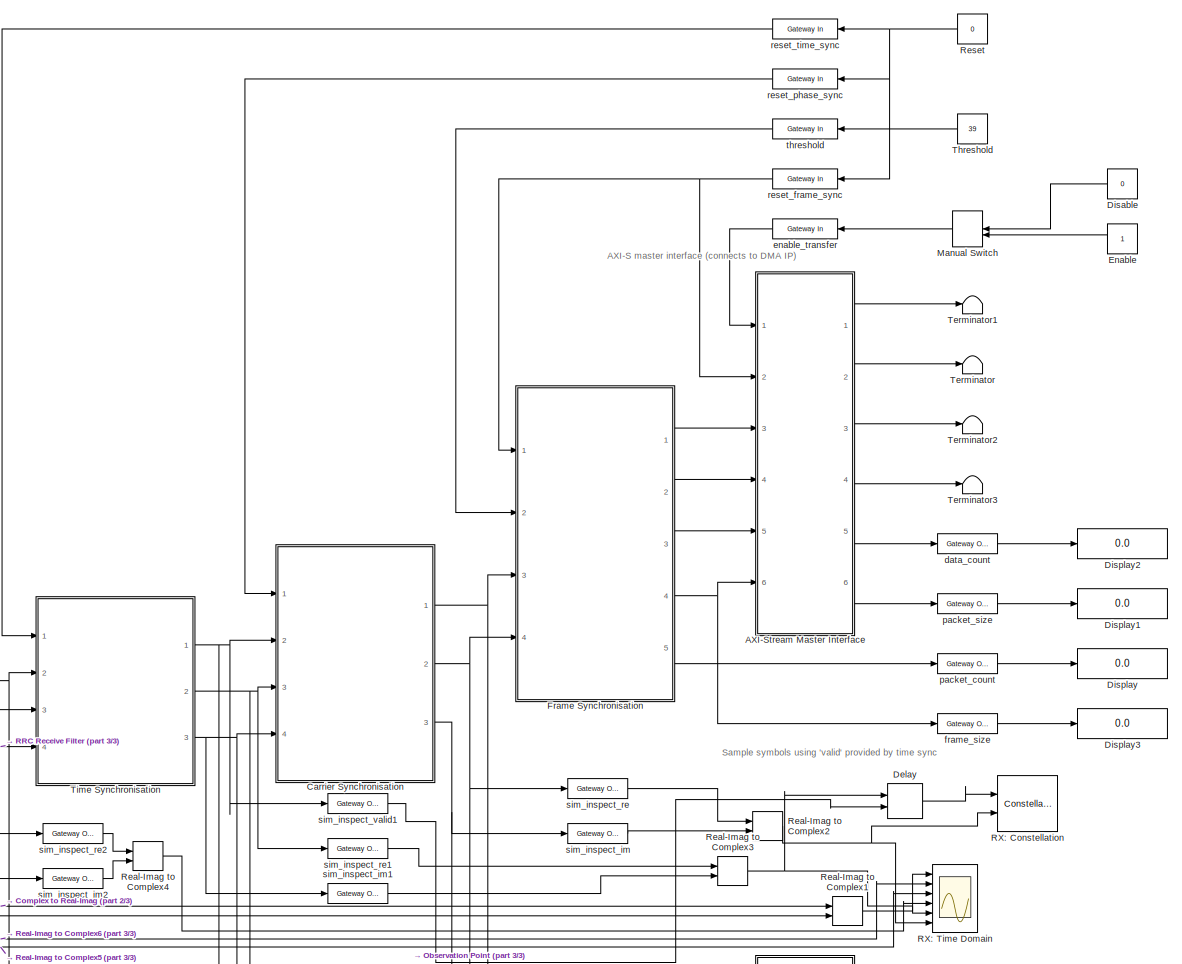
[diagram: Receiver - part 1/3, middle right region]
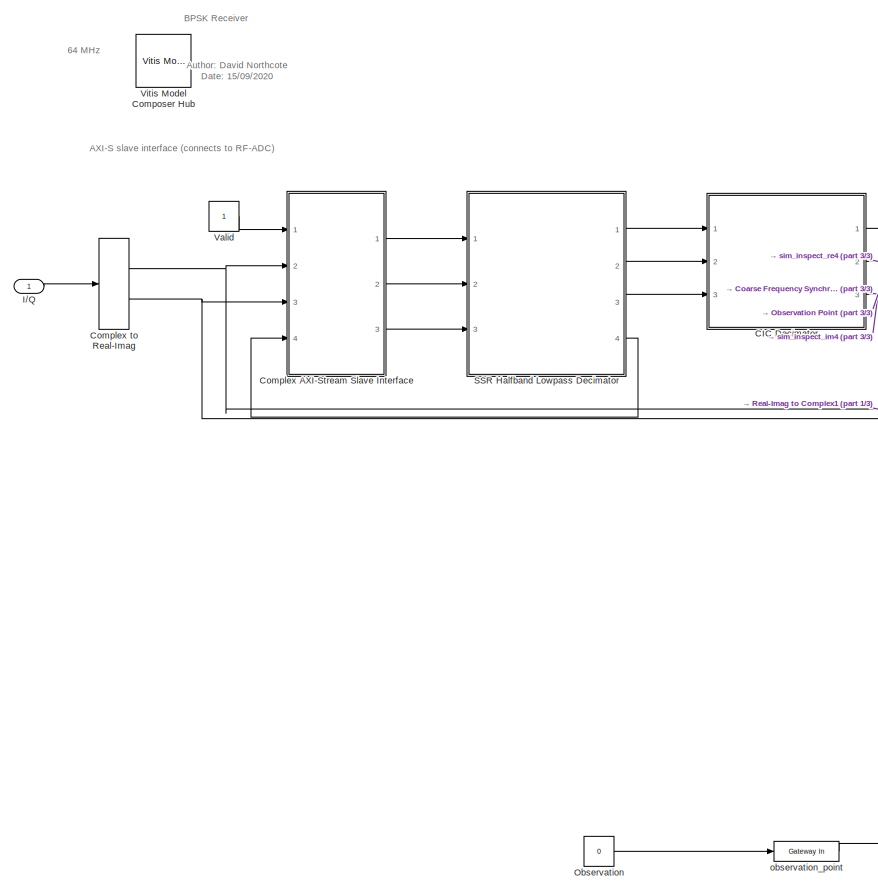
[diagram: Receiver - part 2/3, bottom left region]
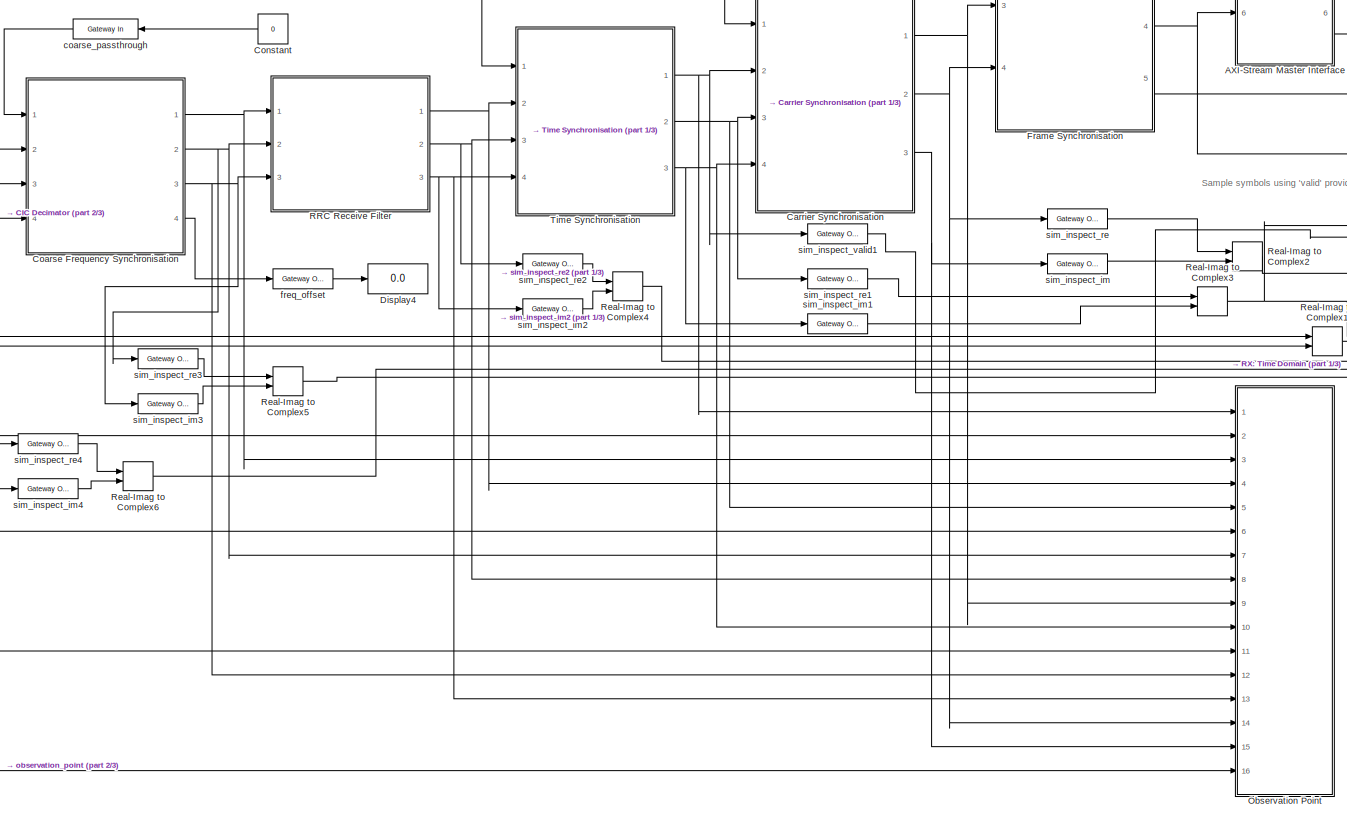
[diagram: Receiver - part 3/3, bottom center region]
BLOCK [SubSystem] Receiver
  Ports = [1]
  RequestExecContextInheritance = off
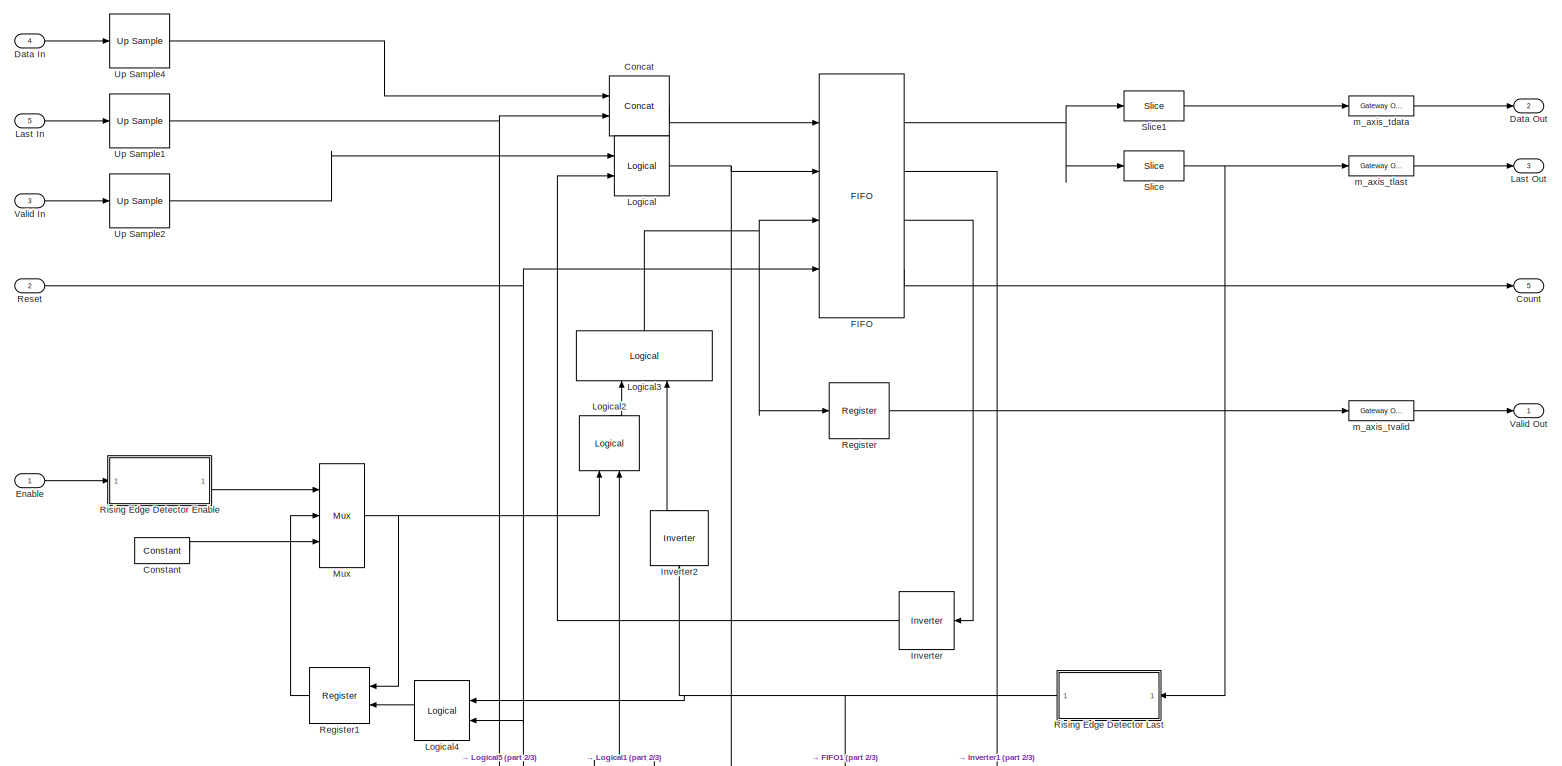
[diagram: Receiver/AXI-Stream Master Interface - part 1/3, full width, top band]
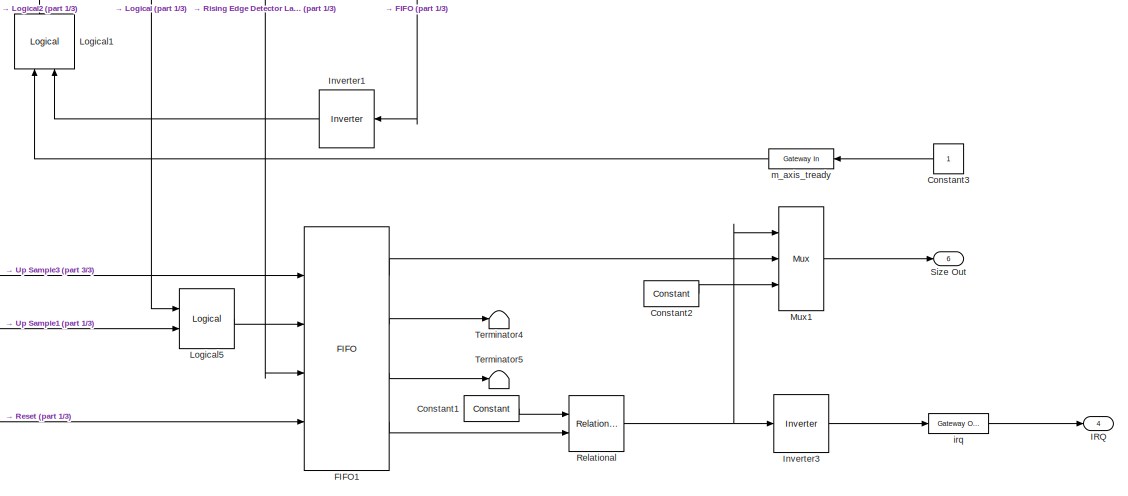
[diagram: Receiver/AXI-Stream Master Interface - part 2/3, bottom right region]
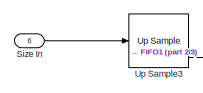
[diagram: Receiver/AXI-Stream Master Interface - part 3/3, bottom left region]
BLOCK [SubSystem] Receiver/AXI-Stream Master Interface
  Ports = [6, 6]
  RequestExecContextInheritance = off
BLOCK [Reference] Receiver/AXI-Stream Master Interface/Concat  REF=hdlBasic/Concat
  Ports = [2, 1]
  SourceBlock = hdlBasic/Concat
  SourceType = Bus Concatenator Block
BLOCK [Reference] Receiver/AXI-Stream Master Interface/Constant  REF=hdlBasic/Constant
  Ports = [0, 1]
  SourceBlock = hdlBasic/Constant
  SourceType = Constant Block Block
BLOCK [Reference] Receiver/AXI-Stream Master Interface/Constant1  REF=hdlBasic/Constant
  Ports = [0, 1]
  SourceBlock = hdlBasic/Constant
  SourceType = Constant Block Block
BLOCK [Reference] Receiver/AXI-Stream Master Interface/Constant2  REF=hdlBasic/Constant
  Ports = [0, 1]
  SourceBlock = hdlBasic/Constant
  SourceType = Constant Block Block
BLOCK [Constant] Receiver/AXI-Stream Master Interface/Constant3
  SampleTime = 1/64e6
BLOCK [Outport] Receiver/AXI-Stream Master Interface/Count
  Port = 5
  VectorParamsAs1DForOutWhenUnconnected = off
BLOCK [Inport] Receiver/AXI-Stream Master Interface/Data In
  Port = 4
BLOCK [Outport] Receiver/AXI-Stream Master Interface/Data Out
  Port = 2
  VectorParamsAs1DForOutWhenUnconnected = off
BLOCK [Inport] Receiver/AXI-Stream Master Interface/Enable
BLOCK [Reference] Receiver/AXI-Stream Master Interface/FIFO  REF=hdlBasic/FIFO
  Ports = [4, 4]
  SourceBlock = hdlBasic/FIFO
  SourceType = FIFO Block Block
BLOCK [Reference] Receiver/AXI-Stream Master Interface/FIFO1  REF=hdlBasic/FIFO
  Ports = [4, 4]
  SourceBlock = hdlBasic/FIFO
  SourceType = FIFO Block Block
BLOCK [Outport] Receiver/AXI-Stream Master Interface/IRQ
  Port = 4
  VectorParamsAs1DForOutWhenUnconnected = off
BLOCK [Reference] Receiver/AXI-Stream Master Interface/Inverter  REF=hdlBasic/Inverter
  Ports = [1, 1]
  SourceBlock = hdlBasic/Inverter
  SourceType = Inverter Block
BLOCK [Reference] Receiver/AXI-Stream Master Interface/Inverter1  REF=hdlBasic/Inverter
  Ports = [1, 1]
  SourceBlock = hdlBasic/Inverter
  SourceType = Inverter Block
BLOCK [Reference] Receiver/AXI-Stream Master Interface/Inverter2  REF=hdlBasic/Inverter
  NameLocation = left
  Ports = [1, 1]
  SourceBlock = hdlBasic/Inverter
  SourceType = Inverter Block
BLOCK [Reference] Receiver/AXI-Stream Master Interface/Inverter3  REF=hdlBasic/Inverter
  Ports = [1, 1]
  SourceBlock = hdlBasic/Inverter
  SourceType = Inverter Block
BLOCK [Inport] Receiver/AXI-Stream Master Interface/Last In
  Port = 5
BLOCK [Outport] Receiver/AXI-Stream Master Interface/Last Out
  Port = 3
  VectorParamsAs1DForOutWhenUnconnected = off
BLOCK [Reference] Receiver/AXI-Stream Master Interface/Logical  REF=hdlBasic/Logical
  Ports = [2, 1]
  SourceBlock = hdlBasic/Logical
  SourceType = Logical Block Block
BLOCK [Reference] Receiver/AXI-Stream Master Interface/Logical1  REF=hdlBasic/Logical
  NameLocation = right
  Ports = [2, 1]
  SourceBlock = hdlBasic/Logical
  SourceType = Logical Block Block
BLOCK [Reference] Receiver/AXI-Stream Master Interface/Logical2  REF=hdlBasic/Logical
  NameLocation = right
  Ports = [2, 1]
  SourceBlock = hdlBasic/Logical
  SourceType = Logical Block Block
BLOCK [Reference] Receiver/AXI-Stream Master Interface/Logical3  REF=hdlBasic/Logical
  NameLocation = right
  Ports = [2, 1]
  SourceBlock = hdlBasic/Logical
  SourceType = Logical Block Block
BLOCK [Reference] Receiver/AXI-Stream Master Interface/Logical4  REF=hdlBasic/Logical
  Ports = [2, 1]
  SourceBlock = hdlBasic/Logical
  SourceType = Logical Block Block
BLOCK [Reference] Receiver/AXI-Stream Master Interface/Logical5  REF=hdlBasic/Logical
  Ports = [2, 1]
  SourceBlock = hdlBasic/Logical
  SourceType = Logical Block Block
BLOCK [Reference] Receiver/AXI-Stream Master Interface/Mux  REF=hdlBasic/Mux
  Ports = [3, 1]
  SourceBlock = hdlBasic/Mux
  SourceType = Bus Multiplexer Block
BLOCK [Reference] Receiver/AXI-Stream Master Interface/Mux1  REF=hdlBasic/Mux
  Ports = [3, 1]
  SourceBlock = hdlBasic/Mux
  SourceType = Bus Multiplexer Block
BLOCK [Reference] Receiver/AXI-Stream Master Interface/Register  REF=hdlBasic/Register
  Ports = [1, 1]
  SourceBlock = hdlBasic/Register
  SourceType = Register Block
BLOCK [Reference] Receiver/AXI-Stream Master Interface/Register1  REF=hdlBasic/Register
  Ports = [2, 1]
  SourceBlock = hdlBasic/Register
  SourceType = Register Block
BLOCK [Reference] Receiver/AXI-Stream Master Interface/Relational  REF=hdlBasic/Relational
  Ports = [2, 1]
  SourceBlock = hdlBasic/Relational
  SourceType = Arithmetic Relational Operator Block
BLOCK [Inport] Receiver/AXI-Stream Master Interface/Reset
  Port = 2
BLOCK [SubSystem] Receiver/AXI-Stream Master Interface/Rising Edge Detector Enable
  Ports = [1, 1]
  RequestExecContextInheritance = off
BLOCK [Inport] Receiver/AXI-Stream Master Interface/Rising Edge Detector Enable/Input
BLOCK [Reference] Receiver/AXI-Stream Master Interface/Rising Edge Detector Enable/Inverter2  REF=hdlBasic/Inverter
  Ports = [1, 1]
  SourceBlock = hdlBasic/Inverter
  SourceType = Inverter Block
BLOCK [Reference] Receiver/AXI-Stream Master Interface/Rising Edge Detector Enable/Logical3  REF=hdlBasic/Logical
  Ports = [2, 1]
  SourceBlock = hdlBasic/Logical
  SourceType = Logical Block Block
BLOCK [Outport] Receiver/AXI-Stream Master Interface/Rising Edge Detector Enable/Output
  VectorParamsAs1DForOutWhenUnconnected = off
BLOCK [Reference] Receiver/AXI-Stream Master Interface/Rising Edge Detector Enable/Register1  REF=hdlBasic/Register
  Ports = [1, 1]
  SourceBlock = hdlBasic/Register
  SourceType = Register Block
BLOCK [SubSystem] Receiver/AXI-Stream Master Interface/Rising Edge Detector Last
  Ports = [1, 1]
  RequestExecContextInheritance = off
BLOCK [Inport] Receiver/AXI-Stream Master Interface/Rising Edge Detector Last/Input
BLOCK [Reference] Receiver/AXI-Stream Master Interface/Rising Edge Detector Last/Inverter2  REF=hdlBasic/Inverter
  Ports = [1, 1]
  SourceBlock = hdlBasic/Inverter
  SourceType = Inverter Block
BLOCK [Reference] Receiver/AXI-Stream Master Interface/Rising Edge Detector Last/Logical3  REF=hdlBasic/Logical
  Ports = [2, 1]
  SourceBlock = hdlBasic/Logical
  SourceType = Logical Block Block
BLOCK [Outport] Receiver/AXI-Stream Master Interface/Rising Edge Detector Last/Output
  VectorParamsAs1DForOutWhenUnconnected = off
BLOCK [Reference] Receiver/AXI-Stream Master Interface/Rising Edge Detector Last/Register1  REF=hdlBasic/Register
  Ports = [1, 1]
  SourceBlock = hdlBasic/Register
  SourceType = Register Block
BLOCK [Inport] Receiver/AXI-Stream Master Interface/Size In
  Port = 6
BLOCK [Outport] Receiver/AXI-Stream Master Interface/Size Out
  Port = 6
  VectorParamsAs1DForOutWhenUnconnected = off
BLOCK [Reference] Receiver/AXI-Stream Master Interface/Slice  REF=hdlBasic/Slice
  Ports = [1, 1]
  SourceBlock = hdlBasic/Slice
  SourceType = Bit Slice Extractor Block
BLOCK [Reference] Receiver/AXI-Stream Master Interface/Slice1  REF=hdlBasic/Slice
  Ports = [1, 1]
  SourceBlock = hdlBasic/Slice
  SourceType = Bit Slice Extractor Block
BLOCK [Terminator] Receiver/AXI-Stream Master Interface/Terminator4
BLOCK [Terminator] Receiver/AXI-Stream Master Interface/Terminator5
BLOCK [Reference] Receiver/AXI-Stream Master Interface/Up Sample1  REF=hdlBasic/Up Sample
  Ports = [1, 1]
  SourceBlock = hdlBasic/Up Sample
  SourceType = Up Sampler Block
BLOCK [Reference] Receiver/AXI-Stream Master Interface/Up Sample2  REF=hdlBasic/Up Sample
  Ports = [1, 1]
  SourceBlock = hdlBasic/Up Sample
  SourceType = Up Sampler Block
BLOCK [Reference] Receiver/AXI-Stream Master Interface/Up Sample3  REF=hdlBasic/Up Sample
  Ports = [1, 1]
  SourceBlock = hdlBasic/Up Sample
  SourceType = Up Sampler Block
BLOCK [Reference] Receiver/AXI-Stream Master Interface/Up Sample4  REF=hdlBasic/Up Sample
  Ports = [1, 1]
  SourceBlock = hdlBasic/Up Sample
  SourceType = Up Sampler Block
BLOCK [Inport] Receiver/AXI-Stream Master Interface/Valid In
  Port = 3
BLOCK [Outport] Receiver/AXI-Stream Master Interface/Valid Out
  VectorParamsAs1DForOutWhenUnconnected = off
BLOCK [Reference] Receiver/AXI-Stream Master Interface/irq  REF=hdlBasic/Gateway Out
  Ports = [1, 1]
  SourceBlock = hdlBasic/Gateway Out
  SourceType = Gateway Out Block
BLOCK [Reference] Receiver/AXI-Stream Master Interface/m_axis_tdata  REF=hdlBasic/Gateway Out
  Ports = [1, 1]
  SourceBlock = hdlBasic/Gateway Out
  SourceType = Gateway Out Block
BLOCK [Reference] Receiver/AXI-Stream Master Interface/m_axis_tlast  REF=hdlBasic/Gateway Out
  Ports = [1, 1]
  SourceBlock = hdlBasic/Gateway Out
  SourceType = Gateway Out Block
BLOCK [Reference] Receiver/AXI-Stream Master Interface/m_axis_tready  REF=hdlBasic/Gateway In
  Ports = [1, 1]
  SourceBlock = hdlBasic/Gateway In
  SourceType = Gateway In Block
BLOCK [Reference] Receiver/AXI-Stream Master Interface/m_axis_tvalid  REF=hdlBasic/Gateway Out
  Ports = [1, 1]
  SourceBlock = hdlBasic/Gateway Out
  SourceType = Gateway Out Block
BLOCK [SubSystem] Receiver/CIC Decimator
  Ports = [3, 3]
  RequestExecContextInheritance = off
BLOCK [Reference] Receiver/CIC Decimator/CIC Decimator Imag  REF=hdlDSPIP/CIC Compiler 4.0 
  Ports = [1, 3]
  SourceBlock = hdlDSPIP/CIC Compiler 4.0
  SourceType = CIC Compiler 4.0 Block
BLOCK [Reference] Receiver/CIC Decimator/CIC Decimator Real  REF=hdlDSPIP/CIC Compiler 4.0 
  Ports = [1, 3]
  SourceBlock = hdlDSPIP/CIC Compiler 4.0
  SourceType = CIC Compiler 4.0 Block
BLOCK [Reference] Receiver/CIC Decimator/CMult1  REF=hdlBasic/CMult
  Ports = [1, 1]
  SourceBlock = hdlBasic/CMult
  SourceType = Constant Multiplier Block
BLOCK [Reference] Receiver/CIC Decimator/CMult2  REF=hdlBasic/CMult
  Ports = [1, 1]
  SourceBlock = hdlBasic/CMult
  SourceType = Constant Multiplier Block
BLOCK [Inport] Receiver/CIC Decimator/Imag In
  Port = 3
BLOCK [Outport] Receiver/CIC Decimator/Imag Out
  Port = 3
  VectorParamsAs1DForOutWhenUnconnected = off
BLOCK [Inport] Receiver/CIC Decimator/Real In
  Port = 2
BLOCK [Outport] Receiver/CIC Decimator/Real Out
  Port = 2
  VectorParamsAs1DForOutWhenUnconnected = off
BLOCK [Reference] Receiver/CIC Decimator/Shift1  REF=hdlBasic/Shift
  Ports = [1, 1]
  SourceBlock = hdlBasic/Shift
  SourceType = Binary Shift Operator Block
BLOCK [Reference] Receiver/CIC Decimator/Shift2  REF=hdlBasic/Shift
  Ports = [1, 1]
  SourceBlock = hdlBasic/Shift
  SourceType = Binary Shift Operator Block
BLOCK [Terminator] Receiver/CIC Decimator/Terminator1
BLOCK [Terminator] Receiver/CIC Decimator/Terminator2
BLOCK [Terminator] Receiver/CIC Decimator/Terminator3
BLOCK [Terminator] Receiver/CIC Decimator/Terminator4
BLOCK [Inport] Receiver/CIC Decimator/Valid In
BLOCK [Outport] Receiver/CIC Decimator/Valid Out
  VectorParamsAs1DForOutWhenUnconnected = off
BLOCK [SubSystem] Receiver/Carrier Synchronisation
  Ports = [4, 3]
  RequestExecContextInheritance = off
BLOCK [Reference] Receiver/Carrier Synchronisation/Convert  REF=hdlBasic/Convert
  Ports = [1, 1]
  SourceBlock = hdlBasic/Convert
  SourceType = Type Converter Block
BLOCK [Reference] Receiver/Carrier Synchronisation/Convert1  REF=hdlBasic/Convert
  Ports = [1, 1]
  SourceBlock = hdlBasic/Convert
  SourceType = Type Converter Block
BLOCK [SubSystem] Receiver/Carrier Synchronisation/De-Rotate Constellation
  Ports = [6, 3]
  RequestExecContextInheritance = off
BLOCK [Reference] Receiver/Carrier Synchronisation/De-Rotate Constellation/Delay  REF=hdlBasic/Delay
  Ports = [1, 1]
  SourceBlock = hdlBasic/Delay
  SourceType = Delay Block
BLOCK [Inport] Receiver/Carrier Synchronisation/De-Rotate Constellation/Imag Error
  Port = 4
BLOCK [Inport] Receiver/Carrier Synchronisation/De-Rotate Constellation/Imag In
BLOCK [Outport] Receiver/Carrier Synchronisation/De-Rotate Constellation/Imag Out
  VectorParamsAs1DForOutWhenUnconnected = off
BLOCK [Reference] Receiver/Carrier Synchronisation/De-Rotate Constellation/Product  REF=hdlBasic/Product
  Ports = [4, 2]
  SourceBlock = hdlBasic/Product
  SourceType = Multiplier Block
BLOCK [Inport] Receiver/Carrier Synchronisation/De-Rotate Constellation/Real Error
  Port = 5
BLOCK [Inport] Receiver/Carrier Synchronisation/De-Rotate Constellation/Real In
  Port = 2
BLOCK [Outport] Receiver/Carrier Synchronisation/De-Rotate Constellation/Real Out
  Port = 2
  VectorParamsAs1DForOutWhenUnconnected = off
BLOCK [Reference] Receiver/Carrier Synchronisation/De-Rotate Constellation/Register  REF=hdlBasic/Register
  Ports = [2, 1]
  SourceBlock = hdlBasic/Register
  SourceType = Register Block
BLOCK [Reference] Receiver/Carrier Synchronisation/De-Rotate Constellation/Register1  REF=hdlBasic/Register
  Ports = [2, 1]
  SourceBlock = hdlBasic/Register
  SourceType = Register Block
BLOCK [Reference] Receiver/Carrier Synchronisation/De-Rotate Constellation/Register2  REF=hdlBasic/Register
  Ports = [2, 1]
  SourceBlock = hdlBasic/Register
  SourceType = Register Block
BLOCK [Reference] Receiver/Carrier Synchronisation/De-Rotate Constellation/Register3  REF=hdlBasic/Register
  Ports = [2, 1]
  SourceBlock = hdlBasic/Register
  SourceType = Register Block
BLOCK [Reference] Receiver/Carrier Synchronisation/De-Rotate Constellation/Register4  REF=hdlBasic/Register
  Ports = [1, 1]
  SourceBlock = hdlBasic/Register
  SourceType = Register Block
BLOCK [Reference] Receiver/Carrier Synchronisation/De-Rotate Constellation/Register5  REF=hdlBasic/Register
  Ports = [1, 1]
  SourceBlock = hdlBasic/Register
  SourceType = Register Block
BLOCK [Reference] Receiver/Carrier Synchronisation/De-Rotate Constellation/Register6  REF=hdlBasic/Register
  Ports = [1, 1]
  SourceBlock = hdlBasic/Register
  SourceType = Register Block
BLOCK [Reference] Receiver/Carrier Synchronisation/De-Rotate Constellation/Register7  REF=hdlBasic/Register
  Ports = [1, 1]
  SourceBlock = hdlBasic/Register
  SourceType = Register Block
BLOCK [Inport] Receiver/Carrier Synchronisation/De-Rotate Constellation/Valid Error
  Port = 6
BLOCK [Inport] Receiver/Carrier Synchronisation/De-Rotate Constellation/Valid In
  Port = 3
BLOCK [Outport] Receiver/Carrier Synchronisation/De-Rotate Constellation/Valid Out
  Port = 3
  VectorParamsAs1DForOutWhenUnconnected = off
BLOCK [SubSystem] Receiver/Carrier Synchronisation/Generate Angle Error
  Ports = [3, 2]
  RequestExecContextInheritance = off
BLOCK [Outport] Receiver/Carrier Synchronisation/Generate Angle Error/Angle
  VectorParamsAs1DForOutWhenUnconnected = off
BLOCK [SubSystem] Receiver/Carrier Synchronisation/Generate Angle Error/Circular CORDIC
  Ports = [2, 1]
  RequestExecContextInheritance = off
BLOCK [Outport] Receiver/Carrier Synchronisation/Generate Angle Error/Circular CORDIC/Angle
  VectorParamsAs1DForOutWhenUnconnected = off
BLOCK [Reference] Receiver/Carrier Synchronisation/Generate Angle Error/Circular CORDIC/Constant  REF=hdlBasic/Constant
  Ports = [0, 1]
  SourceBlock = hdlBasic/Constant
  SourceType = Constant Block Block
BLOCK [Reference] Receiver/Carrier Synchronisation/Generate Angle Error/Circular CORDIC/Delay  REF=hdlBasic/Delay
  Ports = [1, 1]
  SourceBlock = hdlBasic/Delay
  SourceType = Delay Block
BLOCK [Reference] Receiver/Carrier Synchronisation/Generate Angle Error/Circular CORDIC/Delay1  REF=hdlBasic/Delay
  Ports = [1, 1]
  SourceBlock = hdlBasic/Delay
  SourceType = Delay Block
BLOCK [Reference] Receiver/Carrier Synchronisation/Generate Angle Error/Circular CORDIC/Delay10  REF=hdlBasic/Delay
  Ports = [1, 1]
  SourceBlock = hdlBasic/Delay
  SourceType = Delay Block
BLOCK [Reference] Receiver/Carrier Synchronisation/Generate Angle Error/Circular CORDIC/Delay11  REF=hdlBasic/Delay
  Ports = [1, 1]
  SourceBlock = hdlBasic/Delay
  SourceType = Delay Block
BLOCK [Reference] Receiver/Carrier Synchronisation/Generate Angle Error/Circular CORDIC/Delay12  REF=hdlBasic/Delay
  Ports = [1, 1]
  SourceBlock = hdlBasic/Delay
  SourceType = Delay Block
BLOCK [Reference] Receiver/Carrier Synchronisation/Generate Angle Error/Circular CORDIC/Delay13  REF=hdlBasic/Delay
  Ports = [1, 1]
  SourceBlock = hdlBasic/Delay
  SourceType = Delay Block
BLOCK [Reference] Receiver/Carrier Synchronisation/Generate Angle Error/Circular CORDIC/Delay14  REF=hdlBasic/Delay
  Ports = [1, 1]
  SourceBlock = hdlBasic/Delay
  SourceType = Delay Block
BLOCK [Reference] Receiver/Carrier Synchronisation/Generate Angle Error/Circular CORDIC/Delay15  REF=hdlBasic/Delay
  Ports = [1, 1]
  SourceBlock = hdlBasic/Delay
  SourceType = Delay Block
BLOCK [Reference] Receiver/Carrier Synchronisation/Generate Angle Error/Circular CORDIC/Delay16  REF=hdlBasic/Delay
  Ports = [1, 1]
  SourceBlock = hdlBasic/Delay
  SourceType = Delay Block
BLOCK [Reference] Receiver/Carrier Synchronisation/Generate Angle Error/Circular CORDIC/Delay17  REF=hdlBasic/Delay
  Ports = [1, 1]
  SourceBlock = hdlBasic/Delay
  SourceType = Delay Block
BLOCK [Reference] Receiver/Carrier Synchronisation/Generate Angle Error/Circular CORDIC/Delay18  REF=hdlBasic/Delay
  Ports = [1, 1]
  SourceBlock = hdlBasic/Delay
  SourceType = Delay Block
BLOCK [Reference] Receiver/Carrier Synchronisation/Generate Angle Error/Circular CORDIC/Delay19  REF=hdlBasic/Delay
  Ports = [1, 1]
  SourceBlock = hdlBasic/Delay
  SourceType = Delay Block
BLOCK [Reference] Receiver/Carrier Synchronisation/Generate Angle Error/Circular CORDIC/Delay2  REF=hdlBasic/Delay
  Ports = [1, 1]
  SourceBlock = hdlBasic/Delay
  SourceType = Delay Block
BLOCK [Reference] Receiver/Carrier Synchronisation/Generate Angle Error/Circular CORDIC/Delay20  REF=hdlBasic/Delay
  Ports = [1, 1]
  SourceBlock = hdlBasic/Delay
  SourceType = Delay Block
BLOCK [Reference] Receiver/Carrier Synchronisation/Generate Angle Error/Circular CORDIC/Delay23  REF=hdlBasic/Delay
  Ports = [1, 1]
  SourceBlock = hdlBasic/Delay
  SourceType = Delay Block
BLOCK [Reference] Receiver/Carrier Synchronisation/Generate Angle Error/Circular CORDIC/Delay3  REF=hdlBasic/Delay
  Ports = [1, 1]
  SourceBlock = hdlBasic/Delay
  SourceType = Delay Block
BLOCK [Reference] Receiver/Carrier Synchronisation/Generate Angle Error/Circular CORDIC/Delay4  REF=hdlBasic/Delay
  Ports = [1, 1]
  SourceBlock = hdlBasic/Delay
  SourceType = Delay Block
BLOCK [Reference] Receiver/Carrier Synchronisation/Generate Angle Error/Circular CORDIC/Delay5  REF=hdlBasic/Delay
  Ports = [1, 1]
  SourceBlock = hdlBasic/Delay
  SourceType = Delay Block
BLOCK [Reference] Receiver/Carrier Synchronisation/Generate Angle Error/Circular CORDIC/Delay6  REF=hdlBasic/Delay
  Ports = [1, 1]
  SourceBlock = hdlBasic/Delay
  SourceType = Delay Block
BLOCK [Reference] Receiver/Carrier Synchronisation/Generate Angle Error/Circular CORDIC/Delay7  REF=hdlBasic/Delay
  Ports = [1, 1]
  SourceBlock = hdlBasic/Delay
  SourceType = Delay Block
BLOCK [Reference] Receiver/Carrier Synchronisation/Generate Angle Error/Circular CORDIC/Delay8  REF=hdlBasic/Delay
  Ports = [1, 1]
  SourceBlock = hdlBasic/Delay
  SourceType = Delay Block
BLOCK [Reference] Receiver/Carrier Synchronisation/Generate Angle Error/Circular CORDIC/Delay9  REF=hdlBasic/Delay
  Ports = [1, 1]
  SourceBlock = hdlBasic/Delay
  SourceType = Delay Block
BLOCK [Inport] Receiver/Carrier Synchronisation/Generate Angle Error/Circular CORDIC/Imag In
BLOCK [Inport] Receiver/Carrier Synchronisation/Generate Angle Error/Circular CORDIC/Real In
  Port = 2
BLOCK [Terminator] Receiver/Carrier Synchronisation/Generate Angle Error/Circular CORDIC/Terminator
BLOCK [Terminator] Receiver/Carrier Synchronisation/Generate Angle Error/Circular CORDIC/Terminator1
BLOCK [SubSystem] Receiver/Carrier Synchronisation/Generate Angle Error/Circular CORDIC/Vectoring Cell 0
  Ports = [3, 3]
  RequestExecContextInheritance = off
BLOCK [Reference] Receiver/Carrier Synchronisation/Generate Angle Error/Circular CORDIC/Vectoring Cell 0/AddSub1  REF=hdlBasic/AddSub
  Ports = [3, 1]
  SourceBlock = hdlBasic/AddSub
  SourceType = Adder/Subtracter Block
BLOCK [Reference] Receiver/Carrier Synchronisation/Generate Angle Error/Circular CORDIC/Vectoring Cell 0/AddSub2  REF=hdlBasic/AddSub
  Ports = [3, 1]
  SourceBlock = hdlBasic/AddSub
  SourceType = Adder/Subtracter Block
BLOCK [Reference] Receiver/Carrier Synchronisation/Generate Angle Error/Circular CORDIC/Vectoring Cell 0/AddSub3  REF=hdlBasic/AddSub
  Ports = [3, 1]
  SourceBlock = hdlBasic/AddSub
  SourceType = Adder/Subtracter Block
BLOCK [Reference] Receiver/Carrier Synchronisation/Generate Angle Error/Circular CORDIC/Vectoring Cell 0/Constant  REF=hdlBasic/Constant
  Ports = [0, 1]
  SourceBlock = hdlBasic/Constant
  SourceType = Constant Block Block
BLOCK [Reference] Receiver/Carrier Synchronisation/Generate Angle Error/Circular CORDIC/Vectoring Cell 0/Inverter  REF=hdlBasic/Inverter
  Ports = [1, 1]
  SourceBlock = hdlBasic/Inverter
  SourceType = Inverter Block
BLOCK [Reference] Receiver/Carrier Synchronisation/Generate Angle Error/Circular CORDIC/Vectoring Cell 0/Logical  REF=hdlBasic/Logical
  Ports = [2, 1]
  SourceBlock = hdlBasic/Logical
  SourceType = Logical Block Block
BLOCK [Reference] Receiver/Carrier Synchronisation/Generate Angle Error/Circular CORDIC/Vectoring Cell 0/Shift  REF=hdlBasic/Shift
  Ports = [1, 1]
  SourceBlock = hdlBasic/Shift
  SourceType = Binary Shift Operator Block
BLOCK [Reference] Receiver/Carrier Synchronisation/Generate Angle Error/Circular CORDIC/Vectoring Cell 0/Shift1  REF=hdlBasic/Shift
  Ports = [1, 1]
  SourceBlock = hdlBasic/Shift
  SourceType = Binary Shift Operator Block
BLOCK [Reference] Receiver/Carrier Synchronisation/Generate Angle Error/Circular CORDIC/Vectoring Cell 0/Slice  REF=hdlBasic/Slice
  Ports = [1, 1]
  SourceBlock = hdlBasic/Slice
  SourceType = Bit Slice Extractor Block
BLOCK [Reference] Receiver/Carrier Synchronisation/Generate Angle Error/Circular CORDIC/Vectoring Cell 0/Slice1  REF=hdlBasic/Slice
  Ports = [1, 1]
  SourceBlock = hdlBasic/Slice
  SourceType = Bit Slice Extractor Block
BLOCK [Inport] Receiver/Carrier Synchronisation/Generate Angle Error/Circular CORDIC/Vectoring Cell 0/x in
BLOCK [Outport] Receiver/Carrier Synchronisation/Generate Angle Error/Circular CORDIC/Vectoring Cell 0/x out
  VectorParamsAs1DForOutWhenUnconnected = off
BLOCK [Inport] Receiver/Carrier Synchronisation/Generate Angle Error/Circular CORDIC/Vectoring Cell 0/y in
  Port = 2
BLOCK [Outport] Receiver/Carrier Synchronisation/Generate Angle Error/Circular CORDIC/Vectoring Cell 0/y out
  Port = 2
  VectorParamsAs1DForOutWhenUnconnected = off
BLOCK [Inport] Receiver/Carrier Synchronisation/Generate Angle Error/Circular CORDIC/Vectoring Cell 0/z in
  Port = 3
BLOCK [Outport] Receiver/Carrier Synchronisation/Generate Angle Error/Circular CORDIC/Vectoring Cell 0/z out
  Port = 3
  VectorParamsAs1DForOutWhenUnconnected = off
BLOCK [SubSystem] Receiver/Carrier Synchronisation/Generate Angle Error/Circular CORDIC/Vectoring Cell 1
  Ports = [3, 3]
  RequestExecContextInheritance = off
BLOCK [Reference] Receiver/Carrier Synchronisation/Generate Angle Error/Circular CORDIC/Vectoring Cell 1/AddSub1  REF=hdlBasic/AddSub
  Ports = [3, 1]
  SourceBlock = hdlBasic/AddSub
  SourceType = Adder/Subtracter Block
BLOCK [Reference] Receiver/Carrier Synchronisation/Generate Angle Error/Circular CORDIC/Vectoring Cell 1/AddSub2  REF=hdlBasic/AddSub
  Ports = [3, 1]
  SourceBlock = hdlBasic/AddSub
  SourceType = Adder/Subtracter Block
BLOCK [Reference] Receiver/Carrier Synchronisation/Generate Angle Error/Circular CORDIC/Vectoring Cell 1/AddSub3  REF=hdlBasic/AddSub
  Ports = [3, 1]
  SourceBlock = hdlBasic/AddSub
  SourceType = Adder/Subtracter Block
BLOCK [Reference] Receiver/Carrier Synchronisation/Generate Angle Error/Circular CORDIC/Vectoring Cell 1/Constant  REF=hdlBasic/Constant
  Ports = [0, 1]
  SourceBlock = hdlBasic/Constant
  SourceType = Constant Block Block
BLOCK [Reference] Receiver/Carrier Synchronisation/Generate Angle Error/Circular CORDIC/Vectoring Cell 1/Inverter  REF=hdlBasic/Inverter
  Ports = [1, 1]
  SourceBlock = hdlBasic/Inverter
  SourceType = Inverter Block
BLOCK [Reference] Receiver/Carrier Synchronisation/Generate Angle Error/Circular CORDIC/Vectoring Cell 1/Logical  REF=hdlBasic/Logical
  Ports = [2, 1]
  SourceBlock = hdlBasic/Logical
  SourceType = Logical Block Block
BLOCK [Reference] Receiver/Carrier Synchronisation/Generate Angle Error/Circular CORDIC/Vectoring Cell 1/Shift  REF=hdlBasic/Shift
  Ports = [1, 1]
  SourceBlock = hdlBasic/Shift
  SourceType = Binary Shift Operator Block
BLOCK [Reference] Receiver/Carrier Synchronisation/Generate Angle Error/Circular CORDIC/Vectoring Cell 1/Shift1  REF=hdlBasic/Shift
  Ports = [1, 1]
  SourceBlock = hdlBasic/Shift
  SourceType = Binary Shift Operator Block
BLOCK [Reference] Receiver/Carrier Synchronisation/Generate Angle Error/Circular CORDIC/Vectoring Cell 1/Slice  REF=hdlBasic/Slice
  Ports = [1, 1]
  SourceBlock = hdlBasic/Slice
  SourceType = Bit Slice Extractor Block
BLOCK [Reference] Receiver/Carrier Synchronisation/Generate Angle Error/Circular CORDIC/Vectoring Cell 1/Slice1  REF=hdlBasic/Slice
  Ports = [1, 1]
  SourceBlock = hdlBasic/Slice
  SourceType = Bit Slice Extractor Block
BLOCK [Inport] Receiver/Carrier Synchronisation/Generate Angle Error/Circular CORDIC/Vectoring Cell 1/x in
BLOCK [Outport] Receiver/Carrier Synchronisation/Generate Angle Error/Circular CORDIC/Vectoring Cell 1/x out
  VectorParamsAs1DForOutWhenUnconnected = off
BLOCK [Inport] Receiver/Carrier Synchronisation/Generate Angle Error/Circular CORDIC/Vectoring Cell 1/y in
  Port = 2
BLOCK [Outport] Receiver/Carrier Synchronisation/Generate Angle Error/Circular CORDIC/Vectoring Cell 1/y out
  Port = 2
  VectorParamsAs1DForOutWhenUnconnected = off
BLOCK [Inport] Receiver/Carrier Synchronisation/Generate Angle Error/Circular CORDIC/Vectoring Cell 1/z in
  Port = 3
BLOCK [Outport] Receiver/Carrier Synchronisation/Generate Angle Error/Circular CORDIC/Vectoring Cell 1/z out
  Port = 3
  VectorParamsAs1DForOutWhenUnconnected = off
BLOCK [SubSystem] Receiver/Carrier Synchronisation/Generate Angle Error/Circular CORDIC/Vectoring Cell 2
  Ports = [3, 3]
  RequestExecContextInheritance = off
BLOCK [Reference] Receiver/Carrier Synchronisation/Generate Angle Error/Circular CORDIC/Vectoring Cell 2/AddSub1  REF=hdlBasic/AddSub
  Ports = [3, 1]
  SourceBlock = hdlBasic/AddSub
  SourceType = Adder/Subtracter Block
BLOCK [Reference] Receiver/Carrier Synchronisation/Generate Angle Error/Circular CORDIC/Vectoring Cell 2/AddSub2  REF=hdlBasic/AddSub
  Ports = [3, 1]
  SourceBlock = hdlBasic/AddSub
  SourceType = Adder/Subtracter Block
BLOCK [Reference] Receiver/Carrier Synchronisation/Generate Angle Error/Circular CORDIC/Vectoring Cell 2/AddSub3  REF=hdlBasic/AddSub
  Ports = [3, 1]
  SourceBlock = hdlBasic/AddSub
  SourceType = Adder/Subtracter Block
BLOCK [Reference] Receiver/Carrier Synchronisation/Generate Angle Error/Circular CORDIC/Vectoring Cell 2/Constant  REF=hdlBasic/Constant
  Ports = [0, 1]
  SourceBlock = hdlBasic/Constant
  SourceType = Constant Block Block
BLOCK [Reference] Receiver/Carrier Synchronisation/Generate Angle Error/Circular CORDIC/Vectoring Cell 2/Inverter  REF=hdlBasic/Inverter
  Ports = [1, 1]
  SourceBlock = hdlBasic/Inverter
  SourceType = Inverter Block
BLOCK [Reference] Receiver/Carrier Synchronisation/Generate Angle Error/Circular CORDIC/Vectoring Cell 2/Logical  REF=hdlBasic/Logical
  Ports = [2, 1]
  SourceBlock = hdlBasic/Logical
  SourceType = Logical Block Block
BLOCK [Reference] Receiver/Carrier Synchronisation/Generate Angle Error/Circular CORDIC/Vectoring Cell 2/Shift  REF=hdlBasic/Shift
  Ports = [1, 1]
  SourceBlock = hdlBasic/Shift
  SourceType = Binary Shift Operator Block
BLOCK [Reference] Receiver/Carrier Synchronisation/Generate Angle Error/Circular CORDIC/Vectoring Cell 2/Shift1  REF=hdlBasic/Shift
  Ports = [1, 1]
  SourceBlock = hdlBasic/Shift
  SourceType = Binary Shift Operator Block
BLOCK [Reference] Receiver/Carrier Synchronisation/Generate Angle Error/Circular CORDIC/Vectoring Cell 2/Slice  REF=hdlBasic/Slice
  Ports = [1, 1]
  SourceBlock = hdlBasic/Slice
  SourceType = Bit Slice Extractor Block
BLOCK [Reference] Receiver/Carrier Synchronisation/Generate Angle Error/Circular CORDIC/Vectoring Cell 2/Slice1  REF=hdlBasic/Slice
  Ports = [1, 1]
  SourceBlock = hdlBasic/Slice
  SourceType = Bit Slice Extractor Block
BLOCK [Inport] Receiver/Carrier Synchronisation/Generate Angle Error/Circular CORDIC/Vectoring Cell 2/x in
BLOCK [Outport] Receiver/Carrier Synchronisation/Generate Angle Error/Circular CORDIC/Vectoring Cell 2/x out
  VectorParamsAs1DForOutWhenUnconnected = off
BLOCK [Inport] Receiver/Carrier Synchronisation/Generate Angle Error/Circular CORDIC/Vectoring Cell 2/y in
  Port = 2
BLOCK [Outport] Receiver/Carrier Synchronisation/Generate Angle Error/Circular CORDIC/Vectoring Cell 2/y out
  Port = 2
  VectorParamsAs1DForOutWhenUnconnected = off
BLOCK [Inport] Receiver/Carrier Synchronisation/Generate Angle Error/Circular CORDIC/Vectoring Cell 2/z in
  Port = 3
BLOCK [Outport] Receiver/Carrier Synchronisation/Generate Angle Error/Circular CORDIC/Vectoring Cell 2/z out
  Port = 3
  VectorParamsAs1DForOutWhenUnconnected = off
BLOCK [SubSystem] Receiver/Carrier Synchronisation/Generate Angle Error/Circular CORDIC/Vectoring Cell 3
  Ports = [3, 3]
  RequestExecContextInheritance = off
BLOCK [Reference] Receiver/Carrier Synchronisation/Generate Angle Error/Circular CORDIC/Vectoring Cell 3/AddSub1  REF=hdlBasic/AddSub
  Ports = [3, 1]
  SourceBlock = hdlBasic/AddSub
  SourceType = Adder/Subtracter Block
BLOCK [Reference] Receiver/Carrier Synchronisation/Generate Angle Error/Circular CORDIC/Vectoring Cell 3/AddSub2  REF=hdlBasic/AddSub
  Ports = [3, 1]
  SourceBlock = hdlBasic/AddSub
  SourceType = Adder/Subtracter Block
BLOCK [Reference] Receiver/Carrier Synchronisation/Generate Angle Error/Circular CORDIC/Vectoring Cell 3/AddSub3  REF=hdlBasic/AddSub
  Ports = [3, 1]
  SourceBlock = hdlBasic/AddSub
  SourceType = Adder/Subtracter Block
BLOCK [Reference] Receiver/Carrier Synchronisation/Generate Angle Error/Circular CORDIC/Vectoring Cell 3/Constant  REF=hdlBasic/Constant
  Ports = [0, 1]
  SourceBlock = hdlBasic/Constant
  SourceType = Constant Block Block
BLOCK [Reference] Receiver/Carrier Synchronisation/Generate Angle Error/Circular CORDIC/Vectoring Cell 3/Inverter  REF=hdlBasic/Inverter
  Ports = [1, 1]
  SourceBlock = hdlBasic/Inverter
  SourceType = Inverter Block
BLOCK [Reference] Receiver/Carrier Synchronisation/Generate Angle Error/Circular CORDIC/Vectoring Cell 3/Logical  REF=hdlBasic/Logical
  Ports = [2, 1]
  SourceBlock = hdlBasic/Logical
  SourceType = Logical Block Block
BLOCK [Reference] Receiver/Carrier Synchronisation/Generate Angle Error/Circular CORDIC/Vectoring Cell 3/Shift  REF=hdlBasic/Shift
  Ports = [1, 1]
  SourceBlock = hdlBasic/Shift
  SourceType = Binary Shift Operator Block
BLOCK [Reference] Receiver/Carrier Synchronisation/Generate Angle Error/Circular CORDIC/Vectoring Cell 3/Shift1  REF=hdlBasic/Shift
  Ports = [1, 1]
  SourceBlock = hdlBasic/Shift
  SourceType = Binary Shift Operator Block
BLOCK [Reference] Receiver/Carrier Synchronisation/Generate Angle Error/Circular CORDIC/Vectoring Cell 3/Slice  REF=hdlBasic/Slice
  Ports = [1, 1]
  SourceBlock = hdlBasic/Slice
  SourceType = Bit Slice Extractor Block
BLOCK [Reference] Receiver/Carrier Synchronisation/Generate Angle Error/Circular CORDIC/Vectoring Cell 3/Slice1  REF=hdlBasic/Slice
  Ports = [1, 1]
  SourceBlock = hdlBasic/Slice
  SourceType = Bit Slice Extractor Block
BLOCK [Inport] Receiver/Carrier Synchronisation/Generate Angle Error/Circular CORDIC/Vectoring Cell 3/x in
BLOCK [Outport] Receiver/Carrier Synchronisation/Generate Angle Error/Circular CORDIC/Vectoring Cell 3/x out
  VectorParamsAs1DForOutWhenUnconnected = off
BLOCK [Inport] Receiver/Carrier Synchronisation/Generate Angle Error/Circular CORDIC/Vectoring Cell 3/y in
  Port = 2
BLOCK [Outport] Receiver/Carrier Synchronisation/Generate Angle Error/Circular CORDIC/Vectoring Cell 3/y out
  Port = 2
  VectorParamsAs1DForOutWhenUnconnected = off
BLOCK [Inport] Receiver/Carrier Synchronisation/Generate Angle Error/Circular CORDIC/Vectoring Cell 3/z in
  Port = 3
BLOCK [Outport] Receiver/Carrier Synchronisation/Generate Angle Error/Circular CORDIC/Vectoring Cell 3/z out
  Port = 3
  VectorParamsAs1DForOutWhenUnconnected = off
BLOCK [SubSystem] Receiver/Carrier Synchronisation/Generate Angle Error/Circular CORDIC/Vectoring Cell 4
  Ports = [3, 3]
  RequestExecContextInheritance = off
BLOCK [Reference] Receiver/Carrier Synchronisation/Generate Angle Error/Circular CORDIC/Vectoring Cell 4/AddSub1  REF=hdlBasic/AddSub
  Ports = [3, 1]
  SourceBlock = hdlBasic/AddSub
  SourceType = Adder/Subtracter Block
BLOCK [Reference] Receiver/Carrier Synchronisation/Generate Angle Error/Circular CORDIC/Vectoring Cell 4/AddSub2  REF=hdlBasic/AddSub
  Ports = [3, 1]
  SourceBlock = hdlBasic/AddSub
  SourceType = Adder/Subtracter Block
BLOCK [Reference] Receiver/Carrier Synchronisation/Generate Angle Error/Circular CORDIC/Vectoring Cell 4/AddSub3  REF=hdlBasic/AddSub
  Ports = [3, 1]
  SourceBlock = hdlBasic/AddSub
  SourceType = Adder/Subtracter Block
BLOCK [Reference] Receiver/Carrier Synchronisation/Generate Angle Error/Circular CORDIC/Vectoring Cell 4/Constant  REF=hdlBasic/Constant
  Ports = [0, 1]
  SourceBlock = hdlBasic/Constant
  SourceType = Constant Block Block
BLOCK [Reference] Receiver/Carrier Synchronisation/Generate Angle Error/Circular CORDIC/Vectoring Cell 4/Inverter  REF=hdlBasic/Inverter
  Ports = [1, 1]
  SourceBlock = hdlBasic/Inverter
  SourceType = Inverter Block
BLOCK [Reference] Receiver/Carrier Synchronisation/Generate Angle Error/Circular CORDIC/Vectoring Cell 4/Logical  REF=hdlBasic/Logical
  Ports = [2, 1]
  SourceBlock = hdlBasic/Logical
  SourceType = Logical Block Block
BLOCK [Reference] Receiver/Carrier Synchronisation/Generate Angle Error/Circular CORDIC/Vectoring Cell 4/Shift  REF=hdlBasic/Shift
  Ports = [1, 1]
  SourceBlock = hdlBasic/Shift
  SourceType = Binary Shift Operator Block
BLOCK [Reference] Receiver/Carrier Synchronisation/Generate Angle Error/Circular CORDIC/Vectoring Cell 4/Shift1  REF=hdlBasic/Shift
  Ports = [1, 1]
  SourceBlock = hdlBasic/Shift
  SourceType = Binary Shift Operator Block
BLOCK [Reference] Receiver/Carrier Synchronisation/Generate Angle Error/Circular CORDIC/Vectoring Cell 4/Slice  REF=hdlBasic/Slice
  Ports = [1, 1]
  SourceBlock = hdlBasic/Slice
  SourceType = Bit Slice Extractor Block
BLOCK [Reference] Receiver/Carrier Synchronisation/Generate Angle Error/Circular CORDIC/Vectoring Cell 4/Slice1  REF=hdlBasic/Slice
  Ports = [1, 1]
  SourceBlock = hdlBasic/Slice
  SourceType = Bit Slice Extractor Block
BLOCK [Inport] Receiver/Carrier Synchronisation/Generate Angle Error/Circular CORDIC/Vectoring Cell 4/x in
BLOCK [Outport] Receiver/Carrier Synchronisation/Generate Angle Error/Circular CORDIC/Vectoring Cell 4/x out
  VectorParamsAs1DForOutWhenUnconnected = off
BLOCK [Inport] Receiver/Carrier Synchronisation/Generate Angle Error/Circular CORDIC/Vectoring Cell 4/y in
  Port = 2
BLOCK [Outport] Receiver/Carrier Synchronisation/Generate Angle Error/Circular CORDIC/Vectoring Cell 4/y out
  Port = 2
  VectorParamsAs1DForOutWhenUnconnected = off
BLOCK [Inport] Receiver/Carrier Synchronisation/Generate Angle Error/Circular CORDIC/Vectoring Cell 4/z in
  Port = 3
BLOCK [Outport] Receiver/Carrier Synchronisation/Generate Angle Error/Circular CORDIC/Vectoring Cell 4/z out
  Port = 3
  VectorParamsAs1DForOutWhenUnconnected = off
BLOCK [SubSystem] Receiver/Carrier Synchronisation/Generate Angle Error/Circular CORDIC/Vectoring Cell 5
  Ports = [3, 3]
  RequestExecContextInheritance = off
BLOCK [Reference] Receiver/Carrier Synchronisation/Generate Angle Error/Circular CORDIC/Vectoring Cell 5/AddSub1  REF=hdlBasic/AddSub
  Ports = [3, 1]
  SourceBlock = hdlBasic/AddSub
  SourceType = Adder/Subtracter Block
BLOCK [Reference] Receiver/Carrier Synchronisation/Generate Angle Error/Circular CORDIC/Vectoring Cell 5/AddSub2  REF=hdlBasic/AddSub
  Ports = [3, 1]
  SourceBlock = hdlBasic/AddSub
  SourceType = Adder/Subtracter Block
BLOCK [Reference] Receiver/Carrier Synchronisation/Generate Angle Error/Circular CORDIC/Vectoring Cell 5/AddSub3  REF=hdlBasic/AddSub
  Ports = [3, 1]
  SourceBlock = hdlBasic/AddSub
  SourceType = Adder/Subtracter Block
BLOCK [Reference] Receiver/Carrier Synchronisation/Generate Angle Error/Circular CORDIC/Vectoring Cell 5/Constant  REF=hdlBasic/Constant
  Ports = [0, 1]
  SourceBlock = hdlBasic/Constant
  SourceType = Constant Block Block
BLOCK [Reference] Receiver/Carrier Synchronisation/Generate Angle Error/Circular CORDIC/Vectoring Cell 5/Inverter  REF=hdlBasic/Inverter
  Ports = [1, 1]
  SourceBlock = hdlBasic/Inverter
  SourceType = Inverter Block
BLOCK [Reference] Receiver/Carrier Synchronisation/Generate Angle Error/Circular CORDIC/Vectoring Cell 5/Logical  REF=hdlBasic/Logical
  Ports = [2, 1]
  SourceBlock = hdlBasic/Logical
  SourceType = Logical Block Block
BLOCK [Reference] Receiver/Carrier Synchronisation/Generate Angle Error/Circular CORDIC/Vectoring Cell 5/Shift  REF=hdlBasic/Shift
  Ports = [1, 1]
  SourceBlock = hdlBasic/Shift
  SourceType = Binary Shift Operator Block
BLOCK [Reference] Receiver/Carrier Synchronisation/Generate Angle Error/Circular CORDIC/Vectoring Cell 5/Shift1  REF=hdlBasic/Shift
  Ports = [1, 1]
  SourceBlock = hdlBasic/Shift
  SourceType = Binary Shift Operator Block
BLOCK [Reference] Receiver/Carrier Synchronisation/Generate Angle Error/Circular CORDIC/Vectoring Cell 5/Slice  REF=hdlBasic/Slice
  Ports = [1, 1]
  SourceBlock = hdlBasic/Slice
  SourceType = Bit Slice Extractor Block
BLOCK [Reference] Receiver/Carrier Synchronisation/Generate Angle Error/Circular CORDIC/Vectoring Cell 5/Slice1  REF=hdlBasic/Slice
  Ports = [1, 1]
  SourceBlock = hdlBasic/Slice
  SourceType = Bit Slice Extractor Block
BLOCK [Inport] Receiver/Carrier Synchronisation/Generate Angle Error/Circular CORDIC/Vectoring Cell 5/x in
BLOCK [Outport] Receiver/Carrier Synchronisation/Generate Angle Error/Circular CORDIC/Vectoring Cell 5/x out
  VectorParamsAs1DForOutWhenUnconnected = off
BLOCK [Inport] Receiver/Carrier Synchronisation/Generate Angle Error/Circular CORDIC/Vectoring Cell 5/y in
  Port = 2
BLOCK [Outport] Receiver/Carrier Synchronisation/Generate Angle Error/Circular CORDIC/Vectoring Cell 5/y out
  Port = 2
  VectorParamsAs1DForOutWhenUnconnected = off
BLOCK [Inport] Receiver/Carrier Synchronisation/Generate Angle Error/Circular CORDIC/Vectoring Cell 5/z in
  Port = 3
BLOCK [Outport] Receiver/Carrier Synchronisation/Generate Angle Error/Circular CORDIC/Vectoring Cell 5/z out
  Port = 3
  VectorParamsAs1DForOutWhenUnconnected = off
BLOCK [SubSystem] Receiver/Carrier Synchronisation/Generate Angle Error/Circular CORDIC/Vectoring Cell 6
  Ports = [3, 3]
  RequestExecContextInheritance = off
BLOCK [Reference] Receiver/Carrier Synchronisation/Generate Angle Error/Circular CORDIC/Vectoring Cell 6/AddSub1  REF=hdlBasic/AddSub
  Ports = [3, 1]
  SourceBlock = hdlBasic/AddSub
  SourceType = Adder/Subtracter Block
BLOCK [Reference] Receiver/Carrier Synchronisation/Generate Angle Error/Circular CORDIC/Vectoring Cell 6/AddSub2  REF=hdlBasic/AddSub
  Ports = [3, 1]
  SourceBlock = hdlBasic/AddSub
  SourceType = Adder/Subtracter Block
BLOCK [Reference] Receiver/Carrier Synchronisation/Generate Angle Error/Circular CORDIC/Vectoring Cell 6/AddSub3  REF=hdlBasic/AddSub
  Ports = [3, 1]
  SourceBlock = hdlBasic/AddSub
  SourceType = Adder/Subtracter Block
BLOCK [Reference] Receiver/Carrier Synchronisation/Generate Angle Error/Circular CORDIC/Vectoring Cell 6/Constant  REF=hdlBasic/Constant
  Ports = [0, 1]
  SourceBlock = hdlBasic/Constant
  SourceType = Constant Block Block
BLOCK [Reference] Receiver/Carrier Synchronisation/Generate Angle Error/Circular CORDIC/Vectoring Cell 6/Inverter  REF=hdlBasic/Inverter
  Ports = [1, 1]
  SourceBlock = hdlBasic/Inverter
  SourceType = Inverter Block
BLOCK [Reference] Receiver/Carrier Synchronisation/Generate Angle Error/Circular CORDIC/Vectoring Cell 6/Logical  REF=hdlBasic/Logical
  Ports = [2, 1]
  SourceBlock = hdlBasic/Logical
  SourceType = Logical Block Block
BLOCK [Reference] Receiver/Carrier Synchronisation/Generate Angle Error/Circular CORDIC/Vectoring Cell 6/Shift  REF=hdlBasic/Shift
  Ports = [1, 1]
  SourceBlock = hdlBasic/Shift
  SourceType = Binary Shift Operator Block
BLOCK [Reference] Receiver/Carrier Synchronisation/Generate Angle Error/Circular CORDIC/Vectoring Cell 6/Shift1  REF=hdlBasic/Shift
  Ports = [1, 1]
  SourceBlock = hdlBasic/Shift
  SourceType = Binary Shift Operator Block
BLOCK [Reference] Receiver/Carrier Synchronisation/Generate Angle Error/Circular CORDIC/Vectoring Cell 6/Slice  REF=hdlBasic/Slice
  Ports = [1, 1]
  SourceBlock = hdlBasic/Slice
  SourceType = Bit Slice Extractor Block
BLOCK [Reference] Receiver/Carrier Synchronisation/Generate Angle Error/Circular CORDIC/Vectoring Cell 6/Slice1  REF=hdlBasic/Slice
  Ports = [1, 1]
  SourceBlock = hdlBasic/Slice
  SourceType = Bit Slice Extractor Block
BLOCK [Inport] Receiver/Carrier Synchronisation/Generate Angle Error/Circular CORDIC/Vectoring Cell 6/x in
BLOCK [Outport] Receiver/Carrier Synchronisation/Generate Angle Error/Circular CORDIC/Vectoring Cell 6/x out
  VectorParamsAs1DForOutWhenUnconnected = off
BLOCK [Inport] Receiver/Carrier Synchronisation/Generate Angle Error/Circular CORDIC/Vectoring Cell 6/y in
  Port = 2
BLOCK [Outport] Receiver/Carrier Synchronisation/Generate Angle Error/Circular CORDIC/Vectoring Cell 6/y out
  Port = 2
  VectorParamsAs1DForOutWhenUnconnected = off
BLOCK [Inport] Receiver/Carrier Synchronisation/Generate Angle Error/Circular CORDIC/Vectoring Cell 6/z in
  Port = 3
BLOCK [Outport] Receiver/Carrier Synchronisation/Generate Angle Error/Circular CORDIC/Vectoring Cell 6/z out
  Port = 3
  VectorParamsAs1DForOutWhenUnconnected = off
BLOCK [SubSystem] Receiver/Carrier Synchronisation/Generate Angle Error/Circular CORDIC/Vectoring Cell 7
  Ports = [3, 3]
  RequestExecContextInheritance = off
BLOCK [Reference] Receiver/Carrier Synchronisation/Generate Angle Error/Circular CORDIC/Vectoring Cell 7/AddSub1  REF=hdlBasic/AddSub
  Ports = [3, 1]
  SourceBlock = hdlBasic/AddSub
  SourceType = Adder/Subtracter Block
BLOCK [Reference] Receiver/Carrier Synchronisation/Generate Angle Error/Circular CORDIC/Vectoring Cell 7/AddSub2  REF=hdlBasic/AddSub
  Ports = [3, 1]
  SourceBlock = hdlBasic/AddSub
  SourceType = Adder/Subtracter Block
BLOCK [Reference] Receiver/Carrier Synchronisation/Generate Angle Error/Circular CORDIC/Vectoring Cell 7/AddSub3  REF=hdlBasic/AddSub
  Ports = [3, 1]
  SourceBlock = hdlBasic/AddSub
  SourceType = Adder/Subtracter Block
BLOCK [Reference] Receiver/Carrier Synchronisation/Generate Angle Error/Circular CORDIC/Vectoring Cell 7/Constant  REF=hdlBasic/Constant
  Ports = [0, 1]
  SourceBlock = hdlBasic/Constant
  SourceType = Constant Block Block
BLOCK [Reference] Receiver/Carrier Synchronisation/Generate Angle Error/Circular CORDIC/Vectoring Cell 7/Inverter  REF=hdlBasic/Inverter
  Ports = [1, 1]
  SourceBlock = hdlBasic/Inverter
  SourceType = Inverter Block
BLOCK [Reference] Receiver/Carrier Synchronisation/Generate Angle Error/Circular CORDIC/Vectoring Cell 7/Logical  REF=hdlBasic/Logical
  Ports = [2, 1]
  SourceBlock = hdlBasic/Logical
  SourceType = Logical Block Block
BLOCK [Reference] Receiver/Carrier Synchronisation/Generate Angle Error/Circular CORDIC/Vectoring Cell 7/Shift  REF=hdlBasic/Shift
  Ports = [1, 1]
  SourceBlock = hdlBasic/Shift
  SourceType = Binary Shift Operator Block
BLOCK [Reference] Receiver/Carrier Synchronisation/Generate Angle Error/Circular CORDIC/Vectoring Cell 7/Shift1  REF=hdlBasic/Shift
  Ports = [1, 1]
  SourceBlock = hdlBasic/Shift
  SourceType = Binary Shift Operator Block
BLOCK [Reference] Receiver/Carrier Synchronisation/Generate Angle Error/Circular CORDIC/Vectoring Cell 7/Slice  REF=hdlBasic/Slice
  Ports = [1, 1]
  SourceBlock = hdlBasic/Slice
  SourceType = Bit Slice Extractor Block
BLOCK [Reference] Receiver/Carrier Synchronisation/Generate Angle Error/Circular CORDIC/Vectoring Cell 7/Slice1  REF=hdlBasic/Slice
  Ports = [1, 1]
  SourceBlock = hdlBasic/Slice
  SourceType = Bit Slice Extractor Block
BLOCK [Inport] Receiver/Carrier Synchronisation/Generate Angle Error/Circular CORDIC/Vectoring Cell 7/x in
BLOCK [Outport] Receiver/Carrier Synchronisation/Generate Angle Error/Circular CORDIC/Vectoring Cell 7/x out
  VectorParamsAs1DForOutWhenUnconnected = off
BLOCK [Inport] Receiver/Carrier Synchronisation/Generate Angle Error/Circular CORDIC/Vectoring Cell 7/y in
  Port = 2
BLOCK [Outport] Receiver/Carrier Synchronisation/Generate Angle Error/Circular CORDIC/Vectoring Cell 7/y out
  Port = 2
  VectorParamsAs1DForOutWhenUnconnected = off
BLOCK [Inport] Receiver/Carrier Synchronisation/Generate Angle Error/Circular CORDIC/Vectoring Cell 7/z in
  Port = 3
BLOCK [Outport] Receiver/Carrier Synchronisation/Generate Angle Error/Circular CORDIC/Vectoring Cell 7/z out
  Port = 3
  VectorParamsAs1DForOutWhenUnconnected = off
BLOCK [Reference] Receiver/Carrier Synchronisation/Generate Angle Error/Delay  REF=hdlBasic/Delay
  Ports = [1, 1]
  SourceBlock = hdlBasic/Delay
  SourceType = Delay Block
BLOCK [Inport] Receiver/Carrier Synchronisation/Generate Angle Error/Imag In
BLOCK [Inport] Receiver/Carrier Synchronisation/Generate Angle Error/Real In
  Port = 2
BLOCK [Reference] Receiver/Carrier Synchronisation/Generate Angle Error/Register  REF=hdlBasic/Register
  Ports = [2, 1]
  SourceBlock = hdlBasic/Register
  SourceType = Register Block
BLOCK [Reference] Receiver/Carrier Synchronisation/Generate Angle Error/Register1  REF=hdlBasic/Register
  Ports = [2, 1]
  SourceBlock = hdlBasic/Register
  SourceType = Register Block
BLOCK [Reference] Receiver/Carrier Synchronisation/Generate Angle Error/Register3  REF=hdlBasic/Register
  Ports = [1, 1]
  SourceBlock = hdlBasic/Register
  SourceType = Register Block
BLOCK [Inport] Receiver/Carrier Synchronisation/Generate Angle Error/Valid In
  Port = 3
BLOCK [Outport] Receiver/Carrier Synchronisation/Generate Angle Error/Valid Out
  Port = 2
  VectorParamsAs1DForOutWhenUnconnected = off
BLOCK [SubSystem] Receiver/Carrier Synchronisation/Generate NCO
  Ports = [3, 3]
  RequestExecContextInheritance = off
BLOCK [Inport] Receiver/Carrier Synchronisation/Generate NCO/Angle
BLOCK [Outport] Receiver/Carrier Synchronisation/Generate NCO/Imag Out
  VectorParamsAs1DForOutWhenUnconnected = off
BLOCK [SubSystem] Receiver/Carrier Synchronisation/Generate NCO/Loop Filter
  Ports = [3, 2]
  RequestExecContextInheritance = off
BLOCK [Reference] Receiver/Carrier Synchronisation/Generate NCO/Loop Filter/AddSub  REF=hdlBasic/AddSub
  Ports = [2, 1]
  SourceBlock = hdlBasic/AddSub
  SourceType = Adder/Subtracter Block
BLOCK [Reference] Receiver/Carrier Synchronisation/Generate NCO/Loop Filter/AddSub1  REF=hdlBasic/AddSub
  Ports = [2, 1]
  SourceBlock = hdlBasic/AddSub
  SourceType = Adder/Subtracter Block
BLOCK [Outport] Receiver/Carrier Synchronisation/Generate NCO/Loop Filter/Error
  VectorParamsAs1DForOutWhenUnconnected = off
BLOCK [Reference] Receiver/Carrier Synchronisation/Generate NCO/Loop Filter/K1_Gain  REF=hdlBasic/CMult
  Ports = [1, 1]
  SourceBlock = hdlBasic/CMult
  SourceType = Constant Multiplier Block
BLOCK [Reference] Receiver/Carrier Synchronisation/Generate NCO/Loop Filter/K2_Gain  REF=hdlBasic/CMult
  Ports = [1, 1]
  SourceBlock = hdlBasic/CMult
  SourceType = Constant Multiplier Block
BLOCK [Reference] Receiver/Carrier Synchronisation/Generate NCO/Loop Filter/Register  REF=hdlBasic/Register
  Ports = [3, 1]
  SourceBlock = hdlBasic/Register
  SourceType = Register Block
BLOCK [Reference] Receiver/Carrier Synchronisation/Generate NCO/Loop Filter/Register1  REF=hdlBasic/Register
  Ports = [3, 1]
  SourceBlock = hdlBasic/Register
  SourceType = Register Block
BLOCK [Reference] Receiver/Carrier Synchronisation/Generate NCO/Loop Filter/Register3  REF=hdlBasic/Register
  Ports = [1, 1]
  SourceBlock = hdlBasic/Register
  SourceType = Register Block
BLOCK [Reference] Receiver/Carrier Synchronisation/Generate NCO/Loop Filter/Register4  REF=hdlBasic/Register
  Ports = [1, 1]
  SourceBlock = hdlBasic/Register
  SourceType = Register Block
BLOCK [Inport] Receiver/Carrier Synchronisation/Generate NCO/Loop Filter/Reset
  Port = 3
BLOCK [Inport] Receiver/Carrier Synchronisation/Generate NCO/Loop Filter/Signal
BLOCK [Inport] Receiver/Carrier Synchronisation/Generate NCO/Loop Filter/Strobe
  Port = 2
BLOCK [Outport] Receiver/Carrier Synchronisation/Generate NCO/Loop Filter/Valid
  Port = 2
  VectorParamsAs1DForOutWhenUnconnected = off
BLOCK [SubSystem] Receiver/Carrier Synchronisation/Generate NCO/NCO
  Ports = [2, 3]
  RequestExecContextInheritance = off
BLOCK [Reference] Receiver/Carrier Synchronisation/Generate NCO/NCO/AddSub4  REF=hdlBasic/AddSub
  Ports = [2, 1]
  SourceBlock = hdlBasic/AddSub
  SourceType = Adder/Subtracter Block
BLOCK [Reference] Receiver/Carrier Synchronisation/Generate NCO/NCO/CMult1  REF=hdlBasic/CMult
  Ports = [1, 1]
  SourceBlock = hdlBasic/CMult
  SourceType = Constant Multiplier Block
BLOCK [Reference] Receiver/Carrier Synchronisation/Generate NCO/NCO/Convert1  REF=hdlBasic/Convert
  Ports = [1, 1]
  SourceBlock = hdlBasic/Convert
  SourceType = Type Converter Block
BLOCK [Outport] Receiver/Carrier Synchronisation/Generate NCO/NCO/Cos
  VectorParamsAs1DForOutWhenUnconnected = off
BLOCK [Reference] Receiver/Carrier Synchronisation/Generate NCO/NCO/Cos ROM  REF=hdlBasic/ROM
  Ports = [1, 1]
  SourceBlock = hdlBasic/ROM
  SourceType = Single Port Read-Only Memory Block
BLOCK [Inport] Receiver/Carrier Synchronisation/Generate NCO/NCO/En_in
  Port = 2
BLOCK [Outport] Receiver/Carrier Synchronisation/Generate NCO/NCO/En_out
  Port = 3
  VectorParamsAs1DForOutWhenUnconnected = off
BLOCK [Outport] Receiver/Carrier Synchronisation/Generate NCO/NCO/Neg Sin
  Port = 2
  VectorParamsAs1DForOutWhenUnconnected = off
BLOCK [Reference] Receiver/Carrier Synchronisation/Generate NCO/NCO/Neg Sin ROM  REF=hdlBasic/ROM
  Ports = [1, 1]
  SourceBlock = hdlBasic/ROM
  SourceType = Single Port Read-Only Memory Block
BLOCK [Reference] Receiver/Carrier Synchronisation/Generate NCO/NCO/Register  REF=hdlBasic/Register
  Ports = [1, 1]
  SourceBlock = hdlBasic/Register
  SourceType = Register Block
BLOCK [Reference] Receiver/Carrier Synchronisation/Generate NCO/NCO/Register1  REF=hdlBasic/Register
  Ports = [2, 1]
  SourceBlock = hdlBasic/Register
  SourceType = Register Block
BLOCK [Inport] Receiver/Carrier Synchronisation/Generate NCO/NCO/Step Size
BLOCK [Outport] Receiver/Carrier Synchronisation/Generate NCO/Real Out
  Port = 2
  VectorParamsAs1DForOutWhenUnconnected = off
BLOCK [Inport] Receiver/Carrier Synchronisation/Generate NCO/Reset
  Port = 3
BLOCK [Inport] Receiver/Carrier Synchronisation/Generate NCO/Valid In
  Port = 2
BLOCK [Outport] Receiver/Carrier Synchronisation/Generate NCO/Valid Out
  Port = 3
  VectorParamsAs1DForOutWhenUnconnected = off
BLOCK [Inport] Receiver/Carrier Synchronisation/Imag In
  Port = 4
BLOCK [Outport] Receiver/Carrier Synchronisation/Imag Out
  Port = 3
  VectorParamsAs1DForOutWhenUnconnected = off
BLOCK [Inport] Receiver/Carrier Synchronisation/Real In
  Port = 3
BLOCK [Outport] Receiver/Carrier Synchronisation/Real Out
  Port = 2
  VectorParamsAs1DForOutWhenUnconnected = off
BLOCK [Inport] Receiver/Carrier Synchronisation/Reset
BLOCK [Inport] Receiver/Carrier Synchronisation/Valid In
  Port = 2
BLOCK [Outport] Receiver/Carrier Synchronisation/Valid Out
  VectorParamsAs1DForOutWhenUnconnected = off
BLOCK [SubSystem] Receiver/Coarse Frequency Synchronisation
  Ports = [4, 4]
  RequestExecContextInheritance = off
BLOCK [SubSystem] Receiver/Coarse Frequency Synchronisation/Apply Frequency Offset Correction
  Ports = [4, 2]
  RequestExecContextInheritance = off
BLOCK [Reference] Receiver/Coarse Frequency Synchronisation/Apply Frequency Offset Correction/Convert  REF=hdlBasic/Convert
  Ports = [1, 1]
  SourceBlock = hdlBasic/Convert
  SourceType = Type Converter Block
BLOCK [Reference] Receiver/Coarse Frequency Synchronisation/Apply Frequency Offset Correction/Convert1  REF=hdlBasic/Convert
  Ports = [1, 1]
  SourceBlock = hdlBasic/Convert
  SourceType = Type Converter Block
BLOCK [Inport] Receiver/Coarse Frequency Synchronisation/Apply Frequency Offset Correction/Imag In
BLOCK [Outport] Receiver/Coarse Frequency Synchronisation/Apply Frequency Offset Correction/Imag Out
  VectorParamsAs1DForOutWhenUnconnected = off
BLOCK [Reference] Receiver/Coarse Frequency Synchronisation/Apply Frequency Offset Correction/Product  REF=hdlBasic/Product
  Ports = [4, 2]
  SourceBlock = hdlBasic/Product
  SourceType = Multiplier Block
BLOCK [Inport] Receiver/Coarse Frequency Synchronisation/Apply Frequency Offset Correction/Real In
  Port = 2
BLOCK [Outport] Receiver/Coarse Frequency Synchronisation/Apply Frequency Offset Correction/Real Out
  Port = 2
  VectorParamsAs1DForOutWhenUnconnected = off
BLOCK [Inport] Receiver/Coarse Frequency Synchronisation/Apply Frequency Offset Correction/cos
  Port = 3
BLOCK [Inport] Receiver/Coarse Frequency Synchronisation/Apply Frequency Offset Correction/sin
  Port = 4
BLOCK [Reference] Receiver/Coarse Frequency Synchronisation/Delay1  REF=hdlBasic/Delay
  Ports = [1, 1]
  SourceBlock = hdlBasic/Delay
  SourceType = Delay Block
BLOCK [Reference] Receiver/Coarse Frequency Synchronisation/Delay2  REF=hdlBasic/Delay
  Ports = [1, 1]
  SourceBlock = hdlBasic/Delay
  SourceType = Delay Block
BLOCK [Reference] Receiver/Coarse Frequency Synchronisation/Delay3  REF=hdlBasic/Delay
  Ports = [1, 1]
  SourceBlock = hdlBasic/Delay
  SourceType = Delay Block
BLOCK [Outport] Receiver/Coarse Frequency Synchronisation/Freq Offset
  Port = 4
  VectorParamsAs1DForOutWhenUnconnected = off
BLOCK [SubSystem] Receiver/Coarse Frequency Synchronisation/Get Frequency Offset
  Ports = [2, 1]
  RequestExecContextInheritance = off
BLOCK [Reference] Receiver/Coarse Frequency Synchronisation/Get Frequency Offset/Constant  REF=hdlBasic/Constant
  Ports = [0, 1]
  SourceBlock = hdlBasic/Constant
  SourceType = Constant Block Block
BLOCK [Reference] Receiver/Coarse Frequency Synchronisation/Get Frequency Offset/Counter  REF=hdlBasic/Counter
  Ports = [1, 1]
  SourceBlock = hdlBasic/Counter
  SourceType = Counter Block
BLOCK [Inport] Receiver/Coarse Frequency Synchronisation/Get Frequency Offset/Mag In
BLOCK [Outport] Receiver/Coarse Frequency Synchronisation/Get Frequency Offset/Offset Out
  VectorParamsAs1DForOutWhenUnconnected = off
BLOCK [Reference] Receiver/Coarse Frequency Synchronisation/Get Frequency Offset/ROM  REF=hdlBasic/ROM
  Ports = [1, 1]
  SourceBlock = hdlBasic/ROM
  SourceType = Single Port Read-Only Memory Block
BLOCK [Reference] Receiver/Coarse Frequency Synchronisation/Get Frequency Offset/Register  REF=hdlBasic/Register
  Ports = [2, 1]
  SourceBlock = hdlBasic/Register
  SourceType = Register Block
BLOCK [Reference] Receiver/Coarse Frequency Synchronisation/Get Frequency Offset/Register1  REF=hdlBasic/Register
  Ports = [2, 1]
  SourceBlock = hdlBasic/Register
  SourceType = Register Block
BLOCK [Reference] Receiver/Coarse Frequency Synchronisation/Get Frequency Offset/Register2  REF=hdlBasic/Register
  Ports = [1, 1]
  SourceBlock = hdlBasic/Register
  SourceType = Register Block
BLOCK [Reference] Receiver/Coarse Frequency Synchronisation/Get Frequency Offset/Register3  REF=hdlBasic/Register
  Ports = [1, 1]
  SourceBlock = hdlBasic/Register
  SourceType = Register Block
BLOCK [Reference] Receiver/Coarse Frequency Synchronisation/Get Frequency Offset/Register4  REF=hdlBasic/Register
  Ports = [3, 1]
  SourceBlock = hdlBasic/Register
  SourceType = Register Block
BLOCK [Reference] Receiver/Coarse Frequency Synchronisation/Get Frequency Offset/Relational  REF=hdlBasic/Relational
  Ports = [2, 1]
  SourceBlock = hdlBasic/Relational
  SourceType = Arithmetic Relational Operator Block
BLOCK [Reference] Receiver/Coarse Frequency Synchronisation/Get Frequency Offset/Relational2  REF=hdlBasic/Relational
  Ports = [2, 1]
  SourceBlock = hdlBasic/Relational
  SourceType = Arithmetic Relational Operator Block
BLOCK [Inport] Receiver/Coarse Frequency Synchronisation/Get Frequency Offset/SoF
  Port = 2
BLOCK [SubSystem] Receiver/Coarse Frequency Synchronisation/Get Spectrum Magnitude
  Ports = [2, 2]
  RequestExecContextInheritance = off
BLOCK [Reference] Receiver/Coarse Frequency Synchronisation/Get Spectrum Magnitude/AddSub  REF=hdlBasic/AddSub
  Ports = [2, 1]
  SourceBlock = hdlBasic/AddSub
  SourceType = Adder/Subtracter Block
BLOCK [Reference] Receiver/Coarse Frequency Synchronisation/Get Spectrum Magnitude/Constant  REF=hdlBasic/Constant
  Ports = [0, 1]
  SourceBlock = hdlBasic/Constant
  SourceType = Constant Block Block
BLOCK [Reference] Receiver/Coarse Frequency Synchronisation/Get Spectrum Magnitude/Constant1  REF=hdlBasic/Constant
  Ports = [0, 1]
  SourceBlock = hdlBasic/Constant
  SourceType = Constant Block Block
BLOCK [Reference] Receiver/Coarse Frequency Synchronisation/Get Spectrum Magnitude/Constant2  REF=hdlBasic/Constant
  Ports = [0, 1]
  SourceBlock = hdlBasic/Constant
  SourceType = Constant Block Block
BLOCK [Reference] Receiver/Coarse Frequency Synchronisation/Get Spectrum Magnitude/Constant3  REF=hdlBasic/Constant
  Ports = [0, 1]
  SourceBlock = hdlBasic/Constant
  SourceType = Constant Block Block
BLOCK [Reference] Receiver/Coarse Frequency Synchronisation/Get Spectrum Magnitude/Constant4  REF=hdlBasic/Constant
  Ports = [0, 1]
  SourceBlock = hdlBasic/Constant
  SourceType = Constant Block Block
BLOCK [Reference] Receiver/Coarse Frequency Synchronisation/Get Spectrum Magnitude/Constant5  REF=hdlBasic/Constant
  Ports = [0, 1]
  SourceBlock = hdlBasic/Constant
  SourceType = Constant Block Block
BLOCK [Reference] Receiver/Coarse Frequency Synchronisation/Get Spectrum Magnitude/Constant6  REF=hdlBasic/Constant
  Ports = [0, 1]
  SourceBlock = hdlBasic/Constant
  SourceType = Constant Block Block
BLOCK [Reference] Receiver/Coarse Frequency Synchronisation/Get Spectrum Magnitude/Counter1  REF=hdlBasic/Counter
  Ports = [1, 1]
  SourceBlock = hdlBasic/Counter
  SourceType = Counter Block
BLOCK [Reference] Receiver/Coarse Frequency Synchronisation/Get Spectrum Magnitude/Counter2  REF=hdlBasic/Counter
  Ports = [1, 1]
  SourceBlock = hdlBasic/Counter
  SourceType = Counter Block
BLOCK [Reference] Receiver/Coarse Frequency Synchronisation/Get Spectrum Magnitude/Delay  REF=hdlBasic/Delay
  Ports = [1, 1]
  SourceBlock = hdlBasic/Delay
  SourceType = Delay Block
BLOCK [Reference] Receiver/Coarse Frequency Synchronisation/Get Spectrum Magnitude/Delay1  REF=hdlBasic/Delay
  Ports = [1, 1]
  SourceBlock = hdlBasic/Delay
  SourceType = Delay Block
BLOCK [Reference] Receiver/Coarse Frequency Synchronisation/Get Spectrum Magnitude/Fast Fourier Transform 9.1   REF=hdlDSPIP/Fast Fourier Transform 9.1 
  Ports = [8, 12]
  SourceBlock = hdlDSPIP/Fast Fourier Transform 9.1
  SourceType = Fast Fourier Transform 9.1  Block
BLOCK [Reference] Receiver/Coarse Frequency Synchronisation/Get Spectrum Magnitude/Gateway Out  REF=hdlBasic/Gateway Out
  Ports = [1, 1]
  SourceBlock = hdlBasic/Gateway Out
  SourceType = Gateway Out Block
BLOCK [Reference] Receiver/Coarse Frequency Synchronisation/Get Spectrum Magnitude/Gateway Out1  REF=hdlBasic/Gateway Out
  Ports = [1, 1]
  SourceBlock = hdlBasic/Gateway Out
  SourceType = Gateway Out Block
BLOCK [Inport] Receiver/Coarse Frequency Synchronisation/Get Spectrum Magnitude/Imag In
BLOCK [Outport] Receiver/Coarse Frequency Synchronisation/Get Spectrum Magnitude/Mag Out
  VectorParamsAs1DForOutWhenUnconnected = off
BLOCK [Reference] Receiver/Coarse Frequency Synchronisation/Get Spectrum Magnitude/Mult1  REF=hdlBasic/Mult
  Ports = [2, 1]
  SourceBlock = hdlBasic/Mult
  SourceType = Multiplier Block
BLOCK [Reference] Receiver/Coarse Frequency Synchronisation/Get Spectrum Magnitude/Mult4  REF=hdlBasic/Mult
  Ports = [2, 1]
  SourceBlock = hdlBasic/Mult
  SourceType = Multiplier Block
BLOCK [Reference] Receiver/Coarse Frequency Synchronisation/Get Spectrum Magnitude/Mux  REF=hdlBasic/Mux
  Ports = [3, 1]
  SourceBlock = hdlBasic/Mux
  SourceType = Bus Multiplexer Block
BLOCK [Inport] Receiver/Coarse Frequency Synchronisation/Get Spectrum Magnitude/Real In
  Port = 2
BLOCK [Reference] Receiver/Coarse Frequency Synchronisation/Get Spectrum Magnitude/Register  REF=hdlBasic/Register
  Ports = [1, 1]
  SourceBlock = hdlBasic/Register
  SourceType = Register Block
BLOCK [Reference] Receiver/Coarse Frequency Synchronisation/Get Spectrum Magnitude/Register1  REF=hdlBasic/Register
  Ports = [1, 1]
  SourceBlock = hdlBasic/Register
  SourceType = Register Block
BLOCK [Reference] Receiver/Coarse Frequency Synchronisation/Get Spectrum Magnitude/Register2  REF=hdlBasic/Register
  Ports = [1, 1]
  SourceBlock = hdlBasic/Register
  SourceType = Register Block
BLOCK [Reference] Receiver/Coarse Frequency Synchronisation/Get Spectrum Magnitude/Register3  REF=hdlBasic/Register
  Ports = [1, 1]
  SourceBlock = hdlBasic/Register
  SourceType = Register Block
BLOCK [Reference] Receiver/Coarse Frequency Synchronisation/Get Spectrum Magnitude/Register4  REF=hdlBasic/Register
  Ports = [1, 1]
  SourceBlock = hdlBasic/Register
  SourceType = Register Block
BLOCK [Reference] Receiver/Coarse Frequency Synchronisation/Get Spectrum Magnitude/Relational  REF=hdlBasic/Relational
  Ports = [2, 1]
  SourceBlock = hdlBasic/Relational
  SourceType = Arithmetic Relational Operator Block
BLOCK [Reference] Receiver/Coarse Frequency Synchronisation/Get Spectrum Magnitude/Relational1  REF=hdlBasic/Relational
  Ports = [2, 1]
  SourceBlock = hdlBasic/Relational
  SourceType = Arithmetic Relational Operator Block
BLOCK [Reference] Receiver/Coarse Frequency Synchronisation/Get Spectrum Magnitude/Shift  REF=hdlBasic/Shift
  Ports = [1, 1]
  SourceBlock = hdlBasic/Shift
  SourceType = Binary Shift Operator Block
BLOCK [Outport] Receiver/Coarse Frequency Synchronisation/Get Spectrum Magnitude/SoF Out
  Port = 2
  VectorParamsAs1DForOutWhenUnconnected = off
BLOCK [Terminator] Receiver/Coarse Frequency Synchronisation/Get Spectrum Magnitude/Terminator
BLOCK [Terminator] Receiver/Coarse Frequency Synchronisation/Get Spectrum Magnitude/Terminator1
BLOCK [Terminator] Receiver/Coarse Frequency Synchronisation/Get Spectrum Magnitude/Terminator2
BLOCK [Terminator] Receiver/Coarse Frequency Synchronisation/Get Spectrum Magnitude/Terminator3
BLOCK [Terminator] Receiver/Coarse Frequency Synchronisation/Get Spectrum Magnitude/Terminator4
BLOCK [Terminator] Receiver/Coarse Frequency Synchronisation/Get Spectrum Magnitude/Terminator5
BLOCK [Terminator] Receiver/Coarse Frequency Synchronisation/Get Spectrum Magnitude/Terminator6
BLOCK [Terminator] Receiver/Coarse Frequency Synchronisation/Get Spectrum Magnitude/Terminator7
BLOCK [Terminator] Receiver/Coarse Frequency Synchronisation/Get Spectrum Magnitude/Terminator8
BLOCK [Terminator] Receiver/Coarse Frequency Synchronisation/Get Spectrum Magnitude/Terminator9
BLOCK [Inport] Receiver/Coarse Frequency Synchronisation/Imag In
  Port = 4
BLOCK [Outport] Receiver/Coarse Frequency Synchronisation/Imag Out
  Port = 3
  VectorParamsAs1DForOutWhenUnconnected = off
BLOCK [SubSystem] Receiver/Coarse Frequency Synchronisation/Increase Signal Power
  Ports = [2, 2]
  RequestExecContextInheritance = off
BLOCK [Reference] Receiver/Coarse Frequency Synchronisation/Increase Signal Power/Convert  REF=hdlBasic/Convert
  Ports = [1, 1]
  SourceBlock = hdlBasic/Convert
  SourceType = Type Converter Block
BLOCK [Reference] Receiver/Coarse Frequency Synchronisation/Increase Signal Power/Convert1  REF=hdlBasic/Convert
  Ports = [1, 1]
  SourceBlock = hdlBasic/Convert
  SourceType = Type Converter Block
BLOCK [Reference] Receiver/Coarse Frequency Synchronisation/Increase Signal Power/Convert2  REF=hdlBasic/Convert
  Ports = [1, 1]
  SourceBlock = hdlBasic/Convert
  SourceType = Type Converter Block
BLOCK [Reference] Receiver/Coarse Frequency Synchronisation/Increase Signal Power/Convert4  REF=hdlBasic/Convert
  Ports = [1, 1]
  SourceBlock = hdlBasic/Convert
  SourceType = Type Converter Block
BLOCK [Inport] Receiver/Coarse Frequency Synchronisation/Increase Signal Power/Imag In
BLOCK [Outport] Receiver/Coarse Frequency Synchronisation/Increase Signal Power/Imag Out
  VectorParamsAs1DForOutWhenUnconnected = off
BLOCK [Reference] Receiver/Coarse Frequency Synchronisation/Increase Signal Power/Product1  REF=hdlBasic/Product
  Ports = [4, 2]
  SourceBlock = hdlBasic/Product
  SourceType = Multiplier Block
BLOCK [Reference] Receiver/Coarse Frequency Synchronisation/Increase Signal Power/Product2  REF=hdlBasic/Product
  Ports = [4, 2]
  SourceBlock = hdlBasic/Product
  SourceType = Multiplier Block
BLOCK [Inport] Receiver/Coarse Frequency Synchronisation/Increase Signal Power/Real In
  Port = 2
BLOCK [Outport] Receiver/Coarse Frequency Synchronisation/Increase Signal Power/Real Out
  Port = 2
  VectorParamsAs1DForOutWhenUnconnected = off
BLOCK [Reference] Receiver/Coarse Frequency Synchronisation/Mux1  REF=hdlBasic/Mux
  Ports = [3, 1]
  SourceBlock = hdlBasic/Mux
  SourceType = Bus Multiplexer Block
BLOCK [Reference] Receiver/Coarse Frequency Synchronisation/Mux2  REF=hdlBasic/Mux
  Ports = [3, 1]
  SourceBlock = hdlBasic/Mux
  SourceType = Bus Multiplexer Block
BLOCK [SubSystem] Receiver/Coarse Frequency Synchronisation/NCO
  Ports = [1, 2]
  RequestExecContextInheritance = off
BLOCK [Reference] Receiver/Coarse Frequency Synchronisation/NCO/AddSub  REF=hdlBasic/AddSub
  Ports = [2, 1]
  SourceBlock = hdlBasic/AddSub
  SourceType = Adder/Subtracter Block
BLOCK [Reference] Receiver/Coarse Frequency Synchronisation/NCO/CMult  REF=hdlBasic/CMult
  Ports = [1, 1]
  SourceBlock = hdlBasic/CMult
  SourceType = Constant Multiplier Block
BLOCK [Reference] Receiver/Coarse Frequency Synchronisation/NCO/Convert4  REF=hdlBasic/Convert
  Ports = [1, 1]
  SourceBlock = hdlBasic/Convert
  SourceType = Type Converter Block
BLOCK [Reference] Receiver/Coarse Frequency Synchronisation/NCO/Delay2  REF=hdlBasic/Delay
  Ports = [1, 1]
  SourceBlock = hdlBasic/Delay
  SourceType = Delay Block
BLOCK [Inport] Receiver/Coarse Frequency Synchronisation/NCO/Offset In
BLOCK [Reference] Receiver/Coarse Frequency Synchronisation/NCO/Sin_ROM  REF=hdlBasic/ROM
  Ports = [1, 1]
  SourceBlock = hdlBasic/ROM
  SourceType = Single Port Read-Only Memory Block
BLOCK [Outport] Receiver/Coarse Frequency Synchronisation/NCO/cos
  VectorParamsAs1DForOutWhenUnconnected = off
BLOCK [Reference] Receiver/Coarse Frequency Synchronisation/NCO/cos_ROM  REF=hdlBasic/ROM
  Ports = [1, 1]
  SourceBlock = hdlBasic/ROM
  SourceType = Single Port Read-Only Memory Block
BLOCK [Outport] Receiver/Coarse Frequency Synchronisation/NCO/sin
  Port = 2
  VectorParamsAs1DForOutWhenUnconnected = off
BLOCK [Inport] Receiver/Coarse Frequency Synchronisation/Passthrough
BLOCK [Inport] Receiver/Coarse Frequency Synchronisation/Real In
  Port = 3
BLOCK [Outport] Receiver/Coarse Frequency Synchronisation/Real Out
  Port = 2
  VectorParamsAs1DForOutWhenUnconnected = off
BLOCK [Inport] Receiver/Coarse Frequency Synchronisation/Valid In
  Port = 2
BLOCK [Outport] Receiver/Coarse Frequency Synchronisation/Valid Out
  VectorParamsAs1DForOutWhenUnconnected = off
BLOCK [SubSystem] Receiver/Complex AXI-Stream Slave Interface
  Ports = [4, 3]
  RequestExecContextInheritance = off
BLOCK [Reference] Receiver/Complex AXI-Stream Slave Interface/Bit Concat  REF=hdlsllib/Logic and Bit
Operations/Bit Concat
  Ports = [2, 1]
  SourceBlock = hdlsllib/Logic and Bit\nOperations/Bit Concat
  SourceProductBaseCode = SL
  SourceType = Bit Concat
BLOCK [Reference] Receiver/Complex AXI-Stream Slave Interface/Bit Concat1  REF=hdlsllib/Logic and Bit
Operations/Bit Concat
  Ports = [2, 1]
  SourceBlock = hdlsllib/Logic and Bit\nOperations/Bit Concat
  SourceProductBaseCode = SL
  SourceType = Bit Concat
BLOCK [DataTypeConversion] Receiver/Complex AXI-Stream Slave Interface/Data Type Conversion
  ConvertRealWorld = Stored Integer (SI)
  OutDataTypeStr = uint16
  RndMeth = Floor
  SaturateOnIntegerOverflow = off
BLOCK [DataTypeConversion] Receiver/Complex AXI-Stream Slave Interface/Data Type Conversion1
  ConvertRealWorld = Stored Integer (SI)
  OutDataTypeStr = uint16
  RndMeth = Floor
  SaturateOnIntegerOverflow = off
BLOCK [Inport] Receiver/Complex AXI-Stream Slave Interface/Imag In
  Port = 3
BLOCK [Outport] Receiver/Complex AXI-Stream Slave Interface/Imag Out
  Port = 3
  VectorParamsAs1DForOutWhenUnconnected = off
BLOCK [Inport] Receiver/Complex AXI-Stream Slave Interface/Ready In
  Port = 4
BLOCK [Inport] Receiver/Complex AXI-Stream Slave Interface/Real In
  Port = 2
BLOCK [Outport] Receiver/Complex AXI-Stream Slave Interface/Real Out
  Port = 2
  VectorParamsAs1DForOutWhenUnconnected = off
BLOCK [Reference] Receiver/Complex AXI-Stream Slave Interface/Scalar2Vector  REF=hdlSSR/Scalar2Vector
  Ports = [1, 1]
  SourceBlock = hdlSSR/Scalar2Vector
  SourceType = Xilinx Scalar2Vector Block
BLOCK [Reference] Receiver/Complex AXI-Stream Slave Interface/Scalar2Vector1  REF=hdlSSR/Scalar2Vector
  Ports = [1, 1]
  SourceBlock = hdlSSR/Scalar2Vector
  SourceType = Xilinx Scalar2Vector Block
BLOCK [Selector] Receiver/Complex AXI-Stream Slave Interface/Selector
  IndexMode = Zero-based
  IndexOptions = Index vector (dialog),Index vector (dialog)
  Indices = 0,0
  InputPortWidth = 3
  NumberOfDimensions = 2
  OutputSizes = 1,1
  Ports = [1, 1]
BLOCK [Selector] Receiver/Complex AXI-Stream Slave Interface/Selector1
  IndexMode = Zero-based
  IndexOptions = Index vector (dialog),Index vector (dialog)
  Indices = 1,0
  InputPortWidth = 3
  NumberOfDimensions = 2
  OutputSizes = 1,1
  Ports = [1, 1]
BLOCK [Selector] Receiver/Complex AXI-Stream Slave Interface/Selector2
  IndexMode = Zero-based
  IndexOptions = Index vector (dialog),Index vector (dialog)
  Indices = 0,0
  InputPortWidth = 3
  NumberOfDimensions = 2
  OutputSizes = 1,1
  Ports = [1, 1]
BLOCK [Selector] Receiver/Complex AXI-Stream Slave Interface/Selector3
  IndexMode = Zero-based
  IndexOptions = Index vector (dialog),Index vector (dialog)
  Indices = 1,0
  InputPortWidth = 3
  NumberOfDimensions = 2
  OutputSizes = 1,1
  Ports = [1, 1]
BLOCK [Terminator] Receiver/Complex AXI-Stream Slave Interface/Terminator
BLOCK [Terminator] Receiver/Complex AXI-Stream Slave Interface/Terminator1
BLOCK [Terminator] Receiver/Complex AXI-Stream Slave Interface/Terminator3
BLOCK [Inport] Receiver/Complex AXI-Stream Slave Interface/Valid In
BLOCK [Outport] Receiver/Complex AXI-Stream Slave Interface/Valid Out
  VectorParamsAs1DForOutWhenUnconnected = off
BLOCK [Reference] Receiver/Complex AXI-Stream Slave Interface/Vector Reinterpret  REF=hdlSSR/Vector Reinterpret
  Ports = [1, 1]
  SourceBlock = hdlSSR/Vector Reinterpret
  SourceType = Xilinx Vector Type Reinterpreter Block
BLOCK [Reference] Receiver/Complex AXI-Stream Slave Interface/Vector Reinterpret1  REF=hdlSSR/Vector Reinterpret
  Ports = [1, 1]
  SourceBlock = hdlSSR/Vector Reinterpret
  SourceType = Xilinx Vector Type Reinterpreter Block
BLOCK [Reference] Receiver/Complex AXI-Stream Slave Interface/s_axis_tdata_im  REF=hdlBasic/Gateway In
  Ports = [1, 1]
  SourceBlock = hdlBasic/Gateway In
  SourceType = Gateway In Block
BLOCK [Reference] Receiver/Complex AXI-Stream Slave Interface/s_axis_tdata_re  REF=hdlBasic/Gateway In
  Ports = [1, 1]
  SourceBlock = hdlBasic/Gateway In
  SourceType = Gateway In Block
BLOCK [Reference] Receiver/Complex AXI-Stream Slave Interface/s_axis_tready_im  REF=hdlBasic/Gateway Out
  Ports = [1, 1]
  SourceBlock = hdlBasic/Gateway Out
  SourceType = Gateway Out Block
BLOCK [Reference] Receiver/Complex AXI-Stream Slave Interface/s_axis_tready_re  REF=hdlBasic/Gateway Out
  Ports = [1, 1]
  SourceBlock = hdlBasic/Gateway Out
  SourceType = Gateway Out Block
BLOCK [Reference] Receiver/Complex AXI-Stream Slave Interface/s_axis_tvalid_im  REF=hdlBasic/Gateway In
  Ports = [1, 1]
  SourceBlock = hdlBasic/Gateway In
  SourceType = Gateway In Block
BLOCK [Reference] Receiver/Complex AXI-Stream Slave Interface/s_axis_tvalid_re  REF=hdlBasic/Gateway In
  Ports = [1, 1]
  SourceBlock = hdlBasic/Gateway In
  SourceType = Gateway In Block
BLOCK [ComplexToRealImag] Receiver/Complex to Real-Imag
  Ports = [1, 2]
BLOCK [Constant] Receiver/Constant
  SampleTime = -1
  Value = 0
BLOCK [Delay] Receiver/Delay
  DelayLength = 0
  InitialCondition = 0
  InputPortMap = u0,e6
  Ports = [2, 1]
  ShowEnablePort = on
BLOCK [Constant] Receiver/Disable
  OutDataTypeStr = boolean
  SampleTime = -1
  Value = 0
BLOCK [Display] Receiver/Display
  Decimation = 1
  Ports = [1]
BLOCK [Display] Receiver/Display1
  Decimation = 1
  Ports = [1]
BLOCK [Display] Receiver/Display2
  Decimation = 1
  Ports = [1]
BLOCK [Display] Receiver/Display3
  Decimation = 1
  Ports = [1]
BLOCK [Display] Receiver/Display4
  Decimation = 1
  Format = long
  Ports = [1]
BLOCK [Constant] Receiver/Enable
  OutDataTypeStr = boolean
  SampleTime = -1
BLOCK [SubSystem] Receiver/Frame Synchronisation
  Ports = [4, 5]
  RequestExecContextInheritance = off
BLOCK [SubSystem] Receiver/Frame Synchronisation/Convert to AXI-Stream
  Ports = [2, 5]
  RequestExecContextInheritance = off
BLOCK [Reference] Receiver/Frame Synchronisation/Convert to AXI-Stream/Constant  REF=hdlBasic/Constant
  Ports = [0, 1]
  SourceBlock = hdlBasic/Constant
  SourceType = Constant Block Block
BLOCK [Reference] Receiver/Frame Synchronisation/Convert to AXI-Stream/Constant1  REF=hdlBasic/Constant
  Ports = [0, 1]
  SourceBlock = hdlBasic/Constant
  SourceType = Constant Block Block
BLOCK [Reference] Receiver/Frame Synchronisation/Convert to AXI-Stream/Counter  REF=hdlBasic/Counter
  Ports = [2, 1]
  SourceBlock = hdlBasic/Counter
  SourceType = Counter Block
BLOCK [Reference] Receiver/Frame Synchronisation/Convert to AXI-Stream/Counter1  REF=hdlBasic/Counter
  Ports = [2, 1]
  SourceBlock = hdlBasic/Counter
  SourceType = Counter Block
BLOCK [Inport] Receiver/Frame Synchronisation/Convert to AXI-Stream/Data In
BLOCK [Outport] Receiver/Frame Synchronisation/Convert to AXI-Stream/Data Out
  VectorParamsAs1DForOutWhenUnconnected = off
BLOCK [Outport] Receiver/Frame Synchronisation/Convert to AXI-Stream/Last Out
  Port = 3
  VectorParamsAs1DForOutWhenUnconnected = off
BLOCK [Reference] Receiver/Frame Synchronisation/Convert to AXI-Stream/Logical  REF=hdlBasic/Logical
  Ports = [2, 1]
  SourceBlock = hdlBasic/Logical
  SourceType = Logical Block Block
BLOCK [Reference] Receiver/Frame Synchronisation/Convert to AXI-Stream/Logical1  REF=hdlBasic/Logical
  Ports = [2, 1]
  SourceBlock = hdlBasic/Logical
  SourceType = Logical Block Block
BLOCK [Reference] Receiver/Frame Synchronisation/Convert to AXI-Stream/Logical2  REF=hdlBasic/Logical
  Ports = [2, 1]
  SourceBlock = hdlBasic/Logical
  SourceType = Logical Block Block
BLOCK [Reference] Receiver/Frame Synchronisation/Convert to AXI-Stream/Register  REF=hdlBasic/Register
  Ports = [1, 1]
  SourceBlock = hdlBasic/Register
  SourceType = Register Block
BLOCK [Reference] Receiver/Frame Synchronisation/Convert to AXI-Stream/Register1  REF=hdlBasic/Register
  Ports = [2, 1]
  SourceBlock = hdlBasic/Register
  SourceType = Register Block
BLOCK [Reference] Receiver/Frame Synchronisation/Convert to AXI-Stream/Register2  REF=hdlBasic/Register
  Ports = [1, 1]
  SourceBlock = hdlBasic/Register
  SourceType = Register Block
BLOCK [Reference] Receiver/Frame Synchronisation/Convert to AXI-Stream/Register3  REF=hdlBasic/Register
  Ports = [1, 1]
  SourceBlock = hdlBasic/Register
  SourceType = Register Block
BLOCK [Reference] Receiver/Frame Synchronisation/Convert to AXI-Stream/Register4  REF=hdlBasic/Register
  Ports = [1, 1]
  SourceBlock = hdlBasic/Register
  SourceType = Register Block
BLOCK [Reference] Receiver/Frame Synchronisation/Convert to AXI-Stream/Register5  REF=hdlBasic/Register
  Ports = [1, 1]
  SourceBlock = hdlBasic/Register
  SourceType = Register Block
BLOCK [Reference] Receiver/Frame Synchronisation/Convert to AXI-Stream/Register6  REF=hdlBasic/Register
  Ports = [1, 1]
  SourceBlock = hdlBasic/Register
  SourceType = Register Block
BLOCK [Reference] Receiver/Frame Synchronisation/Convert to AXI-Stream/Relational  REF=hdlBasic/Relational
  Ports = [2, 1]
  SourceBlock = hdlBasic/Relational
  SourceType = Arithmetic Relational Operator Block
BLOCK [Reference] Receiver/Frame Synchronisation/Convert to AXI-Stream/Relational1  REF=hdlBasic/Relational
  Ports = [2, 1]
  SourceBlock = hdlBasic/Relational
  SourceType = Arithmetic Relational Operator Block
BLOCK [Reference] Receiver/Frame Synchronisation/Convert to AXI-Stream/Relational2  REF=hdlBasic/Relational
  Ports = [2, 1]
  SourceBlock = hdlBasic/Relational
  SourceType = Arithmetic Relational Operator Block
BLOCK [Reference] Receiver/Frame Synchronisation/Convert to AXI-Stream/Relational3  REF=hdlBasic/Relational
  Ports = [2, 1]
  SourceBlock = hdlBasic/Relational
  SourceType = Arithmetic Relational Operator Block
BLOCK [Outport] Receiver/Frame Synchronisation/Convert to AXI-Stream/Reset
  Port = 5
  VectorParamsAs1DForOutWhenUnconnected = off
BLOCK [Outport] Receiver/Frame Synchronisation/Convert to AXI-Stream/Size
  Port = 4
  VectorParamsAs1DForOutWhenUnconnected = off
BLOCK [Inport] Receiver/Frame Synchronisation/Convert to AXI-Stream/Valid In
  Port = 2
BLOCK [Outport] Receiver/Frame Synchronisation/Convert to AXI-Stream/Valid Out
  Port = 2
  VectorParamsAs1DForOutWhenUnconnected = off
BLOCK [Outport] Receiver/Frame Synchronisation/Count
  Port = 5
  VectorParamsAs1DForOutWhenUnconnected = off
BLOCK [Outport] Receiver/Frame Synchronisation/Data Out
  Port = 2
  VectorParamsAs1DForOutWhenUnconnected = off
BLOCK [SubSystem] Receiver/Frame Synchronisation/Frame Sync
  Ports = [5, 3]
  RequestExecContextInheritance = off
BLOCK [Reference] Receiver/Frame Synchronisation/Frame Sync/Counter1  REF=hdlBasic/Counter
  Ports = [2, 1]
  SourceBlock = hdlBasic/Counter
  SourceType = Counter Block
BLOCK [SubSystem] Receiver/Frame Synchronisation/Frame Sync/DBPSK Convert
  Ports = [2, 2]
  RequestExecContextInheritance = off
BLOCK [Reference] Receiver/Frame Synchronisation/Frame Sync/DBPSK Convert/Constant  REF=hdlBasic/Constant
  Ports = [0, 1]
  SourceBlock = hdlBasic/Constant
  SourceType = Constant Block Block
BLOCK [Reference] Receiver/Frame Synchronisation/Frame Sync/DBPSK Convert/Constant1  REF=hdlBasic/Constant
  Ports = [0, 1]
  SourceBlock = hdlBasic/Constant
  SourceType = Constant Block Block
BLOCK [Inport] Receiver/Frame Synchronisation/Frame Sync/DBPSK Convert/Data In
BLOCK [Outport] Receiver/Frame Synchronisation/Frame Sync/DBPSK Convert/Data Out
  VectorParamsAs1DForOutWhenUnconnected = off
BLOCK [Reference] Receiver/Frame Synchronisation/Frame Sync/DBPSK Convert/Mux  REF=hdlBasic/Mux
  Ports = [3, 1]
  SourceBlock = hdlBasic/Mux
  SourceType = Bus Multiplexer Block
BLOCK [Inport] Receiver/Frame Synchronisation/Frame Sync/DBPSK Convert/Valid In
  Port = 2
BLOCK [Outport] Receiver/Frame Synchronisation/Frame Sync/DBPSK Convert/Valid Out
  Port = 2
  VectorParamsAs1DForOutWhenUnconnected = off
BLOCK [SubSystem] Receiver/Frame Synchronisation/Frame Sync/DBPSK Decision
  Ports = [2, 2]
  RequestExecContextInheritance = off
BLOCK [Inport] Receiver/Frame Synchronisation/Frame Sync/DBPSK Decision/Data In
BLOCK [Outport] Receiver/Frame Synchronisation/Frame Sync/DBPSK Decision/Data Out
  VectorParamsAs1DForOutWhenUnconnected = off
BLOCK [Reference] Receiver/Frame Synchronisation/Frame Sync/DBPSK Decision/Logical1  REF=hdlBasic/Logical
  Ports = [2, 1]
  SourceBlock = hdlBasic/Logical
  SourceType = Logical Block Block
BLOCK [Reference] Receiver/Frame Synchronisation/Frame Sync/DBPSK Decision/Register  REF=hdlBasic/Register
  Ports = [2, 1]
  SourceBlock = hdlBasic/Register
  SourceType = Register Block
BLOCK [Reference] Receiver/Frame Synchronisation/Frame Sync/DBPSK Decision/Register2  REF=hdlBasic/Register
  Ports = [1, 1]
  SourceBlock = hdlBasic/Register
  SourceType = Register Block
BLOCK [Reference] Receiver/Frame Synchronisation/Frame Sync/DBPSK Decision/Register3  REF=hdlBasic/Register
  Ports = [2, 1]
  SourceBlock = hdlBasic/Register
  SourceType = Register Block
BLOCK [Reference] Receiver/Frame Synchronisation/Frame Sync/DBPSK Decision/Register4  REF=hdlBasic/Register
  Ports = [2, 1]
  SourceBlock = hdlBasic/Register
  SourceType = Register Block
BLOCK [Reference] Receiver/Frame Synchronisation/Frame Sync/DBPSK Decision/Register5  REF=hdlBasic/Register
  Ports = [1, 1]
  SourceBlock = hdlBasic/Register
  SourceType = Register Block
BLOCK [Inport] Receiver/Frame Synchronisation/Frame Sync/DBPSK Decision/Valid In
  Port = 2
BLOCK [Outport] Receiver/Frame Synchronisation/Frame Sync/DBPSK Decision/Valid Out
  Port = 2
  VectorParamsAs1DForOutWhenUnconnected = off
BLOCK [Inport] Receiver/Frame Synchronisation/Frame Sync/Data In
  Port = 2
BLOCK [Outport] Receiver/Frame Synchronisation/Frame Sync/Data Out
  VectorParamsAs1DForOutWhenUnconnected = off
BLOCK [Reference] Receiver/Frame Synchronisation/Frame Sync/Delay  REF=hdlBasic/Delay
  Ports = [1, 1]
  SourceBlock = hdlBasic/Delay
  SourceType = Delay Block
BLOCK [Reference] Receiver/Frame Synchronisation/Frame Sync/Delay1  REF=hdlBasic/Delay
  Ports = [2, 1]
  SourceBlock = hdlBasic/Delay
  SourceType = Delay Block
BLOCK [Reference] Receiver/Frame Synchronisation/Frame Sync/FIR Compiler 7.2   REF=hdlDSPIP/FIR Compiler 7.2 
  Ports = [2, 3]
  SourceBlock = hdlDSPIP/FIR Compiler 7.2
  SourceType = FIR Compiler 7.2 Block
BLOCK [Reference] Receiver/Frame Synchronisation/Frame Sync/Logical  REF=hdlBasic/Logical
  Ports = [2, 1]
  SourceBlock = hdlBasic/Logical
  SourceType = Logical Block Block
BLOCK [Reference] Receiver/Frame Synchronisation/Frame Sync/Logical1  REF=hdlBasic/Logical
  Ports = [2, 1]
  SourceBlock = hdlBasic/Logical
  SourceType = Logical Block Block
BLOCK [Reference] Receiver/Frame Synchronisation/Frame Sync/Register1  REF=hdlBasic/Register
  Ports = [3, 1]
  SourceBlock = hdlBasic/Register
  SourceType = Register Block
BLOCK [Reference] Receiver/Frame Synchronisation/Frame Sync/Relational1  REF=hdlBasic/Relational
  Ports = [2, 1]
  SourceBlock = hdlBasic/Relational
  SourceType = Arithmetic Relational Operator Block
BLOCK [Inport] Receiver/Frame Synchronisation/Frame Sync/Reset
  Port = 5
BLOCK [SubSystem] Receiver/Frame Synchronisation/Frame Sync/Rising Edge Detector
  Ports = [1, 1]
  RequestExecContextInheritance = off
BLOCK [Inport] Receiver/Frame Synchronisation/Frame Sync/Rising Edge Detector/Input
BLOCK [Reference] Receiver/Frame Synchronisation/Frame Sync/Rising Edge Detector/Inverter  REF=hdlBasic/Inverter
  Ports = [1, 1]
  SourceBlock = hdlBasic/Inverter
  SourceType = Inverter Block
BLOCK [Reference] Receiver/Frame Synchronisation/Frame Sync/Rising Edge Detector/Logical1  REF=hdlBasic/Logical
  Ports = [2, 1]
  SourceBlock = hdlBasic/Logical
  SourceType = Logical Block Block
BLOCK [Outport] Receiver/Frame Synchronisation/Frame Sync/Rising Edge Detector/Output
  VectorParamsAs1DForOutWhenUnconnected = off
BLOCK [Reference] Receiver/Frame Synchronisation/Frame Sync/Rising Edge Detector/Register2  REF=hdlBasic/Register
  Ports = [1, 1]
  SourceBlock = hdlBasic/Register
  SourceType = Register Block
BLOCK [SubSystem] Receiver/Frame Synchronisation/Frame Sync/Shift Register
  Ports = [2, 2]
  RequestExecContextInheritance = off
BLOCK [Reference] Receiver/Frame Synchronisation/Frame Sync/Shift Register/Concat  REF=hdlBasic/Concat
  NameLocation = left
  Ports = [8, 1]
  SourceBlock = hdlBasic/Concat
  SourceType = Bus Concatenator Block
BLOCK [Reference] Receiver/Frame Synchronisation/Frame Sync/Shift Register/Constant  REF=hdlBasic/Constant
  Ports = [0, 1]
  SourceBlock = hdlBasic/Constant
  SourceType = Constant Block Block
BLOCK [Reference] Receiver/Frame Synchronisation/Frame Sync/Shift Register/Counter  REF=hdlBasic/Counter
  Ports = [2, 1]
  SourceBlock = hdlBasic/Counter
  SourceType = Counter Block
BLOCK [Inport] Receiver/Frame Synchronisation/Frame Sync/Shift Register/Data In
BLOCK [Outport] Receiver/Frame Synchronisation/Frame Sync/Shift Register/Data Out
  VectorParamsAs1DForOutWhenUnconnected = off
BLOCK [Reference] Receiver/Frame Synchronisation/Frame Sync/Shift Register/Register  REF=hdlBasic/Register
  Ports = [2, 1]
  SourceBlock = hdlBasic/Register
  SourceType = Register Block
BLOCK [Reference] Receiver/Frame Synchronisation/Frame Sync/Shift Register/Register1  REF=hdlBasic/Register
  Ports = [2, 1]
  SourceBlock = hdlBasic/Register
  SourceType = Register Block
BLOCK [Reference] Receiver/Frame Synchronisation/Frame Sync/Shift Register/Register2  REF=hdlBasic/Register
  Ports = [2, 1]
  SourceBlock = hdlBasic/Register
  SourceType = Register Block
BLOCK [Reference] Receiver/Frame Synchronisation/Frame Sync/Shift Register/Register3  REF=hdlBasic/Register
  Ports = [2, 1]
  SourceBlock = hdlBasic/Register
  SourceType = Register Block
BLOCK [Reference] Receiver/Frame Synchronisation/Frame Sync/Shift Register/Register4  REF=hdlBasic/Register
  Ports = [2, 1]
  SourceBlock = hdlBasic/Register
  SourceType = Register Block
BLOCK [Reference] Receiver/Frame Synchronisation/Frame Sync/Shift Register/Register5  REF=hdlBasic/Register
  Ports = [2, 1]
  SourceBlock = hdlBasic/Register
  SourceType = Register Block
BLOCK [Reference] Receiver/Frame Synchronisation/Frame Sync/Shift Register/Register6  REF=hdlBasic/Register
  Ports = [2, 1]
  SourceBlock = hdlBasic/Register
  SourceType = Register Block
BLOCK [Reference] Receiver/Frame Synchronisation/Frame Sync/Shift Register/Register7  REF=hdlBasic/Register
  Ports = [2, 1]
  SourceBlock = hdlBasic/Register
  SourceType = Register Block
BLOCK [Reference] Receiver/Frame Synchronisation/Frame Sync/Shift Register/Relational  REF=hdlBasic/Relational
  Ports = [2, 1]
  SourceBlock = hdlBasic/Relational
  SourceType = Arithmetic Relational Operator Block
BLOCK [Inport] Receiver/Frame Synchronisation/Frame Sync/Shift Register/Valid In
  Port = 2
BLOCK [Outport] Receiver/Frame Synchronisation/Frame Sync/Shift Register/Valid Out
  Port = 2
  VectorParamsAs1DForOutWhenUnconnected = off
BLOCK [Reference] Receiver/Frame Synchronisation/Frame Sync/Slice  REF=hdlBasic/Slice
  Ports = [1, 1]
  SourceBlock = hdlBasic/Slice
  SourceType = Bit Slice Extractor Block
BLOCK [Terminator] Receiver/Frame Synchronisation/Frame Sync/Terminator
BLOCK [Terminator] Receiver/Frame Synchronisation/Frame Sync/Terminator1
BLOCK [Inport] Receiver/Frame Synchronisation/Frame Sync/Threshold
BLOCK [Inport] Receiver/Frame Synchronisation/Frame Sync/Valid In
  Port = 3
BLOCK [Outport] Receiver/Frame Synchronisation/Frame Sync/Valid Out
  Port = 2
  VectorParamsAs1DForOutWhenUnconnected = off
BLOCK [Outport] Receiver/Frame Synchronisation/Frame Sync/count
  Port = 3
  VectorParamsAs1DForOutWhenUnconnected = off
BLOCK [Inport] Receiver/Frame Synchronisation/Frame Sync/reset_count
  Port = 4
BLOCK [Outport] Receiver/Frame Synchronisation/Last Out
  Port = 3
  VectorParamsAs1DForOutWhenUnconnected = off
BLOCK [Inport] Receiver/Frame Synchronisation/Real In
  Port = 4
BLOCK [Inport] Receiver/Frame Synchronisation/Reset
BLOCK [Outport] Receiver/Frame Synchronisation/Size
  Port = 4
  VectorParamsAs1DForOutWhenUnconnected = off
BLOCK [Inport] Receiver/Frame Synchronisation/Threshold
  Port = 2
BLOCK [Inport] Receiver/Frame Synchronisation/Valid In
  Port = 3
BLOCK [Outport] Receiver/Frame Synchronisation/Valid Out
  VectorParamsAs1DForOutWhenUnconnected = off
BLOCK [Inport] Receiver/I//Q
BLOCK [ManualSwitch] Receiver/Manual Switch
BLOCK [Constant] Receiver/Observation
  OutDataTypeStr = uint32
  SampleTime = -1
  Value = 0
BLOCK [SubSystem] Receiver/Observation Point
  Ports = [16]
  RequestExecContextInheritance = off
BLOCK [Reference] Receiver/Observation Point/Concat  REF=hdlBasic/Concat
  Ports = [2, 1]
  SourceBlock = hdlBasic/Concat
  SourceType = Bus Concatenator Block
BLOCK [Inport] Receiver/Observation Point/Control
  Port = 16
BLOCK [Inport] Receiver/Observation Point/Imag A
  Port = 15
BLOCK [Inport] Receiver/Observation Point/Imag B
  Port = 10
BLOCK [Inport] Receiver/Observation Point/Imag C
  Port = 13
BLOCK [Inport] Receiver/Observation Point/Imag D
  Port = 12
BLOCK [Inport] Receiver/Observation Point/Imag E
  Port = 11
BLOCK [Reference] Receiver/Observation Point/Mux Im  REF=hdlBasic/Mux
  Ports = [6, 1]
  SourceBlock = hdlBasic/Mux
  SourceType = Bus Multiplexer Block
BLOCK [Reference] Receiver/Observation Point/Mux Re  REF=hdlBasic/Mux
  Ports = [6, 1]
  SourceBlock = hdlBasic/Mux
  SourceType = Bus Multiplexer Block
BLOCK [Reference] Receiver/Observation Point/Mux Valid  REF=hdlBasic/Mux
  Ports = [6, 1]
  SourceBlock = hdlBasic/Mux
  SourceType = Bus Multiplexer Block
BLOCK [Inport] Receiver/Observation Point/Real A
  Port = 14
BLOCK [Inport] Receiver/Observation Point/Real B
  Port = 5
BLOCK [Inport] Receiver/Observation Point/Real C
  Port = 8
BLOCK [Inport] Receiver/Observation Point/Real D
  Port = 7
BLOCK [Inport] Receiver/Observation Point/Real E
  Port = 6
BLOCK [Reference] Receiver/Observation Point/Reinterpret  REF=hdlBasic/Reinterpret
  Ports = [1, 1]
  SourceBlock = hdlBasic/Reinterpret
  SourceType = Type Reinterpreter Block
BLOCK [Reference] Receiver/Observation Point/Reinterpret1  REF=hdlBasic/Reinterpret
  Ports = [1, 1]
  SourceBlock = hdlBasic/Reinterpret
  SourceType = Type Reinterpreter Block
BLOCK [Reference] Receiver/Observation Point/Slice  REF=hdlBasic/Slice
  Ports = [1, 1]
  SourceBlock = hdlBasic/Slice
  SourceType = Bit Slice Extractor Block
BLOCK [Reference] Receiver/Observation Point/Up Sample1  REF=hdlBasic/Up Sample
  Ports = [1, 1]
  SourceBlock = hdlBasic/Up Sample
  SourceType = Up Sampler Block
BLOCK [Reference] Receiver/Observation Point/Up Sample10  REF=hdlBasic/Up Sample
  Ports = [1, 1]
  SourceBlock = hdlBasic/Up Sample
  SourceType = Up Sampler Block
BLOCK [Reference] Receiver/Observation Point/Up Sample11  REF=hdlBasic/Up Sample
  Ports = [1, 1]
  SourceBlock = hdlBasic/Up Sample
  SourceType = Up Sampler Block
BLOCK [Reference] Receiver/Observation Point/Up Sample12  REF=hdlBasic/Up Sample
  Ports = [1, 1]
  SourceBlock = hdlBasic/Up Sample
  SourceType = Up Sampler Block
BLOCK [Reference] Receiver/Observation Point/Up Sample13  REF=hdlBasic/Up Sample
  Ports = [1, 1]
  SourceBlock = hdlBasic/Up Sample
  SourceType = Up Sampler Block
BLOCK [Reference] Receiver/Observation Point/Up Sample14  REF=hdlBasic/Up Sample
  Ports = [1, 1]
  SourceBlock = hdlBasic/Up Sample
  SourceType = Up Sampler Block
BLOCK [Reference] Receiver/Observation Point/Up Sample15  REF=hdlBasic/Up Sample
  Ports = [1, 1]
  SourceBlock = hdlBasic/Up Sample
  SourceType = Up Sampler Block
BLOCK [Reference] Receiver/Observation Point/Up Sample2  REF=hdlBasic/Up Sample
  Ports = [1, 1]
  SourceBlock = hdlBasic/Up Sample
  SourceType = Up Sampler Block
BLOCK [Reference] Receiver/Observation Point/Up Sample3  REF=hdlBasic/Up Sample
  Ports = [1, 1]
  SourceBlock = hdlBasic/Up Sample
  SourceType = Up Sampler Block
BLOCK [Reference] Receiver/Observation Point/Up Sample4  REF=hdlBasic/Up Sample
  Ports = [1, 1]
  SourceBlock = hdlBasic/Up Sample
  SourceType = Up Sampler Block
BLOCK [Reference] Receiver/Observation Point/Up Sample5  REF=hdlBasic/Up Sample
  Ports = [1, 1]
  SourceBlock = hdlBasic/Up Sample
  SourceType = Up Sampler Block
BLOCK [Reference] Receiver/Observation Point/Up Sample6  REF=hdlBasic/Up Sample
  Ports = [1, 1]
  SourceBlock = hdlBasic/Up Sample
  SourceType = Up Sampler Block
BLOCK [Reference] Receiver/Observation Point/Up Sample7  REF=hdlBasic/Up Sample
  Ports = [1, 1]
  SourceBlock = hdlBasic/Up Sample
  SourceType = Up Sampler Block
BLOCK [Reference] Receiver/Observation Point/Up Sample8  REF=hdlBasic/Up Sample
  Ports = [1, 1]
  SourceBlock = hdlBasic/Up Sample
  SourceType = Up Sampler Block
BLOCK [Reference] Receiver/Observation Point/Up Sample9  REF=hdlBasic/Up Sample
  Ports = [1, 1]
  SourceBlock = hdlBasic/Up Sample
  SourceType = Up Sampler Block
BLOCK [Inport] Receiver/Observation Point/Valid A
  Port = 9
BLOCK [Inport] Receiver/Observation Point/Valid B
BLOCK [Inport] Receiver/Observation Point/Valid C
  Port = 4
BLOCK [Inport] Receiver/Observation Point/Valid D
  Port = 3
BLOCK [Inport] Receiver/Observation Point/Valid E
  Port = 2
BLOCK [SubSystem] Receiver/Observation Point/op
  Ports = [2]
  RequestExecContextInheritance = off
BLOCK [DataTypeConversion] Receiver/Observation Point/op/Cast To Boolean
  OutDataTypeStr = boolean
  RndMeth = Floor
  SaturateOnIntegerOverflow = off
BLOCK [ConstellationDiagram] Receiver/Observation Point/op/Constellation Diagram
  Ports = [1]
  ScopeSpecificationString = comm.scopes.ConstellationDiagramBlockCfg('CurrentConfiguration', extmgr.ConfigurationSet(extmgr.Configuration('Core','General UI',true),extmgr.Configuration('Core','Source UI',true),extmgr.Configuration('Sources','WiredSimulink',true),extmgr.Configuration('Sources','SimulinkEvent',false),extmgr.Configuration('Sources','Simulink',false),extmgr.Configuration('Sources','SPTool',false),extmgr.Configur...<+2500ch>
BLOCK [DataTypeConversion] Receiver/Observation Point/op/Convert Protect
  ConvertRealWorld = Stored Integer (SI)
  OutDataTypeStr = fixdt(0,32,0)
  RndMeth = Floor
  SaturateOnIntegerOverflow = off
BLOCK [Inport] Receiver/Observation Point/op/Data In
BLOCK [Delay] Receiver/Observation Point/op/Delay
  DelayLength = 1
  InputPortMap = u0,e6
  Ports = [2, 1]
  ShowEnablePort = on
BLOCK [DataTypeConversion] Receiver/Observation Point/op/Imag Conversion
  ConvertRealWorld = Stored Integer (SI)
  OutDataTypeStr = fixdt(1,16,15)
  RndMeth = Floor
  SaturateOnIntegerOverflow = off
BLOCK [Reference] Receiver/Observation Point/op/Imag Slice  REF=hdlsllib/Logic and Bit
Operations/Bit Slice
  Ports = [1, 1]
  SourceBlock = hdlsllib/Logic and Bit\nOperations/Bit Slice
  SourceProductBaseCode = SL
  SourceType = Bit Slice
BLOCK [DataTypeConversion] Receiver/Observation Point/op/Real Conversion
  ConvertRealWorld = Stored Integer (SI)
  OutDataTypeStr = fixdt(1,16,15)
  RndMeth = Floor
  SaturateOnIntegerOverflow = off
BLOCK [Reference] Receiver/Observation Point/op/Real Slice  REF=hdlsllib/Logic and Bit
Operations/Bit Slice
  Ports = [1, 1]
  SourceBlock = hdlsllib/Logic and Bit\nOperations/Bit Slice
  SourceProductBaseCode = SL
  SourceType = Bit Slice
BLOCK [RealImagToComplex] Receiver/Observation Point/op/Real-Imag to Complex
  Ports = [2, 1]
BLOCK [Scope] Receiver/Observation Point/op/Time Scope
  DefaultConfigurationName = spbscopes.TimeScopeBlockCfg
  Floating = off
  NumInputPorts = 1
  Ports = [1]
  ScopeSpecificationString = spbscopes.TimeScopeBlockCfg('CurrentConfiguration', extmgr.ConfigurationSet(extmgr.Configuration('Core','General UI',true,'FigureColor',[0.156862745098039 0.156862745098039 0.156862745098039]),extmgr.Configuration('Core','Source UI',true),extmgr.Configuration('Sources','WiredSimulink',true),extmgr.Configuration('Visuals','Time Domain',true,'DisplayPropertyDefaults',struct('MinYLimReal','-0.16','Ma...<+1585ch>
  UserDataPersistent = on
BLOCK [Inport] Receiver/Observation Point/op/Valid In
  Port = 2
BLOCK [Reference] Receiver/Observation Point/op/m_axis_op_tdata  REF=hdlBasic/Gateway Out
  Ports = [1, 1]
  SourceBlock = hdlBasic/Gateway Out
  SourceType = Gateway Out Block
BLOCK [Reference] Receiver/Observation Point/op/m_axis_op_tvalid  REF=hdlBasic/Gateway Out
  Ports = [1, 1]
  SourceBlock = hdlBasic/Gateway Out
  SourceType = Gateway Out Block
BLOCK [SubSystem] Receiver/RRC Receive Filter
  Ports = [3, 3]
  RequestExecContextInheritance = off
BLOCK [Reference] Receiver/RRC Receive Filter/Convert  REF=hdlBasic/Convert
  Ports = [1, 1]
  SourceBlock = hdlBasic/Convert
  SourceType = Type Converter Block
BLOCK [Reference] Receiver/RRC Receive Filter/Convert1  REF=hdlBasic/Convert
  Ports = [1, 1]
  SourceBlock = hdlBasic/Convert
  SourceType = Type Converter Block
BLOCK [Reference] Receiver/RRC Receive Filter/FDATool  REF=hdlUtilities/FDATool
  Ports = []
  SourceBlock = hdlUtilities/FDATool
  SourceType = Xilinx FDATool Interface Block
  UserDataPersistent = on
BLOCK [Reference] Receiver/RRC Receive Filter/FIR Compiler 7.2   REF=hdlDSPIP/FIR Compiler 7.2 
  Ports = [2, 4]
  SourceBlock = hdlDSPIP/FIR Compiler 7.2
  SourceType = FIR Compiler 7.2 Block
BLOCK [Inport] Receiver/RRC Receive Filter/Imag In
  Port = 3
BLOCK [Outport] Receiver/RRC Receive Filter/Imag Out
  Port = 3
  VectorParamsAs1DForOutWhenUnconnected = off
BLOCK [Inport] Receiver/RRC Receive Filter/Real In
  Port = 2
BLOCK [Outport] Receiver/RRC Receive Filter/Real Out
  Port = 2
  VectorParamsAs1DForOutWhenUnconnected = off
BLOCK [Terminator] Receiver/RRC Receive Filter/Terminator2
BLOCK [Terminator] Receiver/RRC Receive Filter/Terminator4
BLOCK [Inport] Receiver/RRC Receive Filter/Valid In
BLOCK [Outport] Receiver/RRC Receive Filter/Valid Out
  VectorParamsAs1DForOutWhenUnconnected = off
BLOCK [ConstellationDiagram] Receiver/RX: Constellation
  NumInputPorts = 2
  Ports = [2]
  ScopeSpecificationString = comm.scopes.ConstellationDiagramBlockCfg('CurrentConfiguration', extmgr.ConfigurationSet(extmgr.Configuration('Core','General UI',true,'FigureColor',[0 0 0]),extmgr.Configuration('Core','Source UI',true),extmgr.Configuration('Sources','WiredSimulink',true),extmgr.Configuration('Sources','SimulinkEvent',false),extmgr.Configuration('Sources','Simulink',false),extmgr.Configuration('Sources','SPTool',...<+2844ch>
BLOCK [Scope] Receiver/RX: Time Domain
  DefaultConfigurationName = spbscopes.TimeScopeBlockCfg
  Floating = off
  NumInputPorts = 6
  Ports = [6]
  ScopeSpecificationString = spbscopes.TimeScopeBlockCfg('CurrentConfiguration', extmgr.ConfigurationSet(extmgr.Configuration('Core','General UI',true,'FigureColor',[1 1 1]),extmgr.Configuration('Core','Source UI',true),extmgr.Configuration('Sources','WiredSimulink',true,'DataLoggingVariableName','ScopeData1'),extmgr.Configuration('Visuals','Time Domain',true,'DisplayLayoutDimensions',[3 2],'DisplayPropertyDefaults',struct('Y...<+7811ch>
  UserDataPersistent = on
BLOCK [RealImagToComplex] Receiver/Real-Imag to Complex1
  Ports = [2, 1]
BLOCK [RealImagToComplex] Receiver/Real-Imag to Complex2
  Ports = [2, 1]
BLOCK [RealImagToComplex] Receiver/Real-Imag to Complex3
  Ports = [2, 1]
BLOCK [RealImagToComplex] Receiver/Real-Imag to Complex4
  Ports = [2, 1]
BLOCK [RealImagToComplex] Receiver/Real-Imag to Complex5
  Ports = [2, 1]
BLOCK [RealImagToComplex] Receiver/Real-Imag to Complex6
  Ports = [2, 1]
BLOCK [Constant] Receiver/Reset
  OutDataTypeStr = boolean
  SampleTime = -1
  Value = 0
BLOCK [SubSystem] Receiver/SSR Halfband Lowpass Decimator
  Ports = [3, 4]
  RequestExecContextInheritance = off
BLOCK [Reference] Receiver/SSR Halfband Lowpass Decimator/Convert  REF=hdlBasic/Convert
  Ports = [1, 1]
  SourceBlock = hdlBasic/Convert
  SourceType = Type Converter Block
BLOCK [Reference] Receiver/SSR Halfband Lowpass Decimator/Convert1  REF=hdlBasic/Convert
  Ports = [1, 1]
  SourceBlock = hdlBasic/Convert
  SourceType = Type Converter Block
BLOCK [Reference] Receiver/SSR Halfband Lowpass Decimator/FDATool  REF=hdlUtilities/FDATool
  Ports = []
  SourceBlock = hdlUtilities/FDATool
  SourceType = Xilinx FDATool Interface Block
  UserDataPersistent = on
BLOCK [Inport] Receiver/SSR Halfband Lowpass Decimator/Imag In
  Port = 3
BLOCK [Outport] Receiver/SSR Halfband Lowpass Decimator/Imag Out
  Port = 3
  VectorParamsAs1DForOutWhenUnconnected = off
BLOCK [Outport] Receiver/SSR Halfband Lowpass Decimator/Ready Out
  Port = 4
  VectorParamsAs1DForOutWhenUnconnected = off
BLOCK [Inport] Receiver/SSR Halfband Lowpass Decimator/Real In
  Port = 2
BLOCK [Outport] Receiver/SSR Halfband Lowpass Decimator/Real Out
  Port = 2
  VectorParamsAs1DForOutWhenUnconnected = off
BLOCK [Terminator] Receiver/SSR Halfband Lowpass Decimator/Terminator1
BLOCK [Terminator] Receiver/SSR Halfband Lowpass Decimator/Terminator2
BLOCK [Inport] Receiver/SSR Halfband Lowpass Decimator/Valid In
BLOCK [Outport] Receiver/SSR Halfband Lowpass Decimator/Valid Out
  VectorParamsAs1DForOutWhenUnconnected = off
BLOCK [Reference] Receiver/SSR Halfband Lowpass Decimator/Vector FIR Im  REF=hdlSSR/Vector FIR
  Ports = [2, 3]
  SourceBlock = hdlSSR/Vector FIR
  SourceType = Xilinx Vector FIR Compiler 7.2 Block
BLOCK [Reference] Receiver/SSR Halfband Lowpass Decimator/Vector FIR Re  REF=hdlSSR/Vector FIR
  Ports = [2, 3]
  SourceBlock = hdlSSR/Vector FIR
  SourceType = Xilinx Vector FIR Compiler 7.2 Block
BLOCK [Terminator] Receiver/Terminator
BLOCK [Terminator] Receiver/Terminator1
BLOCK [Terminator] Receiver/Terminator2
BLOCK [Terminator] Receiver/Terminator3
BLOCK [Constant] Receiver/Threshold
  OutDataTypeStr = uint32
  SampleTime = -1
  Value = 39
BLOCK [SubSystem] Receiver/Time Synchronisation
  Ports = [4, 3]
  RequestExecContextInheritance = off
BLOCK [Inport] Receiver/Time Synchronisation/Imag In
  Port = 4
BLOCK [Outport] Receiver/Time Synchronisation/Imag Out
  Port = 3
  VectorParamsAs1DForOutWhenUnconnected = off
BLOCK [SubSystem] Receiver/Time Synchronisation/Loop Filter
  Ports = [5, 4]
  RequestExecContextInheritance = off
BLOCK [Reference] Receiver/Time Synchronisation/Loop Filter/AddSub  REF=hdlBasic/AddSub
  Ports = [2, 1]
  SourceBlock = hdlBasic/AddSub
  SourceType = Adder/Subtracter Block
BLOCK [Reference] Receiver/Time Synchronisation/Loop Filter/AddSub1  REF=hdlBasic/AddSub
  Ports = [2, 1]
  SourceBlock = hdlBasic/AddSub
  SourceType = Adder/Subtracter Block
BLOCK [Reference] Receiver/Time Synchronisation/Loop Filter/Delay1  REF=hdlBasic/Delay
  Ports = [1, 1]
  SourceBlock = hdlBasic/Delay
  SourceType = Delay Block
BLOCK [Reference] Receiver/Time Synchronisation/Loop Filter/Delay2  REF=hdlBasic/Delay
  Ports = [1, 1]
  SourceBlock = hdlBasic/Delay
  SourceType = Delay Block
BLOCK [Reference] Receiver/Time Synchronisation/Loop Filter/Delay3  REF=hdlBasic/Delay
  Ports = [1, 1]
  SourceBlock = hdlBasic/Delay
  SourceType = Delay Block
BLOCK [Outport] Receiver/Time Synchronisation/Loop Filter/Error Out
  Port = 4
  VectorParamsAs1DForOutWhenUnconnected = off
BLOCK [Inport] Receiver/Time Synchronisation/Loop Filter/Imag In
  Port = 2
BLOCK [Outport] Receiver/Time Synchronisation/Loop Filter/Imag Out
  Port = 2
  VectorParamsAs1DForOutWhenUnconnected = off
BLOCK [Reference] Receiver/Time Synchronisation/Loop Filter/K1_Gain  REF=hdlBasic/CMult
  Ports = [1, 1]
  SourceBlock = hdlBasic/CMult
  SourceType = Constant Multiplier Block
BLOCK [Reference] Receiver/Time Synchronisation/Loop Filter/K2_Gain  REF=hdlBasic/CMult
  Ports = [1, 1]
  SourceBlock = hdlBasic/CMult
  SourceType = Constant Multiplier Block
BLOCK [Inport] Receiver/Time Synchronisation/Loop Filter/Real In
BLOCK [Outport] Receiver/Time Synchronisation/Loop Filter/Real Out
  VectorParamsAs1DForOutWhenUnconnected = off
BLOCK [Reference] Receiver/Time Synchronisation/Loop Filter/Register  REF=hdlBasic/Register
  NameLocation = top
  Ports = [3, 1]
  SourceBlock = hdlBasic/Register
  SourceType = Register Block
BLOCK [Reference] Receiver/Time Synchronisation/Loop Filter/Register1  REF=hdlBasic/Register
  Ports = [3, 1]
  SourceBlock = hdlBasic/Register
  SourceType = Register Block
BLOCK [Inport] Receiver/Time Synchronisation/Loop Filter/Reset
  Port = 5
BLOCK [Inport] Receiver/Time Synchronisation/Loop Filter/Signal In
  Port = 3
BLOCK [Inport] Receiver/Time Synchronisation/Loop Filter/Valid In
  Port = 4
BLOCK [Outport] Receiver/Time Synchronisation/Loop Filter/Valid Out
  Port = 3
  VectorParamsAs1DForOutWhenUnconnected = off
BLOCK [SubSystem] Receiver/Time Synchronisation/NCC
  Ports = [1, 1]
  RequestExecContextInheritance = off
BLOCK [Reference] Receiver/Time Synchronisation/NCC/AddSub  REF=hdlBasic/AddSub
  Ports = [2, 1]
  SourceBlock = hdlBasic/AddSub
  SourceType = Adder/Subtracter Block
BLOCK [Reference] Receiver/Time Synchronisation/NCC/AddSub1  REF=hdlBasic/AddSub
  Ports = [2, 1]
  SourceBlock = hdlBasic/AddSub
  SourceType = Adder/Subtracter Block
BLOCK [Reference] Receiver/Time Synchronisation/NCC/AddSub2  REF=hdlBasic/AddSub
  Ports = [2, 1]
  SourceBlock = hdlBasic/AddSub
  SourceType = Adder/Subtracter Block
BLOCK [Reference] Receiver/Time Synchronisation/NCC/Constant  REF=hdlBasic/Constant
  Ports = [0, 1]
  SourceBlock = hdlBasic/Constant
  SourceType = Constant Block Block
BLOCK [Reference] Receiver/Time Synchronisation/NCC/Constant1  REF=hdlBasic/Constant
  Ports = [0, 1]
  SourceBlock = hdlBasic/Constant
  SourceType = Constant Block Block
BLOCK [Inport] Receiver/Time Synchronisation/NCC/Error
BLOCK [Reference] Receiver/Time Synchronisation/NCC/Mux  REF=hdlBasic/Mux
  Ports = [3, 1]
  SourceBlock = hdlBasic/Mux
  SourceType = Bus Multiplexer Block
BLOCK [Reference] Receiver/Time Synchronisation/NCC/Register  REF=hdlBasic/Register
  Ports = [1, 1]
  SourceBlock = hdlBasic/Register
  SourceType = Register Block
BLOCK [Reference] Receiver/Time Synchronisation/NCC/Relational  REF=hdlBasic/Relational
  Ports = [2, 1]
  SourceBlock = hdlBasic/Relational
  SourceType = Arithmetic Relational Operator Block
BLOCK [Reference] Receiver/Time Synchronisation/NCC/Relational1  REF=hdlBasic/Relational
  Ports = [2, 1]
  SourceBlock = hdlBasic/Relational
  SourceType = Arithmetic Relational Operator Block
BLOCK [Outport] Receiver/Time Synchronisation/NCC/Strobe
  VectorParamsAs1DForOutWhenUnconnected = off
BLOCK [Inport] Receiver/Time Synchronisation/Real In
  Port = 3
BLOCK [Outport] Receiver/Time Synchronisation/Real Out
  Port = 2
  VectorParamsAs1DForOutWhenUnconnected = off
BLOCK [Inport] Receiver/Time Synchronisation/Reset
BLOCK [Terminator] Receiver/Time Synchronisation/Terminator
BLOCK [SubSystem] Receiver/Time Synchronisation/Timing Error Detector
  Ports = [2, 1]
  RequestExecContextInheritance = off
BLOCK [Reference] Receiver/Time Synchronisation/Timing Error Detector/AddSub  REF=hdlBasic/AddSub
  Ports = [2, 1]
  SourceBlock = hdlBasic/AddSub
  SourceType = Adder/Subtracter Block
BLOCK [Reference] Receiver/Time Synchronisation/Timing Error Detector/AddSub1  REF=hdlBasic/AddSub
  Ports = [2, 1]
  SourceBlock = hdlBasic/AddSub
  SourceType = Adder/Subtracter Block
BLOCK [Reference] Receiver/Time Synchronisation/Timing Error Detector/AddSub2  REF=hdlBasic/AddSub
  Ports = [2, 1]
  SourceBlock = hdlBasic/AddSub
  SourceType = Adder/Subtracter Block
BLOCK [Reference] Receiver/Time Synchronisation/Timing Error Detector/CMult  REF=hdlBasic/CMult
  Ports = [1, 1]
  SourceBlock = hdlBasic/CMult
  SourceType = Constant Multiplier Block
BLOCK [Reference] Receiver/Time Synchronisation/Timing Error Detector/Delay  REF=hdlBasic/Delay
  Ports = [1, 1]
  SourceBlock = hdlBasic/Delay
  SourceType = Delay Block
BLOCK [Reference] Receiver/Time Synchronisation/Timing Error Detector/Delay1  REF=hdlBasic/Delay
  Ports = [1, 1]
  SourceBlock = hdlBasic/Delay
  SourceType = Delay Block
BLOCK [Outport] Receiver/Time Synchronisation/Timing Error Detector/Error
  VectorParamsAs1DForOutWhenUnconnected = off
BLOCK [Inport] Receiver/Time Synchronisation/Timing Error Detector/Imag In
  Port = 2
BLOCK [Reference] Receiver/Time Synchronisation/Timing Error Detector/Mult1  REF=hdlBasic/Mult
  Ports = [2, 1]
  SourceBlock = hdlBasic/Mult
  SourceType = Multiplier Block
BLOCK [Reference] Receiver/Time Synchronisation/Timing Error Detector/Mult2  REF=hdlBasic/Mult
  Ports = [2, 1]
  SourceBlock = hdlBasic/Mult
  SourceType = Multiplier Block
BLOCK [Inport] Receiver/Time Synchronisation/Timing Error Detector/Real In
BLOCK [Reference] Receiver/Time Synchronisation/Timing Error Detector/Reinterpret  REF=hdlBasic/Reinterpret
  Ports = [1, 1]
  SourceBlock = hdlBasic/Reinterpret
  SourceType = Type Reinterpreter Block
BLOCK [Reference] Receiver/Time Synchronisation/Timing Error Detector/Reinterpret1  REF=hdlBasic/Reinterpret
  Ports = [1, 1]
  SourceBlock = hdlBasic/Reinterpret
  SourceType = Type Reinterpreter Block
BLOCK [Inport] Receiver/Time Synchronisation/Valid In
  Port = 2
BLOCK [Outport] Receiver/Time Synchronisation/Valid Out
  VectorParamsAs1DForOutWhenUnconnected = off
BLOCK [Constant] Receiver/Valid
  OutDataTypeStr = boolean
  SampleTime = 1/64e6
BLOCK [Reference] Receiver/Vitis Model Composer Hub  REF=vmcUtilities/Vitis Model Composer Hub
  Ports = []
  SourceBlock = vmcUtilities/Vitis Model Composer Hub
  SourceType = Implementation
  Tag = genX
  UserDataPersistent = on
BLOCK [Reference] Receiver/coarse_passthrough  REF=hdlBasic/Gateway In
  Ports = [1, 1]
  SourceBlock = hdlBasic/Gateway In
  SourceType = Gateway In Block
BLOCK [Reference] Receiver/data_count  REF=hdlBasic/Gateway Out
  Ports = [1, 1]
  SourceBlock = hdlBasic/Gateway Out
  SourceType = Gateway Out Block
BLOCK [Reference] Receiver/enable_transfer  REF=hdlBasic/Gateway In
  Ports = [1, 1]
  SourceBlock = hdlBasic/Gateway In
  SourceType = Gateway In Block
BLOCK [Reference] Receiver/frame_size  REF=hdlBasic/Gateway Out
  Ports = [1, 1]
  SourceBlock = hdlBasic/Gateway Out
  SourceType = Gateway Out Block
BLOCK [Reference] Receiver/freq_offset  REF=hdlBasic/Gateway Out
  Ports = [1, 1]
  SourceBlock = hdlBasic/Gateway Out
  SourceType = Gateway Out Block
BLOCK [Reference] Receiver/observation_point  REF=hdlBasic/Gateway In
  Ports = [1, 1]
  SourceBlock = hdlBasic/Gateway In
  SourceType = Gateway In Block
BLOCK [Reference] Receiver/packet_count  REF=hdlBasic/Gateway Out
  Ports = [1, 1]
  SourceBlock = hdlBasic/Gateway Out
  SourceType = Gateway Out Block
BLOCK [Reference] Receiver/packet_size  REF=hdlBasic/Gateway Out
  Ports = [1, 1]
  SourceBlock = hdlBasic/Gateway Out
  SourceType = Gateway Out Block
BLOCK [Reference] Receiver/reset_frame_sync  REF=hdlBasic/Gateway In
  Ports = [1, 1]
  SourceBlock = hdlBasic/Gateway In
  SourceType = Gateway In Block
BLOCK [Reference] Receiver/reset_phase_sync  REF=hdlBasic/Gateway In
  Ports = [1, 1]
  SourceBlock = hdlBasic/Gateway In
  SourceType = Gateway In Block
BLOCK [Reference] Receiver/reset_time_sync  REF=hdlBasic/Gateway In
  Ports = [1, 1]
  SourceBlock = hdlBasic/Gateway In
  SourceType = Gateway In Block
BLOCK [Reference] Receiver/sim_inspect_im  REF=hdlBasic/Gateway Out
  Ports = [1, 1]
  SourceBlock = hdlBasic/Gateway Out
  SourceType = Gateway Out Block
BLOCK [Reference] Receiver/sim_inspect_im1  REF=hdlBasic/Gateway Out
  Ports = [1, 1]
  SourceBlock = hdlBasic/Gateway Out
  SourceType = Gateway Out Block
BLOCK [Reference] Receiver/sim_inspect_im2  REF=hdlBasic/Gateway Out
  Ports = [1, 1]
  SourceBlock = hdlBasic/Gateway Out
  SourceType = Gateway Out Block
BLOCK [Reference] Receiver/sim_inspect_im3  REF=hdlBasic/Gateway Out
  Ports = [1, 1]
  SourceBlock = hdlBasic/Gateway Out
  SourceType = Gateway Out Block
BLOCK [Reference] Receiver/sim_inspect_im4  REF=hdlBasic/Gateway Out
  Ports = [1, 1]
  SourceBlock = hdlBasic/Gateway Out
  SourceType = Gateway Out Block
BLOCK [Reference] Receiver/sim_inspect_re  REF=hdlBasic/Gateway Out
  Ports = [1, 1]
  SourceBlock = hdlBasic/Gateway Out
  SourceType = Gateway Out Block
BLOCK [Reference] Receiver/sim_inspect_re1  REF=hdlBasic/Gateway Out
  Ports = [1, 1]
  SourceBlock = hdlBasic/Gateway Out
  SourceType = Gateway Out Block
BLOCK [Reference] Receiver/sim_inspect_re2  REF=hdlBasic/Gateway Out
  Ports = [1, 1]
  SourceBlock = hdlBasic/Gateway Out
  SourceType = Gateway Out Block
BLOCK [Reference] Receiver/sim_inspect_re3  REF=hdlBasic/Gateway Out
  Ports = [1, 1]
  SourceBlock = hdlBasic/Gateway Out
  SourceType = Gateway Out Block
BLOCK [Reference] Receiver/sim_inspect_re4  REF=hdlBasic/Gateway Out
  Ports = [1, 1]
  SourceBlock = hdlBasic/Gateway Out
  SourceType = Gateway Out Block
BLOCK [Reference] Receiver/sim_inspect_valid1  REF=hdlBasic/Gateway Out
  Ports = [1, 1]
  SourceBlock = hdlBasic/Gateway Out
  SourceType = Gateway Out Block
BLOCK [Reference] Receiver/threshold  REF=hdlBasic/Gateway In
  Ports = [1, 1]
  SourceBlock = hdlBasic/Gateway In
  SourceType = Gateway In Block
BLOCK [SubSystem] Transmitter
  Ports = [0, 1]
  RequestExecContextInheritance = off
BLOCK [SubSystem] Transmitter (SIM)
  Ports = [0, 1]
  RequestExecContextInheritance = off
BLOCK [SubSystem] Transmitter (SIM)/BPSK TX Generation
  Ports = [1, 1]
  RequestExecContextInheritance = off
BLOCK [Outport] Transmitter (SIM)/BPSK TX Generation/BPSK
  VectorParamsAs1DForOutWhenUnconnected = off
BLOCK [Reference] Transmitter (SIM)/BPSK TX Generation/Bernoulli Binary Generator  REF=commrandsrc3/Bernoulli Binary
Generator
  Ports = [0, 1]
  SourceBlock = commrandsrc3/Bernoulli Binary\nGenerator
  SourceProductBaseCode = CM
  SourceType = Bernoulli Binary Generator
BLOCK [Reference] Transmitter (SIM)/BPSK TX Generation/CIC Interpolation  REF=dspmlti4/CIC
Interpolation
  Ports = [1, 1]
  SourceBlock = dspmlti4/CIC\nInterpolation
  SourceProductBaseCode = DS
  SourceType = CIC Interpolation
  UserDataPersistent = on
BLOCK [Constant] Transmitter (SIM)/BPSK TX Generation/Constant
  NameLocation = top
  SampleTime = 1/12.5e3
BLOCK [SubSystem] Transmitter (SIM)/BPSK TX Generation/DBPSK Modulator
  Ports = [1, 1]
  RequestExecContextInheritance = off
BLOCK [DataTypeConversion] Transmitter (SIM)/BPSK TX Generation/DBPSK Modulator/Cast To Boolean
  OutDataTypeStr = boolean
  RndMeth = Floor
  SaturateOnIntegerOverflow = off
BLOCK [Constant] Transmitter (SIM)/BPSK TX Generation/DBPSK Modulator/Constant
  OutDataTypeStr = fixdt(1,16,14)
  SampleTime = -1
  Value = fi(1, 1, 16, 14)
BLOCK [Constant] Transmitter (SIM)/BPSK TX Generation/DBPSK Modulator/Constant1
  OutDataTypeStr = fixdt(1,16,14)
  SampleTime = -1
  Value = fi(-1, 1, 16, 14)
BLOCK [Constant] Transmitter (SIM)/BPSK TX Generation/DBPSK Modulator/Constant2
  OutDataTypeStr = Inherit: Inherit via back propagation
  SampleTime = -1
  Value = 0
BLOCK [Delay] Transmitter (SIM)/BPSK TX Generation/DBPSK Modulator/Delay
  DelayLength = 1
  InputPortMap = u0
  Ports = [1, 1]
BLOCK [Inport] Transmitter (SIM)/BPSK TX Generation/DBPSK Modulator/Input
BLOCK [MultiPortSwitch] Transmitter (SIM)/BPSK TX Generation/DBPSK Modulator/Multiport Switch
  DataPortOrder = Zero-based contiguous
  InputSameDT = off
  Inputs = 2
  Ports = [3, 1]
  SaturateOnIntegerOverflow = off
  zeroidx = on
BLOCK [Outport] Transmitter (SIM)/BPSK TX Generation/DBPSK Modulator/Output
  VectorParamsAs1DForOutWhenUnconnected = off
BLOCK [RealImagToComplex] Transmitter (SIM)/BPSK TX Generation/DBPSK Modulator/Real-Imag to Complex
  Ports = [2, 1]
BLOCK [Logic] Transmitter (SIM)/BPSK TX Generation/DBPSK Modulator/XOR
  AllPortsSameDT = off
  IconShape = distinctive
  Operator = XOR
  OutDataTypeStr = boolean
  Ports = [2, 1]
BLOCK [SubSystem] Transmitter (SIM)/BPSK TX Generation/DMA Read
  Ports = [2, 3]
  RequestExecContextInheritance = off
BLOCK [Lookup_n-D] Transmitter (SIM)/BPSK TX Generation/DMA Read/1-D Lookup Table
  BreakpointsForDimension1 = [0:1:numel(tx_data)-1]
  ExtrapMethod = Clip
  InputPortMap = u0
  InternalRulePriority = Speed
  NumberOfTableDimensions = 1
  OutDataTypeStr = Inherit: Inherit from 'Table data'
  Ports = [1, 1]
  RndMeth = Simplest
  Table = tx_data
  TableDataTypeStr = Inherit: Inherit from 'Table data'
BLOCK [Logic] Transmitter (SIM)/BPSK TX Generation/DMA Read/AND
  AllPortsSameDT = off
  IconShape = distinctive
  OutDataTypeStr = boolean
  Ports = [2, 1]
BLOCK [Logic] Transmitter (SIM)/BPSK TX Generation/DMA Read/AND1
  AllPortsSameDT = off
  IconShape = distinctive
  OutDataTypeStr = boolean
  Ports = [2, 1]
BLOCK [Reference] Transmitter (SIM)/BPSK TX Generation/DMA Read/Bit Slice  REF=hdlsllib/Logic and Bit
Operations/Bit Slice
  Ports = [1, 1]
  SourceBlock = hdlsllib/Logic and Bit\nOperations/Bit Slice
  SourceProductBaseCode = SL
  SourceType = Bit Slice
BLOCK [Reference] Transmitter (SIM)/BPSK TX Generation/DMA Read/Bit Slice1  REF=hdlsllib/Logic and Bit
Operations/Bit Slice
  Ports = [1, 1]
  SourceBlock = hdlsllib/Logic and Bit\nOperations/Bit Slice
  SourceProductBaseCode = SL
  SourceType = Bit Slice
BLOCK [Reference] Transmitter (SIM)/BPSK TX Generation/DMA Read/Bit Slice2  REF=hdlsllib/Logic and Bit
Operations/Bit Slice
  Ports = [1, 1]
  SourceBlock = hdlsllib/Logic and Bit\nOperations/Bit Slice
  SourceProductBaseCode = SL
  SourceType = Bit Slice
BLOCK [Reference] Transmitter (SIM)/BPSK TX Generation/DMA Read/Bit Slice3  REF=hdlsllib/Logic and Bit
Operations/Bit Slice
  Ports = [1, 1]
  SourceBlock = hdlsllib/Logic and Bit\nOperations/Bit Slice
  SourceProductBaseCode = SL
  SourceType = Bit Slice
BLOCK [Reference] Transmitter (SIM)/BPSK TX Generation/DMA Read/Bit Slice4  REF=hdlsllib/Logic and Bit
Operations/Bit Slice
  Ports = [1, 1]
  SourceBlock = hdlsllib/Logic and Bit\nOperations/Bit Slice
  SourceProductBaseCode = SL
  SourceType = Bit Slice
BLOCK [Reference] Transmitter (SIM)/BPSK TX Generation/DMA Read/Bit Slice5  REF=hdlsllib/Logic and Bit
Operations/Bit Slice
  Ports = [1, 1]
  SourceBlock = hdlsllib/Logic and Bit\nOperations/Bit Slice
  SourceProductBaseCode = SL
  SourceType = Bit Slice
BLOCK [Reference] Transmitter (SIM)/BPSK TX Generation/DMA Read/Bit Slice6  REF=hdlsllib/Logic and Bit
Operations/Bit Slice
  Ports = [1, 1]
  SourceBlock = hdlsllib/Logic and Bit\nOperations/Bit Slice
  SourceProductBaseCode = SL
  SourceType = Bit Slice
BLOCK [Reference] Transmitter (SIM)/BPSK TX Generation/DMA Read/Bit Slice7  REF=hdlsllib/Logic and Bit
Operations/Bit Slice
  Ports = [1, 1]
  SourceBlock = hdlsllib/Logic and Bit\nOperations/Bit Slice
  SourceProductBaseCode = SL
  SourceType = Bit Slice
BLOCK [Reference] Transmitter (SIM)/BPSK TX Generation/DMA Read/Compare To Constant  REF=simulink/Logic and Bit
Operations/Compare
To Constant
  Ports = [1, 1]
  SourceBlock = simulink/Logic and Bit\nOperations/Compare\nTo Constant
  SourceProductBaseCode = SL
  SourceType = Compare To Constant
BLOCK [DataTypeConversion] Transmitter (SIM)/BPSK TX Generation/DMA Read/Data Type Conversion
  OutDataTypeStr = fixdt(0, ceil(log2(numel(tx_data))), 0)
  RndMeth = Floor
  SaturateOnIntegerOverflow = off
BLOCK [Reference] Transmitter (SIM)/BPSK TX Generation/DMA Read/HDL Counter  REF=hdlsllib/Sources/HDL Counter
  Ports = [2, 1]
  SourceBlock = hdlsllib/Sources/HDL Counter
  SourceProductBaseCode = SL
  SourceType = HDL Counter
BLOCK [SubSystem] Transmitter (SIM)/BPSK TX Generation/DMA Read/Latch
  Ports = [2, 1]
  RequestExecContextInheritance = off
BLOCK [MultiPortSwitch] Transmitter (SIM)/BPSK TX Generation/DMA Read/Latch/Multiport Switch
  DataPortOrder = Zero-based contiguous
  InputSameDT = off
  Inputs = 2
  Ports = [3, 1]
  SaturateOnIntegerOverflow = off
  zeroidx = on
BLOCK [Outport] Transmitter (SIM)/BPSK TX Generation/DMA Read/Latch/Q
  VectorParamsAs1DForOutWhenUnconnected = off
BLOCK [Inport] Transmitter (SIM)/BPSK TX Generation/DMA Read/Latch/R
  Port = 2
BLOCK [Inport] Transmitter (SIM)/BPSK TX Generation/DMA Read/Latch/S
BLOCK [Reference] Transmitter (SIM)/BPSK TX Generation/DMA Read/Latch/Unit Delay Resettable Synchronous  REF=hdlsllib/Discrete/Unit Delay Resettable
Synchronous
  Ports = [2, 1]
  SourceBlock = hdlsllib/Discrete/Unit Delay Resettable\nSynchronous
  SourceProductBaseCode = SL
  SourceType = Unit Delay Resettable Synchronous
BLOCK [Concatenate] Transmitter (SIM)/BPSK TX Generation/DMA Read/Matrix Concatenate
  ConcatenateDimension = 2
  Mode = Multidimensional array
  NumInputs = 8
  Ports = [8, 1]
BLOCK [SubSystem] Transmitter (SIM)/BPSK TX Generation/DMA Read/Rising Edge Detector
  Ports = [1, 1]
  RequestExecContextInheritance = off
BLOCK [Logic] Transmitter (SIM)/BPSK TX Generation/DMA Read/Rising Edge Detector/AND1
  AllPortsSameDT = off
  IconShape = distinctive
  OutDataTypeStr = boolean
  Ports = [2, 1]
BLOCK [Delay] Transmitter (SIM)/BPSK TX Generation/DMA Read/Rising Edge Detector/Delay1
  DelayLength = 1
  InputPortMap = u0
  Ports = [1, 1]
BLOCK [Inport] Transmitter (SIM)/BPSK TX Generation/DMA Read/Rising Edge Detector/Input
BLOCK [Logic] Transmitter (SIM)/BPSK TX Generation/DMA Read/Rising Edge Detector/NOT
  AllPortsSameDT = off
  IconShape = distinctive
  Operator = NOT
  OutDataTypeStr = boolean
  Ports = [1, 1]
BLOCK [Outport] Transmitter (SIM)/BPSK TX Generation/DMA Read/Rising Edge Detector/Output
  VectorParamsAs1DForOutWhenUnconnected = off
BLOCK [Reference] Transmitter (SIM)/BPSK TX Generation/DMA Read/Serializer1D  REF=hdlsllib/HDL Operations/Serializer1D
  Ports = [2, 2]
  SourceBlock = hdlsllib/HDL Operations/Serializer1D
  SourceProductBaseCode = SL
  SourceType = Serializer1D
BLOCK [Inport] Transmitter (SIM)/BPSK TX Generation/DMA Read/enable
BLOCK [Outport] Transmitter (SIM)/BPSK TX Generation/DMA Read/tdata
  VectorParamsAs1DForOutWhenUnconnected = off
BLOCK [Outport] Transmitter (SIM)/BPSK TX Generation/DMA Read/tlast
  Port = 3
  VectorParamsAs1DForOutWhenUnconnected = off
BLOCK [Inport] Transmitter (SIM)/BPSK TX Generation/DMA Read/tready
  Port = 2
BLOCK [Outport] Transmitter (SIM)/BPSK TX Generation/DMA Read/tvalid
  Port = 2
  VectorParamsAs1DForOutWhenUnconnected = off
BLOCK [DataTypeConversion] Transmitter (SIM)/BPSK TX Generation/Data Type Conversion2
  OutDataTypeStr = fixdt(1,16,14)
  RndMeth = Floor
  SaturateOnIntegerOverflow = off
BLOCK [Inport] Transmitter (SIM)/BPSK TX Generation/Enable
BLOCK [Reference] Transmitter (SIM)/BPSK TX Generation/FDATool  REF=hdlUtilities/FDATool
  Ports = []
  SourceBlock = hdlUtilities/FDATool
  SourceType = Xilinx FDATool Interface Block
  UserDataPersistent = on
BLOCK [Reference] Transmitter (SIM)/BPSK TX Generation/FIR Interpolation  REF=dspmlti4/FIR
Interpolation
  Ports = [1, 1]
  SourceBlock = dspmlti4/FIR\nInterpolation
  SourceProductBaseCode = DS
  SourceType = FIR Interpolation
  UserDataPersistent = on
BLOCK [Gain] Transmitter (SIM)/BPSK TX Generation/Multiply
  Gain = fi(0.8192, 1, 16, 14)
  OutDataTypeStr = fixdt(1,16,14)
  ParamDataTypeStr = fixdt(1,16,15)
BLOCK [MultiPortSwitch] Transmitter (SIM)/BPSK TX Generation/Multiport Switch
  DataPortOrder = Zero-based contiguous
  InputSameDT = off
  Inputs = 2
  Ports = [3, 1]
  SaturateOnIntegerOverflow = off
  zeroidx = on
BLOCK [ArithShift] Transmitter (SIM)/BPSK TX Generation/Shift Arithmetic
  BitShiftDirection = Right
  BitShiftNumber = 33
  InputPortMap = u0
  Ports = [1, 1]
BLOCK [Scope] Transmitter (SIM)/BPSK TX Generation/TX (SIM): Time Domain
  DefaultConfigurationName = spbscopes.TimeScopeBlockCfg
  Floating = off
  NumInputPorts = 4
  Ports = [4]
  ScopeSpecificationString = spbscopes.TimeScopeBlockCfg('CurrentConfiguration', extmgr.ConfigurationSet(extmgr.Configuration('Core','General UI',true,'FigureColor',[1 1 1]),extmgr.Configuration('Core','Source UI',true),extmgr.Configuration('Sources','WiredSimulink',true,'DataLoggingVariableName','ScopeData2'),extmgr.Configuration('Visuals','Time Domain',true,'DisplayLayoutDimensions',[4 1],'DisplayPropertyDefaults',struct('Y...<+5522ch>
  UserDataPersistent = on
BLOCK [Terminator] Transmitter (SIM)/BPSK TX Generation/Terminator1
BLOCK [Constant] Transmitter (SIM)/Constant2
  OutDataTypeStr = boolean
  SampleTime = 1/12.5e3
BLOCK [Outport] Transmitter (SIM)/I//Q
BLOCK [ManualSwitch] Transmitter (SIM)/Manual Switch1
  CurrentSetting = 0
BLOCK [Step] Transmitter (SIM)/Step1
  SampleTime = 1/12.5e3
  Time = 2/12.5e3
BLOCK [SubSystem] Transmitter/AXI-Stream Master Interface
  Ports = [3, 2]
  RequestExecContextInheritance = off
BLOCK [Reference] Transmitter/AXI-Stream Master Interface/Concat  REF=hdlBasic/Concat
  Ports = [2, 1]
  SourceBlock = hdlBasic/Concat
  SourceType = Bus Concatenator Block
BLOCK [Reference] Transmitter/AXI-Stream Master Interface/Constant  REF=hdlBasic/Constant
  Ports = [0, 1]
  SourceBlock = hdlBasic/Constant
  SourceType = Constant Block Block
BLOCK [Reference] Transmitter/AXI-Stream Master Interface/Reinterpret  REF=hdlBasic/Reinterpret
  Ports = [1, 1]
  SourceBlock = hdlBasic/Reinterpret
  SourceType = Type Reinterpreter Block
BLOCK [Terminator] Transmitter/AXI-Stream Master Interface/Terminator
BLOCK [Reference] Transmitter/AXI-Stream Master Interface/m_axis_tdata  REF=hdlBasic/Gateway Out
  Ports = [1, 1]
  SourceBlock = hdlBasic/Gateway Out
  SourceType = Gateway Out Block
BLOCK [Reference] Transmitter/AXI-Stream Master Interface/m_axis_tready  REF=hdlBasic/Gateway In
  Ports = [1, 1]
  SourceBlock = hdlBasic/Gateway In
  SourceType = Gateway In Block
BLOCK [Reference] Transmitter/AXI-Stream Master Interface/m_axis_tvalid  REF=hdlBasic/Gateway Out
  Ports = [1, 1]
  SourceBlock = hdlBasic/Gateway Out
  SourceType = Gateway Out Block
BLOCK [Outport] Transmitter/AXI-Stream Master Interface/m_tdata
  VectorParamsAs1DForOutWhenUnconnected = off
BLOCK [Inport] Transmitter/AXI-Stream Master Interface/m_tready
  Port = 3
BLOCK [Outport] Transmitter/AXI-Stream Master Interface/m_tvalid
  Port = 2
  VectorParamsAs1DForOutWhenUnconnected = off
BLOCK [Inport] Transmitter/AXI-Stream Master Interface/s_tdata
BLOCK [Inport] Transmitter/AXI-Stream Master Interface/s_tvalid
  Port = 2
BLOCK [SubSystem] Transmitter/AXI-Stream Slave Interface
  Ports = [3, 4]
  RequestExecContextInheritance = off
BLOCK [Reference] Transmitter/AXI-Stream Slave Interface/Concat  REF=hdlBasic/Concat
  Ports = [2, 1]
  SourceBlock = hdlBasic/Concat
  SourceType = Bus Concatenator Block
BLOCK [Reference] Transmitter/AXI-Stream Slave Interface/Constant  REF=hdlBasic/Constant
  Ports = [0, 1]
  SourceBlock = hdlBasic/Constant
  SourceType = Constant Block Block
BLOCK [Reference] Transmitter/AXI-Stream Slave Interface/Convert  REF=hdlBasic/Convert
  NameLocation = right
  Ports = [1, 1]
  SourceBlock = hdlBasic/Convert
  SourceType = Type Converter Block
BLOCK [Reference] Transmitter/AXI-Stream Slave Interface/Down Sample  REF=hdlBasic/Down Sample
  Ports = [1, 1]
  SourceBlock = hdlBasic/Down Sample
  SourceType = Down Sampler Block
BLOCK [Reference] Transmitter/AXI-Stream Slave Interface/FIFO  REF=hdlBasic/FIFO
  Ports = [3, 3]
  SourceBlock = hdlBasic/FIFO
  SourceType = FIFO Block Block
BLOCK [Reference] Transmitter/AXI-Stream Slave Interface/Inverter  REF=hdlBasic/Inverter
  Ports = [1, 1]
  SourceBlock = hdlBasic/Inverter
  SourceType = Inverter Block
BLOCK [Reference] Transmitter/AXI-Stream Slave Interface/Inverter1  REF=hdlBasic/Inverter
  Ports = [1, 1]
  SourceBlock = hdlBasic/Inverter
  SourceType = Inverter Block
BLOCK [Reference] Transmitter/AXI-Stream Slave Interface/Logical  REF=hdlBasic/Logical
  Ports = [2, 1]
  SourceBlock = hdlBasic/Logical
  SourceType = Logical Block Block
BLOCK [Reference] Transmitter/AXI-Stream Slave Interface/Mux  REF=hdlBasic/Mux
  Ports = [3, 1]
  SourceBlock = hdlBasic/Mux
  SourceType = Bus Multiplexer Block
BLOCK [Reference] Transmitter/AXI-Stream Slave Interface/Register  REF=hdlBasic/Register
  Ports = [1, 1]
  SourceBlock = hdlBasic/Register
  SourceType = Register Block
BLOCK [Reference] Transmitter/AXI-Stream Slave Interface/Slice  REF=hdlBasic/Slice
  Ports = [1, 1]
  SourceBlock = hdlBasic/Slice
  SourceType = Bit Slice Extractor Block
BLOCK [Reference] Transmitter/AXI-Stream Slave Interface/Slice1  REF=hdlBasic/Slice
  Ports = [1, 1]
  SourceBlock = hdlBasic/Slice
  SourceType = Bit Slice Extractor Block
BLOCK [Outport] Transmitter/AXI-Stream Slave Interface/m_tdata
  VectorParamsAs1DForOutWhenUnconnected = off
BLOCK [Outport] Transmitter/AXI-Stream Slave Interface/m_tlast
  Port = 3
  VectorParamsAs1DForOutWhenUnconnected = off
BLOCK [Outport] Transmitter/AXI-Stream Slave Interface/m_tvalid
  Port = 2
  VectorParamsAs1DForOutWhenUnconnected = off
BLOCK [Reference] Transmitter/AXI-Stream Slave Interface/s_axis_tdata  REF=hdlBasic/Gateway In
  Ports = [1, 1]
  SourceBlock = hdlBasic/Gateway In
  SourceType = Gateway In Block
BLOCK [Reference] Transmitter/AXI-Stream Slave Interface/s_axis_tlast  REF=hdlBasic/Gateway In
  Ports = [1, 1]
  SourceBlock = hdlBasic/Gateway In
  SourceType = Gateway In Block
BLOCK [Reference] Transmitter/AXI-Stream Slave Interface/s_axis_tready  REF=hdlBasic/Gateway Out
  Ports = [1, 1]
  SourceBlock = hdlBasic/Gateway Out
  SourceType = Gateway Out Block
BLOCK [Reference] Transmitter/AXI-Stream Slave Interface/s_axis_tvalid  REF=hdlBasic/Gateway In
  Ports = [1, 1]
  SourceBlock = hdlBasic/Gateway In
  SourceType = Gateway In Block
BLOCK [Inport] Transmitter/AXI-Stream Slave Interface/s_tdata
BLOCK [Inport] Transmitter/AXI-Stream Slave Interface/s_tlast
  Port = 3
BLOCK [Outport] Transmitter/AXI-Stream Slave Interface/s_tready
  Port = 4
  VectorParamsAs1DForOutWhenUnconnected = off
BLOCK [Inport] Transmitter/AXI-Stream Slave Interface/s_tvalid
  Port = 2
BLOCK [SubSystem] Transmitter/Algorithm
  Ports = [5, 2]
  RequestExecContextInheritance = off
BLOCK [SubSystem] Transmitter/Algorithm/BPSK Differential Encoder
  Ports = [2, 1]
  RequestExecContextInheritance = off
BLOCK [Reference] Transmitter/Algorithm/BPSK Differential Encoder/Constant  REF=hdlBasic/Constant
  Ports = [0, 1]
  SourceBlock = hdlBasic/Constant
  SourceType = Constant Block Block
BLOCK [Reference] Transmitter/Algorithm/BPSK Differential Encoder/Constant1  REF=hdlBasic/Constant
  Ports = [0, 1]
  SourceBlock = hdlBasic/Constant
  SourceType = Constant Block Block
BLOCK [Reference] Transmitter/Algorithm/BPSK Differential Encoder/Constant2  REF=hdlBasic/Constant
  Ports = [0, 1]
  SourceBlock = hdlBasic/Constant
  SourceType = Constant Block Block
BLOCK [Reference] Transmitter/Algorithm/BPSK Differential Encoder/Logical  REF=hdlBasic/Logical
  Ports = [2, 1]
  SourceBlock = hdlBasic/Logical
  SourceType = Logical Block Block
BLOCK [Reference] Transmitter/Algorithm/BPSK Differential Encoder/Mux  REF=hdlBasic/Mux
  Ports = [3, 1]
  SourceBlock = hdlBasic/Mux
  SourceType = Bus Multiplexer Block
BLOCK [Reference] Transmitter/Algorithm/BPSK Differential Encoder/Mux1  REF=hdlBasic/Mux
  Ports = [3, 1]
  SourceBlock = hdlBasic/Mux
  SourceType = Bus Multiplexer Block
BLOCK [Reference] Transmitter/Algorithm/BPSK Differential Encoder/Register  REF=hdlBasic/Register
  Ports = [1, 1]
  SourceBlock = hdlBasic/Register
  SourceType = Register Block
BLOCK [Outport] Transmitter/Algorithm/BPSK Differential Encoder/m_tdata
  VectorParamsAs1DForOutWhenUnconnected = off
BLOCK [Inport] Transmitter/Algorithm/BPSK Differential Encoder/s_tdata
  Port = 2
BLOCK [Inport] Transmitter/Algorithm/BPSK Differential Encoder/tx_output
BLOCK [SubSystem] Transmitter/Algorithm/BPSK LFSR
  Ports = [3, 1]
  RequestExecContextInheritance = off
BLOCK [Reference] Transmitter/Algorithm/BPSK LFSR/LFSR  REF=hdlBasic/LFSR
  Ports = [1, 1]
  SourceBlock = hdlBasic/LFSR
  SourceType = Linear Feedback Shift Register Block
BLOCK [Reference] Transmitter/Algorithm/BPSK LFSR/Mux1  REF=hdlBasic/Mux
  Ports = [3, 1]
  SourceBlock = hdlBasic/Mux
  SourceType = Bus Multiplexer Block
BLOCK [Reference] Transmitter/Algorithm/BPSK LFSR/Parallel to Serial  REF=hdlBasic/Parallel to Serial
  Ports = [1, 1]
  SourceBlock = hdlBasic/Parallel to Serial
  SourceType = Parallel to Serial Converter Block
BLOCK [Reference] Transmitter/Algorithm/BPSK LFSR/Register  REF=hdlBasic/Register
  Ports = [1, 1]
  SourceBlock = hdlBasic/Register
  SourceType = Register Block
BLOCK [Reference] Transmitter/Algorithm/BPSK LFSR/Up Sample  REF=hdlBasic/Up Sample
  Ports = [1, 1]
  SourceBlock = hdlBasic/Up Sample
  SourceType = Up Sampler Block
BLOCK [Inport] Transmitter/Algorithm/BPSK LFSR/enable
BLOCK [Outport] Transmitter/Algorithm/BPSK LFSR/m_tdata
  VectorParamsAs1DForOutWhenUnconnected = off
BLOCK [Inport] Transmitter/Algorithm/BPSK LFSR/s_tdata
  Port = 2
BLOCK [Inport] Transmitter/Algorithm/BPSK LFSR/s_tvalid
  Port = 3
BLOCK [Reference] Transmitter/Algorithm/Gateway Out  REF=hdlBasic/Gateway Out
  Ports = [1, 1]
  SourceBlock = hdlBasic/Gateway Out
  SourceType = Gateway Out Block
BLOCK [Reference] Transmitter/Algorithm/Gateway Out1  REF=hdlBasic/Gateway Out
  Ports = [1, 1]
  SourceBlock = hdlBasic/Gateway Out
  SourceType = Gateway Out Block
BLOCK [Reference] Transmitter/Algorithm/Gateway Out2  REF=hdlBasic/Gateway Out
  Ports = [1, 1]
  SourceBlock = hdlBasic/Gateway Out
  SourceType = Gateway Out Block
BLOCK [SubSystem] Transmitter/Algorithm/Interpolation
  Ports = [1, 2]
  RequestExecContextInheritance = off
BLOCK [Reference] Transmitter/Algorithm/Interpolation/CIC Compiler 4.0   REF=hdlDSPIP/CIC Compiler 4.0 
  Ports = [1, 3]
  SourceBlock = hdlDSPIP/CIC Compiler 4.0
  SourceType = CIC Compiler 4.0 Block
BLOCK [Reference] Transmitter/Algorithm/Interpolation/CMult  REF=hdlBasic/CMult
  Ports = [1, 1]
  SourceBlock = hdlBasic/CMult
  SourceType = Constant Multiplier Block
BLOCK [Reference] Transmitter/Algorithm/Interpolation/Shift  REF=hdlBasic/Shift
  Ports = [1, 1]
  SourceBlock = hdlBasic/Shift
  SourceType = Binary Shift Operator Block
BLOCK [Terminator] Transmitter/Algorithm/Interpolation/Terminator2
BLOCK [Outport] Transmitter/Algorithm/Interpolation/m_tdata
  VectorParamsAs1DForOutWhenUnconnected = off
BLOCK [Outport] Transmitter/Algorithm/Interpolation/m_tvalid
  Port = 2
  VectorParamsAs1DForOutWhenUnconnected = off
BLOCK [Inport] Transmitter/Algorithm/Interpolation/s_tdata
BLOCK [SubSystem] Transmitter/Algorithm/RRC
  Ports = [1, 1]
  RequestExecContextInheritance = off
BLOCK [Reference] Transmitter/Algorithm/RRC/Convert  REF=hdlBasic/Convert
  Ports = [1, 1]
  SourceBlock = hdlBasic/Convert
  SourceType = Type Converter Block
BLOCK [Reference] Transmitter/Algorithm/RRC/FDATool  REF=hdlUtilities/FDATool
  Ports = []
  SourceBlock = hdlUtilities/FDATool
  SourceType = Xilinx FDATool Interface Block
  UserDataPersistent = on
BLOCK [Reference] Transmitter/Algorithm/RRC/FIR Compiler 7.2   REF=hdlDSPIP/FIR Compiler 7.2 
  Ports = [1, 3]
  SourceBlock = hdlDSPIP/FIR Compiler 7.2
  SourceType = FIR Compiler 7.2 Block
BLOCK [Terminator] Transmitter/Algorithm/RRC/Terminator1
BLOCK [Terminator] Transmitter/Algorithm/RRC/Terminator2
BLOCK [Outport] Transmitter/Algorithm/RRC/m_tdata
  VectorParamsAs1DForOutWhenUnconnected = off
BLOCK [Inport] Transmitter/Algorithm/RRC/s_tdata
BLOCK [Scope] Transmitter/Algorithm/TX: Time Domain
  DefaultConfigurationName = spbscopes.TimeScopeBlockCfg
  Floating = off
  NumInputPorts = 3
  Ports = [3]
  ScopeSpecificationString = spbscopes.TimeScopeBlockCfg('CurrentConfiguration', extmgr.ConfigurationSet(extmgr.Configuration('Core','General UI',true,'FigureColor',[1 1 1]),extmgr.Configuration('Core','Source UI',true),extmgr.Configuration('Sources','WiredSimulink',true,'DataLoggingVariableName','ScopeData1'),extmgr.Configuration('Visuals','Time Domain',true,'DisplayLayoutDimensions',[3 1],'DisplayPropertyDefaults',struct('Y...<+4400ch>
  UserDataPersistent = on
BLOCK [Terminator] Transmitter/Algorithm/Terminator
BLOCK [Inport] Transmitter/Algorithm/enable_data
BLOCK [Inport] Transmitter/Algorithm/enable_tx
  Port = 2
BLOCK [Outport] Transmitter/Algorithm/m_tdata
  VectorParamsAs1DForOutWhenUnconnected = off
BLOCK [Outport] Transmitter/Algorithm/m_tvalid
  Port = 2
  VectorParamsAs1DForOutWhenUnconnected = off
BLOCK [Inport] Transmitter/Algorithm/s_tdata
  Port = 3
BLOCK [Inport] Transmitter/Algorithm/s_tlast
  Port = 5
BLOCK [Inport] Transmitter/Algorithm/s_tvalid
  Port = 4
BLOCK [Constant] Transmitter/Constant
  SampleTime = 1/128e6
BLOCK [Constant] Transmitter/Constant1
  OutDataTypeStr = boolean
  SampleTime = 1/(100e3)
BLOCK [Constant] Transmitter/Constant2
  OutDataTypeStr = boolean
  SampleTime = 1/128e6
BLOCK [Constant] Transmitter/Constant3
  OutDataTypeStr = boolean
  SampleTime = 1/128e6
  Value = 0
BLOCK [Constant] Transmitter/Constant4
  OutDataTypeStr = boolean
  SampleTime = 1/(100e3)
  Value = 0
BLOCK [SubSystem] Transmitter/Convert Signal
  Ports = [1, 1]
  RequestExecContextInheritance = off
BLOCK [Reference] Transmitter/Convert Signal/Bit Slice  REF=hdlsllib/Logic and Bit
Operations/Bit Slice
  Ports = [1, 1]
  SourceBlock = hdlsllib/Logic and Bit\nOperations/Bit Slice
  SourceProductBaseCode = SL
  SourceType = Bit Slice
BLOCK [Reference] Transmitter/Convert Signal/Bit Slice1  REF=hdlsllib/Logic and Bit
Operations/Bit Slice
  Ports = [1, 1]
  SourceBlock = hdlsllib/Logic and Bit\nOperations/Bit Slice
  SourceProductBaseCode = SL
  SourceType = Bit Slice
BLOCK [Inport] Transmitter/Convert Signal/Data In
BLOCK [Outport] Transmitter/Convert Signal/Data Out
  VectorParamsAs1DForOutWhenUnconnected = off
BLOCK [DataTypeConversion] Transmitter/Convert Signal/Data Type Conversion
  ConvertRealWorld = Stored Integer (SI)
  OutDataTypeStr = fixdt(1,16,15)
  RndMeth = Floor
  SaturateOnIntegerOverflow = off
BLOCK [DataTypeConversion] Transmitter/Convert Signal/Data Type Conversion1
  ConvertRealWorld = Stored Integer (SI)
  OutDataTypeStr = fixdt(1,16,15)
  RndMeth = Floor
  SaturateOnIntegerOverflow = off
BLOCK [RealImagToComplex] Transmitter/Convert Signal/Real-Imag to Complex
  Ports = [2, 1]
BLOCK [SubSystem] Transmitter/DMA Read
  Ports = [2, 3]
  RequestExecContextInheritance = off
BLOCK [Lookup_n-D] Transmitter/DMA Read/1-D Lookup Table
  BreakpointsForDimension1 = [0:1:numel(tx_data)-1]
  ExtrapMethod = Clip
  InputPortMap = u0
  InternalRulePriority = Speed
  NumberOfTableDimensions = 1
  OutDataTypeStr = Inherit: Inherit from 'Table data'
  Ports = [1, 1]
  RndMeth = Simplest
  Table = tx_data
  TableDataTypeStr = Inherit: Inherit from 'Table data'
BLOCK [Logic] Transmitter/DMA Read/AND
  AllPortsSameDT = off
  IconShape = distinctive
  OutDataTypeStr = boolean
  Ports = [2, 1]
BLOCK [Logic] Transmitter/DMA Read/AND1
  AllPortsSameDT = off
  IconShape = distinctive
  OutDataTypeStr = boolean
  Ports = [2, 1]
BLOCK [Reference] Transmitter/DMA Read/Compare To Constant  REF=simulink/Logic and Bit
Operations/Compare
To Constant
  Ports = [1, 1]
  SourceBlock = simulink/Logic and Bit\nOperations/Compare\nTo Constant
  SourceProductBaseCode = SL
  SourceType = Compare To Constant
BLOCK [DataTypeConversion] Transmitter/DMA Read/Data Type Conversion
  OutDataTypeStr = fixdt(0, ceil(log2(numel(tx_data))), 0)
  RndMeth = Floor
  SaturateOnIntegerOverflow = off
BLOCK [Reference] Transmitter/DMA Read/HDL Counter  REF=hdlsllib/Sources/HDL Counter
  Ports = [2, 1]
  SourceBlock = hdlsllib/Sources/HDL Counter
  SourceProductBaseCode = SL
  SourceType = HDL Counter
BLOCK [SubSystem] Transmitter/DMA Read/Latch
  Ports = [2, 1]
  RequestExecContextInheritance = off
BLOCK [MultiPortSwitch] Transmitter/DMA Read/Latch/Multiport Switch
  DataPortOrder = Zero-based contiguous
  InputSameDT = off
  Inputs = 2
  Ports = [3, 1]
  SaturateOnIntegerOverflow = off
  zeroidx = on
BLOCK [Outport] Transmitter/DMA Read/Latch/Q
  VectorParamsAs1DForOutWhenUnconnected = off
BLOCK [Inport] Transmitter/DMA Read/Latch/R
  Port = 2
BLOCK [Inport] Transmitter/DMA Read/Latch/S
BLOCK [Reference] Transmitter/DMA Read/Latch/Unit Delay Resettable Synchronous  REF=hdlsllib/Discrete/Unit Delay Resettable
Synchronous
  Ports = [2, 1]
  SourceBlock = hdlsllib/Discrete/Unit Delay Resettable\nSynchronous
  SourceProductBaseCode = SL
  SourceType = Unit Delay Resettable Synchronous
BLOCK [SubSystem] Transmitter/DMA Read/Rising Edge Detector
  Ports = [1, 1]
  RequestExecContextInheritance = off
BLOCK [Logic] Transmitter/DMA Read/Rising Edge Detector/AND1
  AllPortsSameDT = off
  IconShape = distinctive
  OutDataTypeStr = boolean
  Ports = [2, 1]
BLOCK [Delay] Transmitter/DMA Read/Rising Edge Detector/Delay1
  DelayLength = 1
  InputPortMap = u0
  Ports = [1, 1]
BLOCK [Inport] Transmitter/DMA Read/Rising Edge Detector/Input
BLOCK [Logic] Transmitter/DMA Read/Rising Edge Detector/NOT
  AllPortsSameDT = off
  IconShape = distinctive
  Operator = NOT
  OutDataTypeStr = boolean
  Ports = [1, 1]
BLOCK [Outport] Transmitter/DMA Read/Rising Edge Detector/Output
  VectorParamsAs1DForOutWhenUnconnected = off
BLOCK [Inport] Transmitter/DMA Read/enable
BLOCK [Outport] Transmitter/DMA Read/tdata
  VectorParamsAs1DForOutWhenUnconnected = off
BLOCK [Outport] Transmitter/DMA Read/tlast
  Port = 3
  VectorParamsAs1DForOutWhenUnconnected = off
BLOCK [Inport] Transmitter/DMA Read/tready
  Port = 2
BLOCK [Outport] Transmitter/DMA Read/tvalid
  Port = 2
  VectorParamsAs1DForOutWhenUnconnected = off
BLOCK [Outport] Transmitter/I//Q
BLOCK [ManualSwitch] Transmitter/Manual Switch1
BLOCK [ManualSwitch] Transmitter/Manual Switch2
  NameLocation = top
BLOCK [Terminator] Transmitter/Terminator1
BLOCK [Reference] Transmitter/Vitis Model Composer Hub  REF=vmcUtilities/Vitis Model Composer Hub
  Ports = []
  SourceBlock = vmcUtilities/Vitis Model Composer Hub
  SourceType = Implementation
  Tag = genX
  UserDataPersistent = on
BLOCK [Reference] Transmitter/enable_data  REF=hdlBasic/Gateway In
  Ports = [1, 1]
  SourceBlock = hdlBasic/Gateway In
  SourceType = Gateway In Block
BLOCK [Reference] Transmitter/enable_tx  REF=hdlBasic/Gateway In
  Ports = [1, 1]
  SourceBlock = hdlBasic/Gateway In
  SourceType = Gateway In Block
BLOCK [ZeroOrderHold] Zero-Order Hold
  SampleTime = -1
BLOCK [ZeroOrderHold] Zero-Order Hold1
  SampleTime = -1
ANNOTATION (root): FPGA IP (SysGen)
ANNOTATION (root): Model RF frontend (configured from SW)
ANNOTATION (root): Model transmitter (only for simulation)
ANNOTATION FINNadapter: AXI-S master interface (connects to FINN accelerator)
ANNOTATION FINNadapter: AXI-S slave interface (connects to RF-ADC)
ANNOTATION FINNadapter: Input quantization
ANNOTATION FINNadapter: Variable decimation Supported: 0: None (not operational, pending SSR re-design) 1: 2 2: 4 3: 8 4: 16 5: 32 6: 64 7: 128 8: 256
ANNOTATION FINNadapter/AXI-Stream Master Interface: Data packing
ANNOTATION FINNadapter/AXI-Stream Master Interface: Ignore ready from FINN accelerator for now
ANNOTATION FINNadapter/Complex AXI-Stream Slave Interface: AXI-Stream Imag
ANNOTATION FINNadapter/Complex AXI-Stream Slave Interface: AXI-Stream Real
ANNOTATION FINNadapter/Decimation/Stimulus and Channel/Channel/RF-ADC/NCO and Mixer/RF-ADC Coarse Mixer/fs_4: Real: 1, 0, -1, 0 Imag: 0, 1, 0, -1
ANNOTATION FINNadapter/Decimation/Stimulus and Channel/Channel/RF-DAC/NCO and Mixer/RF-DAC Coarse Mixer/fs_4: Real: 1, 0, -1, 0 Imag: 0, 1, 0, -1
ANNOTATION Inspector: Data Inspector Module
ANNOTATION Inspector: Output stream packets via proper AXI-S Master
ANNOTATION Inspector: Simulate inspected AXI-S
ANNOTATION Inspector/s00_axis: FIFO Setup Latency
ANNOTATION RF-ADC/NCO and Mixer/RF-ADC Coarse Mixer/fs_4: Real: 1, 0, -1, 0 Imag: 0, 1, 0, -1
ANNOTATION RF-DAC: Not Ready
ANNOTATION RF-DAC/NCO and Mixer/RF-DAC Coarse Mixer/fs_4: Real: 1, 0, -1, 0 Imag: 0, 1, 0, -1
ANNOTATION Receiver: 64 MHz
ANNOTATION Receiver: BPSK Receiver
ANNOTATION Receiver: AXI-S master interface (connects to DMA IP)
ANNOTATION Receiver: AXI-S slave interface (connects to RF-ADC)
ANNOTATION Receiver: Author: David Northcote Date: 15/09/2020
ANNOTATION Receiver: Sample symbols using 'valid' provided by time sync
ANNOTATION Receiver/Carrier Synchronisation/Generate NCO/Loop Filter: The input to the loop filter should only be changed once per symbol. Use an enable register with the strobe from the NCC to hold the data in place.
ANNOTATION Receiver/Coarse Frequency Synchronisation/Increase Signal Power: 18-bit multiply for DSP48E2
ANNOTATION Receiver/Coarse Frequency Synchronisation/Increase Signal Power: Product block is required as it is a complex multiplication
ANNOTATION Receiver/Complex AXI-Stream Slave Interface: AXI-Stream Imag
ANNOTATION Receiver/Complex AXI-Stream Slave Interface: AXI-Stream Real
ANNOTATION Receiver/Observation Point: AXI-S output and visualization
ANNOTATION Receiver/Time Synchronisation/Loop Filter: The input to the loop filter should only be changed once per symbol. Use an enable register with the strobe from the NCC to hold the data in place.
ANNOTATION Receiver/Time Synchronisation/Loop Filter: Get centre of symbol
ANNOTATION Transmitter: 128 MHz
ANNOTATION Transmitter: BPSK Transmitter
ANNOTATION Transmitter: AXI-S master interface (connects to RF-DAC)
ANNOTATION Transmitter: AXI-S slave interface (connects to DMA IP)
ANNOTATION Transmitter: Engineer: David Northcote Date: 01/09/2020
ANNOTATION Transmitter: Format conversion from 32-bit stream to complex fixed-point
ANNOTATION Transmitter: Model DMA (instantiated as BD IP)
ANNOTATION Transmitter: Transmitter control (AXI-Lite)
ANNOTATION Transmitter (SIM): Delay enable to match initial delay of real transmitter IP (where does this come from?)
ANNOTATION Transmitter (SIM)/BPSK TX Generation: Encode symbols
ANNOTATION Transmitter (SIM)/BPSK TX Generation: Input random bits in absence of data
ANNOTATION Transmitter (SIM)/BPSK TX Generation: Model DMA (instantiated as BD IP)
ANNOTATION Transmitter (SIM)/BPSK TX Generation: Pulse shaping
ANNOTATION Transmitter (SIM)/BPSK TX Generation: Scale down amplitude value to correct level
ANNOTATION Transmitter (SIM)/BPSK TX Generation/DMA Read: Serialize data here, as we don't need to model parallel AXI-S input
ANNOTATION Transmitter/Algorithm: Encode + pulse shape + interpolate (only I component, Q is fixed at 0)
ANNOTATION Transmitter/Algorithm: Serialize data, send (pseudo-random) data from an LFSR if enabled and no input data is present
LINE Channel/RF Balun Gain RX:1 -> Channel/Signal Out:1
LINE Channel/RF Balun Gain TX:1 -> Channel/RF Balun Gain RX:1
LINE Channel/Signal In:1 -> Channel/RF Balun Gain TX:1
NET Channel:1 -> RF-ADC:1, Zero-Order Hold1:1
LINE FINNadapter/AXI-Stream Master Interface/Concat1:1 -> FINNadapter/AXI-Stream Master Interface/Mux:3
LINE FINNadapter/AXI-Stream Master Interface/Concat:1 -> FINNadapter/AXI-Stream Master Interface/Mux:2
LINE FINNadapter/AXI-Stream Master Interface/I//Q Swap:1 -> FINNadapter/AXI-Stream Master Interface/s_axi_iq_swap:1
LINE FINNadapter/AXI-Stream Master Interface/Imag In:1 -> FINNadapter/AXI-Stream Master Interface/Reinterpret1:1
LINE FINNadapter/AXI-Stream Master Interface/Mux:1 -> FINNadapter/AXI-Stream Master Interface/m_axis_tdata:1
LINE FINNadapter/AXI-Stream Master Interface/Real In:1 -> FINNadapter/AXI-Stream Master Interface/Reinterpret:1
NET FINNadapter/AXI-Stream Master Interface/Reinterpret1:1 -> FINNadapter/AXI-Stream Master Interface/Concat1:2, FINNadapter/AXI-Stream Master Interface/Concat:1
NET FINNadapter/AXI-Stream Master Interface/Reinterpret:1 -> FINNadapter/AXI-Stream Master Interface/Concat1:1, FINNadapter/AXI-Stream Master Interface/Concat:2
LINE FINNadapter/AXI-Stream Master Interface/Slice:1 -> FINNadapter/AXI-Stream Master Interface/Mux:1
LINE FINNadapter/AXI-Stream Master Interface/Valid In:1 -> FINNadapter/AXI-Stream Master Interface/m_axis_tvalid:1
LINE FINNadapter/AXI-Stream Master Interface/m_axis_tdata:1 -> FINNadapter/AXI-Stream Master Interface/m_tdata:1
LINE FINNadapter/AXI-Stream Master Interface/m_axis_tready:1 -> FINNadapter/AXI-Stream Master Interface/Terminator:1
LINE FINNadapter/AXI-Stream Master Interface/m_axis_tvalid:1 -> FINNadapter/AXI-Stream Master Interface/m_tvalid:1
LINE FINNadapter/AXI-Stream Master Interface/m_tready:1 -> FINNadapter/AXI-Stream Master Interface/m_axis_tready:1
LINE FINNadapter/AXI-Stream Master Interface/s_axi_iq_swap:1 -> FINNadapter/AXI-Stream Master Interface/Slice:1
LINE FINNadapter/AXI-Stream Master Interface:1 -> FINNadapter/Terminator2:1
LINE FINNadapter/AXI-Stream Master Interface:2 -> FINNadapter/Terminator1:1
LINE FINNadapter/Complex AXI-Stream Slave Interface/Bit Concat1:1 -> FINNadapter/Complex AXI-Stream Slave Interface/s_axis_tdata_im:1
LINE FINNadapter/Complex AXI-Stream Slave Interface/Bit Concat:1 -> FINNadapter/Complex AXI-Stream Slave Interface/s_axis_tdata_re:1
NET FINNadapter/Complex AXI-Stream Slave Interface/Data Type Conversion1:1 -> FINNadapter/Complex AXI-Stream Slave Interface/Selector2:1, FINNadapter/Complex AXI-Stream Slave Interface/Selector3:1
NET FINNadapter/Complex AXI-Stream Slave Interface/Data Type Conversion:1 -> FINNadapter/Complex AXI-Stream Slave Interface/Selector1:1, FINNadapter/Complex AXI-Stream Slave Interface/Selector:1
LINE FINNadapter/Complex AXI-Stream Slave Interface/Imag In:1 -> FINNadapter/Complex AXI-Stream Slave Interface/Data Type Conversion1:1
NET FINNadapter/Complex AXI-Stream Slave Interface/Ready In:1 -> FINNadapter/Complex AXI-Stream Slave Interface/s_axis_tready_im:1, FINNadapter/Complex AXI-Stream Slave Interface/s_axis_tready_re:1
LINE FINNadapter/Complex AXI-Stream Slave Interface/Real In:1 -> FINNadapter/Complex AXI-Stream Slave Interface/Data Type Conversion:1
LINE FINNadapter/Complex AXI-Stream Slave Interface/Scalar2Vector1:1 -> FINNadapter/Complex AXI-Stream Slave Interface/Vector Reinterpret1:1
LINE FINNadapter/Complex AXI-Stream Slave Interface/Scalar2Vector:1 -> FINNadapter/Complex AXI-Stream Slave Interface/Vector Reinterpret:1
LINE FINNadapter/Complex AXI-Stream Slave Interface/Selector1:1 -> FINNadapter/Complex AXI-Stream Slave Interface/Bit Concat:1
LINE FINNadapter/Complex AXI-Stream Slave Interface/Selector2:1 -> FINNadapter/Complex AXI-Stream Slave Interface/Bit Concat1:2
LINE FINNadapter/Complex AXI-Stream Slave Interface/Selector3:1 -> FINNadapter/Complex AXI-Stream Slave Interface/Bit Concat1:1
LINE FINNadapter/Complex AXI-Stream Slave Interface/Selector:1 -> FINNadapter/Complex AXI-Stream Slave Interface/Bit Concat:2
NET FINNadapter/Complex AXI-Stream Slave Interface/Valid In:1 -> FINNadapter/Complex AXI-Stream Slave Interface/s_axis_tvalid_im:1, FINNadapter/Complex AXI-Stream Slave Interface/s_axis_tvalid_re:1
LINE FINNadapter/Complex AXI-Stream Slave Interface/Vector Reinterpret1:1 -> FINNadapter/Complex AXI-Stream Slave Interface/Imag Out:1
LINE FINNadapter/Complex AXI-Stream Slave Interface/Vector Reinterpret:1 -> FINNadapter/Complex AXI-Stream Slave Interface/Real Out:1
LINE FINNadapter/Complex AXI-Stream Slave Interface/s_axis_tdata_im:1 -> FINNadapter/Complex AXI-Stream Slave Interface/Scalar2Vector1:1
LINE FINNadapter/Complex AXI-Stream Slave Interface/s_axis_tdata_re:1 -> FINNadapter/Complex AXI-Stream Slave Interface/Scalar2Vector:1
LINE FINNadapter/Complex AXI-Stream Slave Interface/s_axis_tready_im:1 -> FINNadapter/Complex AXI-Stream Slave Interface/Terminator3:1
LINE FINNadapter/Complex AXI-Stream Slave Interface/s_axis_tready_re:1 -> FINNadapter/Complex AXI-Stream Slave Interface/Terminator1:1
LINE FINNadapter/Complex AXI-Stream Slave Interface/s_axis_tvalid_im:1 -> FINNadapter/Complex AXI-Stream Slave Interface/Terminator:1
LINE FINNadapter/Complex AXI-Stream Slave Interface/s_axis_tvalid_re:1 -> FINNadapter/Complex AXI-Stream Slave Interface/Valid Out:1
LINE FINNadapter/Complex AXI-Stream Slave Interface:1 -> FINNadapter/Decimation:1
LINE FINNadapter/Complex AXI-Stream Slave Interface:2 -> FINNadapter/Decimation:2
LINE FINNadapter/Complex AXI-Stream Slave Interface:3 -> FINNadapter/Decimation:3
NET FINNadapter/Complex to Real-Imag:1 -> FINNadapter/Complex AXI-Stream Slave Interface:2, FINNadapter/Real-Imag to Complex1:1
NET FINNadapter/Complex to Real-Imag:2 -> FINNadapter/Complex AXI-Stream Slave Interface:3, FINNadapter/Real-Imag to Complex1:2
LINE FINNadapter/Constant1:1 -> FINNadapter/AXI-Stream Master Interface:1
LINE FINNadapter/Constant:1 -> FINNadapter/Complex AXI-Stream Slave Interface:4
LINE FINNadapter/Decimation (SIM):1 -> FINNadapter/Decimation:4
LINE FINNadapter/Decimation/AXI-Stream Master Interface/Im Data In:1 -> FINNadapter/Decimation/AXI-Stream Master Interface/Register3:1
LINE FINNadapter/Decimation/AXI-Stream Master Interface/Im Valid In:1 -> FINNadapter/Decimation/AXI-Stream Master Interface/Register2:1
LINE FINNadapter/Decimation/AXI-Stream Master Interface/Re Data In:1 -> FINNadapter/Decimation/AXI-Stream Master Interface/Register1:1
LINE FINNadapter/Decimation/AXI-Stream Master Interface/Re Valid In:1 -> FINNadapter/Decimation/AXI-Stream Master Interface/Register:1
LINE FINNadapter/Decimation/AXI-Stream Master Interface/Register1:1 -> FINNadapter/Decimation/AXI-Stream Master Interface/m_axis_re_tdata:1
LINE FINNadapter/Decimation/AXI-Stream Master Interface/Register2:1 -> FINNadapter/Decimation/AXI-Stream Master Interface/m_axis_im_tvalid:1
LINE FINNadapter/Decimation/AXI-Stream Master Interface/Register3:1 -> FINNadapter/Decimation/AXI-Stream Master Interface/m_axis_im_tdata:1
LINE FINNadapter/Decimation/AXI-Stream Master Interface/Register:1 -> FINNadapter/Decimation/AXI-Stream Master Interface/m_axis_re_tvalid:1
LINE FINNadapter/Decimation/AXI-Stream Master Interface/m_axis_im_tdata:1 -> FINNadapter/Decimation/AXI-Stream Master Interface/Im Data Out:1
LINE FINNadapter/Decimation/AXI-Stream Master Interface/m_axis_im_tvalid:1 -> FINNadapter/Decimation/AXI-Stream Master Interface/Im Valid Out:1
LINE FINNadapter/Decimation/AXI-Stream Master Interface/m_axis_re_tdata:1 -> FINNadapter/Decimation/AXI-Stream Master Interface/Re Data Out:1
LINE FINNadapter/Decimation/AXI-Stream Master Interface/m_axis_re_tvalid:1 -> FINNadapter/Decimation/AXI-Stream Master Interface/Re Valid Out:1
NET FINNadapter/Decimation/AXI-Stream Slave Interface/Constant:1 -> FINNadapter/Decimation/AXI-Stream Slave Interface/s_axis_im_tready:1, FINNadapter/Decimation/AXI-Stream Slave Interface/s_axis_re_tready:1
LINE FINNadapter/Decimation/AXI-Stream Slave Interface/Im Data In:1 -> FINNadapter/Decimation/AXI-Stream Slave Interface/s_axis_im_tdata:1
LINE FINNadapter/Decimation/AXI-Stream Slave Interface/Im Valid In:1 -> FINNadapter/Decimation/AXI-Stream Slave Interface/s_axis_im_tvalid:1
LINE FINNadapter/Decimation/AXI-Stream Slave Interface/Re Data In:1 -> FINNadapter/Decimation/AXI-Stream Slave Interface/s_axis_re_tdata:1
LINE FINNadapter/Decimation/AXI-Stream Slave Interface/Re Valid In:1 -> FINNadapter/Decimation/AXI-Stream Slave Interface/s_axis_re_tvalid:1
LINE FINNadapter/Decimation/AXI-Stream Slave Interface/Register1:1 -> FINNadapter/Decimation/AXI-Stream Slave Interface/Reinterpret:1
LINE FINNadapter/Decimation/AXI-Stream Slave Interface/Register2:1 -> FINNadapter/Decimation/AXI-Stream Slave Interface/Im Valid Out:1
LINE FINNadapter/Decimation/AXI-Stream Slave Interface/Register3:1 -> FINNadapter/Decimation/AXI-Stream Slave Interface/Re Valid Out:1
LINE FINNadapter/Decimation/AXI-Stream Slave Interface/Register:1 -> FINNadapter/Decimation/AXI-Stream Slave Interface/Reinterpret1:1
LINE FINNadapter/Decimation/AXI-Stream Slave Interface/Reinterpret1:1 -> FINNadapter/Decimation/AXI-Stream Slave Interface/Im Data Out:1
LINE FINNadapter/Decimation/AXI-Stream Slave Interface/Reinterpret:1 -> FINNadapter/Decimation/AXI-Stream Slave Interface/Re Data Out:1
LINE FINNadapter/Decimation/AXI-Stream Slave Interface/s_axis_im_tdata:1 -> FINNadapter/Decimation/AXI-Stream Slave Interface/Register:1
LINE FINNadapter/Decimation/AXI-Stream Slave Interface/s_axis_im_tready:1 -> FINNadapter/Decimation/AXI-Stream Slave Interface/Im Ready Out:1
LINE FINNadapter/Decimation/AXI-Stream Slave Interface/s_axis_im_tvalid:1 -> FINNadapter/Decimation/AXI-Stream Slave Interface/Register2:1
LINE FINNadapter/Decimation/AXI-Stream Slave Interface/s_axis_re_tdata:1 -> FINNadapter/Decimation/AXI-Stream Slave Interface/Register1:1
LINE FINNadapter/Decimation/AXI-Stream Slave Interface/s_axis_re_tready:1 -> FINNadapter/Decimation/AXI-Stream Slave Interface/Re Ready Out:1
LINE FINNadapter/Decimation/AXI-Stream Slave Interface/s_axis_re_tvalid:1 -> FINNadapter/Decimation/AXI-Stream Slave Interface/Register3:1
LINE FINNadapter/Decimation/Coarse Decimator/Convert1:1 -> FINNadapter/Decimation/Coarse Decimator/Re Data Out:1
LINE FINNadapter/Decimation/Coarse Decimator/Convert:1 -> FINNadapter/Decimation/Coarse Decimator/Im Data Out:1
LINE FINNadapter/Decimation/Coarse Decimator/Im Data In:1 -> FINNadapter/Decimation/Coarse Decimator/Slice1:1
LINE FINNadapter/Decimation/Coarse Decimator/Im Valid In :1 -> FINNadapter/Decimation/Coarse Decimator/Vector Imag FIR 2:1
LINE FINNadapter/Decimation/Coarse Decimator/Re Data In:1 -> FINNadapter/Decimation/Coarse Decimator/Slice:1
LINE FINNadapter/Decimation/Coarse Decimator/Re Valid In:1 -> FINNadapter/Decimation/Coarse Decimator/Vector Real FIR 2:1
LINE FINNadapter/Decimation/Coarse Decimator/Scalar2Vector1:1 -> FINNadapter/Decimation/Coarse Decimator/Vector Reinterpret1:1
LINE FINNadapter/Decimation/Coarse Decimator/Scalar2Vector:1 -> FINNadapter/Decimation/Coarse Decimator/Vector Reinterpret:1
LINE FINNadapter/Decimation/Coarse Decimator/Slice1:1 -> FINNadapter/Decimation/Coarse Decimator/Scalar2Vector1:1
LINE FINNadapter/Decimation/Coarse Decimator/Slice:1 -> FINNadapter/Decimation/Coarse Decimator/Scalar2Vector:1
LINE FINNadapter/Decimation/Coarse Decimator/Vector Imag FIR 2:1 -> FINNadapter/Decimation/Coarse Decimator/Terminator2:1
LINE FINNadapter/Decimation/Coarse Decimator/Vector Imag FIR 2:2 -> FINNadapter/Decimation/Coarse Decimator/Im Valid Out:1
LINE FINNadapter/Decimation/Coarse Decimator/Vector Imag FIR 2:3 -> FINNadapter/Decimation/Coarse Decimator/Convert:1
LINE FINNadapter/Decimation/Coarse Decimator/Vector Real FIR 2:1 -> FINNadapter/Decimation/Coarse Decimator/Terminator:1
LINE FINNadapter/Decimation/Coarse Decimator/Vector Real FIR 2:2 -> FINNadapter/Decimation/Coarse Decimator/Re Valid Out:1
LINE FINNadapter/Decimation/Coarse Decimator/Vector Real FIR 2:3 -> FINNadapter/Decimation/Coarse Decimator/Convert1:1
LINE FINNadapter/Decimation/Coarse Decimator/Vector Reinterpret1:1 -> FINNadapter/Decimation/Coarse Decimator/Vector Imag FIR 2:2
LINE FINNadapter/Decimation/Coarse Decimator/Vector Reinterpret:1 -> FINNadapter/Decimation/Coarse Decimator/Vector Real FIR 2:2
LINE FINNadapter/Decimation/Coarse Decimator:1 -> FINNadapter/Decimation/Fine Decimator:1
LINE FINNadapter/Decimation/Coarse Decimator:2 -> FINNadapter/Decimation/Fine Decimator:2
LINE FINNadapter/Decimation/Coarse Decimator:3 -> FINNadapter/Decimation/Fine Decimator:3
LINE FINNadapter/Decimation/Coarse Decimator:4 -> FINNadapter/Decimation/Fine Decimator:4
LINE FINNadapter/Decimation/Constant:1 -> FINNadapter/Decimation/Relational:2
LINE FINNadapter/Decimation/Convert for Analysis/Data Type Conversion:1 -> FINNadapter/Decimation/Convert for Analysis/Data:1
LINE FINNadapter/Decimation/Convert for Analysis/Rate Transition:1 -> FINNadapter/Decimation/Convert for Analysis/Data Type Conversion:1
LINE FINNadapter/Decimation/Convert for Analysis/Real-Imag to Complex:1 -> FINNadapter/Decimation/Convert for Analysis/Rate Transition:1
LINE FINNadapter/Decimation/Convert for Analysis/SSR Imag:1 -> FINNadapter/Decimation/Convert for Analysis/SSR to Vector Imag:1
LINE FINNadapter/Decimation/Convert for Analysis/SSR Real:1 -> FINNadapter/Decimation/Convert for Analysis/SSR to Vector Real:1
LINE FINNadapter/Decimation/Convert for Analysis/SSR to Vector Imag/Bit Slice0:1 -> FINNadapter/Decimation/Convert for Analysis/SSR to Vector Imag/Matrix Concatenate:1
LINE FINNadapter/Decimation/Convert for Analysis/SSR to Vector Imag/Matrix Concatenate:1 -> FINNadapter/Decimation/Convert for Analysis/SSR to Vector Imag/Vector:1
LINE FINNadapter/Decimation/Convert for Analysis/SSR to Vector Imag/SSR:1 -> FINNadapter/Decimation/Convert for Analysis/SSR to Vector Imag/Bit Slice0:1
LINE FINNadapter/Decimation/Convert for Analysis/SSR to Vector Imag:1 -> FINNadapter/Decimation/Convert for Analysis/Real-Imag to Complex:2
LINE FINNadapter/Decimation/Convert for Analysis/SSR to Vector Real/Bit Slice0:1 -> FINNadapter/Decimation/Convert for Analysis/SSR to Vector Real/Matrix Concatenate:1
LINE FINNadapter/Decimation/Convert for Analysis/SSR to Vector Real/Matrix Concatenate:1 -> FINNadapter/Decimation/Convert for Analysis/SSR to Vector Real/Vector:1
LINE FINNadapter/Decimation/Convert for Analysis/SSR to Vector Real/SSR:1 -> FINNadapter/Decimation/Convert for Analysis/SSR to Vector Real/Bit Slice0:1
LINE FINNadapter/Decimation/Convert for Analysis/SSR to Vector Real:1 -> FINNadapter/Decimation/Convert for Analysis/Real-Imag to Complex:1
LINE FINNadapter/Decimation/Convert for Analysis/Valid:1 -> FINNadapter/Decimation/Convert for Analysis/Terminator:1
LINE FINNadapter/Decimation/Decimation:1 -> FINNadapter/Decimation/s_axi_decimation:1
LINE FINNadapter/Decimation/Fine Decimator/Decimation:1 -> FINNadapter/Decimation/Fine Decimator/Switch:33
LINE FINNadapter/Decimation/Fine Decimator/Decimators/FIR 2 System 0 SSR/Convert1:1 -> FINNadapter/Decimation/Fine Decimator/Decimators/FIR 2 System 0 SSR/Re Data Out:1
LINE FINNadapter/Decimation/Fine Decimator/Decimators/FIR 2 System 0 SSR/Convert:1 -> FINNadapter/Decimation/Fine Decimator/Decimators/FIR 2 System 0 SSR/Im Data Out:1
LINE FINNadapter/Decimation/Fine Decimator/Decimators/FIR 2 System 0 SSR/Im Data In:1 -> FINNadapter/Decimation/Fine Decimator/Decimators/FIR 2 System 0 SSR/Imag FIR 2:2
LINE FINNadapter/Decimation/Fine Decimator/Decimators/FIR 2 System 0 SSR/Im Valid In :1 -> FINNadapter/Decimation/Fine Decimator/Decimators/FIR 2 System 0 SSR/Imag FIR 2:1
LINE FINNadapter/Decimation/Fine Decimator/Decimators/FIR 2 System 0 SSR/Imag FIR 2:1 -> FINNadapter/Decimation/Fine Decimator/Decimators/FIR 2 System 0 SSR/Terminator2:1
LINE FINNadapter/Decimation/Fine Decimator/Decimators/FIR 2 System 0 SSR/Imag FIR 2:2 -> FINNadapter/Decimation/Fine Decimator/Decimators/FIR 2 System 0 SSR/Im Valid Out:1
LINE FINNadapter/Decimation/Fine Decimator/Decimators/FIR 2 System 0 SSR/Imag FIR 2:3 -> FINNadapter/Decimation/Fine Decimator/Decimators/FIR 2 System 0 SSR/Convert:1
LINE FINNadapter/Decimation/Fine Decimator/Decimators/FIR 2 System 0 SSR/Re Data In:1 -> FINNadapter/Decimation/Fine Decimator/Decimators/FIR 2 System 0 SSR/Real FIR 2:2
LINE FINNadapter/Decimation/Fine Decimator/Decimators/FIR 2 System 0 SSR/Re Valid In:1 -> FINNadapter/Decimation/Fine Decimator/Decimators/FIR 2 System 0 SSR/Real FIR 2:1
LINE FINNadapter/Decimation/Fine Decimator/Decimators/FIR 2 System 0 SSR/Real FIR 2:1 -> FINNadapter/Decimation/Fine Decimator/Decimators/FIR 2 System 0 SSR/Terminator:1
LINE FINNadapter/Decimation/Fine Decimator/Decimators/FIR 2 System 0 SSR/Real FIR 2:2 -> FINNadapter/Decimation/Fine Decimator/Decimators/FIR 2 System 0 SSR/Re Valid Out:1
LINE FINNadapter/Decimation/Fine Decimator/Decimators/FIR 2 System 0 SSR/Real FIR 2:3 -> FINNadapter/Decimation/Fine Decimator/Decimators/FIR 2 System 0 SSR/Convert1:1
LINE FINNadapter/Decimation/Fine Decimator/Decimators/FIR 2 System 0/Convert2:1 -> FINNadapter/Decimation/Fine Decimator/Decimators/FIR 2 System 0/Re Data Out:1
LINE FINNadapter/Decimation/Fine Decimator/Decimators/FIR 2 System 0/Convert3:1 -> FINNadapter/Decimation/Fine Decimator/Decimators/FIR 2 System 0/Im Data Out:1
LINE FINNadapter/Decimation/Fine Decimator/Decimators/FIR 2 System 0/Im Data In:1 -> FINNadapter/Decimation/Fine Decimator/Decimators/FIR 2 System 0/Imag FIR 2:1
LINE FINNadapter/Decimation/Fine Decimator/Decimators/FIR 2 System 0/Im Valid In :1 -> FINNadapter/Decimation/Fine Decimator/Decimators/FIR 2 System 0/Terminator2:1
LINE FINNadapter/Decimation/Fine Decimator/Decimators/FIR 2 System 0/Imag FIR 2:1 -> FINNadapter/Decimation/Fine Decimator/Decimators/FIR 2 System 0/Terminator3:1
LINE FINNadapter/Decimation/Fine Decimator/Decimators/FIR 2 System 0/Imag FIR 2:2 -> FINNadapter/Decimation/Fine Decimator/Decimators/FIR 2 System 0/Im Valid Out:1
LINE FINNadapter/Decimation/Fine Decimator/Decimators/FIR 2 System 0/Imag FIR 2:3 -> FINNadapter/Decimation/Fine Decimator/Decimators/FIR 2 System 0/Convert3:1
LINE FINNadapter/Decimation/Fine Decimator/Decimators/FIR 2 System 0/Re Data In:1 -> FINNadapter/Decimation/Fine Decimator/Decimators/FIR 2 System 0/Real FIR 2:1
LINE FINNadapter/Decimation/Fine Decimator/Decimators/FIR 2 System 0/Re Valid In:1 -> FINNadapter/Decimation/Fine Decimator/Decimators/FIR 2 System 0/Terminator4:1
LINE FINNadapter/Decimation/Fine Decimator/Decimators/FIR 2 System 0/Real FIR 2:1 -> FINNadapter/Decimation/Fine Decimator/Decimators/FIR 2 System 0/Terminator1:1
LINE FINNadapter/Decimation/Fine Decimator/Decimators/FIR 2 System 0/Real FIR 2:2 -> FINNadapter/Decimation/Fine Decimator/Decimators/FIR 2 System 0/Re Valid Out:1
LINE FINNadapter/Decimation/Fine Decimator/Decimators/FIR 2 System 0/Real FIR 2:3 -> FINNadapter/Decimation/Fine Decimator/Decimators/FIR 2 System 0/Convert2:1
NET FINNadapter/Decimation/Fine Decimator/Decimators/FIR 2 System 0:1 -> FINNadapter/Decimation/Fine Decimator/Decimators/FIR 2 System 1:1, FINNadapter/Decimation/Fine Decimator/Decimators/Re Valid 1:1
NET FINNadapter/Decimation/Fine Decimator/Decimators/FIR 2 System 0:2 -> FINNadapter/Decimation/Fine Decimator/Decimators/FIR 2 System 1:2, FINNadapter/Decimation/Fine Decimator/Decimators/Re Data 1:1
NET FINNadapter/Decimation/Fine Decimator/Decimators/FIR 2 System 0:3 -> FINNadapter/Decimation/Fine Decimator/Decimators/FIR 2 System 1:3, FINNadapter/Decimation/Fine Decimator/Decimators/Im Valid 1:1
NET FINNadapter/Decimation/Fine Decimator/Decimators/FIR 2 System 0:4 -> FINNadapter/Decimation/Fine Decimator/Decimators/FIR 2 System 1:4, FINNadapter/Decimation/Fine Decimator/Decimators/Im Data 1:1
LINE FINNadapter/Decimation/Fine Decimator/Decimators/FIR 2 System 1/Convert2:1 -> FINNadapter/Decimation/Fine Decimator/Decimators/FIR 2 System 1/Re Data Out:1
LINE FINNadapter/Decimation/Fine Decimator/Decimators/FIR 2 System 1/Convert3:1 -> FINNadapter/Decimation/Fine Decimator/Decimators/FIR 2 System 1/Im Data Out:1
LINE FINNadapter/Decimation/Fine Decimator/Decimators/FIR 2 System 1/Im Data In:1 -> FINNadapter/Decimation/Fine Decimator/Decimators/FIR 2 System 1/Imag FIR 2:1
LINE FINNadapter/Decimation/Fine Decimator/Decimators/FIR 2 System 1/Im Valid In :1 -> FINNadapter/Decimation/Fine Decimator/Decimators/FIR 2 System 1/Terminator2:1
LINE FINNadapter/Decimation/Fine Decimator/Decimators/FIR 2 System 1/Imag FIR 2:1 -> FINNadapter/Decimation/Fine Decimator/Decimators/FIR 2 System 1/Terminator3:1
LINE FINNadapter/Decimation/Fine Decimator/Decimators/FIR 2 System 1/Imag FIR 2:2 -> FINNadapter/Decimation/Fine Decimator/Decimators/FIR 2 System 1/Im Valid Out:1
LINE FINNadapter/Decimation/Fine Decimator/Decimators/FIR 2 System 1/Imag FIR 2:3 -> FINNadapter/Decimation/Fine Decimator/Decimators/FIR 2 System 1/Convert3:1
LINE FINNadapter/Decimation/Fine Decimator/Decimators/FIR 2 System 1/Re Data In:1 -> FINNadapter/Decimation/Fine Decimator/Decimators/FIR 2 System 1/Real FIR 2:1
LINE FINNadapter/Decimation/Fine Decimator/Decimators/FIR 2 System 1/Re Valid In:1 -> FINNadapter/Decimation/Fine Decimator/Decimators/FIR 2 System 1/Terminator4:1
LINE FINNadapter/Decimation/Fine Decimator/Decimators/FIR 2 System 1/Real FIR 2:1 -> FINNadapter/Decimation/Fine Decimator/Decimators/FIR 2 System 1/Terminator1:1
LINE FINNadapter/Decimation/Fine Decimator/Decimators/FIR 2 System 1/Real FIR 2:2 -> FINNadapter/Decimation/Fine Decimator/Decimators/FIR 2 System 1/Re Valid Out:1
LINE FINNadapter/Decimation/Fine Decimator/Decimators/FIR 2 System 1/Real FIR 2:3 -> FINNadapter/Decimation/Fine Decimator/Decimators/FIR 2 System 1/Convert2:1
NET FINNadapter/Decimation/Fine Decimator/Decimators/FIR 2 System 1:1 -> FINNadapter/Decimation/Fine Decimator/Decimators/FIR 2 System 2:1, FINNadapter/Decimation/Fine Decimator/Decimators/Re Valid 2:1
NET FINNadapter/Decimation/Fine Decimator/Decimators/FIR 2 System 1:2 -> FINNadapter/Decimation/Fine Decimator/Decimators/FIR 2 System 2:2, FINNadapter/Decimation/Fine Decimator/Decimators/Re Data 2:1
NET FINNadapter/Decimation/Fine Decimator/Decimators/FIR 2 System 1:3 -> FINNadapter/Decimation/Fine Decimator/Decimators/FIR 2 System 2:3, FINNadapter/Decimation/Fine Decimator/Decimators/Im Valid 2:1
NET FINNadapter/Decimation/Fine Decimator/Decimators/FIR 2 System 1:4 -> FINNadapter/Decimation/Fine Decimator/Decimators/FIR 2 System 2:4, FINNadapter/Decimation/Fine Decimator/Decimators/Im Data 2:1
LINE FINNadapter/Decimation/Fine Decimator/Decimators/FIR 2 System 2/Convert2:1 -> FINNadapter/Decimation/Fine Decimator/Decimators/FIR 2 System 2/Re Data Out:1
LINE FINNadapter/Decimation/Fine Decimator/Decimators/FIR 2 System 2/Convert3:1 -> FINNadapter/Decimation/Fine Decimator/Decimators/FIR 2 System 2/Im Data Out:1
LINE FINNadapter/Decimation/Fine Decimator/Decimators/FIR 2 System 2/Im Data In:1 -> FINNadapter/Decimation/Fine Decimator/Decimators/FIR 2 System 2/Imag FIR 2:1
LINE FINNadapter/Decimation/Fine Decimator/Decimators/FIR 2 System 2/Im Valid In :1 -> FINNadapter/Decimation/Fine Decimator/Decimators/FIR 2 System 2/Terminator2:1
LINE FINNadapter/Decimation/Fine Decimator/Decimators/FIR 2 System 2/Imag FIR 2:1 -> FINNadapter/Decimation/Fine Decimator/Decimators/FIR 2 System 2/Terminator3:1
LINE FINNadapter/Decimation/Fine Decimator/Decimators/FIR 2 System 2/Imag FIR 2:2 -> FINNadapter/Decimation/Fine Decimator/Decimators/FIR 2 System 2/Im Valid Out:1
LINE FINNadapter/Decimation/Fine Decimator/Decimators/FIR 2 System 2/Imag FIR 2:3 -> FINNadapter/Decimation/Fine Decimator/Decimators/FIR 2 System 2/Convert3:1
LINE FINNadapter/Decimation/Fine Decimator/Decimators/FIR 2 System 2/Re Data In:1 -> FINNadapter/Decimation/Fine Decimator/Decimators/FIR 2 System 2/Real FIR 2:1
LINE FINNadapter/Decimation/Fine Decimator/Decimators/FIR 2 System 2/Re Valid In:1 -> FINNadapter/Decimation/Fine Decimator/Decimators/FIR 2 System 2/Terminator4:1
LINE FINNadapter/Decimation/Fine Decimator/Decimators/FIR 2 System 2/Real FIR 2:1 -> FINNadapter/Decimation/Fine Decimator/Decimators/FIR 2 System 2/Terminator1:1
LINE FINNadapter/Decimation/Fine Decimator/Decimators/FIR 2 System 2/Real FIR 2:2 -> FINNadapter/Decimation/Fine Decimator/Decimators/FIR 2 System 2/Re Valid Out:1
LINE FINNadapter/Decimation/Fine Decimator/Decimators/FIR 2 System 2/Real FIR 2:3 -> FINNadapter/Decimation/Fine Decimator/Decimators/FIR 2 System 2/Convert2:1
NET FINNadapter/Decimation/Fine Decimator/Decimators/FIR 2 System 2:1 -> FINNadapter/Decimation/Fine Decimator/Decimators/FIR 2 System 3:1, FINNadapter/Decimation/Fine Decimator/Decimators/Re Valid 3:1
NET FINNadapter/Decimation/Fine Decimator/Decimators/FIR 2 System 2:2 -> FINNadapter/Decimation/Fine Decimator/Decimators/FIR 2 System 3:2, FINNadapter/Decimation/Fine Decimator/Decimators/Re Data 3:1
NET FINNadapter/Decimation/Fine Decimator/Decimators/FIR 2 System 2:3 -> FINNadapter/Decimation/Fine Decimator/Decimators/FIR 2 System 3:3, FINNadapter/Decimation/Fine Decimator/Decimators/Im Valid 3:1
NET FINNadapter/Decimation/Fine Decimator/Decimators/FIR 2 System 2:4 -> FINNadapter/Decimation/Fine Decimator/Decimators/FIR 2 System 3:4, FINNadapter/Decimation/Fine Decimator/Decimators/Im Data 3:1
LINE FINNadapter/Decimation/Fine Decimator/Decimators/FIR 2 System 3/Convert2:1 -> FINNadapter/Decimation/Fine Decimator/Decimators/FIR 2 System 3/Re Data Out:1
LINE FINNadapter/Decimation/Fine Decimator/Decimators/FIR 2 System 3/Convert3:1 -> FINNadapter/Decimation/Fine Decimator/Decimators/FIR 2 System 3/Im Data Out:1
LINE FINNadapter/Decimation/Fine Decimator/Decimators/FIR 2 System 3/Im Data In:1 -> FINNadapter/Decimation/Fine Decimator/Decimators/FIR 2 System 3/Imag FIR 2:1
LINE FINNadapter/Decimation/Fine Decimator/Decimators/FIR 2 System 3/Im Valid In :1 -> FINNadapter/Decimation/Fine Decimator/Decimators/FIR 2 System 3/Terminator2:1
LINE FINNadapter/Decimation/Fine Decimator/Decimators/FIR 2 System 3/Imag FIR 2:1 -> FINNadapter/Decimation/Fine Decimator/Decimators/FIR 2 System 3/Terminator3:1
LINE FINNadapter/Decimation/Fine Decimator/Decimators/FIR 2 System 3/Imag FIR 2:2 -> FINNadapter/Decimation/Fine Decimator/Decimators/FIR 2 System 3/Im Valid Out:1
LINE FINNadapter/Decimation/Fine Decimator/Decimators/FIR 2 System 3/Imag FIR 2:3 -> FINNadapter/Decimation/Fine Decimator/Decimators/FIR 2 System 3/Convert3:1
LINE FINNadapter/Decimation/Fine Decimator/Decimators/FIR 2 System 3/Re Data In:1 -> FINNadapter/Decimation/Fine Decimator/Decimators/FIR 2 System 3/Real FIR 2:1
LINE FINNadapter/Decimation/Fine Decimator/Decimators/FIR 2 System 3/Re Valid In:1 -> FINNadapter/Decimation/Fine Decimator/Decimators/FIR 2 System 3/Terminator4:1
LINE FINNadapter/Decimation/Fine Decimator/Decimators/FIR 2 System 3/Real FIR 2:1 -> FINNadapter/Decimation/Fine Decimator/Decimators/FIR 2 System 3/Terminator1:1
LINE FINNadapter/Decimation/Fine Decimator/Decimators/FIR 2 System 3/Real FIR 2:2 -> FINNadapter/Decimation/Fine Decimator/Decimators/FIR 2 System 3/Re Valid Out:1
LINE FINNadapter/Decimation/Fine Decimator/Decimators/FIR 2 System 3/Real FIR 2:3 -> FINNadapter/Decimation/Fine Decimator/Decimators/FIR 2 System 3/Convert2:1
NET FINNadapter/Decimation/Fine Decimator/Decimators/FIR 2 System 3:1 -> FINNadapter/Decimation/Fine Decimator/Decimators/FIR 2 System 4:1, FINNadapter/Decimation/Fine Decimator/Decimators/Re Valid 4:1
NET FINNadapter/Decimation/Fine Decimator/Decimators/FIR 2 System 3:2 -> FINNadapter/Decimation/Fine Decimator/Decimators/FIR 2 System 4:2, FINNadapter/Decimation/Fine Decimator/Decimators/Re Data 4:1
NET FINNadapter/Decimation/Fine Decimator/Decimators/FIR 2 System 3:3 -> FINNadapter/Decimation/Fine Decimator/Decimators/FIR 2 System 4:3, FINNadapter/Decimation/Fine Decimator/Decimators/Im Valid 4:1
NET FINNadapter/Decimation/Fine Decimator/Decimators/FIR 2 System 3:4 -> FINNadapter/Decimation/Fine Decimator/Decimators/FIR 2 System 4:4, FINNadapter/Decimation/Fine Decimator/Decimators/Im Data 4:1
LINE FINNadapter/Decimation/Fine Decimator/Decimators/FIR 2 System 4/Convert2:1 -> FINNadapter/Decimation/Fine Decimator/Decimators/FIR 2 System 4/Re Data Out:1
LINE FINNadapter/Decimation/Fine Decimator/Decimators/FIR 2 System 4/Convert3:1 -> FINNadapter/Decimation/Fine Decimator/Decimators/FIR 2 System 4/Im Data Out:1
LINE FINNadapter/Decimation/Fine Decimator/Decimators/FIR 2 System 4/Im Data In:1 -> FINNadapter/Decimation/Fine Decimator/Decimators/FIR 2 System 4/Imag FIR 2:1
LINE FINNadapter/Decimation/Fine Decimator/Decimators/FIR 2 System 4/Im Valid In :1 -> FINNadapter/Decimation/Fine Decimator/Decimators/FIR 2 System 4/Terminator2:1
LINE FINNadapter/Decimation/Fine Decimator/Decimators/FIR 2 System 4/Imag FIR 2:1 -> FINNadapter/Decimation/Fine Decimator/Decimators/FIR 2 System 4/Terminator3:1
LINE FINNadapter/Decimation/Fine Decimator/Decimators/FIR 2 System 4/Imag FIR 2:2 -> FINNadapter/Decimation/Fine Decimator/Decimators/FIR 2 System 4/Im Valid Out:1
LINE FINNadapter/Decimation/Fine Decimator/Decimators/FIR 2 System 4/Imag FIR 2:3 -> FINNadapter/Decimation/Fine Decimator/Decimators/FIR 2 System 4/Convert3:1
LINE FINNadapter/Decimation/Fine Decimator/Decimators/FIR 2 System 4/Re Data In:1 -> FINNadapter/Decimation/Fine Decimator/Decimators/FIR 2 System 4/Real FIR 2:1
LINE FINNadapter/Decimation/Fine Decimator/Decimators/FIR 2 System 4/Re Valid In:1 -> FINNadapter/Decimation/Fine Decimator/Decimators/FIR 2 System 4/Terminator4:1
LINE FINNadapter/Decimation/Fine Decimator/Decimators/FIR 2 System 4/Real FIR 2:1 -> FINNadapter/Decimation/Fine Decimator/Decimators/FIR 2 System 4/Terminator1:1
LINE FINNadapter/Decimation/Fine Decimator/Decimators/FIR 2 System 4/Real FIR 2:2 -> FINNadapter/Decimation/Fine Decimator/Decimators/FIR 2 System 4/Re Valid Out:1
LINE FINNadapter/Decimation/Fine Decimator/Decimators/FIR 2 System 4/Real FIR 2:3 -> FINNadapter/Decimation/Fine Decimator/Decimators/FIR 2 System 4/Convert2:1
NET FINNadapter/Decimation/Fine Decimator/Decimators/FIR 2 System 4:1 -> FINNadapter/Decimation/Fine Decimator/Decimators/FIR 2 System 5:1, FINNadapter/Decimation/Fine Decimator/Decimators/Re Valid 5:1
NET FINNadapter/Decimation/Fine Decimator/Decimators/FIR 2 System 4:2 -> FINNadapter/Decimation/Fine Decimator/Decimators/FIR 2 System 5:2, FINNadapter/Decimation/Fine Decimator/Decimators/Re Data 5:1
NET FINNadapter/Decimation/Fine Decimator/Decimators/FIR 2 System 4:3 -> FINNadapter/Decimation/Fine Decimator/Decimators/FIR 2 System 5:3, FINNadapter/Decimation/Fine Decimator/Decimators/Im Valid 5:1
NET FINNadapter/Decimation/Fine Decimator/Decimators/FIR 2 System 4:4 -> FINNadapter/Decimation/Fine Decimator/Decimators/FIR 2 System 5:4, FINNadapter/Decimation/Fine Decimator/Decimators/Im Data 5:1
LINE FINNadapter/Decimation/Fine Decimator/Decimators/FIR 2 System 5/Convert2:1 -> FINNadapter/Decimation/Fine Decimator/Decimators/FIR 2 System 5/Re Data Out:1
LINE FINNadapter/Decimation/Fine Decimator/Decimators/FIR 2 System 5/Convert3:1 -> FINNadapter/Decimation/Fine Decimator/Decimators/FIR 2 System 5/Im Data Out:1
LINE FINNadapter/Decimation/Fine Decimator/Decimators/FIR 2 System 5/Im Data In:1 -> FINNadapter/Decimation/Fine Decimator/Decimators/FIR 2 System 5/Imag FIR 2:1
LINE FINNadapter/Decimation/Fine Decimator/Decimators/FIR 2 System 5/Im Valid In :1 -> FINNadapter/Decimation/Fine Decimator/Decimators/FIR 2 System 5/Terminator2:1
LINE FINNadapter/Decimation/Fine Decimator/Decimators/FIR 2 System 5/Imag FIR 2:1 -> FINNadapter/Decimation/Fine Decimator/Decimators/FIR 2 System 5/Terminator3:1
LINE FINNadapter/Decimation/Fine Decimator/Decimators/FIR 2 System 5/Imag FIR 2:2 -> FINNadapter/Decimation/Fine Decimator/Decimators/FIR 2 System 5/Im Valid Out:1
LINE FINNadapter/Decimation/Fine Decimator/Decimators/FIR 2 System 5/Imag FIR 2:3 -> FINNadapter/Decimation/Fine Decimator/Decimators/FIR 2 System 5/Convert3:1
LINE FINNadapter/Decimation/Fine Decimator/Decimators/FIR 2 System 5/Re Data In:1 -> FINNadapter/Decimation/Fine Decimator/Decimators/FIR 2 System 5/Real FIR 2:1
LINE FINNadapter/Decimation/Fine Decimator/Decimators/FIR 2 System 5/Re Valid In:1 -> FINNadapter/Decimation/Fine Decimator/Decimators/FIR 2 System 5/Terminator4:1
LINE FINNadapter/Decimation/Fine Decimator/Decimators/FIR 2 System 5/Real FIR 2:1 -> FINNadapter/Decimation/Fine Decimator/Decimators/FIR 2 System 5/Terminator1:1
LINE FINNadapter/Decimation/Fine Decimator/Decimators/FIR 2 System 5/Real FIR 2:2 -> FINNadapter/Decimation/Fine Decimator/Decimators/FIR 2 System 5/Re Valid Out:1
LINE FINNadapter/Decimation/Fine Decimator/Decimators/FIR 2 System 5/Real FIR 2:3 -> FINNadapter/Decimation/Fine Decimator/Decimators/FIR 2 System 5/Convert2:1
NET FINNadapter/Decimation/Fine Decimator/Decimators/FIR 2 System 5:1 -> FINNadapter/Decimation/Fine Decimator/Decimators/FIR 2 System 6:1, FINNadapter/Decimation/Fine Decimator/Decimators/Re Valid 6:1
NET FINNadapter/Decimation/Fine Decimator/Decimators/FIR 2 System 5:2 -> FINNadapter/Decimation/Fine Decimator/Decimators/FIR 2 System 6:2, FINNadapter/Decimation/Fine Decimator/Decimators/Re Data 6:1
NET FINNadapter/Decimation/Fine Decimator/Decimators/FIR 2 System 5:3 -> FINNadapter/Decimation/Fine Decimator/Decimators/FIR 2 System 6:3, FINNadapter/Decimation/Fine Decimator/Decimators/Im Valid 6:1
NET FINNadapter/Decimation/Fine Decimator/Decimators/FIR 2 System 5:4 -> FINNadapter/Decimation/Fine Decimator/Decimators/FIR 2 System 6:4, FINNadapter/Decimation/Fine Decimator/Decimators/Im Data 6:1
LINE FINNadapter/Decimation/Fine Decimator/Decimators/FIR 2 System 6/Convert2:1 -> FINNadapter/Decimation/Fine Decimator/Decimators/FIR 2 System 6/Re Data Out:1
LINE FINNadapter/Decimation/Fine Decimator/Decimators/FIR 2 System 6/Convert3:1 -> FINNadapter/Decimation/Fine Decimator/Decimators/FIR 2 System 6/Im Data Out:1
LINE FINNadapter/Decimation/Fine Decimator/Decimators/FIR 2 System 6/Im Data In:1 -> FINNadapter/Decimation/Fine Decimator/Decimators/FIR 2 System 6/Imag FIR 2:1
LINE FINNadapter/Decimation/Fine Decimator/Decimators/FIR 2 System 6/Im Valid In :1 -> FINNadapter/Decimation/Fine Decimator/Decimators/FIR 2 System 6/Terminator2:1
LINE FINNadapter/Decimation/Fine Decimator/Decimators/FIR 2 System 6/Imag FIR 2:1 -> FINNadapter/Decimation/Fine Decimator/Decimators/FIR 2 System 6/Terminator3:1
LINE FINNadapter/Decimation/Fine Decimator/Decimators/FIR 2 System 6/Imag FIR 2:2 -> FINNadapter/Decimation/Fine Decimator/Decimators/FIR 2 System 6/Im Valid Out:1
LINE FINNadapter/Decimation/Fine Decimator/Decimators/FIR 2 System 6/Imag FIR 2:3 -> FINNadapter/Decimation/Fine Decimator/Decimators/FIR 2 System 6/Convert3:1
LINE FINNadapter/Decimation/Fine Decimator/Decimators/FIR 2 System 6/Re Data In:1 -> FINNadapter/Decimation/Fine Decimator/Decimators/FIR 2 System 6/Real FIR 2:1
LINE FINNadapter/Decimation/Fine Decimator/Decimators/FIR 2 System 6/Re Valid In:1 -> FINNadapter/Decimation/Fine Decimator/Decimators/FIR 2 System 6/Terminator4:1
LINE FINNadapter/Decimation/Fine Decimator/Decimators/FIR 2 System 6/Real FIR 2:1 -> FINNadapter/Decimation/Fine Decimator/Decimators/FIR 2 System 6/Terminator1:1
LINE FINNadapter/Decimation/Fine Decimator/Decimators/FIR 2 System 6/Real FIR 2:2 -> FINNadapter/Decimation/Fine Decimator/Decimators/FIR 2 System 6/Re Valid Out:1
LINE FINNadapter/Decimation/Fine Decimator/Decimators/FIR 2 System 6/Real FIR 2:3 -> FINNadapter/Decimation/Fine Decimator/Decimators/FIR 2 System 6/Convert2:1
LINE FINNadapter/Decimation/Fine Decimator/Decimators/FIR 2 System 6:1 -> FINNadapter/Decimation/Fine Decimator/Decimators/Re Valid 7:1
LINE FINNadapter/Decimation/Fine Decimator/Decimators/FIR 2 System 6:2 -> FINNadapter/Decimation/Fine Decimator/Decimators/Re Data 7:1
LINE FINNadapter/Decimation/Fine Decimator/Decimators/FIR 2 System 6:3 -> FINNadapter/Decimation/Fine Decimator/Decimators/Im Valid 7:1
LINE FINNadapter/Decimation/Fine Decimator/Decimators/FIR 2 System 6:4 -> FINNadapter/Decimation/Fine Decimator/Decimators/Im Data 7:1
NET FINNadapter/Decimation/Fine Decimator/Decimators/Im Data In:1 -> FINNadapter/Decimation/Fine Decimator/Decimators/FIR 2 System 0:4, FINNadapter/Decimation/Fine Decimator/Decimators/Im Data 0:1
NET FINNadapter/Decimation/Fine Decimator/Decimators/Im Valid In :1 -> FINNadapter/Decimation/Fine Decimator/Decimators/FIR 2 System 0:3, FINNadapter/Decimation/Fine Decimator/Decimators/Im Valid 0:1
NET FINNadapter/Decimation/Fine Decimator/Decimators/Re Data In:1 -> FINNadapter/Decimation/Fine Decimator/Decimators/FIR 2 System 0:2, FINNadapter/Decimation/Fine Decimator/Decimators/Re Data 0:1
NET FINNadapter/Decimation/Fine Decimator/Decimators/Re Valid In:1 -> FINNadapter/Decimation/Fine Decimator/Decimators/FIR 2 System 0:1, FINNadapter/Decimation/Fine Decimator/Decimators/Re Valid 0:1
LINE FINNadapter/Decimation/Fine Decimator/Decimators:1 -> FINNadapter/Decimation/Fine Decimator/Switch:1
LINE FINNadapter/Decimation/Fine Decimator/Decimators:10 -> FINNadapter/Decimation/Fine Decimator/Switch:10
LINE FINNadapter/Decimation/Fine Decimator/Decimators:11 -> FINNadapter/Decimation/Fine Decimator/Switch:11
LINE FINNadapter/Decimation/Fine Decimator/Decimators:12 -> FINNadapter/Decimation/Fine Decimator/Switch:12
LINE FINNadapter/Decimation/Fine Decimator/Decimators:13 -> FINNadapter/Decimation/Fine Decimator/Switch:13
LINE FINNadapter/Decimation/Fine Decimator/Decimators:14 -> FINNadapter/Decimation/Fine Decimator/Switch:14
LINE FINNadapter/Decimation/Fine Decimator/Decimators:15 -> FINNadapter/Decimation/Fine Decimator/Switch:15
LINE FINNadapter/Decimation/Fine Decimator/Decimators:16 -> FINNadapter/Decimation/Fine Decimator/Switch:16
LINE FINNadapter/Decimation/Fine Decimator/Decimators:17 -> FINNadapter/Decimation/Fine Decimator/Switch:17
LINE FINNadapter/Decimation/Fine Decimator/Decimators:18 -> FINNadapter/Decimation/Fine Decimator/Switch:18
LINE FINNadapter/Decimation/Fine Decimator/Decimators:19 -> FINNadapter/Decimation/Fine Decimator/Switch:19
LINE FINNadapter/Decimation/Fine Decimator/Decimators:2 -> FINNadapter/Decimation/Fine Decimator/Switch:2
LINE FINNadapter/Decimation/Fine Decimator/Decimators:20 -> FINNadapter/Decimation/Fine Decimator/Switch:20
LINE FINNadapter/Decimation/Fine Decimator/Decimators:21 -> FINNadapter/Decimation/Fine Decimator/Switch:21
LINE FINNadapter/Decimation/Fine Decimator/Decimators:22 -> FINNadapter/Decimation/Fine Decimator/Switch:22
LINE FINNadapter/Decimation/Fine Decimator/Decimators:23 -> FINNadapter/Decimation/Fine Decimator/Switch:23
LINE FINNadapter/Decimation/Fine Decimator/Decimators:24 -> FINNadapter/Decimation/Fine Decimator/Switch:24
LINE FINNadapter/Decimation/Fine Decimator/Decimators:25 -> FINNadapter/Decimation/Fine Decimator/Switch:25
LINE FINNadapter/Decimation/Fine Decimator/Decimators:26 -> FINNadapter/Decimation/Fine Decimator/Switch:26
LINE FINNadapter/Decimation/Fine Decimator/Decimators:27 -> FINNadapter/Decimation/Fine Decimator/Switch:27
LINE FINNadapter/Decimation/Fine Decimator/Decimators:28 -> FINNadapter/Decimation/Fine Decimator/Switch:28
LINE FINNadapter/Decimation/Fine Decimator/Decimators:29 -> FINNadapter/Decimation/Fine Decimator/Switch:29
LINE FINNadapter/Decimation/Fine Decimator/Decimators:3 -> FINNadapter/Decimation/Fine Decimator/Switch:3
LINE FINNadapter/Decimation/Fine Decimator/Decimators:30 -> FINNadapter/Decimation/Fine Decimator/Switch:30
LINE FINNadapter/Decimation/Fine Decimator/Decimators:31 -> FINNadapter/Decimation/Fine Decimator/Switch:31
LINE FINNadapter/Decimation/Fine Decimator/Decimators:32 -> FINNadapter/Decimation/Fine Decimator/Switch:32
LINE FINNadapter/Decimation/Fine Decimator/Decimators:4 -> FINNadapter/Decimation/Fine Decimator/Switch:4
LINE FINNadapter/Decimation/Fine Decimator/Decimators:5 -> FINNadapter/Decimation/Fine Decimator/Switch:5
LINE FINNadapter/Decimation/Fine Decimator/Decimators:6 -> FINNadapter/Decimation/Fine Decimator/Switch:6
LINE FINNadapter/Decimation/Fine Decimator/Decimators:7 -> FINNadapter/Decimation/Fine Decimator/Switch:7
LINE FINNadapter/Decimation/Fine Decimator/Decimators:8 -> FINNadapter/Decimation/Fine Decimator/Switch:8
LINE FINNadapter/Decimation/Fine Decimator/Decimators:9 -> FINNadapter/Decimation/Fine Decimator/Switch:9
LINE FINNadapter/Decimation/Fine Decimator/Im Data In:1 -> FINNadapter/Decimation/Fine Decimator/Decimators:4
LINE FINNadapter/Decimation/Fine Decimator/Im Valid In:1 -> FINNadapter/Decimation/Fine Decimator/Decimators:3
LINE FINNadapter/Decimation/Fine Decimator/Re Data In:1 -> FINNadapter/Decimation/Fine Decimator/Decimators:2
LINE FINNadapter/Decimation/Fine Decimator/Re Valid In:1 -> FINNadapter/Decimation/Fine Decimator/Decimators:1
LINE FINNadapter/Decimation/Fine Decimator/Switch/Im Data 0:1 -> FINNadapter/Decimation/Fine Decimator/Switch/Switch Im Data:2
LINE FINNadapter/Decimation/Fine Decimator/Switch/Im Data 1:1 -> FINNadapter/Decimation/Fine Decimator/Switch/Switch Im Data:3
LINE FINNadapter/Decimation/Fine Decimator/Switch/Im Data 2:1 -> FINNadapter/Decimation/Fine Decimator/Switch/Switch Im Data:4
LINE FINNadapter/Decimation/Fine Decimator/Switch/Im Data 3:1 -> FINNadapter/Decimation/Fine Decimator/Switch/Switch Im Data:5
LINE FINNadapter/Decimation/Fine Decimator/Switch/Im Data 4:1 -> FINNadapter/Decimation/Fine Decimator/Switch/Switch Im Data:6
LINE FINNadapter/Decimation/Fine Decimator/Switch/Im Data 5:1 -> FINNadapter/Decimation/Fine Decimator/Switch/Switch Im Data:7
LINE FINNadapter/Decimation/Fine Decimator/Switch/Im Data 6:1 -> FINNadapter/Decimation/Fine Decimator/Switch/Switch Im Data:8
LINE FINNadapter/Decimation/Fine Decimator/Switch/Im Data 7:1 -> FINNadapter/Decimation/Fine Decimator/Switch/Switch Im Data:9
LINE FINNadapter/Decimation/Fine Decimator/Switch/Im Valid 0:1 -> FINNadapter/Decimation/Fine Decimator/Switch/Switch Im Valid:2
LINE FINNadapter/Decimation/Fine Decimator/Switch/Im Valid 1:1 -> FINNadapter/Decimation/Fine Decimator/Switch/Switch Im Valid:3
LINE FINNadapter/Decimation/Fine Decimator/Switch/Im Valid 2:1 -> FINNadapter/Decimation/Fine Decimator/Switch/Switch Im Valid:4
LINE FINNadapter/Decimation/Fine Decimator/Switch/Im Valid 3:1 -> FINNadapter/Decimation/Fine Decimator/Switch/Switch Im Valid:5
LINE FINNadapter/Decimation/Fine Decimator/Switch/Im Valid 4:1 -> FINNadapter/Decimation/Fine Decimator/Switch/Switch Im Valid:6
LINE FINNadapter/Decimation/Fine Decimator/Switch/Im Valid 5:1 -> FINNadapter/Decimation/Fine Decimator/Switch/Switch Im Valid:7
LINE FINNadapter/Decimation/Fine Decimator/Switch/Im Valid 6:1 -> FINNadapter/Decimation/Fine Decimator/Switch/Switch Im Valid:8
LINE FINNadapter/Decimation/Fine Decimator/Switch/Im Valid 7:1 -> FINNadapter/Decimation/Fine Decimator/Switch/Switch Im Valid:9
LINE FINNadapter/Decimation/Fine Decimator/Switch/Re Data 0:1 -> FINNadapter/Decimation/Fine Decimator/Switch/Switch Re Data:2
LINE FINNadapter/Decimation/Fine Decimator/Switch/Re Data 1:1 -> FINNadapter/Decimation/Fine Decimator/Switch/Switch Re Data:3
LINE FINNadapter/Decimation/Fine Decimator/Switch/Re Data 2:1 -> FINNadapter/Decimation/Fine Decimator/Switch/Switch Re Data:4
LINE FINNadapter/Decimation/Fine Decimator/Switch/Re Data 3:1 -> FINNadapter/Decimation/Fine Decimator/Switch/Switch Re Data:5
LINE FINNadapter/Decimation/Fine Decimator/Switch/Re Data 4:1 -> FINNadapter/Decimation/Fine Decimator/Switch/Switch Re Data:6
LINE FINNadapter/Decimation/Fine Decimator/Switch/Re Data 5:1 -> FINNadapter/Decimation/Fine Decimator/Switch/Switch Re Data:7
LINE FINNadapter/Decimation/Fine Decimator/Switch/Re Data 6:1 -> FINNadapter/Decimation/Fine Decimator/Switch/Switch Re Data:8
LINE FINNadapter/Decimation/Fine Decimator/Switch/Re Data 7:1 -> FINNadapter/Decimation/Fine Decimator/Switch/Switch Re Data:9
LINE FINNadapter/Decimation/Fine Decimator/Switch/Re Valid 0:1 -> FINNadapter/Decimation/Fine Decimator/Switch/Switch Re Valid:2
LINE FINNadapter/Decimation/Fine Decimator/Switch/Re Valid 1:1 -> FINNadapter/Decimation/Fine Decimator/Switch/Switch Re Valid:3
LINE FINNadapter/Decimation/Fine Decimator/Switch/Re Valid 2:1 -> FINNadapter/Decimation/Fine Decimator/Switch/Switch Re Valid:4
LINE FINNadapter/Decimation/Fine Decimator/Switch/Re Valid 3:1 -> FINNadapter/Decimation/Fine Decimator/Switch/Switch Re Valid:5
LINE FINNadapter/Decimation/Fine Decimator/Switch/Re Valid 4:1 -> FINNadapter/Decimation/Fine Decimator/Switch/Switch Re Valid:6
LINE FINNadapter/Decimation/Fine Decimator/Switch/Re Valid 5:1 -> FINNadapter/Decimation/Fine Decimator/Switch/Switch Re Valid:7
LINE FINNadapter/Decimation/Fine Decimator/Switch/Re Valid 6:1 -> FINNadapter/Decimation/Fine Decimator/Switch/Switch Re Valid:8
LINE FINNadapter/Decimation/Fine Decimator/Switch/Re Valid 7:1 -> FINNadapter/Decimation/Fine Decimator/Switch/Switch Re Valid:9
NET FINNadapter/Decimation/Fine Decimator/Switch/Sel:1 -> FINNadapter/Decimation/Fine Decimator/Switch/Switch Im Data:1, FINNadapter/Decimation/Fine Decimator/Switch/Switch Im Valid:1, FINNadapter/Decimation/Fine Decimator/Switch/Switch Re Data:1, FINNadapter/Decimation/Fine Decimator/Switch/Switch Re Valid:1
NET FINNadapter/Decimation/Fine Decimator/Switch/Switch Im Data/Input 0:1 -> FINNadapter/Decimation/Fine Decimator/Switch/Switch Im Data/Mux1:2, FINNadapter/Decimation/Fine Decimator/Switch/Switch Im Data/Mux1:3
LINE FINNadapter/Decimation/Fine Decimator/Switch/Switch Im Data/Input 1:1 -> FINNadapter/Decimation/Fine Decimator/Switch/Switch Im Data/Mux1:4
LINE FINNadapter/Decimation/Fine Decimator/Switch/Switch Im Data/Input 2:1 -> FINNadapter/Decimation/Fine Decimator/Switch/Switch Im Data/Mux1:5
LINE FINNadapter/Decimation/Fine Decimator/Switch/Switch Im Data/Input 3:1 -> FINNadapter/Decimation/Fine Decimator/Switch/Switch Im Data/Mux1:6
LINE FINNadapter/Decimation/Fine Decimator/Switch/Switch Im Data/Input 4:1 -> FINNadapter/Decimation/Fine Decimator/Switch/Switch Im Data/Mux1:7
LINE FINNadapter/Decimation/Fine Decimator/Switch/Switch Im Data/Input 5:1 -> FINNadapter/Decimation/Fine Decimator/Switch/Switch Im Data/Mux1:8
LINE FINNadapter/Decimation/Fine Decimator/Switch/Switch Im Data/Input 6:1 -> FINNadapter/Decimation/Fine Decimator/Switch/Switch Im Data/Mux1:9
LINE FINNadapter/Decimation/Fine Decimator/Switch/Switch Im Data/Input 7:1 -> FINNadapter/Decimation/Fine Decimator/Switch/Switch Im Data/Register:1
LINE FINNadapter/Decimation/Fine Decimator/Switch/Switch Im Data/Mux1:1 -> FINNadapter/Decimation/Fine Decimator/Switch/Switch Im Data/Mux5:2
LINE FINNadapter/Decimation/Fine Decimator/Switch/Switch Im Data/Mux5:1 -> FINNadapter/Decimation/Fine Decimator/Switch/Switch Im Data/Output 0:1
LINE FINNadapter/Decimation/Fine Decimator/Switch/Switch Im Data/Register1:1 -> FINNadapter/Decimation/Fine Decimator/Switch/Switch Im Data/Mux5:1
LINE FINNadapter/Decimation/Fine Decimator/Switch/Switch Im Data/Register:1 -> FINNadapter/Decimation/Fine Decimator/Switch/Switch Im Data/Mux5:3
NET FINNadapter/Decimation/Fine Decimator/Switch/Switch Im Data/Sel 0:1 -> FINNadapter/Decimation/Fine Decimator/Switch/Switch Im Data/Slice1:1, FINNadapter/Decimation/Fine Decimator/Switch/Switch Im Data/Slice:1
LINE FINNadapter/Decimation/Fine Decimator/Switch/Switch Im Data/Slice1:1 -> FINNadapter/Decimation/Fine Decimator/Switch/Switch Im Data/Register1:1
LINE FINNadapter/Decimation/Fine Decimator/Switch/Switch Im Data/Slice:1 -> FINNadapter/Decimation/Fine Decimator/Switch/Switch Im Data/Mux1:1
LINE FINNadapter/Decimation/Fine Decimator/Switch/Switch Im Data:1 -> FINNadapter/Decimation/Fine Decimator/Switch/Im Data Out:1
NET FINNadapter/Decimation/Fine Decimator/Switch/Switch Im Valid/Input 0:1 -> FINNadapter/Decimation/Fine Decimator/Switch/Switch Im Valid/Mux1:2, FINNadapter/Decimation/Fine Decimator/Switch/Switch Im Valid/Mux1:3
LINE FINNadapter/Decimation/Fine Decimator/Switch/Switch Im Valid/Input 1:1 -> FINNadapter/Decimation/Fine Decimator/Switch/Switch Im Valid/Mux1:4
LINE FINNadapter/Decimation/Fine Decimator/Switch/Switch Im Valid/Input 2:1 -> FINNadapter/Decimation/Fine Decimator/Switch/Switch Im Valid/Mux1:5
LINE FINNadapter/Decimation/Fine Decimator/Switch/Switch Im Valid/Input 3:1 -> FINNadapter/Decimation/Fine Decimator/Switch/Switch Im Valid/Mux1:6
LINE FINNadapter/Decimation/Fine Decimator/Switch/Switch Im Valid/Input 4:1 -> FINNadapter/Decimation/Fine Decimator/Switch/Switch Im Valid/Mux1:7
LINE FINNadapter/Decimation/Fine Decimator/Switch/Switch Im Valid/Input 5:1 -> FINNadapter/Decimation/Fine Decimator/Switch/Switch Im Valid/Mux1:8
LINE FINNadapter/Decimation/Fine Decimator/Switch/Switch Im Valid/Input 6:1 -> FINNadapter/Decimation/Fine Decimator/Switch/Switch Im Valid/Mux1:9
LINE FINNadapter/Decimation/Fine Decimator/Switch/Switch Im Valid/Input 7:1 -> FINNadapter/Decimation/Fine Decimator/Switch/Switch Im Valid/Register:1
LINE FINNadapter/Decimation/Fine Decimator/Switch/Switch Im Valid/Mux1:1 -> FINNadapter/Decimation/Fine Decimator/Switch/Switch Im Valid/Mux5:2
LINE FINNadapter/Decimation/Fine Decimator/Switch/Switch Im Valid/Mux5:1 -> FINNadapter/Decimation/Fine Decimator/Switch/Switch Im Valid/Output 0:1
LINE FINNadapter/Decimation/Fine Decimator/Switch/Switch Im Valid/Register1:1 -> FINNadapter/Decimation/Fine Decimator/Switch/Switch Im Valid/Mux5:1
LINE FINNadapter/Decimation/Fine Decimator/Switch/Switch Im Valid/Register:1 -> FINNadapter/Decimation/Fine Decimator/Switch/Switch Im Valid/Mux5:3
NET FINNadapter/Decimation/Fine Decimator/Switch/Switch Im Valid/Sel 0:1 -> FINNadapter/Decimation/Fine Decimator/Switch/Switch Im Valid/Slice1:1, FINNadapter/Decimation/Fine Decimator/Switch/Switch Im Valid/Slice:1
LINE FINNadapter/Decimation/Fine Decimator/Switch/Switch Im Valid/Slice1:1 -> FINNadapter/Decimation/Fine Decimator/Switch/Switch Im Valid/Register1:1
LINE FINNadapter/Decimation/Fine Decimator/Switch/Switch Im Valid/Slice:1 -> FINNadapter/Decimation/Fine Decimator/Switch/Switch Im Valid/Mux1:1
LINE FINNadapter/Decimation/Fine Decimator/Switch/Switch Im Valid:1 -> FINNadapter/Decimation/Fine Decimator/Switch/Im Valid Out:1
NET FINNadapter/Decimation/Fine Decimator/Switch/Switch Re Data/Input 0:1 -> FINNadapter/Decimation/Fine Decimator/Switch/Switch Re Data/Mux1:2, FINNadapter/Decimation/Fine Decimator/Switch/Switch Re Data/Mux1:3
LINE FINNadapter/Decimation/Fine Decimator/Switch/Switch Re Data/Input 1:1 -> FINNadapter/Decimation/Fine Decimator/Switch/Switch Re Data/Mux1:4
LINE FINNadapter/Decimation/Fine Decimator/Switch/Switch Re Data/Input 2:1 -> FINNadapter/Decimation/Fine Decimator/Switch/Switch Re Data/Mux1:5
LINE FINNadapter/Decimation/Fine Decimator/Switch/Switch Re Data/Input 3:1 -> FINNadapter/Decimation/Fine Decimator/Switch/Switch Re Data/Mux1:6
LINE FINNadapter/Decimation/Fine Decimator/Switch/Switch Re Data/Input 4:1 -> FINNadapter/Decimation/Fine Decimator/Switch/Switch Re Data/Mux1:7
LINE FINNadapter/Decimation/Fine Decimator/Switch/Switch Re Data/Input 5:1 -> FINNadapter/Decimation/Fine Decimator/Switch/Switch Re Data/Mux1:8
LINE FINNadapter/Decimation/Fine Decimator/Switch/Switch Re Data/Input 6:1 -> FINNadapter/Decimation/Fine Decimator/Switch/Switch Re Data/Mux1:9
LINE FINNadapter/Decimation/Fine Decimator/Switch/Switch Re Data/Input 7:1 -> FINNadapter/Decimation/Fine Decimator/Switch/Switch Re Data/Register:1
LINE FINNadapter/Decimation/Fine Decimator/Switch/Switch Re Data/Mux1:1 -> FINNadapter/Decimation/Fine Decimator/Switch/Switch Re Data/Mux5:2
LINE FINNadapter/Decimation/Fine Decimator/Switch/Switch Re Data/Mux5:1 -> FINNadapter/Decimation/Fine Decimator/Switch/Switch Re Data/Output 0:1
LINE FINNadapter/Decimation/Fine Decimator/Switch/Switch Re Data/Register1:1 -> FINNadapter/Decimation/Fine Decimator/Switch/Switch Re Data/Mux5:1
LINE FINNadapter/Decimation/Fine Decimator/Switch/Switch Re Data/Register:1 -> FINNadapter/Decimation/Fine Decimator/Switch/Switch Re Data/Mux5:3
NET FINNadapter/Decimation/Fine Decimator/Switch/Switch Re Data/Sel 0:1 -> FINNadapter/Decimation/Fine Decimator/Switch/Switch Re Data/Slice1:1, FINNadapter/Decimation/Fine Decimator/Switch/Switch Re Data/Slice:1
LINE FINNadapter/Decimation/Fine Decimator/Switch/Switch Re Data/Slice1:1 -> FINNadapter/Decimation/Fine Decimator/Switch/Switch Re Data/Register1:1
LINE FINNadapter/Decimation/Fine Decimator/Switch/Switch Re Data/Slice:1 -> FINNadapter/Decimation/Fine Decimator/Switch/Switch Re Data/Mux1:1
LINE FINNadapter/Decimation/Fine Decimator/Switch/Switch Re Data:1 -> FINNadapter/Decimation/Fine Decimator/Switch/Re Data Out:1
NET FINNadapter/Decimation/Fine Decimator/Switch/Switch Re Valid/Input 0:1 -> FINNadapter/Decimation/Fine Decimator/Switch/Switch Re Valid/Mux1:2, FINNadapter/Decimation/Fine Decimator/Switch/Switch Re Valid/Mux1:3
LINE FINNadapter/Decimation/Fine Decimator/Switch/Switch Re Valid/Input 1:1 -> FINNadapter/Decimation/Fine Decimator/Switch/Switch Re Valid/Mux1:4
LINE FINNadapter/Decimation/Fine Decimator/Switch/Switch Re Valid/Input 2:1 -> FINNadapter/Decimation/Fine Decimator/Switch/Switch Re Valid/Mux1:5
LINE FINNadapter/Decimation/Fine Decimator/Switch/Switch Re Valid/Input 3:1 -> FINNadapter/Decimation/Fine Decimator/Switch/Switch Re Valid/Mux1:6
LINE FINNadapter/Decimation/Fine Decimator/Switch/Switch Re Valid/Input 4:1 -> FINNadapter/Decimation/Fine Decimator/Switch/Switch Re Valid/Mux1:7
LINE FINNadapter/Decimation/Fine Decimator/Switch/Switch Re Valid/Input 5:1 -> FINNadapter/Decimation/Fine Decimator/Switch/Switch Re Valid/Mux1:8
LINE FINNadapter/Decimation/Fine Decimator/Switch/Switch Re Valid/Input 6:1 -> FINNadapter/Decimation/Fine Decimator/Switch/Switch Re Valid/Mux1:9
LINE FINNadapter/Decimation/Fine Decimator/Switch/Switch Re Valid/Input 7:1 -> FINNadapter/Decimation/Fine Decimator/Switch/Switch Re Valid/Register:1
LINE FINNadapter/Decimation/Fine Decimator/Switch/Switch Re Valid/Mux1:1 -> FINNadapter/Decimation/Fine Decimator/Switch/Switch Re Valid/Mux5:2
LINE FINNadapter/Decimation/Fine Decimator/Switch/Switch Re Valid/Mux5:1 -> FINNadapter/Decimation/Fine Decimator/Switch/Switch Re Valid/Output 0:1
LINE FINNadapter/Decimation/Fine Decimator/Switch/Switch Re Valid/Register1:1 -> FINNadapter/Decimation/Fine Decimator/Switch/Switch Re Valid/Mux5:1
LINE FINNadapter/Decimation/Fine Decimator/Switch/Switch Re Valid/Register:1 -> FINNadapter/Decimation/Fine Decimator/Switch/Switch Re Valid/Mux5:3
NET FINNadapter/Decimation/Fine Decimator/Switch/Switch Re Valid/Sel 0:1 -> FINNadapter/Decimation/Fine Decimator/Switch/Switch Re Valid/Slice1:1, FINNadapter/Decimation/Fine Decimator/Switch/Switch Re Valid/Slice:1
LINE FINNadapter/Decimation/Fine Decimator/Switch/Switch Re Valid/Slice1:1 -> FINNadapter/Decimation/Fine Decimator/Switch/Switch Re Valid/Register1:1
LINE FINNadapter/Decimation/Fine Decimator/Switch/Switch Re Valid/Slice:1 -> FINNadapter/Decimation/Fine Decimator/Switch/Switch Re Valid/Mux1:1
LINE FINNadapter/Decimation/Fine Decimator/Switch/Switch Re Valid:1 -> FINNadapter/Decimation/Fine Decimator/Switch/Re Valid Out:1
LINE FINNadapter/Decimation/Fine Decimator/Switch:1 -> FINNadapter/Decimation/Fine Decimator/Re Valid Out:1
LINE FINNadapter/Decimation/Fine Decimator/Switch:2 -> FINNadapter/Decimation/Fine Decimator/Re Data Out:1
LINE FINNadapter/Decimation/Fine Decimator/Switch:3 -> FINNadapter/Decimation/Fine Decimator/Im Valid Out:1
LINE FINNadapter/Decimation/Fine Decimator/Switch:4 -> FINNadapter/Decimation/Fine Decimator/Im Data Out:1
LINE FINNadapter/Decimation/Fine Decimator:1 -> FINNadapter/Decimation/Valid Out:1
LINE FINNadapter/Decimation/Fine Decimator:2 -> FINNadapter/Decimation/Real Out:1
LINE FINNadapter/Decimation/Fine Decimator:3 -> FINNadapter/Decimation/Terminator1:1
LINE FINNadapter/Decimation/Fine Decimator:4 -> FINNadapter/Decimation/Imag Out:1
NET FINNadapter/Decimation/Imag In:1 -> FINNadapter/Decimation/Coarse Decimator:4, FINNadapter/Decimation/SSR Switch:8
NET FINNadapter/Decimation/Real In:1 -> FINNadapter/Decimation/Coarse Decimator:2, FINNadapter/Decimation/SSR Switch:6
NET FINNadapter/Decimation/Register:1 -> FINNadapter/Decimation/Fine Decimator:5, FINNadapter/Decimation/Relational:1
LINE FINNadapter/Decimation/Relational:1 -> FINNadapter/Decimation/SSR Switch:9
NET FINNadapter/Decimation/SSR Switch/Decimation:1 -> FINNadapter/Decimation/SSR Switch/Mux1:1, FINNadapter/Decimation/SSR Switch/Mux2:1, FINNadapter/Decimation/SSR Switch/Mux3:1, FINNadapter/Decimation/SSR Switch/Mux:1
LINE FINNadapter/Decimation/SSR Switch/Im Data In:1 -> FINNadapter/Decimation/SSR Switch/Mux3:3
LINE FINNadapter/Decimation/SSR Switch/Im Valid In :1 -> FINNadapter/Decimation/SSR Switch/Mux2:3
LINE FINNadapter/Decimation/SSR Switch/Mux1:1 -> FINNadapter/Decimation/SSR Switch/Re Data Out:1
LINE FINNadapter/Decimation/SSR Switch/Mux2:1 -> FINNadapter/Decimation/SSR Switch/Im Valid Out:1
LINE FINNadapter/Decimation/SSR Switch/Mux3:1 -> FINNadapter/Decimation/SSR Switch/Im Data Out:1
LINE FINNadapter/Decimation/SSR Switch/Mux:1 -> FINNadapter/Decimation/SSR Switch/Re Valid Out:1
LINE FINNadapter/Decimation/SSR Switch/Re Data In:1 -> FINNadapter/Decimation/SSR Switch/Mux1:3
LINE FINNadapter/Decimation/SSR Switch/Re Valid In:1 -> FINNadapter/Decimation/SSR Switch/Mux:3
LINE FINNadapter/Decimation/SSR Switch/SSR Im Data In:1 -> FINNadapter/Decimation/SSR Switch/Mux3:2
LINE FINNadapter/Decimation/SSR Switch/SSR Im Valid In:1 -> FINNadapter/Decimation/SSR Switch/Mux2:2
LINE FINNadapter/Decimation/SSR Switch/SSR Re Data In:1 -> FINNadapter/Decimation/SSR Switch/Mux1:2
LINE FINNadapter/Decimation/SSR Switch/SSR Re Valid In:1 -> FINNadapter/Decimation/SSR Switch/Mux:2
LINE FINNadapter/Decimation/Scalar Converter/Concat1:1 -> FINNadapter/Decimation/Scalar Converter/Im Data Out:1
LINE FINNadapter/Decimation/Scalar Converter/Concat:1 -> FINNadapter/Decimation/Scalar Converter/Re Data Out:1
NET FINNadapter/Decimation/Scalar Converter/Constant:1 -> FINNadapter/Decimation/Scalar Converter/Concat1:1, FINNadapter/Decimation/Scalar Converter/Concat:1
LINE FINNadapter/Decimation/Scalar Converter/Im Data In:1 -> FINNadapter/Decimation/Scalar Converter/Reinterpret1:1
LINE FINNadapter/Decimation/Scalar Converter/Im Valid In :1 -> FINNadapter/Decimation/Scalar Converter/Im Valid Out:1
LINE FINNadapter/Decimation/Scalar Converter/Re Data In:1 -> FINNadapter/Decimation/Scalar Converter/Reinterpret:1
LINE FINNadapter/Decimation/Scalar Converter/Re Valid In:1 -> FINNadapter/Decimation/Scalar Converter/Re Valid Out:1
LINE FINNadapter/Decimation/Scalar Converter/Reinterpret1:1 -> FINNadapter/Decimation/Scalar Converter/Concat1:2
LINE FINNadapter/Decimation/Scalar Converter/Reinterpret:1 -> FINNadapter/Decimation/Scalar Converter/Concat:2
LINE FINNadapter/Decimation/Stimulus and Channel/Channel/Data:1 -> FINNadapter/Decimation/Stimulus and Channel/Channel/RF-DAC:2
LINE FINNadapter/Decimation/Stimulus and Channel/Channel/RF-ADC/Complex to Real-Imag:1 -> FINNadapter/Decimation/Stimulus and Channel/Channel/RF-ADC/SSR Converter RF-ADC:1
LINE FINNadapter/Decimation/Stimulus and Channel/Channel/RF-ADC/Complex to Real-Imag:2 -> FINNadapter/Decimation/Stimulus and Channel/Channel/RF-ADC/SSR Converter RF-ADC:2
LINE FINNadapter/Decimation/Stimulus and Channel/Channel/RF-ADC/Data In:1 -> FINNadapter/Decimation/Stimulus and Channel/Channel/RF-ADC/RF-ADC:1
LINE FINNadapter/Decimation/Stimulus and Channel/Channel/RF-ADC/Decimation Filter/Data In:1 -> FINNadapter/Decimation/Stimulus and Channel/Channel/RF-ADC/Decimation Filter/FIR 0:1
LINE FINNadapter/Decimation/Stimulus and Channel/Channel/RF-ADC/Decimation Filter/FIR 0:1 -> FINNadapter/Decimation/Stimulus and Channel/Channel/RF-ADC/Decimation Filter/FIR 1:1
LINE FINNadapter/Decimation/Stimulus and Channel/Channel/RF-ADC/Decimation Filter/FIR 1:1 -> FINNadapter/Decimation/Stimulus and Channel/Channel/RF-ADC/Decimation Filter/FIR 2:1
LINE FINNadapter/Decimation/Stimulus and Channel/Channel/RF-ADC/Decimation Filter/FIR 2:1 -> FINNadapter/Decimation/Stimulus and Channel/Channel/RF-ADC/Decimation Filter/Data Out:1
LINE FINNadapter/Decimation/Stimulus and Channel/Channel/RF-ADC/Decimation Filter:1 -> FINNadapter/Decimation/Stimulus and Channel/Channel/RF-ADC/Complex to Real-Imag:1
LINE FINNadapter/Decimation/Stimulus and Channel/Channel/RF-ADC/NCO and Mixer/Constant1:1 -> FINNadapter/Decimation/Stimulus and Channel/Channel/RF-ADC/NCO and Mixer/Multiport Switch1:1
NET FINNadapter/Decimation/Stimulus and Channel/Channel/RF-ADC/NCO and Mixer/Data In:1 -> FINNadapter/Decimation/Stimulus and Channel/Channel/RF-ADC/NCO and Mixer/RF-ADC Coarse Mixer:1, FINNadapter/Decimation/Stimulus and Channel/Channel/RF-ADC/NCO and Mixer/RF-ADC Fine Mixer:1, FINNadapter/Decimation/Stimulus and Channel/Channel/RF-ADC/NCO and Mixer/Real-Imag to Complex:1, FINNadapter/Decimation/Stimulus and Channel/Channel/RF-ADC/NCO and Mixer/Real-Imag to Complex:2
LINE FINNadapter/Decimation/Stimulus and Channel/Channel/RF-ADC/NCO and Mixer/Data Type Conversion:1 -> FINNadapter/Decimation/Stimulus and Channel/Channel/RF-ADC/NCO and Mixer/Multiport Switch1:2
LINE FINNadapter/Decimation/Stimulus and Channel/Channel/RF-ADC/NCO and Mixer/Multiport Switch1:1 -> FINNadapter/Decimation/Stimulus and Channel/Channel/RF-ADC/NCO and Mixer/Data Out:1
LINE FINNadapter/Decimation/Stimulus and Channel/Channel/RF-ADC/NCO and Mixer/RF-ADC Coarse Mixer/Constant:1 -> FINNadapter/Decimation/Stimulus and Channel/Channel/RF-ADC/NCO and Mixer/RF-ADC Coarse Mixer/Multiport Switch1:1
NET FINNadapter/Decimation/Stimulus and Channel/Channel/RF-ADC/NCO and Mixer/RF-ADC Coarse Mixer/Data In:1 -> FINNadapter/Decimation/Stimulus and Channel/Channel/RF-ADC/NCO and Mixer/RF-ADC Coarse Mixer/fs_2:1, FINNadapter/Decimation/Stimulus and Channel/Channel/RF-ADC/NCO and Mixer/RF-ADC Coarse Mixer/fs_4:1
LINE FINNadapter/Decimation/Stimulus and Channel/Channel/RF-ADC/NCO and Mixer/RF-ADC Coarse Mixer/Data Type Conversion:1 -> FINNadapter/Decimation/Stimulus and Channel/Channel/RF-ADC/NCO and Mixer/RF-ADC Coarse Mixer/Data Out:1
LINE FINNadapter/Decimation/Stimulus and Channel/Channel/RF-ADC/NCO and Mixer/RF-ADC Coarse Mixer/Multiport Switch1:1 -> FINNadapter/Decimation/Stimulus and Channel/Channel/RF-ADC/NCO and Mixer/RF-ADC Coarse Mixer/Data Type Conversion:1
LINE FINNadapter/Decimation/Stimulus and Channel/Channel/RF-ADC/NCO and Mixer/RF-ADC Coarse Mixer/Negate/Complex to Real-Imag2:1 -> FINNadapter/Decimation/Stimulus and Channel/Channel/RF-ADC/NCO and Mixer/RF-ADC Coarse Mixer/Negate/Real-Imag to Complex1:1
LINE FINNadapter/Decimation/Stimulus and Channel/Channel/RF-ADC/NCO and Mixer/RF-ADC Coarse Mixer/Negate/Complex to Real-Imag2:2 -> FINNadapter/Decimation/Stimulus and Channel/Channel/RF-ADC/NCO and Mixer/RF-ADC Coarse Mixer/Negate/Unary Minus:1
LINE FINNadapter/Decimation/Stimulus and Channel/Channel/RF-ADC/NCO and Mixer/RF-ADC Coarse Mixer/Negate/Data In:1 -> FINNadapter/Decimation/Stimulus and Channel/Channel/RF-ADC/NCO and Mixer/RF-ADC Coarse Mixer/Negate/Complex to Real-Imag2:1
LINE FINNadapter/Decimation/Stimulus and Channel/Channel/RF-ADC/NCO and Mixer/RF-ADC Coarse Mixer/Negate/Real-Imag to Complex1:1 -> FINNadapter/Decimation/Stimulus and Channel/Channel/RF-ADC/NCO and Mixer/RF-ADC Coarse Mixer/Negate/Data Out:1
LINE FINNadapter/Decimation/Stimulus and Channel/Channel/RF-ADC/NCO and Mixer/RF-ADC Coarse Mixer/Negate/Unary Minus:1 -> FINNadapter/Decimation/Stimulus and Channel/Channel/RF-ADC/NCO and Mixer/RF-ADC Coarse Mixer/Negate/Real-Imag to Complex1:2
LINE FINNadapter/Decimation/Stimulus and Channel/Channel/RF-ADC/NCO and Mixer/RF-ADC Coarse Mixer/Negate:1 -> FINNadapter/Decimation/Stimulus and Channel/Channel/RF-ADC/NCO and Mixer/RF-ADC Coarse Mixer/Multiport Switch1:4
LINE FINNadapter/Decimation/Stimulus and Channel/Channel/RF-ADC/NCO and Mixer/RF-ADC Coarse Mixer/fs_2/Counter:1 -> FINNadapter/Decimation/Stimulus and Channel/Channel/RF-ADC/NCO and Mixer/RF-ADC Coarse Mixer/fs_2/Multiport Switch2:1
NET FINNadapter/Decimation/Stimulus and Channel/Channel/RF-ADC/NCO and Mixer/RF-ADC Coarse Mixer/fs_2/Data In:1 -> FINNadapter/Decimation/Stimulus and Channel/Channel/RF-ADC/NCO and Mixer/RF-ADC Coarse Mixer/fs_2/Real-Imag to Complex1:1, FINNadapter/Decimation/Stimulus and Channel/Channel/RF-ADC/NCO and Mixer/RF-ADC Coarse Mixer/fs_2/Real-Imag to Complex1:2, FINNadapter/Decimation/Stimulus and Channel/Channel/RF-ADC/NCO and Mixer/RF-ADC Coarse Mixer/fs_2/Unary Minus1:1
LINE FINNadapter/Decimation/Stimulus and Channel/Channel/RF-ADC/NCO and Mixer/RF-ADC Coarse Mixer/fs_2/Multiport Switch2:1 -> FINNadapter/Decimation/Stimulus and Channel/Channel/RF-ADC/NCO and Mixer/RF-ADC Coarse Mixer/fs_2/Data Out:1
LINE FINNadapter/Decimation/Stimulus and Channel/Channel/RF-ADC/NCO and Mixer/RF-ADC Coarse Mixer/fs_2/Real-Imag to Complex1:1 -> FINNadapter/Decimation/Stimulus and Channel/Channel/RF-ADC/NCO and Mixer/RF-ADC Coarse Mixer/fs_2/Multiport Switch2:2
LINE FINNadapter/Decimation/Stimulus and Channel/Channel/RF-ADC/NCO and Mixer/RF-ADC Coarse Mixer/fs_2/Real-Imag to Complex:1 -> FINNadapter/Decimation/Stimulus and Channel/Channel/RF-ADC/NCO and Mixer/RF-ADC Coarse Mixer/fs_2/Multiport Switch2:3
NET FINNadapter/Decimation/Stimulus and Channel/Channel/RF-ADC/NCO and Mixer/RF-ADC Coarse Mixer/fs_2/Unary Minus1:1 -> FINNadapter/Decimation/Stimulus and Channel/Channel/RF-ADC/NCO and Mixer/RF-ADC Coarse Mixer/fs_2/Real-Imag to Complex:1, FINNadapter/Decimation/Stimulus and Channel/Channel/RF-ADC/NCO and Mixer/RF-ADC Coarse Mixer/fs_2/Real-Imag to Complex:2
LINE FINNadapter/Decimation/Stimulus and Channel/Channel/RF-ADC/NCO and Mixer/RF-ADC Coarse Mixer/fs_2:1 -> FINNadapter/Decimation/Stimulus and Channel/Channel/RF-ADC/NCO and Mixer/RF-ADC Coarse Mixer/Multiport Switch1:2
LINE FINNadapter/Decimation/Stimulus and Channel/Channel/RF-ADC/NCO and Mixer/RF-ADC Coarse Mixer/fs_4/Counter:1 -> FINNadapter/Decimation/Stimulus and Channel/Channel/RF-ADC/NCO and Mixer/RF-ADC Coarse Mixer/fs_4/Multiport Switch2:1
NET FINNadapter/Decimation/Stimulus and Channel/Channel/RF-ADC/NCO and Mixer/RF-ADC Coarse Mixer/fs_4/Data In:1 -> FINNadapter/Decimation/Stimulus and Channel/Channel/RF-ADC/NCO and Mixer/RF-ADC Coarse Mixer/fs_4/Real-Imag to Complex2:1, FINNadapter/Decimation/Stimulus and Channel/Channel/RF-ADC/NCO and Mixer/RF-ADC Coarse Mixer/fs_4/Real-Imag to Complex3:2, FINNadapter/Decimation/Stimulus and Channel/Channel/RF-ADC/NCO and Mixer/RF-ADC Coarse Mixer/fs_4/Real-Imag to Complex4:1, FINNadapter/Decimation/Stimulus and Channel/Channel/RF-ADC/NCO and Mixer/RF-ADC Coarse Mixer/fs_4/Real-Imag to Complex4:2, FINNadapter/Decimation/Stimulus and Channel/Channel/RF-ADC/NCO and Mixer/RF-ADC Coarse Mixer/fs_4/Unary Minus1:1, FINNadapter/Decimation/Stimulus and Channel/Channel/RF-ADC/NCO and Mixer/RF-ADC Coarse Mixer/fs_4/Unary Minus2:1, FINNadapter/Decimation/Stimulus and Channel/Channel/RF-ADC/NCO and Mixer/RF-ADC Coarse Mixer/fs_4/Unary Minus:1
LINE FINNadapter/Decimation/Stimulus and Channel/Channel/RF-ADC/NCO and Mixer/RF-ADC Coarse Mixer/fs_4/Multiport Switch2:1 -> FINNadapter/Decimation/Stimulus and Channel/Channel/RF-ADC/NCO and Mixer/RF-ADC Coarse Mixer/fs_4/Data Out:1
LINE FINNadapter/Decimation/Stimulus and Channel/Channel/RF-ADC/NCO and Mixer/RF-ADC Coarse Mixer/fs_4/Real-Imag to Complex1:1 -> FINNadapter/Decimation/Stimulus and Channel/Channel/RF-ADC/NCO and Mixer/RF-ADC Coarse Mixer/fs_4/Multiport Switch2:4
LINE FINNadapter/Decimation/Stimulus and Channel/Channel/RF-ADC/NCO and Mixer/RF-ADC Coarse Mixer/fs_4/Real-Imag to Complex2:1 -> FINNadapter/Decimation/Stimulus and Channel/Channel/RF-ADC/NCO and Mixer/RF-ADC Coarse Mixer/fs_4/Multiport Switch2:3
LINE FINNadapter/Decimation/Stimulus and Channel/Channel/RF-ADC/NCO and Mixer/RF-ADC Coarse Mixer/fs_4/Real-Imag to Complex3:1 -> FINNadapter/Decimation/Stimulus and Channel/Channel/RF-ADC/NCO and Mixer/RF-ADC Coarse Mixer/fs_4/Multiport Switch2:5
LINE FINNadapter/Decimation/Stimulus and Channel/Channel/RF-ADC/NCO and Mixer/RF-ADC Coarse Mixer/fs_4/Real-Imag to Complex4:1 -> FINNadapter/Decimation/Stimulus and Channel/Channel/RF-ADC/NCO and Mixer/RF-ADC Coarse Mixer/fs_4/Multiport Switch2:2
NET FINNadapter/Decimation/Stimulus and Channel/Channel/RF-ADC/NCO and Mixer/RF-ADC Coarse Mixer/fs_4/Unary Minus1:1 -> FINNadapter/Decimation/Stimulus and Channel/Channel/RF-ADC/NCO and Mixer/RF-ADC Coarse Mixer/fs_4/Real-Imag to Complex1:1, FINNadapter/Decimation/Stimulus and Channel/Channel/RF-ADC/NCO and Mixer/RF-ADC Coarse Mixer/fs_4/Real-Imag to Complex1:2
LINE FINNadapter/Decimation/Stimulus and Channel/Channel/RF-ADC/NCO and Mixer/RF-ADC Coarse Mixer/fs_4/Unary Minus2:1 -> FINNadapter/Decimation/Stimulus and Channel/Channel/RF-ADC/NCO and Mixer/RF-ADC Coarse Mixer/fs_4/Real-Imag to Complex2:2
LINE FINNadapter/Decimation/Stimulus and Channel/Channel/RF-ADC/NCO and Mixer/RF-ADC Coarse Mixer/fs_4/Unary Minus:1 -> FINNadapter/Decimation/Stimulus and Channel/Channel/RF-ADC/NCO and Mixer/RF-ADC Coarse Mixer/fs_4/Real-Imag to Complex3:1
NET FINNadapter/Decimation/Stimulus and Channel/Channel/RF-ADC/NCO and Mixer/RF-ADC Coarse Mixer/fs_4:1 -> FINNadapter/Decimation/Stimulus and Channel/Channel/RF-ADC/NCO and Mixer/RF-ADC Coarse Mixer/Multiport Switch1:3, FINNadapter/Decimation/Stimulus and Channel/Channel/RF-ADC/NCO and Mixer/RF-ADC Coarse Mixer/Negate:1
LINE FINNadapter/Decimation/Stimulus and Channel/Channel/RF-ADC/NCO and Mixer/RF-ADC Coarse Mixer:1 -> FINNadapter/Decimation/Stimulus and Channel/Channel/RF-ADC/NCO and Mixer/Multiport Switch1:3
LINE FINNadapter/Decimation/Stimulus and Channel/Channel/RF-ADC/NCO and Mixer/RF-ADC Fine Mixer/Complex to Real-Imag:1 -> FINNadapter/Decimation/Stimulus and Channel/Channel/RF-ADC/NCO and Mixer/RF-ADC Fine Mixer/Shift Arithmetic1:1
LINE FINNadapter/Decimation/Stimulus and Channel/Channel/RF-ADC/NCO and Mixer/RF-ADC Fine Mixer/Complex to Real-Imag:2 -> FINNadapter/Decimation/Stimulus and Channel/Channel/RF-ADC/NCO and Mixer/RF-ADC Fine Mixer/Shift Arithmetic:1
LINE FINNadapter/Decimation/Stimulus and Channel/Channel/RF-ADC/NCO and Mixer/RF-ADC Fine Mixer/Constant:1 -> FINNadapter/Decimation/Stimulus and Channel/Channel/RF-ADC/NCO and Mixer/RF-ADC Fine Mixer/Multiport Switch:1
NET FINNadapter/Decimation/Stimulus and Channel/Channel/RF-ADC/NCO and Mixer/RF-ADC Fine Mixer/Data In:1 -> FINNadapter/Decimation/Stimulus and Channel/Channel/RF-ADC/NCO and Mixer/RF-ADC Fine Mixer/Product1:1, FINNadapter/Decimation/Stimulus and Channel/Channel/RF-ADC/NCO and Mixer/RF-ADC Fine Mixer/Product:1
LINE FINNadapter/Decimation/Stimulus and Channel/Channel/RF-ADC/NCO and Mixer/RF-ADC Fine Mixer/Multiport Switch:1 -> FINNadapter/Decimation/Stimulus and Channel/Channel/RF-ADC/NCO and Mixer/RF-ADC Fine Mixer/Data Out:1
LINE FINNadapter/Decimation/Stimulus and Channel/Channel/RF-ADC/NCO and Mixer/RF-ADC Fine Mixer/NCO:1 -> FINNadapter/Decimation/Stimulus and Channel/Channel/RF-ADC/NCO and Mixer/RF-ADC Fine Mixer/Product:2
LINE FINNadapter/Decimation/Stimulus and Channel/Channel/RF-ADC/NCO and Mixer/RF-ADC Fine Mixer/NCO:2 -> FINNadapter/Decimation/Stimulus and Channel/Channel/RF-ADC/NCO and Mixer/RF-ADC Fine Mixer/Product1:2
LINE FINNadapter/Decimation/Stimulus and Channel/Channel/RF-ADC/NCO and Mixer/RF-ADC Fine Mixer/Product1:1 -> FINNadapter/Decimation/Stimulus and Channel/Channel/RF-ADC/NCO and Mixer/RF-ADC Fine Mixer/Real-Imag to Complex:1
LINE FINNadapter/Decimation/Stimulus and Channel/Channel/RF-ADC/NCO and Mixer/RF-ADC Fine Mixer/Product:1 -> FINNadapter/Decimation/Stimulus and Channel/Channel/RF-ADC/NCO and Mixer/RF-ADC Fine Mixer/Real-Imag to Complex:2
LINE FINNadapter/Decimation/Stimulus and Channel/Channel/RF-ADC/NCO and Mixer/RF-ADC Fine Mixer/Real-Imag to Complex1:1 -> FINNadapter/Decimation/Stimulus and Channel/Channel/RF-ADC/NCO and Mixer/RF-ADC Fine Mixer/Multiport Switch:3
NET FINNadapter/Decimation/Stimulus and Channel/Channel/RF-ADC/NCO and Mixer/RF-ADC Fine Mixer/Real-Imag to Complex:1 -> FINNadapter/Decimation/Stimulus and Channel/Channel/RF-ADC/NCO and Mixer/RF-ADC Fine Mixer/Complex to Real-Imag:1, FINNadapter/Decimation/Stimulus and Channel/Channel/RF-ADC/NCO and Mixer/RF-ADC Fine Mixer/Multiport Switch:2
LINE FINNadapter/Decimation/Stimulus and Channel/Channel/RF-ADC/NCO and Mixer/RF-ADC Fine Mixer/Shift Arithmetic1:1 -> FINNadapter/Decimation/Stimulus and Channel/Channel/RF-ADC/NCO and Mixer/RF-ADC Fine Mixer/Real-Imag to Complex1:1
LINE FINNadapter/Decimation/Stimulus and Channel/Channel/RF-ADC/NCO and Mixer/RF-ADC Fine Mixer/Shift Arithmetic:1 -> FINNadapter/Decimation/Stimulus and Channel/Channel/RF-ADC/NCO and Mixer/RF-ADC Fine Mixer/Real-Imag to Complex1:2
LINE FINNadapter/Decimation/Stimulus and Channel/Channel/RF-ADC/NCO and Mixer/RF-ADC Fine Mixer:1 -> FINNadapter/Decimation/Stimulus and Channel/Channel/RF-ADC/NCO and Mixer/Multiport Switch1:4
LINE FINNadapter/Decimation/Stimulus and Channel/Channel/RF-ADC/NCO and Mixer/Real-Imag to Complex:1 -> FINNadapter/Decimation/Stimulus and Channel/Channel/RF-ADC/NCO and Mixer/Data Type Conversion:1
LINE FINNadapter/Decimation/Stimulus and Channel/Channel/RF-ADC/NCO and Mixer:1 -> FINNadapter/Decimation/Stimulus and Channel/Channel/RF-ADC/Decimation Filter:1
LINE FINNadapter/Decimation/Stimulus and Channel/Channel/RF-ADC/RF-ADC/Buffer:1 -> FINNadapter/Decimation/Stimulus and Channel/Channel/RF-ADC/RF-ADC/Data Out:1
LINE FINNadapter/Decimation/Stimulus and Channel/Channel/RF-ADC/RF-ADC/Data In:1 -> FINNadapter/Decimation/Stimulus and Channel/Channel/RF-ADC/RF-ADC/Rate Transition:1
LINE FINNadapter/Decimation/Stimulus and Channel/Channel/RF-ADC/RF-ADC/Data Type Conversion:1 -> FINNadapter/Decimation/Stimulus and Channel/Channel/RF-ADC/RF-ADC/Buffer:1
LINE FINNadapter/Decimation/Stimulus and Channel/Channel/RF-ADC/RF-ADC/Rate Transition:1 -> FINNadapter/Decimation/Stimulus and Channel/Channel/RF-ADC/RF-ADC/Data Type Conversion:1
LINE FINNadapter/Decimation/Stimulus and Channel/Channel/RF-ADC/RF-ADC:1 -> FINNadapter/Decimation/Stimulus and Channel/Channel/RF-ADC/NCO and Mixer:1
NET FINNadapter/Decimation/Stimulus and Channel/Channel/RF-ADC/SSR Converter RF-ADC/Constant:1 -> FINNadapter/Decimation/Stimulus and Channel/Channel/RF-ADC/SSR Converter RF-ADC/Valid Imag:1, FINNadapter/Decimation/Stimulus and Channel/Channel/RF-ADC/SSR Converter RF-ADC/Valid Real:1
LINE FINNadapter/Decimation/Stimulus and Channel/Channel/RF-ADC/SSR Converter RF-ADC/Convert 2-D to 1-D1:1 -> FINNadapter/Decimation/Stimulus and Channel/Channel/RF-ADC/SSR Converter RF-ADC/Vector to SSR Imag:1
LINE FINNadapter/Decimation/Stimulus and Channel/Channel/RF-ADC/SSR Converter RF-ADC/Convert 2-D to 1-D:1 -> FINNadapter/Decimation/Stimulus and Channel/Channel/RF-ADC/SSR Converter RF-ADC/Vector to SSR Real:1
LINE FINNadapter/Decimation/Stimulus and Channel/Channel/RF-ADC/SSR Converter RF-ADC/Imag In:1 -> FINNadapter/Decimation/Stimulus and Channel/Channel/RF-ADC/SSR Converter RF-ADC/Convert 2-D to 1-D1:1
LINE FINNadapter/Decimation/Stimulus and Channel/Channel/RF-ADC/SSR Converter RF-ADC/Real In:1 -> FINNadapter/Decimation/Stimulus and Channel/Channel/RF-ADC/SSR Converter RF-ADC/Convert 2-D to 1-D:1
LINE FINNadapter/Decimation/Stimulus and Channel/Channel/RF-ADC/SSR Converter RF-ADC/Vector to SSR Imag/Bit Concat:1 -> FINNadapter/Decimation/Stimulus and Channel/Channel/RF-ADC/SSR Converter RF-ADC/Vector to SSR Imag/SSR:1
LINE FINNadapter/Decimation/Stimulus and Channel/Channel/RF-ADC/SSR Converter RF-ADC/Vector to SSR Imag/Selector0:1 -> FINNadapter/Decimation/Stimulus and Channel/Channel/RF-ADC/SSR Converter RF-ADC/Vector to SSR Imag/Bit Concat:1
LINE FINNadapter/Decimation/Stimulus and Channel/Channel/RF-ADC/SSR Converter RF-ADC/Vector to SSR Imag/Selector1:1 -> FINNadapter/Decimation/Stimulus and Channel/Channel/RF-ADC/SSR Converter RF-ADC/Vector to SSR Imag/Bit Concat:2
LINE FINNadapter/Decimation/Stimulus and Channel/Channel/RF-ADC/SSR Converter RF-ADC/Vector to SSR Imag/Selector2:1 -> FINNadapter/Decimation/Stimulus and Channel/Channel/RF-ADC/SSR Converter RF-ADC/Vector to SSR Imag/Bit Concat:3
LINE FINNadapter/Decimation/Stimulus and Channel/Channel/RF-ADC/SSR Converter RF-ADC/Vector to SSR Imag/Selector3:1 -> FINNadapter/Decimation/Stimulus and Channel/Channel/RF-ADC/SSR Converter RF-ADC/Vector to SSR Imag/Bit Concat:4
LINE FINNadapter/Decimation/Stimulus and Channel/Channel/RF-ADC/SSR Converter RF-ADC/Vector to SSR Imag/Selector4:1 -> FINNadapter/Decimation/Stimulus and Channel/Channel/RF-ADC/SSR Converter RF-ADC/Vector to SSR Imag/Bit Concat:5
LINE FINNadapter/Decimation/Stimulus and Channel/Channel/RF-ADC/SSR Converter RF-ADC/Vector to SSR Imag/Selector5:1 -> FINNadapter/Decimation/Stimulus and Channel/Channel/RF-ADC/SSR Converter RF-ADC/Vector to SSR Imag/Bit Concat:6
LINE FINNadapter/Decimation/Stimulus and Channel/Channel/RF-ADC/SSR Converter RF-ADC/Vector to SSR Imag/Selector6:1 -> FINNadapter/Decimation/Stimulus and Channel/Channel/RF-ADC/SSR Converter RF-ADC/Vector to SSR Imag/Bit Concat:7
LINE FINNadapter/Decimation/Stimulus and Channel/Channel/RF-ADC/SSR Converter RF-ADC/Vector to SSR Imag/Selector7:1 -> FINNadapter/Decimation/Stimulus and Channel/Channel/RF-ADC/SSR Converter RF-ADC/Vector to SSR Imag/Bit Concat:8
NET FINNadapter/Decimation/Stimulus and Channel/Channel/RF-ADC/SSR Converter RF-ADC/Vector to SSR Imag/Vector:1 -> FINNadapter/Decimation/Stimulus and Channel/Channel/RF-ADC/SSR Converter RF-ADC/Vector to SSR Imag/Selector0:1, FINNadapter/Decimation/Stimulus and Channel/Channel/RF-ADC/SSR Converter RF-ADC/Vector to SSR Imag/Selector1:1, FINNadapter/Decimation/Stimulus and Channel/Channel/RF-ADC/SSR Converter RF-ADC/Vector to SSR Imag/Selector2:1, FINNadapter/Decimation/Stimulus and Channel/Channel/RF-ADC/SSR Converter RF-ADC/Vector to SSR Imag/Selector3:1, FINNadapter/Decimation/Stimulus and Channel/Channel/RF-ADC/SSR Converter RF-ADC/Vector to SSR Imag/Selector4:1, FINNadapter/Decimation/Stimulus and Channel/Channel/RF-ADC/SSR Converter RF-ADC/Vector to SSR Imag/Selector5:1, FINNadapter/Decimation/Stimulus and Channel/Channel/RF-ADC/SSR Converter RF-ADC/Vector to SSR Imag/Selector6:1, FINNadapter/Decimation/Stimulus and Channel/Channel/RF-ADC/SSR Converter RF-ADC/Vector to SSR Imag/Selector7:1
LINE FINNadapter/Decimation/Stimulus and Channel/Channel/RF-ADC/SSR Converter RF-ADC/Vector to SSR Imag:1 -> FINNadapter/Decimation/Stimulus and Channel/Channel/RF-ADC/SSR Converter RF-ADC/Imag Out:1
LINE FINNadapter/Decimation/Stimulus and Channel/Channel/RF-ADC/SSR Converter RF-ADC/Vector to SSR Real/Bit Concat:1 -> FINNadapter/Decimation/Stimulus and Channel/Channel/RF-ADC/SSR Converter RF-ADC/Vector to SSR Real/SSR:1
LINE FINNadapter/Decimation/Stimulus and Channel/Channel/RF-ADC/SSR Converter RF-ADC/Vector to SSR Real/Selector0:1 -> FINNadapter/Decimation/Stimulus and Channel/Channel/RF-ADC/SSR Converter RF-ADC/Vector to SSR Real/Bit Concat:1
LINE FINNadapter/Decimation/Stimulus and Channel/Channel/RF-ADC/SSR Converter RF-ADC/Vector to SSR Real/Selector1:1 -> FINNadapter/Decimation/Stimulus and Channel/Channel/RF-ADC/SSR Converter RF-ADC/Vector to SSR Real/Bit Concat:2
LINE FINNadapter/Decimation/Stimulus and Channel/Channel/RF-ADC/SSR Converter RF-ADC/Vector to SSR Real/Selector2:1 -> FINNadapter/Decimation/Stimulus and Channel/Channel/RF-ADC/SSR Converter RF-ADC/Vector to SSR Real/Bit Concat:3
LINE FINNadapter/Decimation/Stimulus and Channel/Channel/RF-ADC/SSR Converter RF-ADC/Vector to SSR Real/Selector3:1 -> FINNadapter/Decimation/Stimulus and Channel/Channel/RF-ADC/SSR Converter RF-ADC/Vector to SSR Real/Bit Concat:4
LINE FINNadapter/Decimation/Stimulus and Channel/Channel/RF-ADC/SSR Converter RF-ADC/Vector to SSR Real/Selector4:1 -> FINNadapter/Decimation/Stimulus and Channel/Channel/RF-ADC/SSR Converter RF-ADC/Vector to SSR Real/Bit Concat:5
LINE FINNadapter/Decimation/Stimulus and Channel/Channel/RF-ADC/SSR Converter RF-ADC/Vector to SSR Real/Selector5:1 -> FINNadapter/Decimation/Stimulus and Channel/Channel/RF-ADC/SSR Converter RF-ADC/Vector to SSR Real/Bit Concat:6
LINE FINNadapter/Decimation/Stimulus and Channel/Channel/RF-ADC/SSR Converter RF-ADC/Vector to SSR Real/Selector6:1 -> FINNadapter/Decimation/Stimulus and Channel/Channel/RF-ADC/SSR Converter RF-ADC/Vector to SSR Real/Bit Concat:7
LINE FINNadapter/Decimation/Stimulus and Channel/Channel/RF-ADC/SSR Converter RF-ADC/Vector to SSR Real/Selector7:1 -> FINNadapter/Decimation/Stimulus and Channel/Channel/RF-ADC/SSR Converter RF-ADC/Vector to SSR Real/Bit Concat:8
NET FINNadapter/Decimation/Stimulus and Channel/Channel/RF-ADC/SSR Converter RF-ADC/Vector to SSR Real/Vector:1 -> FINNadapter/Decimation/Stimulus and Channel/Channel/RF-ADC/SSR Converter RF-ADC/Vector to SSR Real/Selector0:1, FINNadapter/Decimation/Stimulus and Channel/Channel/RF-ADC/SSR Converter RF-ADC/Vector to SSR Real/Selector1:1, FINNadapter/Decimation/Stimulus and Channel/Channel/RF-ADC/SSR Converter RF-ADC/Vector to SSR Real/Selector2:1, FINNadapter/Decimation/Stimulus and Channel/Channel/RF-ADC/SSR Converter RF-ADC/Vector to SSR Real/Selector3:1, FINNadapter/Decimation/Stimulus and Channel/Channel/RF-ADC/SSR Converter RF-ADC/Vector to SSR Real/Selector4:1, FINNadapter/Decimation/Stimulus and Channel/Channel/RF-ADC/SSR Converter RF-ADC/Vector to SSR Real/Selector5:1, FINNadapter/Decimation/Stimulus and Channel/Channel/RF-ADC/SSR Converter RF-ADC/Vector to SSR Real/Selector6:1, FINNadapter/Decimation/Stimulus and Channel/Channel/RF-ADC/SSR Converter RF-ADC/Vector to SSR Real/Selector7:1
LINE FINNadapter/Decimation/Stimulus and Channel/Channel/RF-ADC/SSR Converter RF-ADC/Vector to SSR Real:1 -> FINNadapter/Decimation/Stimulus and Channel/Channel/RF-ADC/SSR Converter RF-ADC/Real Out:1
LINE FINNadapter/Decimation/Stimulus and Channel/Channel/RF-ADC/SSR Converter RF-ADC:1 -> FINNadapter/Decimation/Stimulus and Channel/Channel/RF-ADC/Valid Real:1
LINE FINNadapter/Decimation/Stimulus and Channel/Channel/RF-ADC/SSR Converter RF-ADC:2 -> FINNadapter/Decimation/Stimulus and Channel/Channel/RF-ADC/Valid Imag:1
LINE FINNadapter/Decimation/Stimulus and Channel/Channel/RF-ADC/SSR Converter RF-ADC:3 -> FINNadapter/Decimation/Stimulus and Channel/Channel/RF-ADC/Data Real:1
LINE FINNadapter/Decimation/Stimulus and Channel/Channel/RF-ADC/SSR Converter RF-ADC:4 -> FINNadapter/Decimation/Stimulus and Channel/Channel/RF-ADC/Data Imag:1
LINE FINNadapter/Decimation/Stimulus and Channel/Channel/RF-ADC:1 -> FINNadapter/Decimation/Stimulus and Channel/Channel/Valid Real:1
LINE FINNadapter/Decimation/Stimulus and Channel/Channel/RF-ADC:2 -> FINNadapter/Decimation/Stimulus and Channel/Channel/Valid Imag:1
LINE FINNadapter/Decimation/Stimulus and Channel/Channel/RF-ADC:3 -> FINNadapter/Decimation/Stimulus and Channel/Channel/Data Real:1
LINE FINNadapter/Decimation/Stimulus and Channel/Channel/RF-ADC:4 -> FINNadapter/Decimation/Stimulus and Channel/Channel/Data Imag:1
LINE FINNadapter/Decimation/Stimulus and Channel/Channel/RF-DAC/Data:1 -> FINNadapter/Decimation/Stimulus and Channel/Channel/RF-DAC/SSR Converter RF-DAC:2
LINE FINNadapter/Decimation/Stimulus and Channel/Channel/RF-DAC/Interpolation Filter/Data In:1 -> FINNadapter/Decimation/Stimulus and Channel/Channel/RF-DAC/Interpolation Filter/FIR 2:1
LINE FINNadapter/Decimation/Stimulus and Channel/Channel/RF-DAC/Interpolation Filter/FIR 0:1 -> FINNadapter/Decimation/Stimulus and Channel/Channel/RF-DAC/Interpolation Filter/Data Out:1
LINE FINNadapter/Decimation/Stimulus and Channel/Channel/RF-DAC/Interpolation Filter/FIR 1:1 -> FINNadapter/Decimation/Stimulus and Channel/Channel/RF-DAC/Interpolation Filter/FIR 0:1
LINE FINNadapter/Decimation/Stimulus and Channel/Channel/RF-DAC/Interpolation Filter/FIR 2:1 -> FINNadapter/Decimation/Stimulus and Channel/Channel/RF-DAC/Interpolation Filter/FIR 1:1
LINE FINNadapter/Decimation/Stimulus and Channel/Channel/RF-DAC/Interpolation Filter:1 -> FINNadapter/Decimation/Stimulus and Channel/Channel/RF-DAC/NCO and Mixer:1
LINE FINNadapter/Decimation/Stimulus and Channel/Channel/RF-DAC/NCO and Mixer/Complex to Real-Imag:1 -> FINNadapter/Decimation/Stimulus and Channel/Channel/RF-DAC/NCO and Mixer/Multiport Switch1:2
LINE FINNadapter/Decimation/Stimulus and Channel/Channel/RF-DAC/NCO and Mixer/Complex to Real-Imag:2 -> FINNadapter/Decimation/Stimulus and Channel/Channel/RF-DAC/NCO and Mixer/Terminator:1
LINE FINNadapter/Decimation/Stimulus and Channel/Channel/RF-DAC/NCO and Mixer/Constant1:1 -> FINNadapter/Decimation/Stimulus and Channel/Channel/RF-DAC/NCO and Mixer/Multiport Switch1:1
NET FINNadapter/Decimation/Stimulus and Channel/Channel/RF-DAC/NCO and Mixer/Data In:1 -> FINNadapter/Decimation/Stimulus and Channel/Channel/RF-DAC/NCO and Mixer/Complex to Real-Imag:1, FINNadapter/Decimation/Stimulus and Channel/Channel/RF-DAC/NCO and Mixer/RF-DAC Coarse Mixer:1, FINNadapter/Decimation/Stimulus and Channel/Channel/RF-DAC/NCO and Mixer/RF-DAC Fine Mixer:1
LINE FINNadapter/Decimation/Stimulus and Channel/Channel/RF-DAC/NCO and Mixer/Multiport Switch1:1 -> FINNadapter/Decimation/Stimulus and Channel/Channel/RF-DAC/NCO and Mixer/Data Out:1
LINE FINNadapter/Decimation/Stimulus and Channel/Channel/RF-DAC/NCO and Mixer/RF-DAC Coarse Mixer/Add2:1 -> FINNadapter/Decimation/Stimulus and Channel/Channel/RF-DAC/NCO and Mixer/RF-DAC Coarse Mixer/Data Out:1
LINE FINNadapter/Decimation/Stimulus and Channel/Channel/RF-DAC/NCO and Mixer/RF-DAC Coarse Mixer/Complex to Real-Imag:1 -> FINNadapter/Decimation/Stimulus and Channel/Channel/RF-DAC/NCO and Mixer/RF-DAC Coarse Mixer/Add2:1
LINE FINNadapter/Decimation/Stimulus and Channel/Channel/RF-DAC/NCO and Mixer/RF-DAC Coarse Mixer/Complex to Real-Imag:2 -> FINNadapter/Decimation/Stimulus and Channel/Channel/RF-DAC/NCO and Mixer/RF-DAC Coarse Mixer/Add2:2
LINE FINNadapter/Decimation/Stimulus and Channel/Channel/RF-DAC/NCO and Mixer/RF-DAC Coarse Mixer/Constant:1 -> FINNadapter/Decimation/Stimulus and Channel/Channel/RF-DAC/NCO and Mixer/RF-DAC Coarse Mixer/Multiport Switch1:1
NET FINNadapter/Decimation/Stimulus and Channel/Channel/RF-DAC/NCO and Mixer/RF-DAC Coarse Mixer/Data In:1 -> FINNadapter/Decimation/Stimulus and Channel/Channel/RF-DAC/NCO and Mixer/RF-DAC Coarse Mixer/fs_2:1, FINNadapter/Decimation/Stimulus and Channel/Channel/RF-DAC/NCO and Mixer/RF-DAC Coarse Mixer/fs_4:1
LINE FINNadapter/Decimation/Stimulus and Channel/Channel/RF-DAC/NCO and Mixer/RF-DAC Coarse Mixer/Multiport Switch1:1 -> FINNadapter/Decimation/Stimulus and Channel/Channel/RF-DAC/NCO and Mixer/RF-DAC Coarse Mixer/Complex to Real-Imag:1
LINE FINNadapter/Decimation/Stimulus and Channel/Channel/RF-DAC/NCO and Mixer/RF-DAC Coarse Mixer/Negate/Complex to Real-Imag2:1 -> FINNadapter/Decimation/Stimulus and Channel/Channel/RF-DAC/NCO and Mixer/RF-DAC Coarse Mixer/Negate/Real-Imag to Complex1:1
LINE FINNadapter/Decimation/Stimulus and Channel/Channel/RF-DAC/NCO and Mixer/RF-DAC Coarse Mixer/Negate/Complex to Real-Imag2:2 -> FINNadapter/Decimation/Stimulus and Channel/Channel/RF-DAC/NCO and Mixer/RF-DAC Coarse Mixer/Negate/Unary Minus:1
LINE FINNadapter/Decimation/Stimulus and Channel/Channel/RF-DAC/NCO and Mixer/RF-DAC Coarse Mixer/Negate/Data In:1 -> FINNadapter/Decimation/Stimulus and Channel/Channel/RF-DAC/NCO and Mixer/RF-DAC Coarse Mixer/Negate/Complex to Real-Imag2:1
LINE FINNadapter/Decimation/Stimulus and Channel/Channel/RF-DAC/NCO and Mixer/RF-DAC Coarse Mixer/Negate/Real-Imag to Complex1:1 -> FINNadapter/Decimation/Stimulus and Channel/Channel/RF-DAC/NCO and Mixer/RF-DAC Coarse Mixer/Negate/Data Out:1
LINE FINNadapter/Decimation/Stimulus and Channel/Channel/RF-DAC/NCO and Mixer/RF-DAC Coarse Mixer/Negate/Unary Minus:1 -> FINNadapter/Decimation/Stimulus and Channel/Channel/RF-DAC/NCO and Mixer/RF-DAC Coarse Mixer/Negate/Real-Imag to Complex1:2
LINE FINNadapter/Decimation/Stimulus and Channel/Channel/RF-DAC/NCO and Mixer/RF-DAC Coarse Mixer/Negate:1 -> FINNadapter/Decimation/Stimulus and Channel/Channel/RF-DAC/NCO and Mixer/RF-DAC Coarse Mixer/Multiport Switch1:4
LINE FINNadapter/Decimation/Stimulus and Channel/Channel/RF-DAC/NCO and Mixer/RF-DAC Coarse Mixer/fs_2/Counter:1 -> FINNadapter/Decimation/Stimulus and Channel/Channel/RF-DAC/NCO and Mixer/RF-DAC Coarse Mixer/fs_2/Multiport Switch2:1
NET FINNadapter/Decimation/Stimulus and Channel/Channel/RF-DAC/NCO and Mixer/RF-DAC Coarse Mixer/fs_2/Data In:1 -> FINNadapter/Decimation/Stimulus and Channel/Channel/RF-DAC/NCO and Mixer/RF-DAC Coarse Mixer/fs_2/Multiport Switch2:2, FINNadapter/Decimation/Stimulus and Channel/Channel/RF-DAC/NCO and Mixer/RF-DAC Coarse Mixer/fs_2/Unary Minus:1
LINE FINNadapter/Decimation/Stimulus and Channel/Channel/RF-DAC/NCO and Mixer/RF-DAC Coarse Mixer/fs_2/Multiport Switch2:1 -> FINNadapter/Decimation/Stimulus and Channel/Channel/RF-DAC/NCO and Mixer/RF-DAC Coarse Mixer/fs_2/Data Out:1
LINE FINNadapter/Decimation/Stimulus and Channel/Channel/RF-DAC/NCO and Mixer/RF-DAC Coarse Mixer/fs_2/Unary Minus:1 -> FINNadapter/Decimation/Stimulus and Channel/Channel/RF-DAC/NCO and Mixer/RF-DAC Coarse Mixer/fs_2/Multiport Switch2:3
LINE FINNadapter/Decimation/Stimulus and Channel/Channel/RF-DAC/NCO and Mixer/RF-DAC Coarse Mixer/fs_2:1 -> FINNadapter/Decimation/Stimulus and Channel/Channel/RF-DAC/NCO and Mixer/RF-DAC Coarse Mixer/Multiport Switch1:2
LINE FINNadapter/Decimation/Stimulus and Channel/Channel/RF-DAC/NCO and Mixer/RF-DAC Coarse Mixer/fs_4/Complex to Real-Imag1:1 -> FINNadapter/Decimation/Stimulus and Channel/Channel/RF-DAC/NCO and Mixer/RF-DAC Coarse Mixer/fs_4/Unary Minus:1
LINE FINNadapter/Decimation/Stimulus and Channel/Channel/RF-DAC/NCO and Mixer/RF-DAC Coarse Mixer/fs_4/Complex to Real-Imag1:2 -> FINNadapter/Decimation/Stimulus and Channel/Channel/RF-DAC/NCO and Mixer/RF-DAC Coarse Mixer/fs_4/Real-Imag to Complex3:1
LINE FINNadapter/Decimation/Stimulus and Channel/Channel/RF-DAC/NCO and Mixer/RF-DAC Coarse Mixer/fs_4/Complex to Real-Imag:1 -> FINNadapter/Decimation/Stimulus and Channel/Channel/RF-DAC/NCO and Mixer/RF-DAC Coarse Mixer/fs_4/Real-Imag to Complex2:2
LINE FINNadapter/Decimation/Stimulus and Channel/Channel/RF-DAC/NCO and Mixer/RF-DAC Coarse Mixer/fs_4/Complex to Real-Imag:2 -> FINNadapter/Decimation/Stimulus and Channel/Channel/RF-DAC/NCO and Mixer/RF-DAC Coarse Mixer/fs_4/Unary Minus2:1
LINE FINNadapter/Decimation/Stimulus and Channel/Channel/RF-DAC/NCO and Mixer/RF-DAC Coarse Mixer/fs_4/Counter:1 -> FINNadapter/Decimation/Stimulus and Channel/Channel/RF-DAC/NCO and Mixer/RF-DAC Coarse Mixer/fs_4/Multiport Switch2:1
NET FINNadapter/Decimation/Stimulus and Channel/Channel/RF-DAC/NCO and Mixer/RF-DAC Coarse Mixer/fs_4/Data In:1 -> FINNadapter/Decimation/Stimulus and Channel/Channel/RF-DAC/NCO and Mixer/RF-DAC Coarse Mixer/fs_4/Complex to Real-Imag1:1, FINNadapter/Decimation/Stimulus and Channel/Channel/RF-DAC/NCO and Mixer/RF-DAC Coarse Mixer/fs_4/Complex to Real-Imag:1, FINNadapter/Decimation/Stimulus and Channel/Channel/RF-DAC/NCO and Mixer/RF-DAC Coarse Mixer/fs_4/Multiport Switch2:2, FINNadapter/Decimation/Stimulus and Channel/Channel/RF-DAC/NCO and Mixer/RF-DAC Coarse Mixer/fs_4/Unary Minus1:1
LINE FINNadapter/Decimation/Stimulus and Channel/Channel/RF-DAC/NCO and Mixer/RF-DAC Coarse Mixer/fs_4/Multiport Switch2:1 -> FINNadapter/Decimation/Stimulus and Channel/Channel/RF-DAC/NCO and Mixer/RF-DAC Coarse Mixer/fs_4/Data Out:1
LINE FINNadapter/Decimation/Stimulus and Channel/Channel/RF-DAC/NCO and Mixer/RF-DAC Coarse Mixer/fs_4/Real-Imag to Complex2:1 -> FINNadapter/Decimation/Stimulus and Channel/Channel/RF-DAC/NCO and Mixer/RF-DAC Coarse Mixer/fs_4/Multiport Switch2:3
LINE FINNadapter/Decimation/Stimulus and Channel/Channel/RF-DAC/NCO and Mixer/RF-DAC Coarse Mixer/fs_4/Real-Imag to Complex3:1 -> FINNadapter/Decimation/Stimulus and Channel/Channel/RF-DAC/NCO and Mixer/RF-DAC Coarse Mixer/fs_4/Multiport Switch2:5
LINE FINNadapter/Decimation/Stimulus and Channel/Channel/RF-DAC/NCO and Mixer/RF-DAC Coarse Mixer/fs_4/Unary Minus1:1 -> FINNadapter/Decimation/Stimulus and Channel/Channel/RF-DAC/NCO and Mixer/RF-DAC Coarse Mixer/fs_4/Multiport Switch2:4
LINE FINNadapter/Decimation/Stimulus and Channel/Channel/RF-DAC/NCO and Mixer/RF-DAC Coarse Mixer/fs_4/Unary Minus2:1 -> FINNadapter/Decimation/Stimulus and Channel/Channel/RF-DAC/NCO and Mixer/RF-DAC Coarse Mixer/fs_4/Real-Imag to Complex2:1
LINE FINNadapter/Decimation/Stimulus and Channel/Channel/RF-DAC/NCO and Mixer/RF-DAC Coarse Mixer/fs_4/Unary Minus:1 -> FINNadapter/Decimation/Stimulus and Channel/Channel/RF-DAC/NCO and Mixer/RF-DAC Coarse Mixer/fs_4/Real-Imag to Complex3:2
NET FINNadapter/Decimation/Stimulus and Channel/Channel/RF-DAC/NCO and Mixer/RF-DAC Coarse Mixer/fs_4:1 -> FINNadapter/Decimation/Stimulus and Channel/Channel/RF-DAC/NCO and Mixer/RF-DAC Coarse Mixer/Multiport Switch1:3, FINNadapter/Decimation/Stimulus and Channel/Channel/RF-DAC/NCO and Mixer/RF-DAC Coarse Mixer/Negate:1
LINE FINNadapter/Decimation/Stimulus and Channel/Channel/RF-DAC/NCO and Mixer/RF-DAC Coarse Mixer:1 -> FINNadapter/Decimation/Stimulus and Channel/Channel/RF-DAC/NCO and Mixer/Multiport Switch1:3
NET FINNadapter/Decimation/Stimulus and Channel/Channel/RF-DAC/NCO and Mixer/RF-DAC Fine Mixer/Add2:1 -> FINNadapter/Decimation/Stimulus and Channel/Channel/RF-DAC/NCO and Mixer/RF-DAC Fine Mixer/Multiport Switch:2, FINNadapter/Decimation/Stimulus and Channel/Channel/RF-DAC/NCO and Mixer/RF-DAC Fine Mixer/Shift Arithmetic1:1
LINE FINNadapter/Decimation/Stimulus and Channel/Channel/RF-DAC/NCO and Mixer/RF-DAC Fine Mixer/Complex to Real-Imag1:1 -> FINNadapter/Decimation/Stimulus and Channel/Channel/RF-DAC/NCO and Mixer/RF-DAC Fine Mixer/Product1:1
LINE FINNadapter/Decimation/Stimulus and Channel/Channel/RF-DAC/NCO and Mixer/RF-DAC Fine Mixer/Complex to Real-Imag1:2 -> FINNadapter/Decimation/Stimulus and Channel/Channel/RF-DAC/NCO and Mixer/RF-DAC Fine Mixer/Product4:1
LINE FINNadapter/Decimation/Stimulus and Channel/Channel/RF-DAC/NCO and Mixer/RF-DAC Fine Mixer/Constant:1 -> FINNadapter/Decimation/Stimulus and Channel/Channel/RF-DAC/NCO and Mixer/RF-DAC Fine Mixer/Multiport Switch:1
LINE FINNadapter/Decimation/Stimulus and Channel/Channel/RF-DAC/NCO and Mixer/RF-DAC Fine Mixer/Data In:1 -> FINNadapter/Decimation/Stimulus and Channel/Channel/RF-DAC/NCO and Mixer/RF-DAC Fine Mixer/Complex to Real-Imag1:1
LINE FINNadapter/Decimation/Stimulus and Channel/Channel/RF-DAC/NCO and Mixer/RF-DAC Fine Mixer/Multiport Switch:1 -> FINNadapter/Decimation/Stimulus and Channel/Channel/RF-DAC/NCO and Mixer/RF-DAC Fine Mixer/Data Out:1
LINE FINNadapter/Decimation/Stimulus and Channel/Channel/RF-DAC/NCO and Mixer/RF-DAC Fine Mixer/NCO:1 -> FINNadapter/Decimation/Stimulus and Channel/Channel/RF-DAC/NCO and Mixer/RF-DAC Fine Mixer/Product4:2
LINE FINNadapter/Decimation/Stimulus and Channel/Channel/RF-DAC/NCO and Mixer/RF-DAC Fine Mixer/NCO:2 -> FINNadapter/Decimation/Stimulus and Channel/Channel/RF-DAC/NCO and Mixer/RF-DAC Fine Mixer/Product1:2
LINE FINNadapter/Decimation/Stimulus and Channel/Channel/RF-DAC/NCO and Mixer/RF-DAC Fine Mixer/Product1:1 -> FINNadapter/Decimation/Stimulus and Channel/Channel/RF-DAC/NCO and Mixer/RF-DAC Fine Mixer/Add2:2
LINE FINNadapter/Decimation/Stimulus and Channel/Channel/RF-DAC/NCO and Mixer/RF-DAC Fine Mixer/Product4:1 -> FINNadapter/Decimation/Stimulus and Channel/Channel/RF-DAC/NCO and Mixer/RF-DAC Fine Mixer/Add2:1
LINE FINNadapter/Decimation/Stimulus and Channel/Channel/RF-DAC/NCO and Mixer/RF-DAC Fine Mixer/Shift Arithmetic1:1 -> FINNadapter/Decimation/Stimulus and Channel/Channel/RF-DAC/NCO and Mixer/RF-DAC Fine Mixer/Multiport Switch:3
LINE FINNadapter/Decimation/Stimulus and Channel/Channel/RF-DAC/NCO and Mixer/RF-DAC Fine Mixer:1 -> FINNadapter/Decimation/Stimulus and Channel/Channel/RF-DAC/NCO and Mixer/Multiport Switch1:4
LINE FINNadapter/Decimation/Stimulus and Channel/Channel/RF-DAC/NCO and Mixer:1 -> FINNadapter/Decimation/Stimulus and Channel/Channel/RF-DAC/RF-DAC:1
LINE FINNadapter/Decimation/Stimulus and Channel/Channel/RF-DAC/RF-DAC/Cast To Double:1 -> FINNadapter/Decimation/Stimulus and Channel/Channel/RF-DAC/RF-DAC/Rate Transition:1
LINE FINNadapter/Decimation/Stimulus and Channel/Channel/RF-DAC/RF-DAC/Data In:1 -> FINNadapter/Decimation/Stimulus and Channel/Channel/RF-DAC/RF-DAC/Unbuffer:1
LINE FINNadapter/Decimation/Stimulus and Channel/Channel/RF-DAC/RF-DAC/Rate Transition:1 -> FINNadapter/Decimation/Stimulus and Channel/Channel/RF-DAC/RF-DAC/Data Out:1
LINE FINNadapter/Decimation/Stimulus and Channel/Channel/RF-DAC/RF-DAC/Unbuffer:1 -> FINNadapter/Decimation/Stimulus and Channel/Channel/RF-DAC/RF-DAC/Cast To Double:1
LINE FINNadapter/Decimation/Stimulus and Channel/Channel/RF-DAC/RF-DAC:1 -> FINNadapter/Decimation/Stimulus and Channel/Channel/RF-DAC/Data Out:1
LINE FINNadapter/Decimation/Stimulus and Channel/Channel/RF-DAC/SSR Converter RF-DAC/Bit Slice Imag1:1 -> FINNadapter/Decimation/Stimulus and Channel/Channel/RF-DAC/SSR Converter RF-DAC/Real-Imag to Complex1:2
LINE FINNadapter/Decimation/Stimulus and Channel/Channel/RF-DAC/SSR Converter RF-DAC/Bit Slice Real1:1 -> FINNadapter/Decimation/Stimulus and Channel/Channel/RF-DAC/SSR Converter RF-DAC/Real-Imag to Complex1:1
LINE FINNadapter/Decimation/Stimulus and Channel/Channel/RF-DAC/SSR Converter RF-DAC/Data Type Conversion:1 -> FINNadapter/Decimation/Stimulus and Channel/Channel/RF-DAC/SSR Converter RF-DAC/Data Out:1
LINE FINNadapter/Decimation/Stimulus and Channel/Channel/RF-DAC/SSR Converter RF-DAC/Data:1 -> FINNadapter/Decimation/Stimulus and Channel/Channel/RF-DAC/SSR Converter RF-DAC/SSR to Vector Low:1
LINE FINNadapter/Decimation/Stimulus and Channel/Channel/RF-DAC/SSR Converter RF-DAC/Real-Imag to Complex1:1 -> FINNadapter/Decimation/Stimulus and Channel/Channel/RF-DAC/SSR Converter RF-DAC/Data Type Conversion:1
LINE FINNadapter/Decimation/Stimulus and Channel/Channel/RF-DAC/SSR Converter RF-DAC/SSR to Vector Low/Bit Slice0:1 -> FINNadapter/Decimation/Stimulus and Channel/Channel/RF-DAC/SSR Converter RF-DAC/SSR to Vector Low/Matrix Concatenate:1
LINE FINNadapter/Decimation/Stimulus and Channel/Channel/RF-DAC/SSR Converter RF-DAC/SSR to Vector Low/Bit Slice1:1 -> FINNadapter/Decimation/Stimulus and Channel/Channel/RF-DAC/SSR Converter RF-DAC/SSR to Vector Low/Matrix Concatenate:2
LINE FINNadapter/Decimation/Stimulus and Channel/Channel/RF-DAC/SSR Converter RF-DAC/SSR to Vector Low/Bit Slice2:1 -> FINNadapter/Decimation/Stimulus and Channel/Channel/RF-DAC/SSR Converter RF-DAC/SSR to Vector Low/Matrix Concatenate:3
LINE FINNadapter/Decimation/Stimulus and Channel/Channel/RF-DAC/SSR Converter RF-DAC/SSR to Vector Low/Bit Slice3:1 -> FINNadapter/Decimation/Stimulus and Channel/Channel/RF-DAC/SSR Converter RF-DAC/SSR to Vector Low/Matrix Concatenate:4
LINE FINNadapter/Decimation/Stimulus and Channel/Channel/RF-DAC/SSR Converter RF-DAC/SSR to Vector Low/Matrix Concatenate:1 -> FINNadapter/Decimation/Stimulus and Channel/Channel/RF-DAC/SSR Converter RF-DAC/SSR to Vector Low/Vector:1
NET FINNadapter/Decimation/Stimulus and Channel/Channel/RF-DAC/SSR Converter RF-DAC/SSR to Vector Low/SSR:1 -> FINNadapter/Decimation/Stimulus and Channel/Channel/RF-DAC/SSR Converter RF-DAC/SSR to Vector Low/Bit Slice0:1, FINNadapter/Decimation/Stimulus and Channel/Channel/RF-DAC/SSR Converter RF-DAC/SSR to Vector Low/Bit Slice1:1, FINNadapter/Decimation/Stimulus and Channel/Channel/RF-DAC/SSR Converter RF-DAC/SSR to Vector Low/Bit Slice2:1, FINNadapter/Decimation/Stimulus and Channel/Channel/RF-DAC/SSR Converter RF-DAC/SSR to Vector Low/Bit Slice3:1
NET FINNadapter/Decimation/Stimulus and Channel/Channel/RF-DAC/SSR Converter RF-DAC/SSR to Vector Low:1 -> FINNadapter/Decimation/Stimulus and Channel/Channel/RF-DAC/SSR Converter RF-DAC/Bit Slice Imag1:1, FINNadapter/Decimation/Stimulus and Channel/Channel/RF-DAC/SSR Converter RF-DAC/Bit Slice Real1:1
LINE FINNadapter/Decimation/Stimulus and Channel/Channel/RF-DAC/SSR Converter RF-DAC/Valid:1 -> FINNadapter/Decimation/Stimulus and Channel/Channel/RF-DAC/SSR Converter RF-DAC/Terminator:1
LINE FINNadapter/Decimation/Stimulus and Channel/Channel/RF-DAC/SSR Converter RF-DAC:1 -> FINNadapter/Decimation/Stimulus and Channel/Channel/RF-DAC/Interpolation Filter:1
LINE FINNadapter/Decimation/Stimulus and Channel/Channel/RF-DAC/Valid:1 -> FINNadapter/Decimation/Stimulus and Channel/Channel/RF-DAC/SSR Converter RF-DAC:1
LINE FINNadapter/Decimation/Stimulus and Channel/Channel/RF-DAC:1 -> FINNadapter/Decimation/Stimulus and Channel/Channel/TX RF Balun:1
LINE FINNadapter/Decimation/Stimulus and Channel/Channel/RX RF Balun:1 -> FINNadapter/Decimation/Stimulus and Channel/Channel/RF-ADC:1
LINE FINNadapter/Decimation/Stimulus and Channel/Channel/TX RF Balun:1 -> FINNadapter/Decimation/Stimulus and Channel/Channel/RX RF Balun:1
LINE FINNadapter/Decimation/Stimulus and Channel/Channel/Valid:1 -> FINNadapter/Decimation/Stimulus and Channel/Channel/RF-DAC:1
LINE FINNadapter/Decimation/Stimulus and Channel/Channel:1 -> FINNadapter/Decimation/Stimulus and Channel/Valid Real:1
LINE FINNadapter/Decimation/Stimulus and Channel/Channel:2 -> FINNadapter/Decimation/Stimulus and Channel/Data Type Conversion1:1
LINE FINNadapter/Decimation/Stimulus and Channel/Channel:3 -> FINNadapter/Decimation/Stimulus and Channel/Valid Imag:1
LINE FINNadapter/Decimation/Stimulus and Channel/Channel:4 -> FINNadapter/Decimation/Stimulus and Channel/Data Type Conversion2:1
LINE FINNadapter/Decimation/Stimulus and Channel/Data Type Conversion1:1 -> FINNadapter/Decimation/Stimulus and Channel/Data Real:1
LINE FINNadapter/Decimation/Stimulus and Channel/Data Type Conversion2:1 -> FINNadapter/Decimation/Stimulus and Channel/Data Imag:1
LINE FINNadapter/Decimation/Stimulus and Channel/Enable:1 -> FINNadapter/Decimation/Stimulus and Channel/Transmitter:1
LINE FINNadapter/Decimation/Stimulus and Channel/Transmitter/Enable:1 -> FINNadapter/Decimation/Stimulus and Channel/Transmitter/Transmitter:1
LINE FINNadapter/Decimation/Stimulus and Channel/Transmitter/Transmitter/Bit Concat:1 -> FINNadapter/Decimation/Stimulus and Channel/Transmitter/Transmitter/Vector to SSR Low:1
LINE FINNadapter/Decimation/Stimulus and Channel/Transmitter/Transmitter/Bit Slice1:1 -> FINNadapter/Decimation/Stimulus and Channel/Transmitter/Transmitter/Data Type Conversion1:1
LINE FINNadapter/Decimation/Stimulus and Channel/Transmitter/Transmitter/Bit Slice:1 -> FINNadapter/Decimation/Stimulus and Channel/Transmitter/Transmitter/Data Type Conversion:1
LINE FINNadapter/Decimation/Stimulus and Channel/Transmitter/Transmitter/Complex to Real-Imag:1 -> FINNadapter/Decimation/Stimulus and Channel/Transmitter/Transmitter/Bit Concat:2
LINE FINNadapter/Decimation/Stimulus and Channel/Transmitter/Transmitter/Complex to Real-Imag:2 -> FINNadapter/Decimation/Stimulus and Channel/Transmitter/Transmitter/Bit Concat:1
NET FINNadapter/Decimation/Stimulus and Channel/Transmitter/Transmitter/Constant2:1 -> FINNadapter/Decimation/Stimulus and Channel/Transmitter/Transmitter/Real-Imag to Complex:1, FINNadapter/Decimation/Stimulus and Channel/Transmitter/Transmitter/Real-Imag to Complex:2
LINE FINNadapter/Decimation/Stimulus and Channel/Transmitter/Transmitter/Constant:1 -> FINNadapter/Decimation/Stimulus and Channel/Transmitter/Transmitter/Valid:1
LINE FINNadapter/Decimation/Stimulus and Channel/Transmitter/Transmitter/Data Type Conversion1:1 -> FINNadapter/Decimation/Stimulus and Channel/Transmitter/Transmitter/Real-Imag to Complex1:2
LINE FINNadapter/Decimation/Stimulus and Channel/Transmitter/Transmitter/Data Type Conversion:1 -> FINNadapter/Decimation/Stimulus and Channel/Transmitter/Transmitter/Real-Imag to Complex1:1
LINE FINNadapter/Decimation/Stimulus and Channel/Transmitter/Transmitter/Enable:1 -> FINNadapter/Decimation/Stimulus and Channel/Transmitter/Transmitter/Multiport Switch:1
LINE FINNadapter/Decimation/Stimulus and Channel/Transmitter/Transmitter/Matrix Concatenate:1 -> FINNadapter/Decimation/Stimulus and Channel/Transmitter/Transmitter/Multiport Switch:3
LINE FINNadapter/Decimation/Stimulus and Channel/Transmitter/Transmitter/Multiport Switch:1 -> FINNadapter/Decimation/Stimulus and Channel/Transmitter/Transmitter/Complex to Real-Imag:1
NET FINNadapter/Decimation/Stimulus and Channel/Transmitter/Transmitter/Real-Imag to Complex1:1 -> FINNadapter/Decimation/Stimulus and Channel/Transmitter/Transmitter/Matrix Concatenate:1, FINNadapter/Decimation/Stimulus and Channel/Transmitter/Transmitter/Matrix Concatenate:2, FINNadapter/Decimation/Stimulus and Channel/Transmitter/Transmitter/Matrix Concatenate:3, FINNadapter/Decimation/Stimulus and Channel/Transmitter/Transmitter/Matrix Concatenate:4
LINE FINNadapter/Decimation/Stimulus and Channel/Transmitter/Transmitter/Real-Imag to Complex:1 -> FINNadapter/Decimation/Stimulus and Channel/Transmitter/Transmitter/Multiport Switch:2
NET FINNadapter/Decimation/Stimulus and Channel/Transmitter/Transmitter/Value:1 -> FINNadapter/Decimation/Stimulus and Channel/Transmitter/Transmitter/Bit Slice1:1, FINNadapter/Decimation/Stimulus and Channel/Transmitter/Transmitter/Bit Slice:1
LINE FINNadapter/Decimation/Stimulus and Channel/Transmitter/Transmitter/Vector to SSR Low/Bit Concat:1 -> FINNadapter/Decimation/Stimulus and Channel/Transmitter/Transmitter/Vector to SSR Low/SSR:1
LINE FINNadapter/Decimation/Stimulus and Channel/Transmitter/Transmitter/Vector to SSR Low/Selector0:1 -> FINNadapter/Decimation/Stimulus and Channel/Transmitter/Transmitter/Vector to SSR Low/Bit Concat:1
LINE FINNadapter/Decimation/Stimulus and Channel/Transmitter/Transmitter/Vector to SSR Low/Selector1:1 -> FINNadapter/Decimation/Stimulus and Channel/Transmitter/Transmitter/Vector to SSR Low/Bit Concat:2
LINE FINNadapter/Decimation/Stimulus and Channel/Transmitter/Transmitter/Vector to SSR Low/Selector2:1 -> FINNadapter/Decimation/Stimulus and Channel/Transmitter/Transmitter/Vector to SSR Low/Bit Concat:3
LINE FINNadapter/Decimation/Stimulus and Channel/Transmitter/Transmitter/Vector to SSR Low/Selector3:1 -> FINNadapter/Decimation/Stimulus and Channel/Transmitter/Transmitter/Vector to SSR Low/Bit Concat:4
NET FINNadapter/Decimation/Stimulus and Channel/Transmitter/Transmitter/Vector to SSR Low/Vector:1 -> FINNadapter/Decimation/Stimulus and Channel/Transmitter/Transmitter/Vector to SSR Low/Selector0:1, FINNadapter/Decimation/Stimulus and Channel/Transmitter/Transmitter/Vector to SSR Low/Selector1:1, FINNadapter/Decimation/Stimulus and Channel/Transmitter/Transmitter/Vector to SSR Low/Selector2:1, FINNadapter/Decimation/Stimulus and Channel/Transmitter/Transmitter/Vector to SSR Low/Selector3:1
LINE FINNadapter/Decimation/Stimulus and Channel/Transmitter/Transmitter/Vector to SSR Low:1 -> FINNadapter/Decimation/Stimulus and Channel/Transmitter/Transmitter/Data:1
LINE FINNadapter/Decimation/Stimulus and Channel/Transmitter/Transmitter:1 -> FINNadapter/Decimation/Stimulus and Channel/Transmitter/Valid:1
LINE FINNadapter/Decimation/Stimulus and Channel/Transmitter/Transmitter:2 -> FINNadapter/Decimation/Stimulus and Channel/Transmitter/Data:1
LINE FINNadapter/Decimation/Stimulus and Channel/Transmitter/Value:1 -> FINNadapter/Decimation/Stimulus and Channel/Transmitter/Transmitter:2
LINE FINNadapter/Decimation/Stimulus and Channel/Transmitter:1 -> FINNadapter/Decimation/Stimulus and Channel/Channel:1
LINE FINNadapter/Decimation/Stimulus and Channel/Transmitter:2 -> FINNadapter/Decimation/Stimulus and Channel/Channel:2
LINE FINNadapter/Decimation/Stimulus and Channel/Value:1 -> FINNadapter/Decimation/Stimulus and Channel/Transmitter:2
NET FINNadapter/Decimation/Valid In:1 -> FINNadapter/Decimation/Coarse Decimator:1, FINNadapter/Decimation/Coarse Decimator:3, FINNadapter/Decimation/SSR Switch:5, FINNadapter/Decimation/SSR Switch:7
LINE FINNadapter/Decimation/s_axi_decimation:1 -> FINNadapter/Decimation/Register:1
LINE FINNadapter/Decimation:1 -> FINNadapter/Quantization:1
LINE FINNadapter/Decimation:2 -> FINNadapter/Quantization:2
LINE FINNadapter/Decimation:3 -> FINNadapter/Quantization:3
LINE FINNadapter/Delay:1 -> FINNadapter/FINNadapter: Time Domain:2
LINE FINNadapter/I//Q Swap (SIM):1 -> FINNadapter/AXI-Stream Master Interface:5
LINE FINNadapter/I//Q:1 -> FINNadapter/Complex to Real-Imag:1
LINE FINNadapter/Quantization/Imag In:1 -> FINNadapter/Quantization/Shift1:1
LINE FINNadapter/Quantization/Real In:1 -> FINNadapter/Quantization/Shift:1
LINE FINNadapter/Quantization/Shift1:1 -> FINNadapter/Quantization/Imag Out:1
LINE FINNadapter/Quantization/Shift:1 -> FINNadapter/Quantization/Real Out:1
LINE FINNadapter/Quantization/Valid In:1 -> FINNadapter/Quantization/Valid Out:1
NET FINNadapter/Quantization:1 -> FINNadapter/AXI-Stream Master Interface:2, FINNadapter/sim_inspect_valid4:1
NET FINNadapter/Quantization:2 -> FINNadapter/AXI-Stream Master Interface:3, FINNadapter/sim_inspect_re4:1
NET FINNadapter/Quantization:3 -> FINNadapter/AXI-Stream Master Interface:4, FINNadapter/sim_inspect_im4:1
LINE FINNadapter/Real-Imag to Complex1:1 -> FINNadapter/FINNadapter: Time Domain:1
LINE FINNadapter/Real-Imag to Complex6:1 -> FINNadapter/Delay:1
LINE FINNadapter/Valid:1 -> FINNadapter/Complex AXI-Stream Slave Interface:1
LINE FINNadapter/sim_inspect_im4:1 -> FINNadapter/Real-Imag to Complex6:2
LINE FINNadapter/sim_inspect_re4:1 -> FINNadapter/Real-Imag to Complex6:1
LINE FINNadapter/sim_inspect_valid4:1 -> FINNadapter/Delay:2
NET Inspector/Constant1:1 -> Inspector/Manual Switch1:1, Inspector/Manual Switch:1
NET Inspector/Constant2:1 -> Inspector/Manual Switch1:2, Inspector/Manual Switch:2
LINE Inspector/Constant3:1 -> Inspector/Data Inspector Module:3
LINE Inspector/Data Inspector Module/Data Inspector Core/Master AXI-Stream Interface/Cast To Boolean:1 -> Inspector/Data Inspector Module/Data Inspector Core/Master AXI-Stream Interface/tlast_out:1
LINE Inspector/Data Inspector Module/Data Inspector Core/Master AXI-Stream Interface/Constant:1 -> Inspector/Data Inspector Module/Data Inspector Core/Master AXI-Stream Interface/m_axis_tready:1
LINE Inspector/Data Inspector Module/Data Inspector Core/Master AXI-Stream Interface/FIFO:1 -> Inspector/Data Inspector Module/Data Inspector Core/Master AXI-Stream Interface/m_axis_tdata:1
LINE Inspector/Data Inspector Module/Data Inspector Core/Master AXI-Stream Interface/FIFO:2 -> Inspector/Data Inspector Module/Data Inspector Core/Master AXI-Stream Interface/Inverter:1
LINE Inspector/Data Inspector Module/Data Inspector Core/Master AXI-Stream Interface/FIFO:3 -> Inspector/Data Inspector Module/Data Inspector Core/Master AXI-Stream Interface/Logical:2
LINE Inspector/Data Inspector Module/Data Inspector Core/Master AXI-Stream Interface/FIFO:4 -> Inspector/Data Inspector Module/Data Inspector Core/Master AXI-Stream Interface/Terminator:1
LINE Inspector/Data Inspector Module/Data Inspector Core/Master AXI-Stream Interface/Inverter:1 -> Inspector/Data Inspector Module/Data Inspector Core/Master AXI-Stream Interface/Logical1:2
LINE Inspector/Data Inspector Module/Data Inspector Core/Master AXI-Stream Interface/Logical1:1 -> Inspector/Data Inspector Module/Data Inspector Core/Master AXI-Stream Interface/Logical2:2
NET Inspector/Data Inspector Module/Data Inspector Core/Master AXI-Stream Interface/Logical2:1 -> Inspector/Data Inspector Module/Data Inspector Core/Master AXI-Stream Interface/Logical:1, Inspector/Data Inspector Module/Data Inspector Core/Master AXI-Stream Interface/Register:1, Inspector/Data Inspector Module/Data Inspector Core/Master AXI-Stream Interface/TLAST Generation:2
LINE Inspector/Data Inspector Module/Data Inspector Core/Master AXI-Stream Interface/Logical:1 -> Inspector/Data Inspector Module/Data Inspector Core/Master AXI-Stream Interface/FIFO:3
LINE Inspector/Data Inspector Module/Data Inspector Core/Master AXI-Stream Interface/Register:1 -> Inspector/Data Inspector Module/Data Inspector Core/Master AXI-Stream Interface/m_axis_tvalid:1
NET Inspector/Data Inspector Module/Data Inspector Core/Master AXI-Stream Interface/Rising Edge Detector/Input:1 -> Inspector/Data Inspector Module/Data Inspector Core/Master AXI-Stream Interface/Rising Edge Detector/Logical1:2, Inspector/Data Inspector Module/Data Inspector Core/Master AXI-Stream Interface/Rising Edge Detector/Register2:1
LINE Inspector/Data Inspector Module/Data Inspector Core/Master AXI-Stream Interface/Rising Edge Detector/Inverter:1 -> Inspector/Data Inspector Module/Data Inspector Core/Master AXI-Stream Interface/Rising Edge Detector/Logical1:1
LINE Inspector/Data Inspector Module/Data Inspector Core/Master AXI-Stream Interface/Rising Edge Detector/Logical1:1 -> Inspector/Data Inspector Module/Data Inspector Core/Master AXI-Stream Interface/Rising Edge Detector/Output:1
LINE Inspector/Data Inspector Module/Data Inspector Core/Master AXI-Stream Interface/Rising Edge Detector/Register2:1 -> Inspector/Data Inspector Module/Data Inspector Core/Master AXI-Stream Interface/Rising Edge Detector/Inverter:1
LINE Inspector/Data Inspector Module/Data Inspector Core/Master AXI-Stream Interface/Rising Edge Detector:1 -> Inspector/Data Inspector Module/Data Inspector Core/Master AXI-Stream Interface/TUSER Sync:2
LINE Inspector/Data Inspector Module/Data Inspector Core/Master AXI-Stream Interface/TLAST Generation/Counter:1 -> Inspector/Data Inspector Module/Data Inspector Core/Master AXI-Stream Interface/TLAST Generation/Relational:1
LINE Inspector/Data Inspector Module/Data Inspector Core/Master AXI-Stream Interface/TLAST Generation/Logical2:1 -> Inspector/Data Inspector Module/Data Inspector Core/Master AXI-Stream Interface/TLAST Generation/Counter:1
NET Inspector/Data Inspector Module/Data Inspector Core/Master AXI-Stream Interface/TLAST Generation/Relational:1 -> Inspector/Data Inspector Module/Data Inspector Core/Master AXI-Stream Interface/TLAST Generation/Logical2:1, Inspector/Data Inspector Module/Data Inspector Core/Master AXI-Stream Interface/TLAST Generation/tlast_out:1
LINE Inspector/Data Inspector Module/Data Inspector Core/Master AXI-Stream Interface/TLAST Generation/packet_size:1 -> Inspector/Data Inspector Module/Data Inspector Core/Master AXI-Stream Interface/TLAST Generation/Relational:2
LINE Inspector/Data Inspector Module/Data Inspector Core/Master AXI-Stream Interface/TLAST Generation/reset:1 -> Inspector/Data Inspector Module/Data Inspector Core/Master AXI-Stream Interface/TLAST Generation/Logical2:2
LINE Inspector/Data Inspector Module/Data Inspector Core/Master AXI-Stream Interface/TLAST Generation/tvalid_in:1 -> Inspector/Data Inspector Module/Data Inspector Core/Master AXI-Stream Interface/TLAST Generation/Counter:2
NET Inspector/Data Inspector Module/Data Inspector Core/Master AXI-Stream Interface/TLAST Generation:1 -> Inspector/Data Inspector Module/Data Inspector Core/Master AXI-Stream Interface/TUSER Sync:1, Inspector/Data Inspector Module/Data Inspector Core/Master AXI-Stream Interface/m_axis_tlast:1
LINE Inspector/Data Inspector Module/Data Inspector Core/Master AXI-Stream Interface/TUSER Sync/Enable:1 -> Inspector/Data Inspector Module/Data Inspector Core/Master AXI-Stream Interface/TUSER Sync/Expression:1
NET Inspector/Data Inspector Module/Data Inspector Core/Master AXI-Stream Interface/TUSER Sync/Expression:1 -> Inspector/Data Inspector Module/Data Inspector Core/Master AXI-Stream Interface/TUSER Sync/Latch:1, Inspector/Data Inspector Module/Data Inspector Core/Master AXI-Stream Interface/TUSER Sync/Register2:1
LINE Inspector/Data Inspector Module/Data Inspector Core/Master AXI-Stream Interface/TUSER Sync/Register2:1 -> Inspector/Data Inspector Module/Data Inspector Core/Master AXI-Stream Interface/TUSER Sync/Expression:2
LINE Inspector/Data Inspector Module/Data Inspector Core/Master AXI-Stream Interface/TUSER Sync/Reset:1 -> Inspector/Data Inspector Module/Data Inspector Core/Master AXI-Stream Interface/TUSER Sync/Expression:3
LINE Inspector/Data Inspector Module/Data Inspector Core/Master AXI-Stream Interface/TUSER Sync:1 -> Inspector/Data Inspector Module/Data Inspector Core/Master AXI-Stream Interface/Logical2:1
LINE Inspector/Data Inspector Module/Data Inspector Core/Master AXI-Stream Interface/enable:1 -> Inspector/Data Inspector Module/Data Inspector Core/Master AXI-Stream Interface/Rising Edge Detector:1
LINE Inspector/Data Inspector Module/Data Inspector Core/Master AXI-Stream Interface/m_axis_tdata:1 -> Inspector/Data Inspector Module/Data Inspector Core/Master AXI-Stream Interface/tdata_out:1
LINE Inspector/Data Inspector Module/Data Inspector Core/Master AXI-Stream Interface/m_axis_tlast:1 -> Inspector/Data Inspector Module/Data Inspector Core/Master AXI-Stream Interface/Cast To Boolean:1
LINE Inspector/Data Inspector Module/Data Inspector Core/Master AXI-Stream Interface/m_axis_tready:1 -> Inspector/Data Inspector Module/Data Inspector Core/Master AXI-Stream Interface/Logical1:1
LINE Inspector/Data Inspector Module/Data Inspector Core/Master AXI-Stream Interface/m_axis_tvalid:1 -> Inspector/Data Inspector Module/Data Inspector Core/Master AXI-Stream Interface/tvalid_out:1
LINE Inspector/Data Inspector Module/Data Inspector Core/Master AXI-Stream Interface/packetsize:1 -> Inspector/Data Inspector Module/Data Inspector Core/Master AXI-Stream Interface/TLAST Generation:1
NET Inspector/Data Inspector Module/Data Inspector Core/Master AXI-Stream Interface/reset:1 -> Inspector/Data Inspector Module/Data Inspector Core/Master AXI-Stream Interface/FIFO:4, Inspector/Data Inspector Module/Data Inspector Core/Master AXI-Stream Interface/TLAST Generation:3
LINE Inspector/Data Inspector Module/Data Inspector Core/Master AXI-Stream Interface/tdata_in:1 -> Inspector/Data Inspector Module/Data Inspector Core/Master AXI-Stream Interface/FIFO:1
LINE Inspector/Data Inspector Module/Data Inspector Core/Master AXI-Stream Interface/tvalid_in:1 -> Inspector/Data Inspector Module/Data Inspector Core/Master AXI-Stream Interface/FIFO:2
LINE Inspector/Data Inspector Module/Data Inspector Core/Master AXI-Stream Interface:1 -> Inspector/Data Inspector Module/Data Inspector Core/tvalid_out:1
LINE Inspector/Data Inspector Module/Data Inspector Core/Master AXI-Stream Interface:2 -> Inspector/Data Inspector Module/Data Inspector Core/tdata_out:1
LINE Inspector/Data Inspector Module/Data Inspector Core/Master AXI-Stream Interface:3 -> Inspector/Data Inspector Module/Data Inspector Core/tlast_out:1
LINE Inspector/Data Inspector Module/Data Inspector Core/Simple Slave AXI-Stream Interface/Register1:1 -> Inspector/Data Inspector Module/Data Inspector Core/Simple Slave AXI-Stream Interface/tdata_out:1
LINE Inspector/Data Inspector Module/Data Inspector Core/Simple Slave AXI-Stream Interface/Register3:1 -> Inspector/Data Inspector Module/Data Inspector Core/Simple Slave AXI-Stream Interface/tvalid_out:1
LINE Inspector/Data Inspector Module/Data Inspector Core/Simple Slave AXI-Stream Interface/s_axis_tdata:1 -> Inspector/Data Inspector Module/Data Inspector Core/Simple Slave AXI-Stream Interface/Register1:1
LINE Inspector/Data Inspector Module/Data Inspector Core/Simple Slave AXI-Stream Interface/s_axis_tvalid:1 -> Inspector/Data Inspector Module/Data Inspector Core/Simple Slave AXI-Stream Interface/Register3:1
LINE Inspector/Data Inspector Module/Data Inspector Core/Simple Slave AXI-Stream Interface/tdata_in:1 -> Inspector/Data Inspector Module/Data Inspector Core/Simple Slave AXI-Stream Interface/s_axis_tdata:1
LINE Inspector/Data Inspector Module/Data Inspector Core/Simple Slave AXI-Stream Interface/tvalid_in:1 -> Inspector/Data Inspector Module/Data Inspector Core/Simple Slave AXI-Stream Interface/s_axis_tvalid:1
LINE Inspector/Data Inspector Module/Data Inspector Core/Simple Slave AXI-Stream Interface:1 -> Inspector/Data Inspector Module/Data Inspector Core/Master AXI-Stream Interface:1
LINE Inspector/Data Inspector Module/Data Inspector Core/Simple Slave AXI-Stream Interface:2 -> Inspector/Data Inspector Module/Data Inspector Core/Master AXI-Stream Interface:2
LINE Inspector/Data Inspector Module/Data Inspector Core/enable:1 -> Inspector/Data Inspector Module/Data Inspector Core/Master AXI-Stream Interface:3
LINE Inspector/Data Inspector Module/Data Inspector Core/packet_size:1 -> Inspector/Data Inspector Module/Data Inspector Core/Master AXI-Stream Interface:5
LINE Inspector/Data Inspector Module/Data Inspector Core/reset:1 -> Inspector/Data Inspector Module/Data Inspector Core/Master AXI-Stream Interface:4
LINE Inspector/Data Inspector Module/Data Inspector Core/tdata_in:1 -> Inspector/Data Inspector Module/Data Inspector Core/Simple Slave AXI-Stream Interface:2
LINE Inspector/Data Inspector Module/Data Inspector Core/tvalid_in:1 -> Inspector/Data Inspector Module/Data Inspector Core/Simple Slave AXI-Stream Interface:1
LINE Inspector/Data Inspector Module/Data Inspector Core:1 -> Inspector/Data Inspector Module/Terminator:1
LINE Inspector/Data Inspector Module/Data Inspector Core:2 -> Inspector/Data Inspector Module/Terminator1:1
LINE Inspector/Data Inspector Module/Data Inspector Core:3 -> Inspector/Data Inspector Module/Terminator2:1
LINE Inspector/Data Inspector Module/enable:1 -> Inspector/Data Inspector Module/enable_dim:1
LINE Inspector/Data Inspector Module/enable_dim:1 -> Inspector/Data Inspector Module/Data Inspector Core:4
LINE Inspector/Data Inspector Module/packetsize:1 -> Inspector/Data Inspector Module/packetsize_dim:1
LINE Inspector/Data Inspector Module/packetsize_dim:1 -> Inspector/Data Inspector Module/Data Inspector Core:1
LINE Inspector/Data Inspector Module/reset:1 -> Inspector/Data Inspector Module/reset_dim:1
LINE Inspector/Data Inspector Module/reset_dim:1 -> Inspector/Data Inspector Module/Data Inspector Core:5
LINE Inspector/Data Inspector Module/s00_axis_tdata:1 -> Inspector/Data Inspector Module/Data Inspector Core:3
LINE Inspector/Data Inspector Module/s00_axis_tvalid:1 -> Inspector/Data Inspector Module/Data Inspector Core:2
LINE Inspector/Manual Switch1:1 -> Inspector/Data Inspector Module:2
LINE Inspector/Manual Switch:1 -> Inspector/Data Inspector Module:1
LINE Inspector/s00_axis/Constant:1 -> Inspector/s00_axis/Delay3:1
LINE Inspector/s00_axis/Delay1:1 -> Inspector/s00_axis/tdata:1
LINE Inspector/s00_axis/Delay2:1 -> Inspector/s00_axis/tvalid:1
LINE Inspector/s00_axis/Delay3:1 -> Inspector/s00_axis/Upsample1:1
LINE Inspector/s00_axis/Enabled Counter/Counter Limited:1 -> Inspector/s00_axis/Enabled Counter/Count:1
LINE Inspector/s00_axis/Enabled Counter:1 -> Inspector/s00_axis/Rate Transition:1
LINE Inspector/s00_axis/Rate Transition:1 -> Inspector/s00_axis/Delay1:1
LINE Inspector/s00_axis/Upsample1:1 -> Inspector/s00_axis/Delay2:1
LINE Inspector/s00_axis:1 -> Inspector/Data Inspector Module:4
LINE Inspector/s00_axis:2 -> Inspector/Data Inspector Module:5
NET Manual Switch:1 -> Channel: Time Domain:1, RF-DAC:1
LINE RF-ADC/Data In:1 -> RF-ADC/RF-ADC:1
LINE RF-ADC/Decimation Filter/Data In:1 -> RF-ADC/Decimation Filter/FIR 2:1
LINE RF-ADC/Decimation Filter/FIR 0:1 -> RF-ADC/Decimation Filter/Data Out:1
LINE RF-ADC/Decimation Filter/FIR 1:1 -> RF-ADC/Decimation Filter/FIR 0:1
LINE RF-ADC/Decimation Filter/FIR 2:1 -> RF-ADC/Decimation Filter/FIR 1:1
LINE RF-ADC/Decimation Filter:1 -> RF-ADC/Data Out:1
LINE RF-ADC/NCO and Mixer/Constant1:1 -> RF-ADC/NCO and Mixer/Multiport Switch1:1
NET RF-ADC/NCO and Mixer/Data In:1 -> RF-ADC/NCO and Mixer/RF-ADC Coarse Mixer:1, RF-ADC/NCO and Mixer/RF-ADC Fine Mixer:1, RF-ADC/NCO and Mixer/Real-Imag to Complex:1, RF-ADC/NCO and Mixer/Real-Imag to Complex:2
LINE RF-ADC/NCO and Mixer/Data Type Conversion:1 -> RF-ADC/NCO and Mixer/Multiport Switch1:2
LINE RF-ADC/NCO and Mixer/Multiport Switch1:1 -> RF-ADC/NCO and Mixer/Data Out:1
LINE RF-ADC/NCO and Mixer/RF-ADC Coarse Mixer/Constant:1 -> RF-ADC/NCO and Mixer/RF-ADC Coarse Mixer/Multiport Switch1:1
NET RF-ADC/NCO and Mixer/RF-ADC Coarse Mixer/Data In:1 -> RF-ADC/NCO and Mixer/RF-ADC Coarse Mixer/fs_2:1, RF-ADC/NCO and Mixer/RF-ADC Coarse Mixer/fs_4:1
LINE RF-ADC/NCO and Mixer/RF-ADC Coarse Mixer/Data Type Conversion:1 -> RF-ADC/NCO and Mixer/RF-ADC Coarse Mixer/Data Out:1
LINE RF-ADC/NCO and Mixer/RF-ADC Coarse Mixer/Multiport Switch1:1 -> RF-ADC/NCO and Mixer/RF-ADC Coarse Mixer/Data Type Conversion:1
LINE RF-ADC/NCO and Mixer/RF-ADC Coarse Mixer/Negate/Complex to Real-Imag2:1 -> RF-ADC/NCO and Mixer/RF-ADC Coarse Mixer/Negate/Real-Imag to Complex1:1
LINE RF-ADC/NCO and Mixer/RF-ADC Coarse Mixer/Negate/Complex to Real-Imag2:2 -> RF-ADC/NCO and Mixer/RF-ADC Coarse Mixer/Negate/Unary Minus:1
LINE RF-ADC/NCO and Mixer/RF-ADC Coarse Mixer/Negate/Data In:1 -> RF-ADC/NCO and Mixer/RF-ADC Coarse Mixer/Negate/Complex to Real-Imag2:1
LINE RF-ADC/NCO and Mixer/RF-ADC Coarse Mixer/Negate/Real-Imag to Complex1:1 -> RF-ADC/NCO and Mixer/RF-ADC Coarse Mixer/Negate/Data Out:1
LINE RF-ADC/NCO and Mixer/RF-ADC Coarse Mixer/Negate/Unary Minus:1 -> RF-ADC/NCO and Mixer/RF-ADC Coarse Mixer/Negate/Real-Imag to Complex1:2
LINE RF-ADC/NCO and Mixer/RF-ADC Coarse Mixer/Negate:1 -> RF-ADC/NCO and Mixer/RF-ADC Coarse Mixer/Multiport Switch1:4
LINE RF-ADC/NCO and Mixer/RF-ADC Coarse Mixer/fs_2/Counter:1 -> RF-ADC/NCO and Mixer/RF-ADC Coarse Mixer/fs_2/Multiport Switch2:1
NET RF-ADC/NCO and Mixer/RF-ADC Coarse Mixer/fs_2/Data In:1 -> RF-ADC/NCO and Mixer/RF-ADC Coarse Mixer/fs_2/Real-Imag to Complex1:1, RF-ADC/NCO and Mixer/RF-ADC Coarse Mixer/fs_2/Real-Imag to Complex1:2, RF-ADC/NCO and Mixer/RF-ADC Coarse Mixer/fs_2/Unary Minus1:1
LINE RF-ADC/NCO and Mixer/RF-ADC Coarse Mixer/fs_2/Multiport Switch2:1 -> RF-ADC/NCO and Mixer/RF-ADC Coarse Mixer/fs_2/Data Out:1
LINE RF-ADC/NCO and Mixer/RF-ADC Coarse Mixer/fs_2/Real-Imag to Complex1:1 -> RF-ADC/NCO and Mixer/RF-ADC Coarse Mixer/fs_2/Multiport Switch2:2
LINE RF-ADC/NCO and Mixer/RF-ADC Coarse Mixer/fs_2/Real-Imag to Complex:1 -> RF-ADC/NCO and Mixer/RF-ADC Coarse Mixer/fs_2/Multiport Switch2:3
NET RF-ADC/NCO and Mixer/RF-ADC Coarse Mixer/fs_2/Unary Minus1:1 -> RF-ADC/NCO and Mixer/RF-ADC Coarse Mixer/fs_2/Real-Imag to Complex:1, RF-ADC/NCO and Mixer/RF-ADC Coarse Mixer/fs_2/Real-Imag to Complex:2
LINE RF-ADC/NCO and Mixer/RF-ADC Coarse Mixer/fs_2:1 -> RF-ADC/NCO and Mixer/RF-ADC Coarse Mixer/Multiport Switch1:2
LINE RF-ADC/NCO and Mixer/RF-ADC Coarse Mixer/fs_4/Counter:1 -> RF-ADC/NCO and Mixer/RF-ADC Coarse Mixer/fs_4/Multiport Switch2:1
NET RF-ADC/NCO and Mixer/RF-ADC Coarse Mixer/fs_4/Data In:1 -> RF-ADC/NCO and Mixer/RF-ADC Coarse Mixer/fs_4/Real-Imag to Complex2:1, RF-ADC/NCO and Mixer/RF-ADC Coarse Mixer/fs_4/Real-Imag to Complex3:2, RF-ADC/NCO and Mixer/RF-ADC Coarse Mixer/fs_4/Real-Imag to Complex4:1, RF-ADC/NCO and Mixer/RF-ADC Coarse Mixer/fs_4/Real-Imag to Complex4:2, RF-ADC/NCO and Mixer/RF-ADC Coarse Mixer/fs_4/Unary Minus1:1, RF-ADC/NCO and Mixer/RF-ADC Coarse Mixer/fs_4/Unary Minus2:1, RF-ADC/NCO and Mixer/RF-ADC Coarse Mixer/fs_4/Unary Minus:1
LINE RF-ADC/NCO and Mixer/RF-ADC Coarse Mixer/fs_4/Multiport Switch2:1 -> RF-ADC/NCO and Mixer/RF-ADC Coarse Mixer/fs_4/Data Out:1
LINE RF-ADC/NCO and Mixer/RF-ADC Coarse Mixer/fs_4/Real-Imag to Complex1:1 -> RF-ADC/NCO and Mixer/RF-ADC Coarse Mixer/fs_4/Multiport Switch2:4
LINE RF-ADC/NCO and Mixer/RF-ADC Coarse Mixer/fs_4/Real-Imag to Complex2:1 -> RF-ADC/NCO and Mixer/RF-ADC Coarse Mixer/fs_4/Multiport Switch2:3
LINE RF-ADC/NCO and Mixer/RF-ADC Coarse Mixer/fs_4/Real-Imag to Complex3:1 -> RF-ADC/NCO and Mixer/RF-ADC Coarse Mixer/fs_4/Multiport Switch2:5
LINE RF-ADC/NCO and Mixer/RF-ADC Coarse Mixer/fs_4/Real-Imag to Complex4:1 -> RF-ADC/NCO and Mixer/RF-ADC Coarse Mixer/fs_4/Multiport Switch2:2
NET RF-ADC/NCO and Mixer/RF-ADC Coarse Mixer/fs_4/Unary Minus1:1 -> RF-ADC/NCO and Mixer/RF-ADC Coarse Mixer/fs_4/Real-Imag to Complex1:1, RF-ADC/NCO and Mixer/RF-ADC Coarse Mixer/fs_4/Real-Imag to Complex1:2
LINE RF-ADC/NCO and Mixer/RF-ADC Coarse Mixer/fs_4/Unary Minus2:1 -> RF-ADC/NCO and Mixer/RF-ADC Coarse Mixer/fs_4/Real-Imag to Complex2:2
LINE RF-ADC/NCO and Mixer/RF-ADC Coarse Mixer/fs_4/Unary Minus:1 -> RF-ADC/NCO and Mixer/RF-ADC Coarse Mixer/fs_4/Real-Imag to Complex3:1
NET RF-ADC/NCO and Mixer/RF-ADC Coarse Mixer/fs_4:1 -> RF-ADC/NCO and Mixer/RF-ADC Coarse Mixer/Multiport Switch1:3, RF-ADC/NCO and Mixer/RF-ADC Coarse Mixer/Negate:1
LINE RF-ADC/NCO and Mixer/RF-ADC Coarse Mixer:1 -> RF-ADC/NCO and Mixer/Multiport Switch1:3
LINE RF-ADC/NCO and Mixer/RF-ADC Fine Mixer/Complex to Real-Imag:1 -> RF-ADC/NCO and Mixer/RF-ADC Fine Mixer/Shift Arithmetic1:1
LINE RF-ADC/NCO and Mixer/RF-ADC Fine Mixer/Complex to Real-Imag:2 -> RF-ADC/NCO and Mixer/RF-ADC Fine Mixer/Shift Arithmetic:1
LINE RF-ADC/NCO and Mixer/RF-ADC Fine Mixer/Constant:1 -> RF-ADC/NCO and Mixer/RF-ADC Fine Mixer/Multiport Switch:1
NET RF-ADC/NCO and Mixer/RF-ADC Fine Mixer/Data In:1 -> RF-ADC/NCO and Mixer/RF-ADC Fine Mixer/Product1:1, RF-ADC/NCO and Mixer/RF-ADC Fine Mixer/Product:1
LINE RF-ADC/NCO and Mixer/RF-ADC Fine Mixer/Multiport Switch:1 -> RF-ADC/NCO and Mixer/RF-ADC Fine Mixer/Data Out:1
LINE RF-ADC/NCO and Mixer/RF-ADC Fine Mixer/NCO:1 -> RF-ADC/NCO and Mixer/RF-ADC Fine Mixer/Product:2
LINE RF-ADC/NCO and Mixer/RF-ADC Fine Mixer/NCO:2 -> RF-ADC/NCO and Mixer/RF-ADC Fine Mixer/Product1:2
LINE RF-ADC/NCO and Mixer/RF-ADC Fine Mixer/Product1:1 -> RF-ADC/NCO and Mixer/RF-ADC Fine Mixer/Real-Imag to Complex:1
LINE RF-ADC/NCO and Mixer/RF-ADC Fine Mixer/Product:1 -> RF-ADC/NCO and Mixer/RF-ADC Fine Mixer/Real-Imag to Complex:2
LINE RF-ADC/NCO and Mixer/RF-ADC Fine Mixer/Real-Imag to Complex1:1 -> RF-ADC/NCO and Mixer/RF-ADC Fine Mixer/Multiport Switch:3
NET RF-ADC/NCO and Mixer/RF-ADC Fine Mixer/Real-Imag to Complex:1 -> RF-ADC/NCO and Mixer/RF-ADC Fine Mixer/Complex to Real-Imag:1, RF-ADC/NCO and Mixer/RF-ADC Fine Mixer/Multiport Switch:2
LINE RF-ADC/NCO and Mixer/RF-ADC Fine Mixer/Shift Arithmetic1:1 -> RF-ADC/NCO and Mixer/RF-ADC Fine Mixer/Real-Imag to Complex1:1
LINE RF-ADC/NCO and Mixer/RF-ADC Fine Mixer/Shift Arithmetic:1 -> RF-ADC/NCO and Mixer/RF-ADC Fine Mixer/Real-Imag to Complex1:2
LINE RF-ADC/NCO and Mixer/RF-ADC Fine Mixer:1 -> RF-ADC/NCO and Mixer/Multiport Switch1:4
LINE RF-ADC/NCO and Mixer/Real-Imag to Complex:1 -> RF-ADC/NCO and Mixer/Data Type Conversion:1
LINE RF-ADC/NCO and Mixer:1 -> RF-ADC/Decimation Filter:1
LINE RF-ADC/RF-ADC/Buffer:1 -> RF-ADC/RF-ADC/Data Out:1
LINE RF-ADC/RF-ADC/Data In:1 -> RF-ADC/RF-ADC/Rate Transition:1
LINE RF-ADC/RF-ADC/Data Type Conversion:1 -> RF-ADC/RF-ADC/Buffer:1
LINE RF-ADC/RF-ADC/Rate Transition:1 -> RF-ADC/RF-ADC/Data Type Conversion:1
LINE RF-ADC/RF-ADC:1 -> RF-ADC/NCO and Mixer:1
NET RF-ADC:1 -> Channel: Time Domain:4, FINNadapter:1, Receiver:1
LINE RF-DAC/Coarse Delay/Data In:1 -> RF-DAC/Coarse Delay/Data Out:1
LINE RF-DAC/Coarse Delay:1 -> RF-DAC/Output Filter:1
LINE RF-DAC/Data In:1 -> RF-DAC/Interpolation Filter:1
LINE RF-DAC/Interpolation Filter/Data In:1 -> RF-DAC/Interpolation Filter/FIR 2:1
LINE RF-DAC/Interpolation Filter/FIR 0:1 -> RF-DAC/Interpolation Filter/Data Out:1
LINE RF-DAC/Interpolation Filter/FIR 1:1 -> RF-DAC/Interpolation Filter/FIR 0:1
LINE RF-DAC/Interpolation Filter/FIR 2:1 -> RF-DAC/Interpolation Filter/FIR 1:1
LINE RF-DAC/Interpolation Filter:1 -> RF-DAC/NCO and Mixer:1
LINE RF-DAC/NCO and Mixer/Complex to Real-Imag:1 -> RF-DAC/NCO and Mixer/Multiport Switch1:2
LINE RF-DAC/NCO and Mixer/Complex to Real-Imag:2 -> RF-DAC/NCO and Mixer/Terminator:1
LINE RF-DAC/NCO and Mixer/Constant1:1 -> RF-DAC/NCO and Mixer/Multiport Switch1:1
NET RF-DAC/NCO and Mixer/Data In:1 -> RF-DAC/NCO and Mixer/Complex to Real-Imag:1, RF-DAC/NCO and Mixer/RF-DAC Coarse Mixer:1, RF-DAC/NCO and Mixer/RF-DAC Fine Mixer:1
LINE RF-DAC/NCO and Mixer/Multiport Switch1:1 -> RF-DAC/NCO and Mixer/Data Out:1
LINE RF-DAC/NCO and Mixer/RF-DAC Coarse Mixer/Add2:1 -> RF-DAC/NCO and Mixer/RF-DAC Coarse Mixer/Data Out:1
LINE RF-DAC/NCO and Mixer/RF-DAC Coarse Mixer/Complex to Real-Imag:1 -> RF-DAC/NCO and Mixer/RF-DAC Coarse Mixer/Add2:1
LINE RF-DAC/NCO and Mixer/RF-DAC Coarse Mixer/Complex to Real-Imag:2 -> RF-DAC/NCO and Mixer/RF-DAC Coarse Mixer/Add2:2
LINE RF-DAC/NCO and Mixer/RF-DAC Coarse Mixer/Constant:1 -> RF-DAC/NCO and Mixer/RF-DAC Coarse Mixer/Multiport Switch1:1
NET RF-DAC/NCO and Mixer/RF-DAC Coarse Mixer/Data In:1 -> RF-DAC/NCO and Mixer/RF-DAC Coarse Mixer/fs_2:1, RF-DAC/NCO and Mixer/RF-DAC Coarse Mixer/fs_4:1
LINE RF-DAC/NCO and Mixer/RF-DAC Coarse Mixer/Multiport Switch1:1 -> RF-DAC/NCO and Mixer/RF-DAC Coarse Mixer/Complex to Real-Imag:1
LINE RF-DAC/NCO and Mixer/RF-DAC Coarse Mixer/Negate/Complex to Real-Imag2:1 -> RF-DAC/NCO and Mixer/RF-DAC Coarse Mixer/Negate/Real-Imag to Complex1:1
LINE RF-DAC/NCO and Mixer/RF-DAC Coarse Mixer/Negate/Complex to Real-Imag2:2 -> RF-DAC/NCO and Mixer/RF-DAC Coarse Mixer/Negate/Unary Minus:1
LINE RF-DAC/NCO and Mixer/RF-DAC Coarse Mixer/Negate/Data In:1 -> RF-DAC/NCO and Mixer/RF-DAC Coarse Mixer/Negate/Complex to Real-Imag2:1
LINE RF-DAC/NCO and Mixer/RF-DAC Coarse Mixer/Negate/Real-Imag to Complex1:1 -> RF-DAC/NCO and Mixer/RF-DAC Coarse Mixer/Negate/Data Out:1
LINE RF-DAC/NCO and Mixer/RF-DAC Coarse Mixer/Negate/Unary Minus:1 -> RF-DAC/NCO and Mixer/RF-DAC Coarse Mixer/Negate/Real-Imag to Complex1:2
LINE RF-DAC/NCO and Mixer/RF-DAC Coarse Mixer/Negate:1 -> RF-DAC/NCO and Mixer/RF-DAC Coarse Mixer/Multiport Switch1:4
LINE RF-DAC/NCO and Mixer/RF-DAC Coarse Mixer/fs_2/Counter:1 -> RF-DAC/NCO and Mixer/RF-DAC Coarse Mixer/fs_2/Multiport Switch2:1
NET RF-DAC/NCO and Mixer/RF-DAC Coarse Mixer/fs_2/Data In:1 -> RF-DAC/NCO and Mixer/RF-DAC Coarse Mixer/fs_2/Multiport Switch2:2, RF-DAC/NCO and Mixer/RF-DAC Coarse Mixer/fs_2/Unary Minus:1
LINE RF-DAC/NCO and Mixer/RF-DAC Coarse Mixer/fs_2/Multiport Switch2:1 -> RF-DAC/NCO and Mixer/RF-DAC Coarse Mixer/fs_2/Data Out:1
LINE RF-DAC/NCO and Mixer/RF-DAC Coarse Mixer/fs_2/Unary Minus:1 -> RF-DAC/NCO and Mixer/RF-DAC Coarse Mixer/fs_2/Multiport Switch2:3
LINE RF-DAC/NCO and Mixer/RF-DAC Coarse Mixer/fs_2:1 -> RF-DAC/NCO and Mixer/RF-DAC Coarse Mixer/Multiport Switch1:2
LINE RF-DAC/NCO and Mixer/RF-DAC Coarse Mixer/fs_4/Complex to Real-Imag1:1 -> RF-DAC/NCO and Mixer/RF-DAC Coarse Mixer/fs_4/Unary Minus:1
LINE RF-DAC/NCO and Mixer/RF-DAC Coarse Mixer/fs_4/Complex to Real-Imag1:2 -> RF-DAC/NCO and Mixer/RF-DAC Coarse Mixer/fs_4/Real-Imag to Complex3:1
LINE RF-DAC/NCO and Mixer/RF-DAC Coarse Mixer/fs_4/Complex to Real-Imag:1 -> RF-DAC/NCO and Mixer/RF-DAC Coarse Mixer/fs_4/Real-Imag to Complex2:2
LINE RF-DAC/NCO and Mixer/RF-DAC Coarse Mixer/fs_4/Complex to Real-Imag:2 -> RF-DAC/NCO and Mixer/RF-DAC Coarse Mixer/fs_4/Unary Minus2:1
LINE RF-DAC/NCO and Mixer/RF-DAC Coarse Mixer/fs_4/Counter:1 -> RF-DAC/NCO and Mixer/RF-DAC Coarse Mixer/fs_4/Multiport Switch2:1
NET RF-DAC/NCO and Mixer/RF-DAC Coarse Mixer/fs_4/Data In:1 -> RF-DAC/NCO and Mixer/RF-DAC Coarse Mixer/fs_4/Complex to Real-Imag1:1, RF-DAC/NCO and Mixer/RF-DAC Coarse Mixer/fs_4/Complex to Real-Imag:1, RF-DAC/NCO and Mixer/RF-DAC Coarse Mixer/fs_4/Multiport Switch2:2, RF-DAC/NCO and Mixer/RF-DAC Coarse Mixer/fs_4/Unary Minus1:1
LINE RF-DAC/NCO and Mixer/RF-DAC Coarse Mixer/fs_4/Multiport Switch2:1 -> RF-DAC/NCO and Mixer/RF-DAC Coarse Mixer/fs_4/Data Out:1
LINE RF-DAC/NCO and Mixer/RF-DAC Coarse Mixer/fs_4/Real-Imag to Complex2:1 -> RF-DAC/NCO and Mixer/RF-DAC Coarse Mixer/fs_4/Multiport Switch2:3
LINE RF-DAC/NCO and Mixer/RF-DAC Coarse Mixer/fs_4/Real-Imag to Complex3:1 -> RF-DAC/NCO and Mixer/RF-DAC Coarse Mixer/fs_4/Multiport Switch2:5
LINE RF-DAC/NCO and Mixer/RF-DAC Coarse Mixer/fs_4/Unary Minus1:1 -> RF-DAC/NCO and Mixer/RF-DAC Coarse Mixer/fs_4/Multiport Switch2:4
LINE RF-DAC/NCO and Mixer/RF-DAC Coarse Mixer/fs_4/Unary Minus2:1 -> RF-DAC/NCO and Mixer/RF-DAC Coarse Mixer/fs_4/Real-Imag to Complex2:1
LINE RF-DAC/NCO and Mixer/RF-DAC Coarse Mixer/fs_4/Unary Minus:1 -> RF-DAC/NCO and Mixer/RF-DAC Coarse Mixer/fs_4/Real-Imag to Complex3:2
NET RF-DAC/NCO and Mixer/RF-DAC Coarse Mixer/fs_4:1 -> RF-DAC/NCO and Mixer/RF-DAC Coarse Mixer/Multiport Switch1:3, RF-DAC/NCO and Mixer/RF-DAC Coarse Mixer/Negate:1
LINE RF-DAC/NCO and Mixer/RF-DAC Coarse Mixer:1 -> RF-DAC/NCO and Mixer/Multiport Switch1:3
NET RF-DAC/NCO and Mixer/RF-DAC Fine Mixer/Add2:1 -> RF-DAC/NCO and Mixer/RF-DAC Fine Mixer/Multiport Switch:2, RF-DAC/NCO and Mixer/RF-DAC Fine Mixer/Shift Arithmetic1:1
LINE RF-DAC/NCO and Mixer/RF-DAC Fine Mixer/Complex to Real-Imag1:1 -> RF-DAC/NCO and Mixer/RF-DAC Fine Mixer/Product1:2
LINE RF-DAC/NCO and Mixer/RF-DAC Fine Mixer/Complex to Real-Imag1:2 -> RF-DAC/NCO and Mixer/RF-DAC Fine Mixer/Product4:1
LINE RF-DAC/NCO and Mixer/RF-DAC Fine Mixer/Constant:1 -> RF-DAC/NCO and Mixer/RF-DAC Fine Mixer/Multiport Switch:1
LINE RF-DAC/NCO and Mixer/RF-DAC Fine Mixer/Data In:1 -> RF-DAC/NCO and Mixer/RF-DAC Fine Mixer/Complex to Real-Imag1:1
LINE RF-DAC/NCO and Mixer/RF-DAC Fine Mixer/Multiport Switch:1 -> RF-DAC/NCO and Mixer/RF-DAC Fine Mixer/Data Out:1
LINE RF-DAC/NCO and Mixer/RF-DAC Fine Mixer/NCO:1 -> RF-DAC/NCO and Mixer/RF-DAC Fine Mixer/Product4:2
LINE RF-DAC/NCO and Mixer/RF-DAC Fine Mixer/NCO:2 -> RF-DAC/NCO and Mixer/RF-DAC Fine Mixer/Product1:1
LINE RF-DAC/NCO and Mixer/RF-DAC Fine Mixer/Product1:1 -> RF-DAC/NCO and Mixer/RF-DAC Fine Mixer/Add2:2
LINE RF-DAC/NCO and Mixer/RF-DAC Fine Mixer/Product4:1 -> RF-DAC/NCO and Mixer/RF-DAC Fine Mixer/Add2:1
LINE RF-DAC/NCO and Mixer/RF-DAC Fine Mixer/Shift Arithmetic1:1 -> RF-DAC/NCO and Mixer/RF-DAC Fine Mixer/Multiport Switch:3
LINE RF-DAC/NCO and Mixer/RF-DAC Fine Mixer:1 -> RF-DAC/NCO and Mixer/Multiport Switch1:4
LINE RF-DAC/NCO and Mixer:1 -> RF-DAC/QMC Gain & Phase:1
LINE RF-DAC/Output Filter/Data In:1 -> RF-DAC/Output Filter/Data Out:1
LINE RF-DAC/Output Filter:1 -> RF-DAC/QMC Threshold:1
LINE RF-DAC/QMC Gain & Phase/Data In:1 -> RF-DAC/QMC Gain & Phase/Data Out:1
LINE RF-DAC/QMC Gain & Phase:1 -> RF-DAC/Coarse Delay:1
LINE RF-DAC/QMC Threshold/Data In:1 -> RF-DAC/QMC Threshold/Data Out:1
LINE RF-DAC/QMC Threshold:1 -> RF-DAC/RF-DAC:1
LINE RF-DAC/RF-DAC/Cast To Double:1 -> RF-DAC/RF-DAC/Rate Transition:1
LINE RF-DAC/RF-DAC/Data In:1 -> RF-DAC/RF-DAC/Unbuffer:1
LINE RF-DAC/RF-DAC/Rate Transition:1 -> RF-DAC/RF-DAC/Data Out:1
LINE RF-DAC/RF-DAC/Unbuffer:1 -> RF-DAC/RF-DAC/Cast To Double:1
LINE RF-DAC/RF-DAC:1 -> RF-DAC/Data Out:1
NET RF-DAC:1 -> Channel:1, Zero-Order Hold:1
LINE Receiver/AXI-Stream Master Interface/Concat:1 -> Receiver/AXI-Stream Master Interface/FIFO:1
LINE Receiver/AXI-Stream Master Interface/Constant1:1 -> Receiver/AXI-Stream Master Interface/Relational:1
LINE Receiver/AXI-Stream Master Interface/Constant2:1 -> Receiver/AXI-Stream Master Interface/Mux1:3
LINE Receiver/AXI-Stream Master Interface/Constant3:1 -> Receiver/AXI-Stream Master Interface/m_axis_tready:1
LINE Receiver/AXI-Stream Master Interface/Constant:1 -> Receiver/AXI-Stream Master Interface/Mux:3
LINE Receiver/AXI-Stream Master Interface/Data In:1 -> Receiver/AXI-Stream Master Interface/Up Sample4:1
LINE Receiver/AXI-Stream Master Interface/Enable:1 -> Receiver/AXI-Stream Master Interface/Rising Edge Detector Enable:1
LINE Receiver/AXI-Stream Master Interface/FIFO1:1 -> Receiver/AXI-Stream Master Interface/Mux1:2
LINE Receiver/AXI-Stream Master Interface/FIFO1:2 -> Receiver/AXI-Stream Master Interface/Terminator4:1
LINE Receiver/AXI-Stream Master Interface/FIFO1:3 -> Receiver/AXI-Stream Master Interface/Terminator5:1
LINE Receiver/AXI-Stream Master Interface/FIFO1:4 -> Receiver/AXI-Stream Master Interface/Relational:2
NET Receiver/AXI-Stream Master Interface/FIFO:1 -> Receiver/AXI-Stream Master Interface/Slice1:1, Receiver/AXI-Stream Master Interface/Slice:1
LINE Receiver/AXI-Stream Master Interface/FIFO:2 -> Receiver/AXI-Stream Master Interface/Inverter1:1
LINE Receiver/AXI-Stream Master Interface/FIFO:3 -> Receiver/AXI-Stream Master Interface/Inverter:1
LINE Receiver/AXI-Stream Master Interface/FIFO:4 -> Receiver/AXI-Stream Master Interface/Count:1
LINE Receiver/AXI-Stream Master Interface/Inverter1:1 -> Receiver/AXI-Stream Master Interface/Logical1:2
LINE Receiver/AXI-Stream Master Interface/Inverter2:1 -> Receiver/AXI-Stream Master Interface/Logical3:2
LINE Receiver/AXI-Stream Master Interface/Inverter3:1 -> Receiver/AXI-Stream Master Interface/irq:1
LINE Receiver/AXI-Stream Master Interface/Inverter:1 -> Receiver/AXI-Stream Master Interface/Logical:2
LINE Receiver/AXI-Stream Master Interface/Last In:1 -> Receiver/AXI-Stream Master Interface/Up Sample1:1
LINE Receiver/AXI-Stream Master Interface/Logical1:1 -> Receiver/AXI-Stream Master Interface/Logical2:2
LINE Receiver/AXI-Stream Master Interface/Logical2:1 -> Receiver/AXI-Stream Master Interface/Logical3:1
NET Receiver/AXI-Stream Master Interface/Logical3:1 -> Receiver/AXI-Stream Master Interface/FIFO:3, Receiver/AXI-Stream Master Interface/Register:1
LINE Receiver/AXI-Stream Master Interface/Logical4:1 -> Receiver/AXI-Stream Master Interface/Register1:2
LINE Receiver/AXI-Stream Master Interface/Logical5:1 -> Receiver/AXI-Stream Master Interface/FIFO1:2
NET Receiver/AXI-Stream Master Interface/Logical:1 -> Receiver/AXI-Stream Master Interface/FIFO:2, Receiver/AXI-Stream Master Interface/Logical5:1
LINE Receiver/AXI-Stream Master Interface/Mux1:1 -> Receiver/AXI-Stream Master Interface/Size Out:1
NET Receiver/AXI-Stream Master Interface/Mux:1 -> Receiver/AXI-Stream Master Interface/Logical2:1, Receiver/AXI-Stream Master Interface/Register1:1
LINE Receiver/AXI-Stream Master Interface/Register1:1 -> Receiver/AXI-Stream Master Interface/Mux:2
LINE Receiver/AXI-Stream Master Interface/Register:1 -> Receiver/AXI-Stream Master Interface/m_axis_tvalid:1
NET Receiver/AXI-Stream Master Interface/Relational:1 -> Receiver/AXI-Stream Master Interface/Inverter3:1, Receiver/AXI-Stream Master Interface/Mux1:1
NET Receiver/AXI-Stream Master Interface/Reset:1 -> Receiver/AXI-Stream Master Interface/FIFO1:4, Receiver/AXI-Stream Master Interface/FIFO:4, Receiver/AXI-Stream Master Interface/Logical4:2
NET Receiver/AXI-Stream Master Interface/Rising Edge Detector Enable/Input:1 -> Receiver/AXI-Stream Master Interface/Rising Edge Detector Enable/Inverter2:1, Receiver/AXI-Stream Master Interface/Rising Edge Detector Enable/Logical3:2
LINE Receiver/AXI-Stream Master Interface/Rising Edge Detector Enable/Inverter2:1 -> Receiver/AXI-Stream Master Interface/Rising Edge Detector Enable/Register1:1
LINE Receiver/AXI-Stream Master Interface/Rising Edge Detector Enable/Logical3:1 -> Receiver/AXI-Stream Master Interface/Rising Edge Detector Enable/Output:1
LINE Receiver/AXI-Stream Master Interface/Rising Edge Detector Enable/Register1:1 -> Receiver/AXI-Stream Master Interface/Rising Edge Detector Enable/Logical3:1
LINE Receiver/AXI-Stream Master Interface/Rising Edge Detector Enable:1 -> Receiver/AXI-Stream Master Interface/Mux:1
NET Receiver/AXI-Stream Master Interface/Rising Edge Detector Last/Input:1 -> Receiver/AXI-Stream Master Interface/Rising Edge Detector Last/Inverter2:1, Receiver/AXI-Stream Master Interface/Rising Edge Detector Last/Logical3:2
LINE Receiver/AXI-Stream Master Interface/Rising Edge Detector Last/Inverter2:1 -> Receiver/AXI-Stream Master Interface/Rising Edge Detector Last/Register1:1
LINE Receiver/AXI-Stream Master Interface/Rising Edge Detector Last/Logical3:1 -> Receiver/AXI-Stream Master Interface/Rising Edge Detector Last/Output:1
LINE Receiver/AXI-Stream Master Interface/Rising Edge Detector Last/Register1:1 -> Receiver/AXI-Stream Master Interface/Rising Edge Detector Last/Logical3:1
NET Receiver/AXI-Stream Master Interface/Rising Edge Detector Last:1 -> Receiver/AXI-Stream Master Interface/FIFO1:3, Receiver/AXI-Stream Master Interface/Inverter2:1, Receiver/AXI-Stream Master Interface/Logical4:1
LINE Receiver/AXI-Stream Master Interface/Size In:1 -> Receiver/AXI-Stream Master Interface/Up Sample3:1
LINE Receiver/AXI-Stream Master Interface/Slice1:1 -> Receiver/AXI-Stream Master Interface/m_axis_tdata:1
NET Receiver/AXI-Stream Master Interface/Slice:1 -> Receiver/AXI-Stream Master Interface/Rising Edge Detector Last:1, Receiver/AXI-Stream Master Interface/m_axis_tlast:1
NET Receiver/AXI-Stream Master Interface/Up Sample1:1 -> Receiver/AXI-Stream Master Interface/Concat:2, Receiver/AXI-Stream Master Interface/Logical5:2
LINE Receiver/AXI-Stream Master Interface/Up Sample2:1 -> Receiver/AXI-Stream Master Interface/Logical:1
LINE Receiver/AXI-Stream Master Interface/Up Sample3:1 -> Receiver/AXI-Stream Master Interface/FIFO1:1
LINE Receiver/AXI-Stream Master Interface/Up Sample4:1 -> Receiver/AXI-Stream Master Interface/Concat:1
LINE Receiver/AXI-Stream Master Interface/Valid In:1 -> Receiver/AXI-Stream Master Interface/Up Sample2:1
LINE Receiver/AXI-Stream Master Interface/irq:1 -> Receiver/AXI-Stream Master Interface/IRQ:1
LINE Receiver/AXI-Stream Master Interface/m_axis_tdata:1 -> Receiver/AXI-Stream Master Interface/Data Out:1
LINE Receiver/AXI-Stream Master Interface/m_axis_tlast:1 -> Receiver/AXI-Stream Master Interface/Last Out:1
LINE Receiver/AXI-Stream Master Interface/m_axis_tready:1 -> Receiver/AXI-Stream Master Interface/Logical1:1
LINE Receiver/AXI-Stream Master Interface/m_axis_tvalid:1 -> Receiver/AXI-Stream Master Interface/Valid Out:1
LINE Receiver/AXI-Stream Master Interface:1 -> Receiver/Terminator1:1
LINE Receiver/AXI-Stream Master Interface:2 -> Receiver/Terminator:1
LINE Receiver/AXI-Stream Master Interface:3 -> Receiver/Terminator2:1
LINE Receiver/AXI-Stream Master Interface:4 -> Receiver/Terminator3:1
LINE Receiver/AXI-Stream Master Interface:5 -> Receiver/data_count:1
LINE Receiver/AXI-Stream Master Interface:6 -> Receiver/packet_size:1
LINE Receiver/CIC Decimator/CIC Decimator Imag:1 -> Receiver/CIC Decimator/Terminator3:1
LINE Receiver/CIC Decimator/CIC Decimator Imag:2 -> Receiver/CIC Decimator/Terminator1:1
LINE Receiver/CIC Decimator/CIC Decimator Imag:3 -> Receiver/CIC Decimator/Shift1:1
LINE Receiver/CIC Decimator/CIC Decimator Real:1 -> Receiver/CIC Decimator/Terminator2:1
LINE Receiver/CIC Decimator/CIC Decimator Real:2 -> Receiver/CIC Decimator/Valid Out:1
LINE Receiver/CIC Decimator/CIC Decimator Real:3 -> Receiver/CIC Decimator/Shift2:1
LINE Receiver/CIC Decimator/CMult1:1 -> Receiver/CIC Decimator/Imag Out:1
LINE Receiver/CIC Decimator/CMult2:1 -> Receiver/CIC Decimator/Real Out:1
LINE Receiver/CIC Decimator/Imag In:1 -> Receiver/CIC Decimator/CIC Decimator Imag:1
LINE Receiver/CIC Decimator/Real In:1 -> Receiver/CIC Decimator/CIC Decimator Real:1
LINE Receiver/CIC Decimator/Shift1:1 -> Receiver/CIC Decimator/CMult1:1
LINE Receiver/CIC Decimator/Shift2:1 -> Receiver/CIC Decimator/CMult2:1
LINE Receiver/CIC Decimator/Valid In:1 -> Receiver/CIC Decimator/Terminator4:1
NET Receiver/CIC Decimator:1 -> Receiver/Coarse Frequency Synchronisation:2, Receiver/Observation Point:2
NET Receiver/CIC Decimator:2 -> Receiver/Coarse Frequency Synchronisation:3, Receiver/Observation Point:6, Receiver/sim_inspect_re4:1
NET Receiver/CIC Decimator:3 -> Receiver/Coarse Frequency Synchronisation:4, Receiver/Observation Point:11, Receiver/sim_inspect_im4:1
NET Receiver/Carrier Synchronisation/Convert1:1 -> Receiver/Carrier Synchronisation/Generate Angle Error:2, Receiver/Carrier Synchronisation/Real Out:1
NET Receiver/Carrier Synchronisation/Convert:1 -> Receiver/Carrier Synchronisation/Generate Angle Error:1, Receiver/Carrier Synchronisation/Imag Out:1
NET Receiver/Carrier Synchronisation/De-Rotate Constellation/Delay:1 -> Receiver/Carrier Synchronisation/De-Rotate Constellation/Register1:2, Receiver/Carrier Synchronisation/De-Rotate Constellation/Register4:1, Receiver/Carrier Synchronisation/De-Rotate Constellation/Register:2
LINE Receiver/Carrier Synchronisation/De-Rotate Constellation/Imag Error:1 -> Receiver/Carrier Synchronisation/De-Rotate Constellation/Register3:1
LINE Receiver/Carrier Synchronisation/De-Rotate Constellation/Imag In:1 -> Receiver/Carrier Synchronisation/De-Rotate Constellation/Register5:1
LINE Receiver/Carrier Synchronisation/De-Rotate Constellation/Product:1 -> Receiver/Carrier Synchronisation/De-Rotate Constellation/Register:1
LINE Receiver/Carrier Synchronisation/De-Rotate Constellation/Product:2 -> Receiver/Carrier Synchronisation/De-Rotate Constellation/Register1:1
LINE Receiver/Carrier Synchronisation/De-Rotate Constellation/Real Error:1 -> Receiver/Carrier Synchronisation/De-Rotate Constellation/Register2:1
LINE Receiver/Carrier Synchronisation/De-Rotate Constellation/Real In:1 -> Receiver/Carrier Synchronisation/De-Rotate Constellation/Register6:1
LINE Receiver/Carrier Synchronisation/De-Rotate Constellation/Register1:1 -> Receiver/Carrier Synchronisation/De-Rotate Constellation/Imag Out:1
LINE Receiver/Carrier Synchronisation/De-Rotate Constellation/Register2:1 -> Receiver/Carrier Synchronisation/De-Rotate Constellation/Product:3
LINE Receiver/Carrier Synchronisation/De-Rotate Constellation/Register3:1 -> Receiver/Carrier Synchronisation/De-Rotate Constellation/Product:4
LINE Receiver/Carrier Synchronisation/De-Rotate Constellation/Register4:1 -> Receiver/Carrier Synchronisation/De-Rotate Constellation/Valid Out:1
LINE Receiver/Carrier Synchronisation/De-Rotate Constellation/Register5:1 -> Receiver/Carrier Synchronisation/De-Rotate Constellation/Product:2
LINE Receiver/Carrier Synchronisation/De-Rotate Constellation/Register6:1 -> Receiver/Carrier Synchronisation/De-Rotate Constellation/Product:1
LINE Receiver/Carrier Synchronisation/De-Rotate Constellation/Register7:1 -> Receiver/Carrier Synchronisation/De-Rotate Constellation/Delay:1
LINE Receiver/Carrier Synchronisation/De-Rotate Constellation/Register:1 -> Receiver/Carrier Synchronisation/De-Rotate Constellation/Real Out:1
NET Receiver/Carrier Synchronisation/De-Rotate Constellation/Valid Error:1 -> Receiver/Carrier Synchronisation/De-Rotate Constellation/Register2:2, Receiver/Carrier Synchronisation/De-Rotate Constellation/Register3:2
LINE Receiver/Carrier Synchronisation/De-Rotate Constellation/Valid In:1 -> Receiver/Carrier Synchronisation/De-Rotate Constellation/Register7:1
LINE Receiver/Carrier Synchronisation/De-Rotate Constellation:1 -> Receiver/Carrier Synchronisation/Convert:1
LINE Receiver/Carrier Synchronisation/De-Rotate Constellation:2 -> Receiver/Carrier Synchronisation/Convert1:1
NET Receiver/Carrier Synchronisation/De-Rotate Constellation:3 -> Receiver/Carrier Synchronisation/Generate Angle Error:3, Receiver/Carrier Synchronisation/Valid Out:1
LINE Receiver/Carrier Synchronisation/Generate Angle Error/Circular CORDIC/Constant:1 -> Receiver/Carrier Synchronisation/Generate Angle Error/Circular CORDIC/Vectoring Cell 0:3
LINE Receiver/Carrier Synchronisation/Generate Angle Error/Circular CORDIC/Delay10:1 -> Receiver/Carrier Synchronisation/Generate Angle Error/Circular CORDIC/Vectoring Cell 4:2
LINE Receiver/Carrier Synchronisation/Generate Angle Error/Circular CORDIC/Delay11:1 -> Receiver/Carrier Synchronisation/Generate Angle Error/Circular CORDIC/Vectoring Cell 4:3
LINE Receiver/Carrier Synchronisation/Generate Angle Error/Circular CORDIC/Delay12:1 -> Receiver/Carrier Synchronisation/Generate Angle Error/Circular CORDIC/Vectoring Cell 5:1
LINE Receiver/Carrier Synchronisation/Generate Angle Error/Circular CORDIC/Delay13:1 -> Receiver/Carrier Synchronisation/Generate Angle Error/Circular CORDIC/Vectoring Cell 5:2
LINE Receiver/Carrier Synchronisation/Generate Angle Error/Circular CORDIC/Delay14:1 -> Receiver/Carrier Synchronisation/Generate Angle Error/Circular CORDIC/Vectoring Cell 5:3
LINE Receiver/Carrier Synchronisation/Generate Angle Error/Circular CORDIC/Delay15:1 -> Receiver/Carrier Synchronisation/Generate Angle Error/Circular CORDIC/Vectoring Cell 6:1
LINE Receiver/Carrier Synchronisation/Generate Angle Error/Circular CORDIC/Delay16:1 -> Receiver/Carrier Synchronisation/Generate Angle Error/Circular CORDIC/Vectoring Cell 6:2
LINE Receiver/Carrier Synchronisation/Generate Angle Error/Circular CORDIC/Delay17:1 -> Receiver/Carrier Synchronisation/Generate Angle Error/Circular CORDIC/Vectoring Cell 6:3
LINE Receiver/Carrier Synchronisation/Generate Angle Error/Circular CORDIC/Delay18:1 -> Receiver/Carrier Synchronisation/Generate Angle Error/Circular CORDIC/Vectoring Cell 7:1
LINE Receiver/Carrier Synchronisation/Generate Angle Error/Circular CORDIC/Delay19:1 -> Receiver/Carrier Synchronisation/Generate Angle Error/Circular CORDIC/Vectoring Cell 7:2
LINE Receiver/Carrier Synchronisation/Generate Angle Error/Circular CORDIC/Delay1:1 -> Receiver/Carrier Synchronisation/Generate Angle Error/Circular CORDIC/Vectoring Cell 1:2
LINE Receiver/Carrier Synchronisation/Generate Angle Error/Circular CORDIC/Delay20:1 -> Receiver/Carrier Synchronisation/Generate Angle Error/Circular CORDIC/Vectoring Cell 7:3
LINE Receiver/Carrier Synchronisation/Generate Angle Error/Circular CORDIC/Delay23:1 -> Receiver/Carrier Synchronisation/Generate Angle Error/Circular CORDIC/Angle:1
LINE Receiver/Carrier Synchronisation/Generate Angle Error/Circular CORDIC/Delay2:1 -> Receiver/Carrier Synchronisation/Generate Angle Error/Circular CORDIC/Vectoring Cell 1:3
LINE Receiver/Carrier Synchronisation/Generate Angle Error/Circular CORDIC/Delay3:1 -> Receiver/Carrier Synchronisation/Generate Angle Error/Circular CORDIC/Vectoring Cell 2:1
LINE Receiver/Carrier Synchronisation/Generate Angle Error/Circular CORDIC/Delay4:1 -> Receiver/Carrier Synchronisation/Generate Angle Error/Circular CORDIC/Vectoring Cell 2:2
LINE Receiver/Carrier Synchronisation/Generate Angle Error/Circular CORDIC/Delay5:1 -> Receiver/Carrier Synchronisation/Generate Angle Error/Circular CORDIC/Vectoring Cell 2:3
LINE Receiver/Carrier Synchronisation/Generate Angle Error/Circular CORDIC/Delay6:1 -> Receiver/Carrier Synchronisation/Generate Angle Error/Circular CORDIC/Vectoring Cell 3:1
LINE Receiver/Carrier Synchronisation/Generate Angle Error/Circular CORDIC/Delay7:1 -> Receiver/Carrier Synchronisation/Generate Angle Error/Circular CORDIC/Vectoring Cell 3:2
LINE Receiver/Carrier Synchronisation/Generate Angle Error/Circular CORDIC/Delay8:1 -> Receiver/Carrier Synchronisation/Generate Angle Error/Circular CORDIC/Vectoring Cell 3:3
LINE Receiver/Carrier Synchronisation/Generate Angle Error/Circular CORDIC/Delay9:1 -> Receiver/Carrier Synchronisation/Generate Angle Error/Circular CORDIC/Vectoring Cell 4:1
LINE Receiver/Carrier Synchronisation/Generate Angle Error/Circular CORDIC/Delay:1 -> Receiver/Carrier Synchronisation/Generate Angle Error/Circular CORDIC/Vectoring Cell 1:1
LINE Receiver/Carrier Synchronisation/Generate Angle Error/Circular CORDIC/Imag In:1 -> Receiver/Carrier Synchronisation/Generate Angle Error/Circular CORDIC/Vectoring Cell 0:2
LINE Receiver/Carrier Synchronisation/Generate Angle Error/Circular CORDIC/Real In:1 -> Receiver/Carrier Synchronisation/Generate Angle Error/Circular CORDIC/Vectoring Cell 0:1
LINE Receiver/Carrier Synchronisation/Generate Angle Error/Circular CORDIC/Vectoring Cell 0/AddSub1:1 -> Receiver/Carrier Synchronisation/Generate Angle Error/Circular CORDIC/Vectoring Cell 0/z out:1
LINE Receiver/Carrier Synchronisation/Generate Angle Error/Circular CORDIC/Vectoring Cell 0/AddSub2:1 -> Receiver/Carrier Synchronisation/Generate Angle Error/Circular CORDIC/Vectoring Cell 0/x out:1
LINE Receiver/Carrier Synchronisation/Generate Angle Error/Circular CORDIC/Vectoring Cell 0/AddSub3:1 -> Receiver/Carrier Synchronisation/Generate Angle Error/Circular CORDIC/Vectoring Cell 0/y out:1
LINE Receiver/Carrier Synchronisation/Generate Angle Error/Circular CORDIC/Vectoring Cell 0/Constant:1 -> Receiver/Carrier Synchronisation/Generate Angle Error/Circular CORDIC/Vectoring Cell 0/AddSub1:2
LINE Receiver/Carrier Synchronisation/Generate Angle Error/Circular CORDIC/Vectoring Cell 0/Inverter:1 -> Receiver/Carrier Synchronisation/Generate Angle Error/Circular CORDIC/Vectoring Cell 0/AddSub3:3
NET Receiver/Carrier Synchronisation/Generate Angle Error/Circular CORDIC/Vectoring Cell 0/Logical:1 -> Receiver/Carrier Synchronisation/Generate Angle Error/Circular CORDIC/Vectoring Cell 0/AddSub1:3, Receiver/Carrier Synchronisation/Generate Angle Error/Circular CORDIC/Vectoring Cell 0/AddSub2:3, Receiver/Carrier Synchronisation/Generate Angle Error/Circular CORDIC/Vectoring Cell 0/Inverter:1
LINE Receiver/Carrier Synchronisation/Generate Angle Error/Circular CORDIC/Vectoring Cell 0/Shift1:1 -> Receiver/Carrier Synchronisation/Generate Angle Error/Circular CORDIC/Vectoring Cell 0/AddSub2:2
LINE Receiver/Carrier Synchronisation/Generate Angle Error/Circular CORDIC/Vectoring Cell 0/Shift:1 -> Receiver/Carrier Synchronisation/Generate Angle Error/Circular CORDIC/Vectoring Cell 0/AddSub3:2
LINE Receiver/Carrier Synchronisation/Generate Angle Error/Circular CORDIC/Vectoring Cell 0/Slice1:1 -> Receiver/Carrier Synchronisation/Generate Angle Error/Circular CORDIC/Vectoring Cell 0/Logical:2
LINE Receiver/Carrier Synchronisation/Generate Angle Error/Circular CORDIC/Vectoring Cell 0/Slice:1 -> Receiver/Carrier Synchronisation/Generate Angle Error/Circular CORDIC/Vectoring Cell 0/Logical:1
NET Receiver/Carrier Synchronisation/Generate Angle Error/Circular CORDIC/Vectoring Cell 0/x in:1 -> Receiver/Carrier Synchronisation/Generate Angle Error/Circular CORDIC/Vectoring Cell 0/AddSub2:1, Receiver/Carrier Synchronisation/Generate Angle Error/Circular CORDIC/Vectoring Cell 0/Shift:1, Receiver/Carrier Synchronisation/Generate Angle Error/Circular CORDIC/Vectoring Cell 0/Slice:1
NET Receiver/Carrier Synchronisation/Generate Angle Error/Circular CORDIC/Vectoring Cell 0/y in:1 -> Receiver/Carrier Synchronisation/Generate Angle Error/Circular CORDIC/Vectoring Cell 0/AddSub3:1, Receiver/Carrier Synchronisation/Generate Angle Error/Circular CORDIC/Vectoring Cell 0/Shift1:1, Receiver/Carrier Synchronisation/Generate Angle Error/Circular CORDIC/Vectoring Cell 0/Slice1:1
LINE Receiver/Carrier Synchronisation/Generate Angle Error/Circular CORDIC/Vectoring Cell 0/z in:1 -> Receiver/Carrier Synchronisation/Generate Angle Error/Circular CORDIC/Vectoring Cell 0/AddSub1:1
LINE Receiver/Carrier Synchronisation/Generate Angle Error/Circular CORDIC/Vectoring Cell 0:1 -> Receiver/Carrier Synchronisation/Generate Angle Error/Circular CORDIC/Delay:1
LINE Receiver/Carrier Synchronisation/Generate Angle Error/Circular CORDIC/Vectoring Cell 0:2 -> Receiver/Carrier Synchronisation/Generate Angle Error/Circular CORDIC/Delay1:1
LINE Receiver/Carrier Synchronisation/Generate Angle Error/Circular CORDIC/Vectoring Cell 0:3 -> Receiver/Carrier Synchronisation/Generate Angle Error/Circular CORDIC/Delay2:1
LINE Receiver/Carrier Synchronisation/Generate Angle Error/Circular CORDIC/Vectoring Cell 1/AddSub1:1 -> Receiver/Carrier Synchronisation/Generate Angle Error/Circular CORDIC/Vectoring Cell 1/z out:1
LINE Receiver/Carrier Synchronisation/Generate Angle Error/Circular CORDIC/Vectoring Cell 1/AddSub2:1 -> Receiver/Carrier Synchronisation/Generate Angle Error/Circular CORDIC/Vectoring Cell 1/x out:1
LINE Receiver/Carrier Synchronisation/Generate Angle Error/Circular CORDIC/Vectoring Cell 1/AddSub3:1 -> Receiver/Carrier Synchronisation/Generate Angle Error/Circular CORDIC/Vectoring Cell 1/y out:1
LINE Receiver/Carrier Synchronisation/Generate Angle Error/Circular CORDIC/Vectoring Cell 1/Constant:1 -> Receiver/Carrier Synchronisation/Generate Angle Error/Circular CORDIC/Vectoring Cell 1/AddSub1:2
LINE Receiver/Carrier Synchronisation/Generate Angle Error/Circular CORDIC/Vectoring Cell 1/Inverter:1 -> Receiver/Carrier Synchronisation/Generate Angle Error/Circular CORDIC/Vectoring Cell 1/AddSub3:3
NET Receiver/Carrier Synchronisation/Generate Angle Error/Circular CORDIC/Vectoring Cell 1/Logical:1 -> Receiver/Carrier Synchronisation/Generate Angle Error/Circular CORDIC/Vectoring Cell 1/AddSub1:3, Receiver/Carrier Synchronisation/Generate Angle Error/Circular CORDIC/Vectoring Cell 1/AddSub2:3, Receiver/Carrier Synchronisation/Generate Angle Error/Circular CORDIC/Vectoring Cell 1/Inverter:1
LINE Receiver/Carrier Synchronisation/Generate Angle Error/Circular CORDIC/Vectoring Cell 1/Shift1:1 -> Receiver/Carrier Synchronisation/Generate Angle Error/Circular CORDIC/Vectoring Cell 1/AddSub2:2
LINE Receiver/Carrier Synchronisation/Generate Angle Error/Circular CORDIC/Vectoring Cell 1/Shift:1 -> Receiver/Carrier Synchronisation/Generate Angle Error/Circular CORDIC/Vectoring Cell 1/AddSub3:2
LINE Receiver/Carrier Synchronisation/Generate Angle Error/Circular CORDIC/Vectoring Cell 1/Slice1:1 -> Receiver/Carrier Synchronisation/Generate Angle Error/Circular CORDIC/Vectoring Cell 1/Logical:2
LINE Receiver/Carrier Synchronisation/Generate Angle Error/Circular CORDIC/Vectoring Cell 1/Slice:1 -> Receiver/Carrier Synchronisation/Generate Angle Error/Circular CORDIC/Vectoring Cell 1/Logical:1
NET Receiver/Carrier Synchronisation/Generate Angle Error/Circular CORDIC/Vectoring Cell 1/x in:1 -> Receiver/Carrier Synchronisation/Generate Angle Error/Circular CORDIC/Vectoring Cell 1/AddSub2:1, Receiver/Carrier Synchronisation/Generate Angle Error/Circular CORDIC/Vectoring Cell 1/Shift:1, Receiver/Carrier Synchronisation/Generate Angle Error/Circular CORDIC/Vectoring Cell 1/Slice:1
NET Receiver/Carrier Synchronisation/Generate Angle Error/Circular CORDIC/Vectoring Cell 1/y in:1 -> Receiver/Carrier Synchronisation/Generate Angle Error/Circular CORDIC/Vectoring Cell 1/AddSub3:1, Receiver/Carrier Synchronisation/Generate Angle Error/Circular CORDIC/Vectoring Cell 1/Shift1:1, Receiver/Carrier Synchronisation/Generate Angle Error/Circular CORDIC/Vectoring Cell 1/Slice1:1
LINE Receiver/Carrier Synchronisation/Generate Angle Error/Circular CORDIC/Vectoring Cell 1/z in:1 -> Receiver/Carrier Synchronisation/Generate Angle Error/Circular CORDIC/Vectoring Cell 1/AddSub1:1
LINE Receiver/Carrier Synchronisation/Generate Angle Error/Circular CORDIC/Vectoring Cell 1:1 -> Receiver/Carrier Synchronisation/Generate Angle Error/Circular CORDIC/Delay3:1
LINE Receiver/Carrier Synchronisation/Generate Angle Error/Circular CORDIC/Vectoring Cell 1:2 -> Receiver/Carrier Synchronisation/Generate Angle Error/Circular CORDIC/Delay4:1
LINE Receiver/Carrier Synchronisation/Generate Angle Error/Circular CORDIC/Vectoring Cell 1:3 -> Receiver/Carrier Synchronisation/Generate Angle Error/Circular CORDIC/Delay5:1
LINE Receiver/Carrier Synchronisation/Generate Angle Error/Circular CORDIC/Vectoring Cell 2/AddSub1:1 -> Receiver/Carrier Synchronisation/Generate Angle Error/Circular CORDIC/Vectoring Cell 2/z out:1
LINE Receiver/Carrier Synchronisation/Generate Angle Error/Circular CORDIC/Vectoring Cell 2/AddSub2:1 -> Receiver/Carrier Synchronisation/Generate Angle Error/Circular CORDIC/Vectoring Cell 2/x out:1
LINE Receiver/Carrier Synchronisation/Generate Angle Error/Circular CORDIC/Vectoring Cell 2/AddSub3:1 -> Receiver/Carrier Synchronisation/Generate Angle Error/Circular CORDIC/Vectoring Cell 2/y out:1
LINE Receiver/Carrier Synchronisation/Generate Angle Error/Circular CORDIC/Vectoring Cell 2/Constant:1 -> Receiver/Carrier Synchronisation/Generate Angle Error/Circular CORDIC/Vectoring Cell 2/AddSub1:2
LINE Receiver/Carrier Synchronisation/Generate Angle Error/Circular CORDIC/Vectoring Cell 2/Inverter:1 -> Receiver/Carrier Synchronisation/Generate Angle Error/Circular CORDIC/Vectoring Cell 2/AddSub3:3
NET Receiver/Carrier Synchronisation/Generate Angle Error/Circular CORDIC/Vectoring Cell 2/Logical:1 -> Receiver/Carrier Synchronisation/Generate Angle Error/Circular CORDIC/Vectoring Cell 2/AddSub1:3, Receiver/Carrier Synchronisation/Generate Angle Error/Circular CORDIC/Vectoring Cell 2/AddSub2:3, Receiver/Carrier Synchronisation/Generate Angle Error/Circular CORDIC/Vectoring Cell 2/Inverter:1
LINE Receiver/Carrier Synchronisation/Generate Angle Error/Circular CORDIC/Vectoring Cell 2/Shift1:1 -> Receiver/Carrier Synchronisation/Generate Angle Error/Circular CORDIC/Vectoring Cell 2/AddSub2:2
LINE Receiver/Carrier Synchronisation/Generate Angle Error/Circular CORDIC/Vectoring Cell 2/Shift:1 -> Receiver/Carrier Synchronisation/Generate Angle Error/Circular CORDIC/Vectoring Cell 2/AddSub3:2
LINE Receiver/Carrier Synchronisation/Generate Angle Error/Circular CORDIC/Vectoring Cell 2/Slice1:1 -> Receiver/Carrier Synchronisation/Generate Angle Error/Circular CORDIC/Vectoring Cell 2/Logical:2
LINE Receiver/Carrier Synchronisation/Generate Angle Error/Circular CORDIC/Vectoring Cell 2/Slice:1 -> Receiver/Carrier Synchronisation/Generate Angle Error/Circular CORDIC/Vectoring Cell 2/Logical:1
NET Receiver/Carrier Synchronisation/Generate Angle Error/Circular CORDIC/Vectoring Cell 2/x in:1 -> Receiver/Carrier Synchronisation/Generate Angle Error/Circular CORDIC/Vectoring Cell 2/AddSub2:1, Receiver/Carrier Synchronisation/Generate Angle Error/Circular CORDIC/Vectoring Cell 2/Shift:1, Receiver/Carrier Synchronisation/Generate Angle Error/Circular CORDIC/Vectoring Cell 2/Slice:1
NET Receiver/Carrier Synchronisation/Generate Angle Error/Circular CORDIC/Vectoring Cell 2/y in:1 -> Receiver/Carrier Synchronisation/Generate Angle Error/Circular CORDIC/Vectoring Cell 2/AddSub3:1, Receiver/Carrier Synchronisation/Generate Angle Error/Circular CORDIC/Vectoring Cell 2/Shift1:1, Receiver/Carrier Synchronisation/Generate Angle Error/Circular CORDIC/Vectoring Cell 2/Slice1:1
LINE Receiver/Carrier Synchronisation/Generate Angle Error/Circular CORDIC/Vectoring Cell 2/z in:1 -> Receiver/Carrier Synchronisation/Generate Angle Error/Circular CORDIC/Vectoring Cell 2/AddSub1:1
LINE Receiver/Carrier Synchronisation/Generate Angle Error/Circular CORDIC/Vectoring Cell 2:1 -> Receiver/Carrier Synchronisation/Generate Angle Error/Circular CORDIC/Delay6:1
LINE Receiver/Carrier Synchronisation/Generate Angle Error/Circular CORDIC/Vectoring Cell 2:2 -> Receiver/Carrier Synchronisation/Generate Angle Error/Circular CORDIC/Delay7:1
LINE Receiver/Carrier Synchronisation/Generate Angle Error/Circular CORDIC/Vectoring Cell 2:3 -> Receiver/Carrier Synchronisation/Generate Angle Error/Circular CORDIC/Delay8:1
LINE Receiver/Carrier Synchronisation/Generate Angle Error/Circular CORDIC/Vectoring Cell 3/AddSub1:1 -> Receiver/Carrier Synchronisation/Generate Angle Error/Circular CORDIC/Vectoring Cell 3/z out:1
LINE Receiver/Carrier Synchronisation/Generate Angle Error/Circular CORDIC/Vectoring Cell 3/AddSub2:1 -> Receiver/Carrier Synchronisation/Generate Angle Error/Circular CORDIC/Vectoring Cell 3/x out:1
LINE Receiver/Carrier Synchronisation/Generate Angle Error/Circular CORDIC/Vectoring Cell 3/AddSub3:1 -> Receiver/Carrier Synchronisation/Generate Angle Error/Circular CORDIC/Vectoring Cell 3/y out:1
LINE Receiver/Carrier Synchronisation/Generate Angle Error/Circular CORDIC/Vectoring Cell 3/Constant:1 -> Receiver/Carrier Synchronisation/Generate Angle Error/Circular CORDIC/Vectoring Cell 3/AddSub1:2
LINE Receiver/Carrier Synchronisation/Generate Angle Error/Circular CORDIC/Vectoring Cell 3/Inverter:1 -> Receiver/Carrier Synchronisation/Generate Angle Error/Circular CORDIC/Vectoring Cell 3/AddSub3:3
NET Receiver/Carrier Synchronisation/Generate Angle Error/Circular CORDIC/Vectoring Cell 3/Logical:1 -> Receiver/Carrier Synchronisation/Generate Angle Error/Circular CORDIC/Vectoring Cell 3/AddSub1:3, Receiver/Carrier Synchronisation/Generate Angle Error/Circular CORDIC/Vectoring Cell 3/AddSub2:3, Receiver/Carrier Synchronisation/Generate Angle Error/Circular CORDIC/Vectoring Cell 3/Inverter:1
LINE Receiver/Carrier Synchronisation/Generate Angle Error/Circular CORDIC/Vectoring Cell 3/Shift1:1 -> Receiver/Carrier Synchronisation/Generate Angle Error/Circular CORDIC/Vectoring Cell 3/AddSub2:2
LINE Receiver/Carrier Synchronisation/Generate Angle Error/Circular CORDIC/Vectoring Cell 3/Shift:1 -> Receiver/Carrier Synchronisation/Generate Angle Error/Circular CORDIC/Vectoring Cell 3/AddSub3:2
LINE Receiver/Carrier Synchronisation/Generate Angle Error/Circular CORDIC/Vectoring Cell 3/Slice1:1 -> Receiver/Carrier Synchronisation/Generate Angle Error/Circular CORDIC/Vectoring Cell 3/Logical:2
LINE Receiver/Carrier Synchronisation/Generate Angle Error/Circular CORDIC/Vectoring Cell 3/Slice:1 -> Receiver/Carrier Synchronisation/Generate Angle Error/Circular CORDIC/Vectoring Cell 3/Logical:1
NET Receiver/Carrier Synchronisation/Generate Angle Error/Circular CORDIC/Vectoring Cell 3/x in:1 -> Receiver/Carrier Synchronisation/Generate Angle Error/Circular CORDIC/Vectoring Cell 3/AddSub2:1, Receiver/Carrier Synchronisation/Generate Angle Error/Circular CORDIC/Vectoring Cell 3/Shift:1, Receiver/Carrier Synchronisation/Generate Angle Error/Circular CORDIC/Vectoring Cell 3/Slice:1
NET Receiver/Carrier Synchronisation/Generate Angle Error/Circular CORDIC/Vectoring Cell 3/y in:1 -> Receiver/Carrier Synchronisation/Generate Angle Error/Circular CORDIC/Vectoring Cell 3/AddSub3:1, Receiver/Carrier Synchronisation/Generate Angle Error/Circular CORDIC/Vectoring Cell 3/Shift1:1, Receiver/Carrier Synchronisation/Generate Angle Error/Circular CORDIC/Vectoring Cell 3/Slice1:1
LINE Receiver/Carrier Synchronisation/Generate Angle Error/Circular CORDIC/Vectoring Cell 3/z in:1 -> Receiver/Carrier Synchronisation/Generate Angle Error/Circular CORDIC/Vectoring Cell 3/AddSub1:1
LINE Receiver/Carrier Synchronisation/Generate Angle Error/Circular CORDIC/Vectoring Cell 3:1 -> Receiver/Carrier Synchronisation/Generate Angle Error/Circular CORDIC/Delay9:1
LINE Receiver/Carrier Synchronisation/Generate Angle Error/Circular CORDIC/Vectoring Cell 3:2 -> Receiver/Carrier Synchronisation/Generate Angle Error/Circular CORDIC/Delay10:1
LINE Receiver/Carrier Synchronisation/Generate Angle Error/Circular CORDIC/Vectoring Cell 3:3 -> Receiver/Carrier Synchronisation/Generate Angle Error/Circular CORDIC/Delay11:1
LINE Receiver/Carrier Synchronisation/Generate Angle Error/Circular CORDIC/Vectoring Cell 4/AddSub1:1 -> Receiver/Carrier Synchronisation/Generate Angle Error/Circular CORDIC/Vectoring Cell 4/z out:1
LINE Receiver/Carrier Synchronisation/Generate Angle Error/Circular CORDIC/Vectoring Cell 4/AddSub2:1 -> Receiver/Carrier Synchronisation/Generate Angle Error/Circular CORDIC/Vectoring Cell 4/x out:1
LINE Receiver/Carrier Synchronisation/Generate Angle Error/Circular CORDIC/Vectoring Cell 4/AddSub3:1 -> Receiver/Carrier Synchronisation/Generate Angle Error/Circular CORDIC/Vectoring Cell 4/y out:1
LINE Receiver/Carrier Synchronisation/Generate Angle Error/Circular CORDIC/Vectoring Cell 4/Constant:1 -> Receiver/Carrier Synchronisation/Generate Angle Error/Circular CORDIC/Vectoring Cell 4/AddSub1:2
LINE Receiver/Carrier Synchronisation/Generate Angle Error/Circular CORDIC/Vectoring Cell 4/Inverter:1 -> Receiver/Carrier Synchronisation/Generate Angle Error/Circular CORDIC/Vectoring Cell 4/AddSub3:3
NET Receiver/Carrier Synchronisation/Generate Angle Error/Circular CORDIC/Vectoring Cell 4/Logical:1 -> Receiver/Carrier Synchronisation/Generate Angle Error/Circular CORDIC/Vectoring Cell 4/AddSub1:3, Receiver/Carrier Synchronisation/Generate Angle Error/Circular CORDIC/Vectoring Cell 4/AddSub2:3, Receiver/Carrier Synchronisation/Generate Angle Error/Circular CORDIC/Vectoring Cell 4/Inverter:1
LINE Receiver/Carrier Synchronisation/Generate Angle Error/Circular CORDIC/Vectoring Cell 4/Shift1:1 -> Receiver/Carrier Synchronisation/Generate Angle Error/Circular CORDIC/Vectoring Cell 4/AddSub2:2
LINE Receiver/Carrier Synchronisation/Generate Angle Error/Circular CORDIC/Vectoring Cell 4/Shift:1 -> Receiver/Carrier Synchronisation/Generate Angle Error/Circular CORDIC/Vectoring Cell 4/AddSub3:2
LINE Receiver/Carrier Synchronisation/Generate Angle Error/Circular CORDIC/Vectoring Cell 4/Slice1:1 -> Receiver/Carrier Synchronisation/Generate Angle Error/Circular CORDIC/Vectoring Cell 4/Logical:2
LINE Receiver/Carrier Synchronisation/Generate Angle Error/Circular CORDIC/Vectoring Cell 4/Slice:1 -> Receiver/Carrier Synchronisation/Generate Angle Error/Circular CORDIC/Vectoring Cell 4/Logical:1
NET Receiver/Carrier Synchronisation/Generate Angle Error/Circular CORDIC/Vectoring Cell 4/x in:1 -> Receiver/Carrier Synchronisation/Generate Angle Error/Circular CORDIC/Vectoring Cell 4/AddSub2:1, Receiver/Carrier Synchronisation/Generate Angle Error/Circular CORDIC/Vectoring Cell 4/Shift:1, Receiver/Carrier Synchronisation/Generate Angle Error/Circular CORDIC/Vectoring Cell 4/Slice:1
NET Receiver/Carrier Synchronisation/Generate Angle Error/Circular CORDIC/Vectoring Cell 4/y in:1 -> Receiver/Carrier Synchronisation/Generate Angle Error/Circular CORDIC/Vectoring Cell 4/AddSub3:1, Receiver/Carrier Synchronisation/Generate Angle Error/Circular CORDIC/Vectoring Cell 4/Shift1:1, Receiver/Carrier Synchronisation/Generate Angle Error/Circular CORDIC/Vectoring Cell 4/Slice1:1
LINE Receiver/Carrier Synchronisation/Generate Angle Error/Circular CORDIC/Vectoring Cell 4/z in:1 -> Receiver/Carrier Synchronisation/Generate Angle Error/Circular CORDIC/Vectoring Cell 4/AddSub1:1
LINE Receiver/Carrier Synchronisation/Generate Angle Error/Circular CORDIC/Vectoring Cell 4:1 -> Receiver/Carrier Synchronisation/Generate Angle Error/Circular CORDIC/Delay12:1
LINE Receiver/Carrier Synchronisation/Generate Angle Error/Circular CORDIC/Vectoring Cell 4:2 -> Receiver/Carrier Synchronisation/Generate Angle Error/Circular CORDIC/Delay13:1
LINE Receiver/Carrier Synchronisation/Generate Angle Error/Circular CORDIC/Vectoring Cell 4:3 -> Receiver/Carrier Synchronisation/Generate Angle Error/Circular CORDIC/Delay14:1
LINE Receiver/Carrier Synchronisation/Generate Angle Error/Circular CORDIC/Vectoring Cell 5/AddSub1:1 -> Receiver/Carrier Synchronisation/Generate Angle Error/Circular CORDIC/Vectoring Cell 5/z out:1
LINE Receiver/Carrier Synchronisation/Generate Angle Error/Circular CORDIC/Vectoring Cell 5/AddSub2:1 -> Receiver/Carrier Synchronisation/Generate Angle Error/Circular CORDIC/Vectoring Cell 5/x out:1
LINE Receiver/Carrier Synchronisation/Generate Angle Error/Circular CORDIC/Vectoring Cell 5/AddSub3:1 -> Receiver/Carrier Synchronisation/Generate Angle Error/Circular CORDIC/Vectoring Cell 5/y out:1
LINE Receiver/Carrier Synchronisation/Generate Angle Error/Circular CORDIC/Vectoring Cell 5/Constant:1 -> Receiver/Carrier Synchronisation/Generate Angle Error/Circular CORDIC/Vectoring Cell 5/AddSub1:2
LINE Receiver/Carrier Synchronisation/Generate Angle Error/Circular CORDIC/Vectoring Cell 5/Inverter:1 -> Receiver/Carrier Synchronisation/Generate Angle Error/Circular CORDIC/Vectoring Cell 5/AddSub3:3
NET Receiver/Carrier Synchronisation/Generate Angle Error/Circular CORDIC/Vectoring Cell 5/Logical:1 -> Receiver/Carrier Synchronisation/Generate Angle Error/Circular CORDIC/Vectoring Cell 5/AddSub1:3, Receiver/Carrier Synchronisation/Generate Angle Error/Circular CORDIC/Vectoring Cell 5/AddSub2:3, Receiver/Carrier Synchronisation/Generate Angle Error/Circular CORDIC/Vectoring Cell 5/Inverter:1
LINE Receiver/Carrier Synchronisation/Generate Angle Error/Circular CORDIC/Vectoring Cell 5/Shift1:1 -> Receiver/Carrier Synchronisation/Generate Angle Error/Circular CORDIC/Vectoring Cell 5/AddSub2:2
LINE Receiver/Carrier Synchronisation/Generate Angle Error/Circular CORDIC/Vectoring Cell 5/Shift:1 -> Receiver/Carrier Synchronisation/Generate Angle Error/Circular CORDIC/Vectoring Cell 5/AddSub3:2
LINE Receiver/Carrier Synchronisation/Generate Angle Error/Circular CORDIC/Vectoring Cell 5/Slice1:1 -> Receiver/Carrier Synchronisation/Generate Angle Error/Circular CORDIC/Vectoring Cell 5/Logical:2
LINE Receiver/Carrier Synchronisation/Generate Angle Error/Circular CORDIC/Vectoring Cell 5/Slice:1 -> Receiver/Carrier Synchronisation/Generate Angle Error/Circular CORDIC/Vectoring Cell 5/Logical:1
NET Receiver/Carrier Synchronisation/Generate Angle Error/Circular CORDIC/Vectoring Cell 5/x in:1 -> Receiver/Carrier Synchronisation/Generate Angle Error/Circular CORDIC/Vectoring Cell 5/AddSub2:1, Receiver/Carrier Synchronisation/Generate Angle Error/Circular CORDIC/Vectoring Cell 5/Shift:1, Receiver/Carrier Synchronisation/Generate Angle Error/Circular CORDIC/Vectoring Cell 5/Slice:1
NET Receiver/Carrier Synchronisation/Generate Angle Error/Circular CORDIC/Vectoring Cell 5/y in:1 -> Receiver/Carrier Synchronisation/Generate Angle Error/Circular CORDIC/Vectoring Cell 5/AddSub3:1, Receiver/Carrier Synchronisation/Generate Angle Error/Circular CORDIC/Vectoring Cell 5/Shift1:1, Receiver/Carrier Synchronisation/Generate Angle Error/Circular CORDIC/Vectoring Cell 5/Slice1:1
LINE Receiver/Carrier Synchronisation/Generate Angle Error/Circular CORDIC/Vectoring Cell 5/z in:1 -> Receiver/Carrier Synchronisation/Generate Angle Error/Circular CORDIC/Vectoring Cell 5/AddSub1:1
LINE Receiver/Carrier Synchronisation/Generate Angle Error/Circular CORDIC/Vectoring Cell 5:1 -> Receiver/Carrier Synchronisation/Generate Angle Error/Circular CORDIC/Delay15:1
LINE Receiver/Carrier Synchronisation/Generate Angle Error/Circular CORDIC/Vectoring Cell 5:2 -> Receiver/Carrier Synchronisation/Generate Angle Error/Circular CORDIC/Delay16:1
LINE Receiver/Carrier Synchronisation/Generate Angle Error/Circular CORDIC/Vectoring Cell 5:3 -> Receiver/Carrier Synchronisation/Generate Angle Error/Circular CORDIC/Delay17:1
LINE Receiver/Carrier Synchronisation/Generate Angle Error/Circular CORDIC/Vectoring Cell 6/AddSub1:1 -> Receiver/Carrier Synchronisation/Generate Angle Error/Circular CORDIC/Vectoring Cell 6/z out:1
LINE Receiver/Carrier Synchronisation/Generate Angle Error/Circular CORDIC/Vectoring Cell 6/AddSub2:1 -> Receiver/Carrier Synchronisation/Generate Angle Error/Circular CORDIC/Vectoring Cell 6/x out:1
LINE Receiver/Carrier Synchronisation/Generate Angle Error/Circular CORDIC/Vectoring Cell 6/AddSub3:1 -> Receiver/Carrier Synchronisation/Generate Angle Error/Circular CORDIC/Vectoring Cell 6/y out:1
LINE Receiver/Carrier Synchronisation/Generate Angle Error/Circular CORDIC/Vectoring Cell 6/Constant:1 -> Receiver/Carrier Synchronisation/Generate Angle Error/Circular CORDIC/Vectoring Cell 6/AddSub1:2
LINE Receiver/Carrier Synchronisation/Generate Angle Error/Circular CORDIC/Vectoring Cell 6/Inverter:1 -> Receiver/Carrier Synchronisation/Generate Angle Error/Circular CORDIC/Vectoring Cell 6/AddSub3:3
NET Receiver/Carrier Synchronisation/Generate Angle Error/Circular CORDIC/Vectoring Cell 6/Logical:1 -> Receiver/Carrier Synchronisation/Generate Angle Error/Circular CORDIC/Vectoring Cell 6/AddSub1:3, Receiver/Carrier Synchronisation/Generate Angle Error/Circular CORDIC/Vectoring Cell 6/AddSub2:3, Receiver/Carrier Synchronisation/Generate Angle Error/Circular CORDIC/Vectoring Cell 6/Inverter:1
LINE Receiver/Carrier Synchronisation/Generate Angle Error/Circular CORDIC/Vectoring Cell 6/Shift1:1 -> Receiver/Carrier Synchronisation/Generate Angle Error/Circular CORDIC/Vectoring Cell 6/AddSub2:2
LINE Receiver/Carrier Synchronisation/Generate Angle Error/Circular CORDIC/Vectoring Cell 6/Shift:1 -> Receiver/Carrier Synchronisation/Generate Angle Error/Circular CORDIC/Vectoring Cell 6/AddSub3:2
LINE Receiver/Carrier Synchronisation/Generate Angle Error/Circular CORDIC/Vectoring Cell 6/Slice1:1 -> Receiver/Carrier Synchronisation/Generate Angle Error/Circular CORDIC/Vectoring Cell 6/Logical:2
LINE Receiver/Carrier Synchronisation/Generate Angle Error/Circular CORDIC/Vectoring Cell 6/Slice:1 -> Receiver/Carrier Synchronisation/Generate Angle Error/Circular CORDIC/Vectoring Cell 6/Logical:1
NET Receiver/Carrier Synchronisation/Generate Angle Error/Circular CORDIC/Vectoring Cell 6/x in:1 -> Receiver/Carrier Synchronisation/Generate Angle Error/Circular CORDIC/Vectoring Cell 6/AddSub2:1, Receiver/Carrier Synchronisation/Generate Angle Error/Circular CORDIC/Vectoring Cell 6/Shift:1, Receiver/Carrier Synchronisation/Generate Angle Error/Circular CORDIC/Vectoring Cell 6/Slice:1
NET Receiver/Carrier Synchronisation/Generate Angle Error/Circular CORDIC/Vectoring Cell 6/y in:1 -> Receiver/Carrier Synchronisation/Generate Angle Error/Circular CORDIC/Vectoring Cell 6/AddSub3:1, Receiver/Carrier Synchronisation/Generate Angle Error/Circular CORDIC/Vectoring Cell 6/Shift1:1, Receiver/Carrier Synchronisation/Generate Angle Error/Circular CORDIC/Vectoring Cell 6/Slice1:1
LINE Receiver/Carrier Synchronisation/Generate Angle Error/Circular CORDIC/Vectoring Cell 6/z in:1 -> Receiver/Carrier Synchronisation/Generate Angle Error/Circular CORDIC/Vectoring Cell 6/AddSub1:1
LINE Receiver/Carrier Synchronisation/Generate Angle Error/Circular CORDIC/Vectoring Cell 6:1 -> Receiver/Carrier Synchronisation/Generate Angle Error/Circular CORDIC/Delay18:1
LINE Receiver/Carrier Synchronisation/Generate Angle Error/Circular CORDIC/Vectoring Cell 6:2 -> Receiver/Carrier Synchronisation/Generate Angle Error/Circular CORDIC/Delay19:1
LINE Receiver/Carrier Synchronisation/Generate Angle Error/Circular CORDIC/Vectoring Cell 6:3 -> Receiver/Carrier Synchronisation/Generate Angle Error/Circular CORDIC/Delay20:1
LINE Receiver/Carrier Synchronisation/Generate Angle Error/Circular CORDIC/Vectoring Cell 7/AddSub1:1 -> Receiver/Carrier Synchronisation/Generate Angle Error/Circular CORDIC/Vectoring Cell 7/z out:1
LINE Receiver/Carrier Synchronisation/Generate Angle Error/Circular CORDIC/Vectoring Cell 7/AddSub2:1 -> Receiver/Carrier Synchronisation/Generate Angle Error/Circular CORDIC/Vectoring Cell 7/x out:1
LINE Receiver/Carrier Synchronisation/Generate Angle Error/Circular CORDIC/Vectoring Cell 7/AddSub3:1 -> Receiver/Carrier Synchronisation/Generate Angle Error/Circular CORDIC/Vectoring Cell 7/y out:1
LINE Receiver/Carrier Synchronisation/Generate Angle Error/Circular CORDIC/Vectoring Cell 7/Constant:1 -> Receiver/Carrier Synchronisation/Generate Angle Error/Circular CORDIC/Vectoring Cell 7/AddSub1:2
LINE Receiver/Carrier Synchronisation/Generate Angle Error/Circular CORDIC/Vectoring Cell 7/Inverter:1 -> Receiver/Carrier Synchronisation/Generate Angle Error/Circular CORDIC/Vectoring Cell 7/AddSub3:3
NET Receiver/Carrier Synchronisation/Generate Angle Error/Circular CORDIC/Vectoring Cell 7/Logical:1 -> Receiver/Carrier Synchronisation/Generate Angle Error/Circular CORDIC/Vectoring Cell 7/AddSub1:3, Receiver/Carrier Synchronisation/Generate Angle Error/Circular CORDIC/Vectoring Cell 7/AddSub2:3, Receiver/Carrier Synchronisation/Generate Angle Error/Circular CORDIC/Vectoring Cell 7/Inverter:1
LINE Receiver/Carrier Synchronisation/Generate Angle Error/Circular CORDIC/Vectoring Cell 7/Shift1:1 -> Receiver/Carrier Synchronisation/Generate Angle Error/Circular CORDIC/Vectoring Cell 7/AddSub2:2
LINE Receiver/Carrier Synchronisation/Generate Angle Error/Circular CORDIC/Vectoring Cell 7/Shift:1 -> Receiver/Carrier Synchronisation/Generate Angle Error/Circular CORDIC/Vectoring Cell 7/AddSub3:2
LINE Receiver/Carrier Synchronisation/Generate Angle Error/Circular CORDIC/Vectoring Cell 7/Slice1:1 -> Receiver/Carrier Synchronisation/Generate Angle Error/Circular CORDIC/Vectoring Cell 7/Logical:2
LINE Receiver/Carrier Synchronisation/Generate Angle Error/Circular CORDIC/Vectoring Cell 7/Slice:1 -> Receiver/Carrier Synchronisation/Generate Angle Error/Circular CORDIC/Vectoring Cell 7/Logical:1
NET Receiver/Carrier Synchronisation/Generate Angle Error/Circular CORDIC/Vectoring Cell 7/x in:1 -> Receiver/Carrier Synchronisation/Generate Angle Error/Circular CORDIC/Vectoring Cell 7/AddSub2:1, Receiver/Carrier Synchronisation/Generate Angle Error/Circular CORDIC/Vectoring Cell 7/Shift:1, Receiver/Carrier Synchronisation/Generate Angle Error/Circular CORDIC/Vectoring Cell 7/Slice:1
NET Receiver/Carrier Synchronisation/Generate Angle Error/Circular CORDIC/Vectoring Cell 7/y in:1 -> Receiver/Carrier Synchronisation/Generate Angle Error/Circular CORDIC/Vectoring Cell 7/AddSub3:1, Receiver/Carrier Synchronisation/Generate Angle Error/Circular CORDIC/Vectoring Cell 7/Shift1:1, Receiver/Carrier Synchronisation/Generate Angle Error/Circular CORDIC/Vectoring Cell 7/Slice1:1
LINE Receiver/Carrier Synchronisation/Generate Angle Error/Circular CORDIC/Vectoring Cell 7/z in:1 -> Receiver/Carrier Synchronisation/Generate Angle Error/Circular CORDIC/Vectoring Cell 7/AddSub1:1
LINE Receiver/Carrier Synchronisation/Generate Angle Error/Circular CORDIC/Vectoring Cell 7:1 -> Receiver/Carrier Synchronisation/Generate Angle Error/Circular CORDIC/Terminator1:1
LINE Receiver/Carrier Synchronisation/Generate Angle Error/Circular CORDIC/Vectoring Cell 7:2 -> Receiver/Carrier Synchronisation/Generate Angle Error/Circular CORDIC/Terminator:1
LINE Receiver/Carrier Synchronisation/Generate Angle Error/Circular CORDIC/Vectoring Cell 7:3 -> Receiver/Carrier Synchronisation/Generate Angle Error/Circular CORDIC/Delay23:1
LINE Receiver/Carrier Synchronisation/Generate Angle Error/Circular CORDIC:1 -> Receiver/Carrier Synchronisation/Generate Angle Error/Angle:1
LINE Receiver/Carrier Synchronisation/Generate Angle Error/Delay:1 -> Receiver/Carrier Synchronisation/Generate Angle Error/Valid Out:1
LINE Receiver/Carrier Synchronisation/Generate Angle Error/Imag In:1 -> Receiver/Carrier Synchronisation/Generate Angle Error/Register1:1
LINE Receiver/Carrier Synchronisation/Generate Angle Error/Real In:1 -> Receiver/Carrier Synchronisation/Generate Angle Error/Register:1
LINE Receiver/Carrier Synchronisation/Generate Angle Error/Register1:1 -> Receiver/Carrier Synchronisation/Generate Angle Error/Circular CORDIC:1
LINE Receiver/Carrier Synchronisation/Generate Angle Error/Register3:1 -> Receiver/Carrier Synchronisation/Generate Angle Error/Delay:1
LINE Receiver/Carrier Synchronisation/Generate Angle Error/Register:1 -> Receiver/Carrier Synchronisation/Generate Angle Error/Circular CORDIC:2
NET Receiver/Carrier Synchronisation/Generate Angle Error/Valid In:1 -> Receiver/Carrier Synchronisation/Generate Angle Error/Register1:2, Receiver/Carrier Synchronisation/Generate Angle Error/Register3:1, Receiver/Carrier Synchronisation/Generate Angle Error/Register:2
LINE Receiver/Carrier Synchronisation/Generate Angle Error:1 -> Receiver/Carrier Synchronisation/Generate NCO:1
LINE Receiver/Carrier Synchronisation/Generate Angle Error:2 -> Receiver/Carrier Synchronisation/Generate NCO:2
LINE Receiver/Carrier Synchronisation/Generate NCO/Angle:1 -> Receiver/Carrier Synchronisation/Generate NCO/Loop Filter:1
LINE Receiver/Carrier Synchronisation/Generate NCO/Loop Filter/AddSub1:1 -> Receiver/Carrier Synchronisation/Generate NCO/Loop Filter/Register3:1
NET Receiver/Carrier Synchronisation/Generate NCO/Loop Filter/AddSub:1 -> Receiver/Carrier Synchronisation/Generate NCO/Loop Filter/AddSub1:2, Receiver/Carrier Synchronisation/Generate NCO/Loop Filter/Register:1
LINE Receiver/Carrier Synchronisation/Generate NCO/Loop Filter/K1_Gain:1 -> Receiver/Carrier Synchronisation/Generate NCO/Loop Filter/AddSub1:1
LINE Receiver/Carrier Synchronisation/Generate NCO/Loop Filter/K2_Gain:1 -> Receiver/Carrier Synchronisation/Generate NCO/Loop Filter/AddSub:1
NET Receiver/Carrier Synchronisation/Generate NCO/Loop Filter/Register1:1 -> Receiver/Carrier Synchronisation/Generate NCO/Loop Filter/K1_Gain:1, Receiver/Carrier Synchronisation/Generate NCO/Loop Filter/K2_Gain:1
LINE Receiver/Carrier Synchronisation/Generate NCO/Loop Filter/Register3:1 -> Receiver/Carrier Synchronisation/Generate NCO/Loop Filter/Error:1
LINE Receiver/Carrier Synchronisation/Generate NCO/Loop Filter/Register4:1 -> Receiver/Carrier Synchronisation/Generate NCO/Loop Filter/Valid:1
LINE Receiver/Carrier Synchronisation/Generate NCO/Loop Filter/Register:1 -> Receiver/Carrier Synchronisation/Generate NCO/Loop Filter/AddSub:2
NET Receiver/Carrier Synchronisation/Generate NCO/Loop Filter/Reset:1 -> Receiver/Carrier Synchronisation/Generate NCO/Loop Filter/Register1:2, Receiver/Carrier Synchronisation/Generate NCO/Loop Filter/Register:2
LINE Receiver/Carrier Synchronisation/Generate NCO/Loop Filter/Signal:1 -> Receiver/Carrier Synchronisation/Generate NCO/Loop Filter/Register1:1
NET Receiver/Carrier Synchronisation/Generate NCO/Loop Filter/Strobe:1 -> Receiver/Carrier Synchronisation/Generate NCO/Loop Filter/Register1:3, Receiver/Carrier Synchronisation/Generate NCO/Loop Filter/Register4:1, Receiver/Carrier Synchronisation/Generate NCO/Loop Filter/Register:3
LINE Receiver/Carrier Synchronisation/Generate NCO/Loop Filter:1 -> Receiver/Carrier Synchronisation/Generate NCO/NCO:1
LINE Receiver/Carrier Synchronisation/Generate NCO/Loop Filter:2 -> Receiver/Carrier Synchronisation/Generate NCO/NCO:2
NET Receiver/Carrier Synchronisation/Generate NCO/NCO/AddSub4:1 -> Receiver/Carrier Synchronisation/Generate NCO/NCO/Convert1:1, Receiver/Carrier Synchronisation/Generate NCO/NCO/Register1:1
LINE Receiver/Carrier Synchronisation/Generate NCO/NCO/CMult1:1 -> Receiver/Carrier Synchronisation/Generate NCO/NCO/AddSub4:1
NET Receiver/Carrier Synchronisation/Generate NCO/NCO/Convert1:1 -> Receiver/Carrier Synchronisation/Generate NCO/NCO/Cos ROM:1, Receiver/Carrier Synchronisation/Generate NCO/NCO/Neg Sin ROM:1
LINE Receiver/Carrier Synchronisation/Generate NCO/NCO/Cos ROM:1 -> Receiver/Carrier Synchronisation/Generate NCO/NCO/Cos:1
NET Receiver/Carrier Synchronisation/Generate NCO/NCO/En_in:1 -> Receiver/Carrier Synchronisation/Generate NCO/NCO/Register1:2, Receiver/Carrier Synchronisation/Generate NCO/NCO/Register:1
LINE Receiver/Carrier Synchronisation/Generate NCO/NCO/Neg Sin ROM:1 -> Receiver/Carrier Synchronisation/Generate NCO/NCO/Neg Sin:1
LINE Receiver/Carrier Synchronisation/Generate NCO/NCO/Register1:1 -> Receiver/Carrier Synchronisation/Generate NCO/NCO/AddSub4:2
LINE Receiver/Carrier Synchronisation/Generate NCO/NCO/Register:1 -> Receiver/Carrier Synchronisation/Generate NCO/NCO/En_out:1
LINE Receiver/Carrier Synchronisation/Generate NCO/NCO/Step Size:1 -> Receiver/Carrier Synchronisation/Generate NCO/NCO/CMult1:1
LINE Receiver/Carrier Synchronisation/Generate NCO/NCO:1 -> Receiver/Carrier Synchronisation/Generate NCO/Real Out:1
LINE Receiver/Carrier Synchronisation/Generate NCO/NCO:2 -> Receiver/Carrier Synchronisation/Generate NCO/Imag Out:1
LINE Receiver/Carrier Synchronisation/Generate NCO/NCO:3 -> Receiver/Carrier Synchronisation/Generate NCO/Valid Out:1
LINE Receiver/Carrier Synchronisation/Generate NCO/Reset:1 -> Receiver/Carrier Synchronisation/Generate NCO/Loop Filter:3
LINE Receiver/Carrier Synchronisation/Generate NCO/Valid In:1 -> Receiver/Carrier Synchronisation/Generate NCO/Loop Filter:2
LINE Receiver/Carrier Synchronisation/Generate NCO:1 -> Receiver/Carrier Synchronisation/De-Rotate Constellation:4
LINE Receiver/Carrier Synchronisation/Generate NCO:2 -> Receiver/Carrier Synchronisation/De-Rotate Constellation:5
LINE Receiver/Carrier Synchronisation/Generate NCO:3 -> Receiver/Carrier Synchronisation/De-Rotate Constellation:6
LINE Receiver/Carrier Synchronisation/Imag In:1 -> Receiver/Carrier Synchronisation/De-Rotate Constellation:1
LINE Receiver/Carrier Synchronisation/Real In:1 -> Receiver/Carrier Synchronisation/De-Rotate Constellation:2
LINE Receiver/Carrier Synchronisation/Reset:1 -> Receiver/Carrier Synchronisation/Generate NCO:3
LINE Receiver/Carrier Synchronisation/Valid In:1 -> Receiver/Carrier Synchronisation/De-Rotate Constellation:3
NET Receiver/Carrier Synchronisation:1 -> Receiver/Frame Synchronisation:3, Receiver/Observation Point:9
NET Receiver/Carrier Synchronisation:2 -> Receiver/Frame Synchronisation:4, Receiver/Observation Point:14, Receiver/sim_inspect_re:1
NET Receiver/Carrier Synchronisation:3 -> Receiver/Observation Point:15, Receiver/sim_inspect_im:1
LINE Receiver/Coarse Frequency Synchronisation/Apply Frequency Offset Correction/Convert1:1 -> Receiver/Coarse Frequency Synchronisation/Apply Frequency Offset Correction/Imag Out:1
LINE Receiver/Coarse Frequency Synchronisation/Apply Frequency Offset Correction/Convert:1 -> Receiver/Coarse Frequency Synchronisation/Apply Frequency Offset Correction/Real Out:1
LINE Receiver/Coarse Frequency Synchronisation/Apply Frequency Offset Correction/Imag In:1 -> Receiver/Coarse Frequency Synchronisation/Apply Frequency Offset Correction/Product:2
LINE Receiver/Coarse Frequency Synchronisation/Apply Frequency Offset Correction/Product:1 -> Receiver/Coarse Frequency Synchronisation/Apply Frequency Offset Correction/Convert:1
LINE Receiver/Coarse Frequency Synchronisation/Apply Frequency Offset Correction/Product:2 -> Receiver/Coarse Frequency Synchronisation/Apply Frequency Offset Correction/Convert1:1
LINE Receiver/Coarse Frequency Synchronisation/Apply Frequency Offset Correction/Real In:1 -> Receiver/Coarse Frequency Synchronisation/Apply Frequency Offset Correction/Product:1
LINE Receiver/Coarse Frequency Synchronisation/Apply Frequency Offset Correction/cos:1 -> Receiver/Coarse Frequency Synchronisation/Apply Frequency Offset Correction/Product:3
LINE Receiver/Coarse Frequency Synchronisation/Apply Frequency Offset Correction/sin:1 -> Receiver/Coarse Frequency Synchronisation/Apply Frequency Offset Correction/Product:4
LINE Receiver/Coarse Frequency Synchronisation/Apply Frequency Offset Correction:1 -> Receiver/Coarse Frequency Synchronisation/Mux2:2
LINE Receiver/Coarse Frequency Synchronisation/Apply Frequency Offset Correction:2 -> Receiver/Coarse Frequency Synchronisation/Mux1:2
LINE Receiver/Coarse Frequency Synchronisation/Delay1:1 -> Receiver/Coarse Frequency Synchronisation/Mux2:3
LINE Receiver/Coarse Frequency Synchronisation/Delay2:1 -> Receiver/Coarse Frequency Synchronisation/Mux1:3
LINE Receiver/Coarse Frequency Synchronisation/Delay3:1 -> Receiver/Coarse Frequency Synchronisation/Valid Out:1
LINE Receiver/Coarse Frequency Synchronisation/Get Frequency Offset/Constant:1 -> Receiver/Coarse Frequency Synchronisation/Get Frequency Offset/Relational:1
NET Receiver/Coarse Frequency Synchronisation/Get Frequency Offset/Counter:1 -> Receiver/Coarse Frequency Synchronisation/Get Frequency Offset/Register:1, Receiver/Coarse Frequency Synchronisation/Get Frequency Offset/Relational:2
LINE Receiver/Coarse Frequency Synchronisation/Get Frequency Offset/Mag In:1 -> Receiver/Coarse Frequency Synchronisation/Get Frequency Offset/Register3:1
LINE Receiver/Coarse Frequency Synchronisation/Get Frequency Offset/ROM:1 -> Receiver/Coarse Frequency Synchronisation/Get Frequency Offset/Offset Out:1
LINE Receiver/Coarse Frequency Synchronisation/Get Frequency Offset/Register1:1 -> Receiver/Coarse Frequency Synchronisation/Get Frequency Offset/ROM:1
LINE Receiver/Coarse Frequency Synchronisation/Get Frequency Offset/Register2:1 -> Receiver/Coarse Frequency Synchronisation/Get Frequency Offset/Register1:2
NET Receiver/Coarse Frequency Synchronisation/Get Frequency Offset/Register3:1 -> Receiver/Coarse Frequency Synchronisation/Get Frequency Offset/Register4:1, Receiver/Coarse Frequency Synchronisation/Get Frequency Offset/Relational2:1
LINE Receiver/Coarse Frequency Synchronisation/Get Frequency Offset/Register4:1 -> Receiver/Coarse Frequency Synchronisation/Get Frequency Offset/Relational2:2
LINE Receiver/Coarse Frequency Synchronisation/Get Frequency Offset/Register:1 -> Receiver/Coarse Frequency Synchronisation/Get Frequency Offset/Register1:1
NET Receiver/Coarse Frequency Synchronisation/Get Frequency Offset/Relational2:1 -> Receiver/Coarse Frequency Synchronisation/Get Frequency Offset/Register4:3, Receiver/Coarse Frequency Synchronisation/Get Frequency Offset/Register:2
NET Receiver/Coarse Frequency Synchronisation/Get Frequency Offset/Relational:1 -> Receiver/Coarse Frequency Synchronisation/Get Frequency Offset/Register2:1, Receiver/Coarse Frequency Synchronisation/Get Frequency Offset/Register4:2
LINE Receiver/Coarse Frequency Synchronisation/Get Frequency Offset/SoF:1 -> Receiver/Coarse Frequency Synchronisation/Get Frequency Offset/Counter:1
NET Receiver/Coarse Frequency Synchronisation/Get Frequency Offset:1 -> Receiver/Coarse Frequency Synchronisation/Freq Offset:1, Receiver/Coarse Frequency Synchronisation/NCO:1
LINE Receiver/Coarse Frequency Synchronisation/Get Spectrum Magnitude/AddSub:1 -> Receiver/Coarse Frequency Synchronisation/Get Spectrum Magnitude/Shift:1
LINE Receiver/Coarse Frequency Synchronisation/Get Spectrum Magnitude/Constant1:1 -> Receiver/Coarse Frequency Synchronisation/Get Spectrum Magnitude/Fast Fourier Transform 9.1 :3
LINE Receiver/Coarse Frequency Synchronisation/Get Spectrum Magnitude/Constant2:1 -> Receiver/Coarse Frequency Synchronisation/Get Spectrum Magnitude/Fast Fourier Transform 9.1 :8
LINE Receiver/Coarse Frequency Synchronisation/Get Spectrum Magnitude/Constant3:1 -> Receiver/Coarse Frequency Synchronisation/Get Spectrum Magnitude/Relational1:1
LINE Receiver/Coarse Frequency Synchronisation/Get Spectrum Magnitude/Constant4:1 -> Receiver/Coarse Frequency Synchronisation/Get Spectrum Magnitude/Fast Fourier Transform 9.1 :2
LINE Receiver/Coarse Frequency Synchronisation/Get Spectrum Magnitude/Constant5:1 -> Receiver/Coarse Frequency Synchronisation/Get Spectrum Magnitude/Fast Fourier Transform 9.1 :1
LINE Receiver/Coarse Frequency Synchronisation/Get Spectrum Magnitude/Constant6:1 -> Receiver/Coarse Frequency Synchronisation/Get Spectrum Magnitude/Mux:2
LINE Receiver/Coarse Frequency Synchronisation/Get Spectrum Magnitude/Constant:1 -> Receiver/Coarse Frequency Synchronisation/Get Spectrum Magnitude/Relational:1
LINE Receiver/Coarse Frequency Synchronisation/Get Spectrum Magnitude/Counter1:1 -> Receiver/Coarse Frequency Synchronisation/Get Spectrum Magnitude/Relational:2
LINE Receiver/Coarse Frequency Synchronisation/Get Spectrum Magnitude/Counter2:1 -> Receiver/Coarse Frequency Synchronisation/Get Spectrum Magnitude/Relational1:2
LINE Receiver/Coarse Frequency Synchronisation/Get Spectrum Magnitude/Delay1:1 -> Receiver/Coarse Frequency Synchronisation/Get Spectrum Magnitude/Register3:1
LINE Receiver/Coarse Frequency Synchronisation/Get Spectrum Magnitude/Delay:1 -> Receiver/Coarse Frequency Synchronisation/Get Spectrum Magnitude/Register:1
LINE Receiver/Coarse Frequency Synchronisation/Get Spectrum Magnitude/Fast Fourier Transform 9.1 :1 -> Receiver/Coarse Frequency Synchronisation/Get Spectrum Magnitude/Terminator2:1
LINE Receiver/Coarse Frequency Synchronisation/Get Spectrum Magnitude/Fast Fourier Transform 9.1 :10 -> Receiver/Coarse Frequency Synchronisation/Get Spectrum Magnitude/Terminator6:1
LINE Receiver/Coarse Frequency Synchronisation/Get Spectrum Magnitude/Fast Fourier Transform 9.1 :11 -> Receiver/Coarse Frequency Synchronisation/Get Spectrum Magnitude/Terminator7:1
LINE Receiver/Coarse Frequency Synchronisation/Get Spectrum Magnitude/Fast Fourier Transform 9.1 :12 -> Receiver/Coarse Frequency Synchronisation/Get Spectrum Magnitude/Terminator8:1
LINE Receiver/Coarse Frequency Synchronisation/Get Spectrum Magnitude/Fast Fourier Transform 9.1 :2 -> Receiver/Coarse Frequency Synchronisation/Get Spectrum Magnitude/Register4:1
NET Receiver/Coarse Frequency Synchronisation/Get Spectrum Magnitude/Fast Fourier Transform 9.1 :3 -> Receiver/Coarse Frequency Synchronisation/Get Spectrum Magnitude/Mult4:1, Receiver/Coarse Frequency Synchronisation/Get Spectrum Magnitude/Mult4:2
NET Receiver/Coarse Frequency Synchronisation/Get Spectrum Magnitude/Fast Fourier Transform 9.1 :4 -> Receiver/Coarse Frequency Synchronisation/Get Spectrum Magnitude/Mult1:1, Receiver/Coarse Frequency Synchronisation/Get Spectrum Magnitude/Mult1:2
NET Receiver/Coarse Frequency Synchronisation/Get Spectrum Magnitude/Fast Fourier Transform 9.1 :5 -> Receiver/Coarse Frequency Synchronisation/Get Spectrum Magnitude/Counter2:1, Receiver/Coarse Frequency Synchronisation/Get Spectrum Magnitude/Delay1:1
LINE Receiver/Coarse Frequency Synchronisation/Get Spectrum Magnitude/Fast Fourier Transform 9.1 :6 -> Receiver/Coarse Frequency Synchronisation/Get Spectrum Magnitude/Terminator9:1
LINE Receiver/Coarse Frequency Synchronisation/Get Spectrum Magnitude/Fast Fourier Transform 9.1 :7 -> Receiver/Coarse Frequency Synchronisation/Get Spectrum Magnitude/Terminator3:1
LINE Receiver/Coarse Frequency Synchronisation/Get Spectrum Magnitude/Fast Fourier Transform 9.1 :8 -> Receiver/Coarse Frequency Synchronisation/Get Spectrum Magnitude/Terminator4:1
LINE Receiver/Coarse Frequency Synchronisation/Get Spectrum Magnitude/Fast Fourier Transform 9.1 :9 -> Receiver/Coarse Frequency Synchronisation/Get Spectrum Magnitude/Terminator5:1
LINE Receiver/Coarse Frequency Synchronisation/Get Spectrum Magnitude/Gateway Out1:1 -> Receiver/Coarse Frequency Synchronisation/Get Spectrum Magnitude/Terminator1:1
LINE Receiver/Coarse Frequency Synchronisation/Get Spectrum Magnitude/Gateway Out:1 -> Receiver/Coarse Frequency Synchronisation/Get Spectrum Magnitude/Terminator:1
LINE Receiver/Coarse Frequency Synchronisation/Get Spectrum Magnitude/Imag In:1 -> Receiver/Coarse Frequency Synchronisation/Get Spectrum Magnitude/Register1:1
LINE Receiver/Coarse Frequency Synchronisation/Get Spectrum Magnitude/Mult1:1 -> Receiver/Coarse Frequency Synchronisation/Get Spectrum Magnitude/AddSub:2
LINE Receiver/Coarse Frequency Synchronisation/Get Spectrum Magnitude/Mult4:1 -> Receiver/Coarse Frequency Synchronisation/Get Spectrum Magnitude/AddSub:1
LINE Receiver/Coarse Frequency Synchronisation/Get Spectrum Magnitude/Mux:1 -> Receiver/Coarse Frequency Synchronisation/Get Spectrum Magnitude/Mag Out:1
LINE Receiver/Coarse Frequency Synchronisation/Get Spectrum Magnitude/Real In:1 -> Receiver/Coarse Frequency Synchronisation/Get Spectrum Magnitude/Register2:1
LINE Receiver/Coarse Frequency Synchronisation/Get Spectrum Magnitude/Register1:1 -> Receiver/Coarse Frequency Synchronisation/Get Spectrum Magnitude/Fast Fourier Transform 9.1 :4
LINE Receiver/Coarse Frequency Synchronisation/Get Spectrum Magnitude/Register2:1 -> Receiver/Coarse Frequency Synchronisation/Get Spectrum Magnitude/Fast Fourier Transform 9.1 :5
LINE Receiver/Coarse Frequency Synchronisation/Get Spectrum Magnitude/Register3:1 -> Receiver/Coarse Frequency Synchronisation/Get Spectrum Magnitude/Mux:1
NET Receiver/Coarse Frequency Synchronisation/Get Spectrum Magnitude/Register4:1 -> Receiver/Coarse Frequency Synchronisation/Get Spectrum Magnitude/Counter1:1, Receiver/Coarse Frequency Synchronisation/Get Spectrum Magnitude/Fast Fourier Transform 9.1 :6
LINE Receiver/Coarse Frequency Synchronisation/Get Spectrum Magnitude/Register:1 -> Receiver/Coarse Frequency Synchronisation/Get Spectrum Magnitude/SoF Out:1
NET Receiver/Coarse Frequency Synchronisation/Get Spectrum Magnitude/Relational1:1 -> Receiver/Coarse Frequency Synchronisation/Get Spectrum Magnitude/Delay:1, Receiver/Coarse Frequency Synchronisation/Get Spectrum Magnitude/Gateway Out:1
NET Receiver/Coarse Frequency Synchronisation/Get Spectrum Magnitude/Relational:1 -> Receiver/Coarse Frequency Synchronisation/Get Spectrum Magnitude/Fast Fourier Transform 9.1 :7, Receiver/Coarse Frequency Synchronisation/Get Spectrum Magnitude/Gateway Out1:1
LINE Receiver/Coarse Frequency Synchronisation/Get Spectrum Magnitude/Shift:1 -> Receiver/Coarse Frequency Synchronisation/Get Spectrum Magnitude/Mux:3
LINE Receiver/Coarse Frequency Synchronisation/Get Spectrum Magnitude:1 -> Receiver/Coarse Frequency Synchronisation/Get Frequency Offset:1
LINE Receiver/Coarse Frequency Synchronisation/Get Spectrum Magnitude:2 -> Receiver/Coarse Frequency Synchronisation/Get Frequency Offset:2
NET Receiver/Coarse Frequency Synchronisation/Imag In:1 -> Receiver/Coarse Frequency Synchronisation/Apply Frequency Offset Correction:1, Receiver/Coarse Frequency Synchronisation/Delay1:1, Receiver/Coarse Frequency Synchronisation/Increase Signal Power:1
LINE Receiver/Coarse Frequency Synchronisation/Increase Signal Power/Convert1:1 -> Receiver/Coarse Frequency Synchronisation/Increase Signal Power/Imag Out:1
NET Receiver/Coarse Frequency Synchronisation/Increase Signal Power/Convert2:1 -> Receiver/Coarse Frequency Synchronisation/Increase Signal Power/Product1:2, Receiver/Coarse Frequency Synchronisation/Increase Signal Power/Product1:4
NET Receiver/Coarse Frequency Synchronisation/Increase Signal Power/Convert4:1 -> Receiver/Coarse Frequency Synchronisation/Increase Signal Power/Product1:1, Receiver/Coarse Frequency Synchronisation/Increase Signal Power/Product1:3
LINE Receiver/Coarse Frequency Synchronisation/Increase Signal Power/Convert:1 -> Receiver/Coarse Frequency Synchronisation/Increase Signal Power/Real Out:1
NET Receiver/Coarse Frequency Synchronisation/Increase Signal Power/Imag In:1 -> Receiver/Coarse Frequency Synchronisation/Increase Signal Power/Product2:2, Receiver/Coarse Frequency Synchronisation/Increase Signal Power/Product2:4
LINE Receiver/Coarse Frequency Synchronisation/Increase Signal Power/Product1:1 -> Receiver/Coarse Frequency Synchronisation/Increase Signal Power/Convert:1
LINE Receiver/Coarse Frequency Synchronisation/Increase Signal Power/Product1:2 -> Receiver/Coarse Frequency Synchronisation/Increase Signal Power/Convert1:1
LINE Receiver/Coarse Frequency Synchronisation/Increase Signal Power/Product2:1 -> Receiver/Coarse Frequency Synchronisation/Increase Signal Power/Convert4:1
LINE Receiver/Coarse Frequency Synchronisation/Increase Signal Power/Product2:2 -> Receiver/Coarse Frequency Synchronisation/Increase Signal Power/Convert2:1
NET Receiver/Coarse Frequency Synchronisation/Increase Signal Power/Real In:1 -> Receiver/Coarse Frequency Synchronisation/Increase Signal Power/Product2:1, Receiver/Coarse Frequency Synchronisation/Increase Signal Power/Product2:3
LINE Receiver/Coarse Frequency Synchronisation/Increase Signal Power:1 -> Receiver/Coarse Frequency Synchronisation/Get Spectrum Magnitude:1
LINE Receiver/Coarse Frequency Synchronisation/Increase Signal Power:2 -> Receiver/Coarse Frequency Synchronisation/Get Spectrum Magnitude:2
LINE Receiver/Coarse Frequency Synchronisation/Mux1:1 -> Receiver/Coarse Frequency Synchronisation/Real Out:1
LINE Receiver/Coarse Frequency Synchronisation/Mux2:1 -> Receiver/Coarse Frequency Synchronisation/Imag Out:1
NET Receiver/Coarse Frequency Synchronisation/NCO/AddSub:1 -> Receiver/Coarse Frequency Synchronisation/NCO/Convert4:1, Receiver/Coarse Frequency Synchronisation/NCO/Delay2:1
LINE Receiver/Coarse Frequency Synchronisation/NCO/CMult:1 -> Receiver/Coarse Frequency Synchronisation/NCO/AddSub:2
NET Receiver/Coarse Frequency Synchronisation/NCO/Convert4:1 -> Receiver/Coarse Frequency Synchronisation/NCO/Sin_ROM:1, Receiver/Coarse Frequency Synchronisation/NCO/cos_ROM:1
LINE Receiver/Coarse Frequency Synchronisation/NCO/Delay2:1 -> Receiver/Coarse Frequency Synchronisation/NCO/AddSub:1
LINE Receiver/Coarse Frequency Synchronisation/NCO/Offset In:1 -> Receiver/Coarse Frequency Synchronisation/NCO/CMult:1
LINE Receiver/Coarse Frequency Synchronisation/NCO/Sin_ROM:1 -> Receiver/Coarse Frequency Synchronisation/NCO/sin:1
LINE Receiver/Coarse Frequency Synchronisation/NCO/cos_ROM:1 -> Receiver/Coarse Frequency Synchronisation/NCO/cos:1
LINE Receiver/Coarse Frequency Synchronisation/NCO:1 -> Receiver/Coarse Frequency Synchronisation/Apply Frequency Offset Correction:3
LINE Receiver/Coarse Frequency Synchronisation/NCO:2 -> Receiver/Coarse Frequency Synchronisation/Apply Frequency Offset Correction:4
NET Receiver/Coarse Frequency Synchronisation/Passthrough:1 -> Receiver/Coarse Frequency Synchronisation/Mux1:1, Receiver/Coarse Frequency Synchronisation/Mux2:1
NET Receiver/Coarse Frequency Synchronisation/Real In:1 -> Receiver/Coarse Frequency Synchronisation/Apply Frequency Offset Correction:2, Receiver/Coarse Frequency Synchronisation/Delay2:1, Receiver/Coarse Frequency Synchronisation/Increase Signal Power:2
LINE Receiver/Coarse Frequency Synchronisation/Valid In:1 -> Receiver/Coarse Frequency Synchronisation/Delay3:1
NET Receiver/Coarse Frequency Synchronisation:1 -> Receiver/Observation Point:3, Receiver/RRC Receive Filter:1
NET Receiver/Coarse Frequency Synchronisation:2 -> Receiver/Observation Point:7, Receiver/RRC Receive Filter:2, Receiver/sim_inspect_re3:1
NET Receiver/Coarse Frequency Synchronisation:3 -> Receiver/Observation Point:12, Receiver/RRC Receive Filter:3, Receiver/sim_inspect_im3:1
LINE Receiver/Coarse Frequency Synchronisation:4 -> Receiver/freq_offset:1
LINE Receiver/Complex AXI-Stream Slave Interface/Bit Concat1:1 -> Receiver/Complex AXI-Stream Slave Interface/s_axis_tdata_im:1
LINE Receiver/Complex AXI-Stream Slave Interface/Bit Concat:1 -> Receiver/Complex AXI-Stream Slave Interface/s_axis_tdata_re:1
NET Receiver/Complex AXI-Stream Slave Interface/Data Type Conversion1:1 -> Receiver/Complex AXI-Stream Slave Interface/Selector2:1, Receiver/Complex AXI-Stream Slave Interface/Selector3:1
NET Receiver/Complex AXI-Stream Slave Interface/Data Type Conversion:1 -> Receiver/Complex AXI-Stream Slave Interface/Selector1:1, Receiver/Complex AXI-Stream Slave Interface/Selector:1
LINE Receiver/Complex AXI-Stream Slave Interface/Imag In:1 -> Receiver/Complex AXI-Stream Slave Interface/Data Type Conversion1:1
NET Receiver/Complex AXI-Stream Slave Interface/Ready In:1 -> Receiver/Complex AXI-Stream Slave Interface/s_axis_tready_im:1, Receiver/Complex AXI-Stream Slave Interface/s_axis_tready_re:1
LINE Receiver/Complex AXI-Stream Slave Interface/Real In:1 -> Receiver/Complex AXI-Stream Slave Interface/Data Type Conversion:1
LINE Receiver/Complex AXI-Stream Slave Interface/Scalar2Vector1:1 -> Receiver/Complex AXI-Stream Slave Interface/Vector Reinterpret1:1
LINE Receiver/Complex AXI-Stream Slave Interface/Scalar2Vector:1 -> Receiver/Complex AXI-Stream Slave Interface/Vector Reinterpret:1
LINE Receiver/Complex AXI-Stream Slave Interface/Selector1:1 -> Receiver/Complex AXI-Stream Slave Interface/Bit Concat:1
LINE Receiver/Complex AXI-Stream Slave Interface/Selector2:1 -> Receiver/Complex AXI-Stream Slave Interface/Bit Concat1:2
LINE Receiver/Complex AXI-Stream Slave Interface/Selector3:1 -> Receiver/Complex AXI-Stream Slave Interface/Bit Concat1:1
LINE Receiver/Complex AXI-Stream Slave Interface/Selector:1 -> Receiver/Complex AXI-Stream Slave Interface/Bit Concat:2
NET Receiver/Complex AXI-Stream Slave Interface/Valid In:1 -> Receiver/Complex AXI-Stream Slave Interface/s_axis_tvalid_im:1, Receiver/Complex AXI-Stream Slave Interface/s_axis_tvalid_re:1
LINE Receiver/Complex AXI-Stream Slave Interface/Vector Reinterpret1:1 -> Receiver/Complex AXI-Stream Slave Interface/Imag Out:1
LINE Receiver/Complex AXI-Stream Slave Interface/Vector Reinterpret:1 -> Receiver/Complex AXI-Stream Slave Interface/Real Out:1
LINE Receiver/Complex AXI-Stream Slave Interface/s_axis_tdata_im:1 -> Receiver/Complex AXI-Stream Slave Interface/Scalar2Vector1:1
LINE Receiver/Complex AXI-Stream Slave Interface/s_axis_tdata_re:1 -> Receiver/Complex AXI-Stream Slave Interface/Scalar2Vector:1
LINE Receiver/Complex AXI-Stream Slave Interface/s_axis_tready_im:1 -> Receiver/Complex AXI-Stream Slave Interface/Terminator3:1
LINE Receiver/Complex AXI-Stream Slave Interface/s_axis_tready_re:1 -> Receiver/Complex AXI-Stream Slave Interface/Terminator1:1
LINE Receiver/Complex AXI-Stream Slave Interface/s_axis_tvalid_im:1 -> Receiver/Complex AXI-Stream Slave Interface/Terminator:1
LINE Receiver/Complex AXI-Stream Slave Interface/s_axis_tvalid_re:1 -> Receiver/Complex AXI-Stream Slave Interface/Valid Out:1
LINE Receiver/Complex AXI-Stream Slave Interface:1 -> Receiver/SSR Halfband Lowpass Decimator:1
LINE Receiver/Complex AXI-Stream Slave Interface:2 -> Receiver/SSR Halfband Lowpass Decimator:2
LINE Receiver/Complex AXI-Stream Slave Interface:3 -> Receiver/SSR Halfband Lowpass Decimator:3
NET Receiver/Complex to Real-Imag:1 -> Receiver/Complex AXI-Stream Slave Interface:2, Receiver/Real-Imag to Complex1:1
NET Receiver/Complex to Real-Imag:2 -> Receiver/Complex AXI-Stream Slave Interface:3, Receiver/Real-Imag to Complex1:2
LINE Receiver/Constant:1 -> Receiver/coarse_passthrough:1
LINE Receiver/Delay:1 -> Receiver/RX: Constellation:1
LINE Receiver/Disable:1 -> Receiver/Manual Switch:1
LINE Receiver/Enable:1 -> Receiver/Manual Switch:2
LINE Receiver/Frame Synchronisation/Convert to AXI-Stream/Constant1:1 -> Receiver/Frame Synchronisation/Convert to AXI-Stream/Relational3:2
NET Receiver/Frame Synchronisation/Convert to AXI-Stream/Constant:1 -> Receiver/Frame Synchronisation/Convert to AXI-Stream/Relational2:2, Receiver/Frame Synchronisation/Convert to AXI-Stream/Relational:2
LINE Receiver/Frame Synchronisation/Convert to AXI-Stream/Counter1:1 -> Receiver/Frame Synchronisation/Convert to AXI-Stream/Relational1:1
NET Receiver/Frame Synchronisation/Convert to AXI-Stream/Counter:1 -> Receiver/Frame Synchronisation/Convert to AXI-Stream/Relational2:1, Receiver/Frame Synchronisation/Convert to AXI-Stream/Relational:1
LINE Receiver/Frame Synchronisation/Convert to AXI-Stream/Data In:1 -> Receiver/Frame Synchronisation/Convert to AXI-Stream/Register:1
LINE Receiver/Frame Synchronisation/Convert to AXI-Stream/Logical1:1 -> Receiver/Frame Synchronisation/Convert to AXI-Stream/Register1:2
NET Receiver/Frame Synchronisation/Convert to AXI-Stream/Logical2:1 -> Receiver/Frame Synchronisation/Convert to AXI-Stream/Counter1:1, Receiver/Frame Synchronisation/Convert to AXI-Stream/Counter:1, Receiver/Frame Synchronisation/Convert to AXI-Stream/Last Out:1, Receiver/Frame Synchronisation/Convert to AXI-Stream/Reset:1
NET Receiver/Frame Synchronisation/Convert to AXI-Stream/Logical:1 -> Receiver/Frame Synchronisation/Convert to AXI-Stream/Counter1:2, Receiver/Frame Synchronisation/Convert to AXI-Stream/Register3:1
NET Receiver/Frame Synchronisation/Convert to AXI-Stream/Register1:1 -> Receiver/Frame Synchronisation/Convert to AXI-Stream/Register6:1, Receiver/Frame Synchronisation/Convert to AXI-Stream/Relational1:2, Receiver/Frame Synchronisation/Convert to AXI-Stream/Relational3:1
NET Receiver/Frame Synchronisation/Convert to AXI-Stream/Register2:1 -> Receiver/Frame Synchronisation/Convert to AXI-Stream/Logical1:2, Receiver/Frame Synchronisation/Convert to AXI-Stream/Logical:2
LINE Receiver/Frame Synchronisation/Convert to AXI-Stream/Register3:1 -> Receiver/Frame Synchronisation/Convert to AXI-Stream/Valid Out:1
LINE Receiver/Frame Synchronisation/Convert to AXI-Stream/Register4:1 -> Receiver/Frame Synchronisation/Convert to AXI-Stream/Register5:1
LINE Receiver/Frame Synchronisation/Convert to AXI-Stream/Register5:1 -> Receiver/Frame Synchronisation/Convert to AXI-Stream/Data Out:1
LINE Receiver/Frame Synchronisation/Convert to AXI-Stream/Register6:1 -> Receiver/Frame Synchronisation/Convert to AXI-Stream/Size:1
NET Receiver/Frame Synchronisation/Convert to AXI-Stream/Register:1 -> Receiver/Frame Synchronisation/Convert to AXI-Stream/Register1:1, Receiver/Frame Synchronisation/Convert to AXI-Stream/Register4:1
LINE Receiver/Frame Synchronisation/Convert to AXI-Stream/Relational1:1 -> Receiver/Frame Synchronisation/Convert to AXI-Stream/Logical2:2
LINE Receiver/Frame Synchronisation/Convert to AXI-Stream/Relational2:1 -> Receiver/Frame Synchronisation/Convert to AXI-Stream/Logical:1
LINE Receiver/Frame Synchronisation/Convert to AXI-Stream/Relational3:1 -> Receiver/Frame Synchronisation/Convert to AXI-Stream/Logical2:1
LINE Receiver/Frame Synchronisation/Convert to AXI-Stream/Relational:1 -> Receiver/Frame Synchronisation/Convert to AXI-Stream/Logical1:1
NET Receiver/Frame Synchronisation/Convert to AXI-Stream/Valid In:1 -> Receiver/Frame Synchronisation/Convert to AXI-Stream/Counter:2, Receiver/Frame Synchronisation/Convert to AXI-Stream/Register2:1
LINE Receiver/Frame Synchronisation/Convert to AXI-Stream:1 -> Receiver/Frame Synchronisation/Data Out:1
LINE Receiver/Frame Synchronisation/Convert to AXI-Stream:2 -> Receiver/Frame Synchronisation/Valid Out:1
LINE Receiver/Frame Synchronisation/Convert to AXI-Stream:3 -> Receiver/Frame Synchronisation/Last Out:1
LINE Receiver/Frame Synchronisation/Convert to AXI-Stream:4 -> Receiver/Frame Synchronisation/Size:1
LINE Receiver/Frame Synchronisation/Convert to AXI-Stream:5 -> Receiver/Frame Synchronisation/Frame Sync:5
LINE Receiver/Frame Synchronisation/Frame Sync/Counter1:1 -> Receiver/Frame Synchronisation/Frame Sync/count:1
LINE Receiver/Frame Synchronisation/Frame Sync/DBPSK Convert/Constant1:1 -> Receiver/Frame Synchronisation/Frame Sync/DBPSK Convert/Mux:3
LINE Receiver/Frame Synchronisation/Frame Sync/DBPSK Convert/Constant:1 -> Receiver/Frame Synchronisation/Frame Sync/DBPSK Convert/Mux:2
LINE Receiver/Frame Synchronisation/Frame Sync/DBPSK Convert/Data In:1 -> Receiver/Frame Synchronisation/Frame Sync/DBPSK Convert/Mux:1
LINE Receiver/Frame Synchronisation/Frame Sync/DBPSK Convert/Mux:1 -> Receiver/Frame Synchronisation/Frame Sync/DBPSK Convert/Data Out:1
LINE Receiver/Frame Synchronisation/Frame Sync/DBPSK Convert/Valid In:1 -> Receiver/Frame Synchronisation/Frame Sync/DBPSK Convert/Valid Out:1
LINE Receiver/Frame Synchronisation/Frame Sync/DBPSK Convert:1 -> Receiver/Frame Synchronisation/Frame Sync/FIR Compiler 7.2 :1
LINE Receiver/Frame Synchronisation/Frame Sync/DBPSK Convert:2 -> Receiver/Frame Synchronisation/Frame Sync/FIR Compiler 7.2 :2
LINE Receiver/Frame Synchronisation/Frame Sync/DBPSK Decision/Data In:1 -> Receiver/Frame Synchronisation/Frame Sync/DBPSK Decision/Register:1
LINE Receiver/Frame Synchronisation/Frame Sync/DBPSK Decision/Logical1:1 -> Receiver/Frame Synchronisation/Frame Sync/DBPSK Decision/Register4:1
NET Receiver/Frame Synchronisation/Frame Sync/DBPSK Decision/Register2:1 -> Receiver/Frame Synchronisation/Frame Sync/DBPSK Decision/Register3:2, Receiver/Frame Synchronisation/Frame Sync/DBPSK Decision/Register4:2, Receiver/Frame Synchronisation/Frame Sync/DBPSK Decision/Register5:1
LINE Receiver/Frame Synchronisation/Frame Sync/DBPSK Decision/Register3:1 -> Receiver/Frame Synchronisation/Frame Sync/DBPSK Decision/Logical1:1
LINE Receiver/Frame Synchronisation/Frame Sync/DBPSK Decision/Register4:1 -> Receiver/Frame Synchronisation/Frame Sync/DBPSK Decision/Data Out:1
LINE Receiver/Frame Synchronisation/Frame Sync/DBPSK Decision/Register5:1 -> Receiver/Frame Synchronisation/Frame Sync/DBPSK Decision/Valid Out:1
NET Receiver/Frame Synchronisation/Frame Sync/DBPSK Decision/Register:1 -> Receiver/Frame Synchronisation/Frame Sync/DBPSK Decision/Logical1:2, Receiver/Frame Synchronisation/Frame Sync/DBPSK Decision/Register3:1
NET Receiver/Frame Synchronisation/Frame Sync/DBPSK Decision/Valid In:1 -> Receiver/Frame Synchronisation/Frame Sync/DBPSK Decision/Register2:1, Receiver/Frame Synchronisation/Frame Sync/DBPSK Decision/Register:2
NET Receiver/Frame Synchronisation/Frame Sync/DBPSK Decision:1 -> Receiver/Frame Synchronisation/Frame Sync/DBPSK Convert:1, Receiver/Frame Synchronisation/Frame Sync/Delay1:1
NET Receiver/Frame Synchronisation/Frame Sync/DBPSK Decision:2 -> Receiver/Frame Synchronisation/Frame Sync/DBPSK Convert:2, Receiver/Frame Synchronisation/Frame Sync/Delay1:2, Receiver/Frame Synchronisation/Frame Sync/Delay:1
LINE Receiver/Frame Synchronisation/Frame Sync/Data In:1 -> Receiver/Frame Synchronisation/Frame Sync/Slice:1
LINE Receiver/Frame Synchronisation/Frame Sync/Delay1:1 -> Receiver/Frame Synchronisation/Frame Sync/Shift Register:1
LINE Receiver/Frame Synchronisation/Frame Sync/Delay:1 -> Receiver/Frame Synchronisation/Frame Sync/Logical:1
LINE Receiver/Frame Synchronisation/Frame Sync/FIR Compiler 7.2 :1 -> Receiver/Frame Synchronisation/Frame Sync/Terminator:1
LINE Receiver/Frame Synchronisation/Frame Sync/FIR Compiler 7.2 :2 -> Receiver/Frame Synchronisation/Frame Sync/Terminator1:1
LINE Receiver/Frame Synchronisation/Frame Sync/FIR Compiler 7.2 :3 -> Receiver/Frame Synchronisation/Frame Sync/Relational1:1
LINE Receiver/Frame Synchronisation/Frame Sync/Logical1:1 -> Receiver/Frame Synchronisation/Frame Sync/Register1:2
LINE Receiver/Frame Synchronisation/Frame Sync/Logical:1 -> Receiver/Frame Synchronisation/Frame Sync/Shift Register:2
LINE Receiver/Frame Synchronisation/Frame Sync/Register1:1 -> Receiver/Frame Synchronisation/Frame Sync/Logical:2
LINE Receiver/Frame Synchronisation/Frame Sync/Relational1:1 -> Receiver/Frame Synchronisation/Frame Sync/Rising Edge Detector:1
LINE Receiver/Frame Synchronisation/Frame Sync/Reset:1 -> Receiver/Frame Synchronisation/Frame Sync/Logical1:2
NET Receiver/Frame Synchronisation/Frame Sync/Rising Edge Detector/Input:1 -> Receiver/Frame Synchronisation/Frame Sync/Rising Edge Detector/Logical1:2, Receiver/Frame Synchronisation/Frame Sync/Rising Edge Detector/Register2:1
LINE Receiver/Frame Synchronisation/Frame Sync/Rising Edge Detector/Inverter:1 -> Receiver/Frame Synchronisation/Frame Sync/Rising Edge Detector/Logical1:1
LINE Receiver/Frame Synchronisation/Frame Sync/Rising Edge Detector/Logical1:1 -> Receiver/Frame Synchronisation/Frame Sync/Rising Edge Detector/Output:1
LINE Receiver/Frame Synchronisation/Frame Sync/Rising Edge Detector/Register2:1 -> Receiver/Frame Synchronisation/Frame Sync/Rising Edge Detector/Inverter:1
NET Receiver/Frame Synchronisation/Frame Sync/Rising Edge Detector:1 -> Receiver/Frame Synchronisation/Frame Sync/Counter1:2, Receiver/Frame Synchronisation/Frame Sync/Register1:1, Receiver/Frame Synchronisation/Frame Sync/Register1:3
LINE Receiver/Frame Synchronisation/Frame Sync/Shift Register/Concat:1 -> Receiver/Frame Synchronisation/Frame Sync/Shift Register/Data Out:1
LINE Receiver/Frame Synchronisation/Frame Sync/Shift Register/Constant:1 -> Receiver/Frame Synchronisation/Frame Sync/Shift Register/Relational:2
LINE Receiver/Frame Synchronisation/Frame Sync/Shift Register/Counter:1 -> Receiver/Frame Synchronisation/Frame Sync/Shift Register/Relational:1
LINE Receiver/Frame Synchronisation/Frame Sync/Shift Register/Data In:1 -> Receiver/Frame Synchronisation/Frame Sync/Shift Register/Register7:1
NET Receiver/Frame Synchronisation/Frame Sync/Shift Register/Register1:1 -> Receiver/Frame Synchronisation/Frame Sync/Shift Register/Concat:7, Receiver/Frame Synchronisation/Frame Sync/Shift Register/Register:1
NET Receiver/Frame Synchronisation/Frame Sync/Shift Register/Register2:1 -> Receiver/Frame Synchronisation/Frame Sync/Shift Register/Concat:6, Receiver/Frame Synchronisation/Frame Sync/Shift Register/Register1:1
NET Receiver/Frame Synchronisation/Frame Sync/Shift Register/Register3:1 -> Receiver/Frame Synchronisation/Frame Sync/Shift Register/Concat:5, Receiver/Frame Synchronisation/Frame Sync/Shift Register/Register2:1
NET Receiver/Frame Synchronisation/Frame Sync/Shift Register/Register4:1 -> Receiver/Frame Synchronisation/Frame Sync/Shift Register/Concat:4, Receiver/Frame Synchronisation/Frame Sync/Shift Register/Register3:1
NET Receiver/Frame Synchronisation/Frame Sync/Shift Register/Register5:1 -> Receiver/Frame Synchronisation/Frame Sync/Shift Register/Concat:3, Receiver/Frame Synchronisation/Frame Sync/Shift Register/Register4:1
NET Receiver/Frame Synchronisation/Frame Sync/Shift Register/Register6:1 -> Receiver/Frame Synchronisation/Frame Sync/Shift Register/Concat:2, Receiver/Frame Synchronisation/Frame Sync/Shift Register/Register5:1
NET Receiver/Frame Synchronisation/Frame Sync/Shift Register/Register7:1 -> Receiver/Frame Synchronisation/Frame Sync/Shift Register/Concat:1, Receiver/Frame Synchronisation/Frame Sync/Shift Register/Register6:1
LINE Receiver/Frame Synchronisation/Frame Sync/Shift Register/Register:1 -> Receiver/Frame Synchronisation/Frame Sync/Shift Register/Concat:8
NET Receiver/Frame Synchronisation/Frame Sync/Shift Register/Relational:1 -> Receiver/Frame Synchronisation/Frame Sync/Shift Register/Counter:1, Receiver/Frame Synchronisation/Frame Sync/Shift Register/Valid Out:1
NET Receiver/Frame Synchronisation/Frame Sync/Shift Register/Valid In:1 -> Receiver/Frame Synchronisation/Frame Sync/Shift Register/Counter:2, Receiver/Frame Synchronisation/Frame Sync/Shift Register/Register1:2, Receiver/Frame Synchronisation/Frame Sync/Shift Register/Register2:2, Receiver/Frame Synchronisation/Frame Sync/Shift Register/Register3:2, Receiver/Frame Synchronisation/Frame Sync/Shift Register/Register4:2, Receiver/Frame Synchronisation/Frame Sync/Shift Register/Register5:2, Receiver/Frame Synchronisation/Frame Sync/Shift Register/Register6:2, Receiver/Frame Synchronisation/Frame Sync/Shift Register/Register7:2, Receiver/Frame Synchronisation/Frame Sync/Shift Register/Register:2
LINE Receiver/Frame Synchronisation/Frame Sync/Shift Register:1 -> Receiver/Frame Synchronisation/Frame Sync/Data Out:1
LINE Receiver/Frame Synchronisation/Frame Sync/Shift Register:2 -> Receiver/Frame Synchronisation/Frame Sync/Valid Out:1
LINE Receiver/Frame Synchronisation/Frame Sync/Slice:1 -> Receiver/Frame Synchronisation/Frame Sync/DBPSK Decision:1
LINE Receiver/Frame Synchronisation/Frame Sync/Threshold:1 -> Receiver/Frame Synchronisation/Frame Sync/Relational1:2
LINE Receiver/Frame Synchronisation/Frame Sync/Valid In:1 -> Receiver/Frame Synchronisation/Frame Sync/DBPSK Decision:2
NET Receiver/Frame Synchronisation/Frame Sync/reset_count:1 -> Receiver/Frame Synchronisation/Frame Sync/Counter1:1, Receiver/Frame Synchronisation/Frame Sync/Logical1:1
LINE Receiver/Frame Synchronisation/Frame Sync:1 -> Receiver/Frame Synchronisation/Convert to AXI-Stream:1
LINE Receiver/Frame Synchronisation/Frame Sync:2 -> Receiver/Frame Synchronisation/Convert to AXI-Stream:2
LINE Receiver/Frame Synchronisation/Frame Sync:3 -> Receiver/Frame Synchronisation/Count:1
LINE Receiver/Frame Synchronisation/Real In:1 -> Receiver/Frame Synchronisation/Frame Sync:2
LINE Receiver/Frame Synchronisation/Reset:1 -> Receiver/Frame Synchronisation/Frame Sync:4
LINE Receiver/Frame Synchronisation/Threshold:1 -> Receiver/Frame Synchronisation/Frame Sync:1
LINE Receiver/Frame Synchronisation/Valid In:1 -> Receiver/Frame Synchronisation/Frame Sync:3
LINE Receiver/Frame Synchronisation:1 -> Receiver/AXI-Stream Master Interface:3
LINE Receiver/Frame Synchronisation:2 -> Receiver/AXI-Stream Master Interface:4
LINE Receiver/Frame Synchronisation:3 -> Receiver/AXI-Stream Master Interface:5
NET Receiver/Frame Synchronisation:4 -> Receiver/AXI-Stream Master Interface:6, Receiver/frame_size:1
LINE Receiver/Frame Synchronisation:5 -> Receiver/packet_count:1
LINE Receiver/I//Q:1 -> Receiver/Complex to Real-Imag:1
LINE Receiver/Manual Switch:1 -> Receiver/enable_transfer:1
LINE Receiver/Observation Point/Concat:1 -> Receiver/Observation Point/op:1
LINE Receiver/Observation Point/Control:1 -> Receiver/Observation Point/Slice:1
LINE Receiver/Observation Point/Imag A:1 -> Receiver/Observation Point/Up Sample8:1
LINE Receiver/Observation Point/Imag B:1 -> Receiver/Observation Point/Up Sample4:1
LINE Receiver/Observation Point/Imag C:1 -> Receiver/Observation Point/Up Sample6:1
LINE Receiver/Observation Point/Imag D:1 -> Receiver/Observation Point/Up Sample7:1
LINE Receiver/Observation Point/Imag E:1 -> Receiver/Observation Point/Up Sample13:1
LINE Receiver/Observation Point/Mux Im:1 -> Receiver/Observation Point/Reinterpret1:1
LINE Receiver/Observation Point/Mux Re:1 -> Receiver/Observation Point/Reinterpret:1
LINE Receiver/Observation Point/Mux Valid:1 -> Receiver/Observation Point/op:2
LINE Receiver/Observation Point/Real A:1 -> Receiver/Observation Point/Up Sample5:1
LINE Receiver/Observation Point/Real B:1 -> Receiver/Observation Point/Up Sample1:1
LINE Receiver/Observation Point/Real C:1 -> Receiver/Observation Point/Up Sample2:1
LINE Receiver/Observation Point/Real D:1 -> Receiver/Observation Point/Up Sample3:1
LINE Receiver/Observation Point/Real E:1 -> Receiver/Observation Point/Up Sample14:1
LINE Receiver/Observation Point/Reinterpret1:1 -> Receiver/Observation Point/Concat:1
LINE Receiver/Observation Point/Reinterpret:1 -> Receiver/Observation Point/Concat:2
NET Receiver/Observation Point/Slice:1 -> Receiver/Observation Point/Mux Im:1, Receiver/Observation Point/Mux Re:1, Receiver/Observation Point/Mux Valid:1
LINE Receiver/Observation Point/Up Sample10:1 -> Receiver/Observation Point/Mux Valid:3
LINE Receiver/Observation Point/Up Sample11:1 -> Receiver/Observation Point/Mux Valid:4
LINE Receiver/Observation Point/Up Sample12:1 -> Receiver/Observation Point/Mux Valid:5
LINE Receiver/Observation Point/Up Sample13:1 -> Receiver/Observation Point/Mux Im:6
LINE Receiver/Observation Point/Up Sample14:1 -> Receiver/Observation Point/Mux Re:6
LINE Receiver/Observation Point/Up Sample15:1 -> Receiver/Observation Point/Mux Valid:6
LINE Receiver/Observation Point/Up Sample1:1 -> Receiver/Observation Point/Mux Re:3
LINE Receiver/Observation Point/Up Sample2:1 -> Receiver/Observation Point/Mux Re:4
LINE Receiver/Observation Point/Up Sample3:1 -> Receiver/Observation Point/Mux Re:5
LINE Receiver/Observation Point/Up Sample4:1 -> Receiver/Observation Point/Mux Im:3
LINE Receiver/Observation Point/Up Sample5:1 -> Receiver/Observation Point/Mux Re:2
LINE Receiver/Observation Point/Up Sample6:1 -> Receiver/Observation Point/Mux Im:4
LINE Receiver/Observation Point/Up Sample7:1 -> Receiver/Observation Point/Mux Im:5
LINE Receiver/Observation Point/Up Sample8:1 -> Receiver/Observation Point/Mux Im:2
LINE Receiver/Observation Point/Up Sample9:1 -> Receiver/Observation Point/Mux Valid:2
LINE Receiver/Observation Point/Valid A:1 -> Receiver/Observation Point/Up Sample9:1
LINE Receiver/Observation Point/Valid B:1 -> Receiver/Observation Point/Up Sample10:1
LINE Receiver/Observation Point/Valid C:1 -> Receiver/Observation Point/Up Sample11:1
LINE Receiver/Observation Point/Valid D:1 -> Receiver/Observation Point/Up Sample12:1
LINE Receiver/Observation Point/Valid E:1 -> Receiver/Observation Point/Up Sample15:1
LINE Receiver/Observation Point/op/Cast To Boolean:1 -> Receiver/Observation Point/op/Delay:2
NET Receiver/Observation Point/op/Convert Protect:1 -> Receiver/Observation Point/op/Imag Slice:1, Receiver/Observation Point/op/Real Slice:1
LINE Receiver/Observation Point/op/Data In:1 -> Receiver/Observation Point/op/m_axis_op_tdata:1
NET Receiver/Observation Point/op/Delay:1 -> Receiver/Observation Point/op/Constellation Diagram:1, Receiver/Observation Point/op/Time Scope:1
LINE Receiver/Observation Point/op/Imag Conversion:1 -> Receiver/Observation Point/op/Real-Imag to Complex:2
LINE Receiver/Observation Point/op/Imag Slice:1 -> Receiver/Observation Point/op/Imag Conversion:1
LINE Receiver/Observation Point/op/Real Conversion:1 -> Receiver/Observation Point/op/Real-Imag to Complex:1
LINE Receiver/Observation Point/op/Real Slice:1 -> Receiver/Observation Point/op/Real Conversion:1
LINE Receiver/Observation Point/op/Real-Imag to Complex:1 -> Receiver/Observation Point/op/Delay:1
LINE Receiver/Observation Point/op/Valid In:1 -> Receiver/Observation Point/op/m_axis_op_tvalid:1
LINE Receiver/Observation Point/op/m_axis_op_tdata:1 -> Receiver/Observation Point/op/Convert Protect:1
LINE Receiver/Observation Point/op/m_axis_op_tvalid:1 -> Receiver/Observation Point/op/Cast To Boolean:1
LINE Receiver/Observation:1 -> Receiver/observation_point:1
LINE Receiver/RRC Receive Filter/Convert1:1 -> Receiver/RRC Receive Filter/Imag Out:1
LINE Receiver/RRC Receive Filter/Convert:1 -> Receiver/RRC Receive Filter/Real Out:1
LINE Receiver/RRC Receive Filter/FIR Compiler 7.2 :1 -> Receiver/RRC Receive Filter/Terminator2:1
LINE Receiver/RRC Receive Filter/FIR Compiler 7.2 :2 -> Receiver/RRC Receive Filter/Valid Out:1
LINE Receiver/RRC Receive Filter/FIR Compiler 7.2 :3 -> Receiver/RRC Receive Filter/Convert:1
LINE Receiver/RRC Receive Filter/FIR Compiler 7.2 :4 -> Receiver/RRC Receive Filter/Convert1:1
LINE Receiver/RRC Receive Filter/Imag In:1 -> Receiver/RRC Receive Filter/FIR Compiler 7.2 :2
LINE Receiver/RRC Receive Filter/Real In:1 -> Receiver/RRC Receive Filter/FIR Compiler 7.2 :1
LINE Receiver/RRC Receive Filter/Valid In:1 -> Receiver/RRC Receive Filter/Terminator4:1
NET Receiver/RRC Receive Filter:1 -> Receiver/Observation Point:4, Receiver/Time Synchronisation:2
NET Receiver/RRC Receive Filter:2 -> Receiver/Observation Point:8, Receiver/Time Synchronisation:3, Receiver/sim_inspect_re2:1
NET Receiver/RRC Receive Filter:3 -> Receiver/Observation Point:13, Receiver/Time Synchronisation:4, Receiver/sim_inspect_im2:1
LINE Receiver/Real-Imag to Complex1:1 -> Receiver/RX: Time Domain:1
NET Receiver/Real-Imag to Complex2:1 -> Receiver/RX: Constellation:2, Receiver/RX: Time Domain:6
NET Receiver/Real-Imag to Complex3:1 -> Receiver/Delay:1, Receiver/RX: Time Domain:5
LINE Receiver/Real-Imag to Complex4:1 -> Receiver/RX: Time Domain:4
LINE Receiver/Real-Imag to Complex5:1 -> Receiver/RX: Time Domain:3
LINE Receiver/Real-Imag to Complex6:1 -> Receiver/RX: Time Domain:2
NET Receiver/Reset:1 -> Receiver/reset_frame_sync:1, Receiver/reset_phase_sync:1, Receiver/reset_time_sync:1
LINE Receiver/SSR Halfband Lowpass Decimator/Convert1:1 -> Receiver/SSR Halfband Lowpass Decimator/Imag Out:1
LINE Receiver/SSR Halfband Lowpass Decimator/Convert:1 -> Receiver/SSR Halfband Lowpass Decimator/Real Out:1
LINE Receiver/SSR Halfband Lowpass Decimator/Imag In:1 -> Receiver/SSR Halfband Lowpass Decimator/Vector FIR Im:2
LINE Receiver/SSR Halfband Lowpass Decimator/Real In:1 -> Receiver/SSR Halfband Lowpass Decimator/Vector FIR Re:2
NET Receiver/SSR Halfband Lowpass Decimator/Valid In:1 -> Receiver/SSR Halfband Lowpass Decimator/Vector FIR Im:1, Receiver/SSR Halfband Lowpass Decimator/Vector FIR Re:1
LINE Receiver/SSR Halfband Lowpass Decimator/Vector FIR Im:1 -> Receiver/SSR Halfband Lowpass Decimator/Terminator1:1
LINE Receiver/SSR Halfband Lowpass Decimator/Vector FIR Im:2 -> Receiver/SSR Halfband Lowpass Decimator/Terminator2:1
LINE Receiver/SSR Halfband Lowpass Decimator/Vector FIR Im:3 -> Receiver/SSR Halfband Lowpass Decimator/Convert1:1
LINE Receiver/SSR Halfband Lowpass Decimator/Vector FIR Re:1 -> Receiver/SSR Halfband Lowpass Decimator/Ready Out:1
LINE Receiver/SSR Halfband Lowpass Decimator/Vector FIR Re:2 -> Receiver/SSR Halfband Lowpass Decimator/Valid Out:1
LINE Receiver/SSR Halfband Lowpass Decimator/Vector FIR Re:3 -> Receiver/SSR Halfband Lowpass Decimator/Convert:1
LINE Receiver/SSR Halfband Lowpass Decimator:1 -> Receiver/CIC Decimator:1
LINE Receiver/SSR Halfband Lowpass Decimator:2 -> Receiver/CIC Decimator:2
LINE Receiver/SSR Halfband Lowpass Decimator:3 -> Receiver/CIC Decimator:3
LINE Receiver/SSR Halfband Lowpass Decimator:4 -> Receiver/Complex AXI-Stream Slave Interface:4
LINE Receiver/Threshold:1 -> Receiver/threshold:1
NET Receiver/Time Synchronisation/Imag In:1 -> Receiver/Time Synchronisation/Loop Filter:2, Receiver/Time Synchronisation/Timing Error Detector:2
LINE Receiver/Time Synchronisation/Loop Filter/AddSub1:1 -> Receiver/Time Synchronisation/Loop Filter/Error Out:1
NET Receiver/Time Synchronisation/Loop Filter/AddSub:1 -> Receiver/Time Synchronisation/Loop Filter/AddSub1:2, Receiver/Time Synchronisation/Loop Filter/Register:1
LINE Receiver/Time Synchronisation/Loop Filter/Delay1:1 -> Receiver/Time Synchronisation/Loop Filter/Real Out:1
LINE Receiver/Time Synchronisation/Loop Filter/Delay2:1 -> Receiver/Time Synchronisation/Loop Filter/Imag Out:1
LINE Receiver/Time Synchronisation/Loop Filter/Delay3:1 -> Receiver/Time Synchronisation/Loop Filter/Valid Out:1
LINE Receiver/Time Synchronisation/Loop Filter/Imag In:1 -> Receiver/Time Synchronisation/Loop Filter/Delay2:1
LINE Receiver/Time Synchronisation/Loop Filter/K1_Gain:1 -> Receiver/Time Synchronisation/Loop Filter/AddSub1:1
LINE Receiver/Time Synchronisation/Loop Filter/K2_Gain:1 -> Receiver/Time Synchronisation/Loop Filter/AddSub:1
LINE Receiver/Time Synchronisation/Loop Filter/Real In:1 -> Receiver/Time Synchronisation/Loop Filter/Delay1:1
NET Receiver/Time Synchronisation/Loop Filter/Register1:1 -> Receiver/Time Synchronisation/Loop Filter/K1_Gain:1, Receiver/Time Synchronisation/Loop Filter/K2_Gain:1
LINE Receiver/Time Synchronisation/Loop Filter/Register:1 -> Receiver/Time Synchronisation/Loop Filter/AddSub:2
NET Receiver/Time Synchronisation/Loop Filter/Reset:1 -> Receiver/Time Synchronisation/Loop Filter/Register1:2, Receiver/Time Synchronisation/Loop Filter/Register:2
LINE Receiver/Time Synchronisation/Loop Filter/Signal In:1 -> Receiver/Time Synchronisation/Loop Filter/Register1:1
NET Receiver/Time Synchronisation/Loop Filter/Valid In:1 -> Receiver/Time Synchronisation/Loop Filter/Delay3:1, Receiver/Time Synchronisation/Loop Filter/Register1:3, Receiver/Time Synchronisation/Loop Filter/Register:3
LINE Receiver/Time Synchronisation/Loop Filter:1 -> Receiver/Time Synchronisation/Real Out:1
LINE Receiver/Time Synchronisation/Loop Filter:2 -> Receiver/Time Synchronisation/Imag Out:1
LINE Receiver/Time Synchronisation/Loop Filter:3 -> Receiver/Time Synchronisation/Valid Out:1
LINE Receiver/Time Synchronisation/Loop Filter:4 -> Receiver/Time Synchronisation/NCC:1
LINE Receiver/Time Synchronisation/NCC/AddSub1:1 -> Receiver/Time Synchronisation/NCC/AddSub:2
LINE Receiver/Time Synchronisation/NCC/AddSub2:1 -> Receiver/Time Synchronisation/NCC/Mux:3
NET Receiver/Time Synchronisation/NCC/AddSub:1 -> Receiver/Time Synchronisation/NCC/Register:1, Receiver/Time Synchronisation/NCC/Relational:2
NET Receiver/Time Synchronisation/NCC/Constant1:1 -> Receiver/Time Synchronisation/NCC/AddSub2:2, Receiver/Time Synchronisation/NCC/Relational1:2
LINE Receiver/Time Synchronisation/NCC/Constant:1 -> Receiver/Time Synchronisation/NCC/AddSub1:1
LINE Receiver/Time Synchronisation/NCC/Error:1 -> Receiver/Time Synchronisation/NCC/AddSub1:2
LINE Receiver/Time Synchronisation/NCC/Mux:1 -> Receiver/Time Synchronisation/NCC/AddSub:1
NET Receiver/Time Synchronisation/NCC/Register:1 -> Receiver/Time Synchronisation/NCC/AddSub2:1, Receiver/Time Synchronisation/NCC/Mux:2, Receiver/Time Synchronisation/NCC/Relational1:1, Receiver/Time Synchronisation/NCC/Relational:1
LINE Receiver/Time Synchronisation/NCC/Relational1:1 -> Receiver/Time Synchronisation/NCC/Mux:1
LINE Receiver/Time Synchronisation/NCC/Relational:1 -> Receiver/Time Synchronisation/NCC/Strobe:1
LINE Receiver/Time Synchronisation/NCC:1 -> Receiver/Time Synchronisation/Loop Filter:4
NET Receiver/Time Synchronisation/Real In:1 -> Receiver/Time Synchronisation/Loop Filter:1, Receiver/Time Synchronisation/Timing Error Detector:1
LINE Receiver/Time Synchronisation/Reset:1 -> Receiver/Time Synchronisation/Loop Filter:5
LINE Receiver/Time Synchronisation/Timing Error Detector/AddSub1:1 -> Receiver/Time Synchronisation/Timing Error Detector/AddSub2:2
LINE Receiver/Time Synchronisation/Timing Error Detector/AddSub2:1 -> Receiver/Time Synchronisation/Timing Error Detector/CMult:1
LINE Receiver/Time Synchronisation/Timing Error Detector/AddSub:1 -> Receiver/Time Synchronisation/Timing Error Detector/AddSub2:1
LINE Receiver/Time Synchronisation/Timing Error Detector/CMult:1 -> Receiver/Time Synchronisation/Timing Error Detector/Error:1
LINE Receiver/Time Synchronisation/Timing Error Detector/Delay1:1 -> Receiver/Time Synchronisation/Timing Error Detector/AddSub1:2
LINE Receiver/Time Synchronisation/Timing Error Detector/Delay:1 -> Receiver/Time Synchronisation/Timing Error Detector/AddSub:2
LINE Receiver/Time Synchronisation/Timing Error Detector/Imag In:1 -> Receiver/Time Synchronisation/Timing Error Detector/Reinterpret:1
NET Receiver/Time Synchronisation/Timing Error Detector/Mult1:1 -> Receiver/Time Synchronisation/Timing Error Detector/AddSub:1, Receiver/Time Synchronisation/Timing Error Detector/Delay:1
NET Receiver/Time Synchronisation/Timing Error Detector/Mult2:1 -> Receiver/Time Synchronisation/Timing Error Detector/AddSub1:1, Receiver/Time Synchronisation/Timing Error Detector/Delay1:1
LINE Receiver/Time Synchronisation/Timing Error Detector/Real In:1 -> Receiver/Time Synchronisation/Timing Error Detector/Reinterpret1:1
NET Receiver/Time Synchronisation/Timing Error Detector/Reinterpret1:1 -> Receiver/Time Synchronisation/Timing Error Detector/Mult1:1, Receiver/Time Synchronisation/Timing Error Detector/Mult1:2
NET Receiver/Time Synchronisation/Timing Error Detector/Reinterpret:1 -> Receiver/Time Synchronisation/Timing Error Detector/Mult2:1, Receiver/Time Synchronisation/Timing Error Detector/Mult2:2
LINE Receiver/Time Synchronisation/Timing Error Detector:1 -> Receiver/Time Synchronisation/Loop Filter:3
LINE Receiver/Time Synchronisation/Valid In:1 -> Receiver/Time Synchronisation/Terminator:1
NET Receiver/Time Synchronisation:1 -> Receiver/Carrier Synchronisation:2, Receiver/Observation Point:1, Receiver/sim_inspect_valid1:1
NET Receiver/Time Synchronisation:2 -> Receiver/Carrier Synchronisation:3, Receiver/Observation Point:5, Receiver/sim_inspect_re1:1
NET Receiver/Time Synchronisation:3 -> Receiver/Carrier Synchronisation:4, Receiver/Observation Point:10, Receiver/sim_inspect_im1:1
LINE Receiver/Valid:1 -> Receiver/Complex AXI-Stream Slave Interface:1
LINE Receiver/coarse_passthrough:1 -> Receiver/Coarse Frequency Synchronisation:1
LINE Receiver/data_count:1 -> Receiver/Display2:1
LINE Receiver/enable_transfer:1 -> Receiver/AXI-Stream Master Interface:1
LINE Receiver/frame_size:1 -> Receiver/Display3:1
LINE Receiver/freq_offset:1 -> Receiver/Display4:1
LINE Receiver/observation_point:1 -> Receiver/Observation Point:16
LINE Receiver/packet_count:1 -> Receiver/Display:1
LINE Receiver/packet_size:1 -> Receiver/Display1:1
NET Receiver/reset_frame_sync:1 -> Receiver/AXI-Stream Master Interface:2, Receiver/Frame Synchronisation:1
LINE Receiver/reset_phase_sync:1 -> Receiver/Carrier Synchronisation:1
LINE Receiver/reset_time_sync:1 -> Receiver/Time Synchronisation:1
LINE Receiver/sim_inspect_im1:1 -> Receiver/Real-Imag to Complex3:2
LINE Receiver/sim_inspect_im2:1 -> Receiver/Real-Imag to Complex4:2
LINE Receiver/sim_inspect_im3:1 -> Receiver/Real-Imag to Complex5:2
LINE Receiver/sim_inspect_im4:1 -> Receiver/Real-Imag to Complex6:2
LINE Receiver/sim_inspect_im:1 -> Receiver/Real-Imag to Complex2:2
LINE Receiver/sim_inspect_re1:1 -> Receiver/Real-Imag to Complex3:1
LINE Receiver/sim_inspect_re2:1 -> Receiver/Real-Imag to Complex4:1
LINE Receiver/sim_inspect_re3:1 -> Receiver/Real-Imag to Complex5:1
LINE Receiver/sim_inspect_re4:1 -> Receiver/Real-Imag to Complex6:1
LINE Receiver/sim_inspect_re:1 -> Receiver/Real-Imag to Complex2:1
LINE Receiver/sim_inspect_valid1:1 -> Receiver/Delay:2
LINE Receiver/threshold:1 -> Receiver/Frame Synchronisation:2
LINE Transmitter (SIM)/BPSK TX Generation/Bernoulli Binary Generator:1 -> Transmitter (SIM)/BPSK TX Generation/Multiport Switch:2
NET Transmitter (SIM)/BPSK TX Generation/CIC Interpolation:1 -> Transmitter (SIM)/BPSK TX Generation/Shift Arithmetic:1, Transmitter (SIM)/BPSK TX Generation/TX (SIM): Time Domain:3
LINE Transmitter (SIM)/BPSK TX Generation/Constant:1 -> Transmitter (SIM)/BPSK TX Generation/DMA Read:2
LINE Transmitter (SIM)/BPSK TX Generation/DBPSK Modulator/Cast To Boolean:1 -> Transmitter (SIM)/BPSK TX Generation/DBPSK Modulator/XOR:2
LINE Transmitter (SIM)/BPSK TX Generation/DBPSK Modulator/Constant1:1 -> Transmitter (SIM)/BPSK TX Generation/DBPSK Modulator/Multiport Switch:3
LINE Transmitter (SIM)/BPSK TX Generation/DBPSK Modulator/Constant2:1 -> Transmitter (SIM)/BPSK TX Generation/DBPSK Modulator/Real-Imag to Complex:2
LINE Transmitter (SIM)/BPSK TX Generation/DBPSK Modulator/Constant:1 -> Transmitter (SIM)/BPSK TX Generation/DBPSK Modulator/Multiport Switch:2
LINE Transmitter (SIM)/BPSK TX Generation/DBPSK Modulator/Delay:1 -> Transmitter (SIM)/BPSK TX Generation/DBPSK Modulator/XOR:1
LINE Transmitter (SIM)/BPSK TX Generation/DBPSK Modulator/Input:1 -> Transmitter (SIM)/BPSK TX Generation/DBPSK Modulator/Cast To Boolean:1
LINE Transmitter (SIM)/BPSK TX Generation/DBPSK Modulator/Multiport Switch:1 -> Transmitter (SIM)/BPSK TX Generation/DBPSK Modulator/Real-Imag to Complex:1
LINE Transmitter (SIM)/BPSK TX Generation/DBPSK Modulator/Real-Imag to Complex:1 -> Transmitter (SIM)/BPSK TX Generation/DBPSK Modulator/Output:1
NET Transmitter (SIM)/BPSK TX Generation/DBPSK Modulator/XOR:1 -> Transmitter (SIM)/BPSK TX Generation/DBPSK Modulator/Delay:1, Transmitter (SIM)/BPSK TX Generation/DBPSK Modulator/Multiport Switch:1
NET Transmitter (SIM)/BPSK TX Generation/DBPSK Modulator:1 -> Transmitter (SIM)/BPSK TX Generation/FIR Interpolation:1, Transmitter (SIM)/BPSK TX Generation/TX (SIM): Time Domain:1
NET Transmitter (SIM)/BPSK TX Generation/DMA Read/1-D Lookup Table:1 -> Transmitter (SIM)/BPSK TX Generation/DMA Read/Bit Slice1:1, Transmitter (SIM)/BPSK TX Generation/DMA Read/Bit Slice2:1, Transmitter (SIM)/BPSK TX Generation/DMA Read/Bit Slice3:1, Transmitter (SIM)/BPSK TX Generation/DMA Read/Bit Slice4:1, Transmitter (SIM)/BPSK TX Generation/DMA Read/Bit Slice5:1, Transmitter (SIM)/BPSK TX Generation/DMA Read/Bit Slice6:1, Transmitter (SIM)/BPSK TX Generation/DMA Read/Bit Slice7:1, Transmitter (SIM)/BPSK TX Generation/DMA Read/Bit Slice:1
LINE Transmitter (SIM)/BPSK TX Generation/DMA Read/AND1:1 -> Transmitter (SIM)/BPSK TX Generation/DMA Read/tlast:1
NET Transmitter (SIM)/BPSK TX Generation/DMA Read/AND:1 -> Transmitter (SIM)/BPSK TX Generation/DMA Read/AND1:2, Transmitter (SIM)/BPSK TX Generation/DMA Read/HDL Counter:2, Transmitter (SIM)/BPSK TX Generation/DMA Read/Serializer1D:2
LINE Transmitter (SIM)/BPSK TX Generation/DMA Read/Bit Slice1:1 -> Transmitter (SIM)/BPSK TX Generation/DMA Read/Matrix Concatenate:2
LINE Transmitter (SIM)/BPSK TX Generation/DMA Read/Bit Slice2:1 -> Transmitter (SIM)/BPSK TX Generation/DMA Read/Matrix Concatenate:3
LINE Transmitter (SIM)/BPSK TX Generation/DMA Read/Bit Slice3:1 -> Transmitter (SIM)/BPSK TX Generation/DMA Read/Matrix Concatenate:4
LINE Transmitter (SIM)/BPSK TX Generation/DMA Read/Bit Slice4:1 -> Transmitter (SIM)/BPSK TX Generation/DMA Read/Matrix Concatenate:5
LINE Transmitter (SIM)/BPSK TX Generation/DMA Read/Bit Slice5:1 -> Transmitter (SIM)/BPSK TX Generation/DMA Read/Matrix Concatenate:6
LINE Transmitter (SIM)/BPSK TX Generation/DMA Read/Bit Slice6:1 -> Transmitter (SIM)/BPSK TX Generation/DMA Read/Matrix Concatenate:7
LINE Transmitter (SIM)/BPSK TX Generation/DMA Read/Bit Slice7:1 -> Transmitter (SIM)/BPSK TX Generation/DMA Read/Matrix Concatenate:8
LINE Transmitter (SIM)/BPSK TX Generation/DMA Read/Bit Slice:1 -> Transmitter (SIM)/BPSK TX Generation/DMA Read/Matrix Concatenate:1
NET Transmitter (SIM)/BPSK TX Generation/DMA Read/Compare To Constant:1 -> Transmitter (SIM)/BPSK TX Generation/DMA Read/AND1:1, Transmitter (SIM)/BPSK TX Generation/DMA Read/HDL Counter:1, Transmitter (SIM)/BPSK TX Generation/DMA Read/Latch:2
LINE Transmitter (SIM)/BPSK TX Generation/DMA Read/Data Type Conversion:1 -> Transmitter (SIM)/BPSK TX Generation/DMA Read/1-D Lookup Table:1
NET Transmitter (SIM)/BPSK TX Generation/DMA Read/HDL Counter:1 -> Transmitter (SIM)/BPSK TX Generation/DMA Read/Compare To Constant:1, Transmitter (SIM)/BPSK TX Generation/DMA Read/Data Type Conversion:1
NET Transmitter (SIM)/BPSK TX Generation/DMA Read/Latch/Multiport Switch:1 -> Transmitter (SIM)/BPSK TX Generation/DMA Read/Latch/Q:1, Transmitter (SIM)/BPSK TX Generation/DMA Read/Latch/Unit Delay Resettable Synchronous:1
LINE Transmitter (SIM)/BPSK TX Generation/DMA Read/Latch/R:1 -> Transmitter (SIM)/BPSK TX Generation/DMA Read/Latch/Unit Delay Resettable Synchronous:2
NET Transmitter (SIM)/BPSK TX Generation/DMA Read/Latch/S:1 -> Transmitter (SIM)/BPSK TX Generation/DMA Read/Latch/Multiport Switch:1, Transmitter (SIM)/BPSK TX Generation/DMA Read/Latch/Multiport Switch:3
LINE Transmitter (SIM)/BPSK TX Generation/DMA Read/Latch/Unit Delay Resettable Synchronous:1 -> Transmitter (SIM)/BPSK TX Generation/DMA Read/Latch/Multiport Switch:2
LINE Transmitter (SIM)/BPSK TX Generation/DMA Read/Latch:1 -> Transmitter (SIM)/BPSK TX Generation/DMA Read/AND:2
LINE Transmitter (SIM)/BPSK TX Generation/DMA Read/Matrix Concatenate:1 -> Transmitter (SIM)/BPSK TX Generation/DMA Read/Serializer1D:1
LINE Transmitter (SIM)/BPSK TX Generation/DMA Read/Rising Edge Detector/AND1:1 -> Transmitter (SIM)/BPSK TX Generation/DMA Read/Rising Edge Detector/Output:1
LINE Transmitter (SIM)/BPSK TX Generation/DMA Read/Rising Edge Detector/Delay1:1 -> Transmitter (SIM)/BPSK TX Generation/DMA Read/Rising Edge Detector/NOT:1
NET Transmitter (SIM)/BPSK TX Generation/DMA Read/Rising Edge Detector/Input:1 -> Transmitter (SIM)/BPSK TX Generation/DMA Read/Rising Edge Detector/AND1:2, Transmitter (SIM)/BPSK TX Generation/DMA Read/Rising Edge Detector/Delay1:1
LINE Transmitter (SIM)/BPSK TX Generation/DMA Read/Rising Edge Detector/NOT:1 -> Transmitter (SIM)/BPSK TX Generation/DMA Read/Rising Edge Detector/AND1:1
LINE Transmitter (SIM)/BPSK TX Generation/DMA Read/Rising Edge Detector:1 -> Transmitter (SIM)/BPSK TX Generation/DMA Read/Latch:1
LINE Transmitter (SIM)/BPSK TX Generation/DMA Read/Serializer1D:1 -> Transmitter (SIM)/BPSK TX Generation/DMA Read/tdata:1
LINE Transmitter (SIM)/BPSK TX Generation/DMA Read/Serializer1D:2 -> Transmitter (SIM)/BPSK TX Generation/DMA Read/tvalid:1
LINE Transmitter (SIM)/BPSK TX Generation/DMA Read/enable:1 -> Transmitter (SIM)/BPSK TX Generation/DMA Read/Rising Edge Detector:1
LINE Transmitter (SIM)/BPSK TX Generation/DMA Read/tready:1 -> Transmitter (SIM)/BPSK TX Generation/DMA Read/AND:1
LINE Transmitter (SIM)/BPSK TX Generation/DMA Read:1 -> Transmitter (SIM)/BPSK TX Generation/Multiport Switch:3
LINE Transmitter (SIM)/BPSK TX Generation/DMA Read:2 -> Transmitter (SIM)/BPSK TX Generation/Multiport Switch:1
LINE Transmitter (SIM)/BPSK TX Generation/DMA Read:3 -> Transmitter (SIM)/BPSK TX Generation/Terminator1:1
LINE Transmitter (SIM)/BPSK TX Generation/Data Type Conversion2:1 -> Transmitter (SIM)/BPSK TX Generation/CIC Interpolation:1
LINE Transmitter (SIM)/BPSK TX Generation/Enable:1 -> Transmitter (SIM)/BPSK TX Generation/DMA Read:1
NET Transmitter (SIM)/BPSK TX Generation/FIR Interpolation:1 -> Transmitter (SIM)/BPSK TX Generation/Data Type Conversion2:1, Transmitter (SIM)/BPSK TX Generation/TX (SIM): Time Domain:2
NET Transmitter (SIM)/BPSK TX Generation/Multiply:1 -> Transmitter (SIM)/BPSK TX Generation/BPSK:1, Transmitter (SIM)/BPSK TX Generation/TX (SIM): Time Domain:4
LINE Transmitter (SIM)/BPSK TX Generation/Multiport Switch:1 -> Transmitter (SIM)/BPSK TX Generation/DBPSK Modulator:1
LINE Transmitter (SIM)/BPSK TX Generation/Shift Arithmetic:1 -> Transmitter (SIM)/BPSK TX Generation/Multiply:1
LINE Transmitter (SIM)/BPSK TX Generation:1 -> Transmitter (SIM)/I//Q:1
LINE Transmitter (SIM)/Constant2:1 -> Transmitter (SIM)/Manual Switch1:1
LINE Transmitter (SIM)/Manual Switch1:1 -> Transmitter (SIM)/BPSK TX Generation:1
LINE Transmitter (SIM)/Step1:1 -> Transmitter (SIM)/Manual Switch1:2
LINE Transmitter (SIM):1 -> Manual Switch:2
LINE Transmitter/AXI-Stream Master Interface/Concat:1 -> Transmitter/AXI-Stream Master Interface/m_axis_tdata:1
LINE Transmitter/AXI-Stream Master Interface/Constant:1 -> Transmitter/AXI-Stream Master Interface/Concat:1
LINE Transmitter/AXI-Stream Master Interface/Reinterpret:1 -> Transmitter/AXI-Stream Master Interface/Concat:2
LINE Transmitter/AXI-Stream Master Interface/m_axis_tdata:1 -> Transmitter/AXI-Stream Master Interface/m_tdata:1
LINE Transmitter/AXI-Stream Master Interface/m_axis_tready:1 -> Transmitter/AXI-Stream Master Interface/Terminator:1
LINE Transmitter/AXI-Stream Master Interface/m_axis_tvalid:1 -> Transmitter/AXI-Stream Master Interface/m_tvalid:1
LINE Transmitter/AXI-Stream Master Interface/m_tready:1 -> Transmitter/AXI-Stream Master Interface/m_axis_tready:1
LINE Transmitter/AXI-Stream Master Interface/s_tdata:1 -> Transmitter/AXI-Stream Master Interface/Reinterpret:1
LINE Transmitter/AXI-Stream Master Interface/s_tvalid:1 -> Transmitter/AXI-Stream Master Interface/m_axis_tvalid:1
LINE Transmitter/AXI-Stream Master Interface:1 -> Transmitter/Convert Signal:1
LINE Transmitter/AXI-Stream Master Interface:2 -> Transmitter/Terminator1:1
LINE Transmitter/AXI-Stream Slave Interface/Concat:1 -> Transmitter/AXI-Stream Slave Interface/FIFO:1
LINE Transmitter/AXI-Stream Slave Interface/Constant:1 -> Transmitter/AXI-Stream Slave Interface/Mux:2
LINE Transmitter/AXI-Stream Slave Interface/Convert:1 -> Transmitter/AXI-Stream Slave Interface/Logical:2
LINE Transmitter/AXI-Stream Slave Interface/Down Sample:1 -> Transmitter/AXI-Stream Slave Interface/Inverter1:1
NET Transmitter/AXI-Stream Slave Interface/FIFO:1 -> Transmitter/AXI-Stream Slave Interface/Slice1:1, Transmitter/AXI-Stream Slave Interface/Slice:1
LINE Transmitter/AXI-Stream Slave Interface/FIFO:2 -> Transmitter/AXI-Stream Slave Interface/Down Sample:1
LINE Transmitter/AXI-Stream Slave Interface/FIFO:3 -> Transmitter/AXI-Stream Slave Interface/Inverter:1
NET Transmitter/AXI-Stream Slave Interface/Inverter1:1 -> Transmitter/AXI-Stream Slave Interface/FIFO:3, Transmitter/AXI-Stream Slave Interface/Register:1
LINE Transmitter/AXI-Stream Slave Interface/Inverter:1 -> Transmitter/AXI-Stream Slave Interface/s_axis_tready:1
LINE Transmitter/AXI-Stream Slave Interface/Logical:1 -> Transmitter/AXI-Stream Slave Interface/m_tlast:1
LINE Transmitter/AXI-Stream Slave Interface/Mux:1 -> Transmitter/AXI-Stream Slave Interface/m_tdata:1
NET Transmitter/AXI-Stream Slave Interface/Register:1 -> Transmitter/AXI-Stream Slave Interface/Convert:1, Transmitter/AXI-Stream Slave Interface/Mux:1, Transmitter/AXI-Stream Slave Interface/m_tvalid:1
LINE Transmitter/AXI-Stream Slave Interface/Slice1:1 -> Transmitter/AXI-Stream Slave Interface/Mux:3
LINE Transmitter/AXI-Stream Slave Interface/Slice:1 -> Transmitter/AXI-Stream Slave Interface/Logical:1
LINE Transmitter/AXI-Stream Slave Interface/s_axis_tdata:1 -> Transmitter/AXI-Stream Slave Interface/Concat:2
LINE Transmitter/AXI-Stream Slave Interface/s_axis_tlast:1 -> Transmitter/AXI-Stream Slave Interface/Concat:1
LINE Transmitter/AXI-Stream Slave Interface/s_axis_tready:1 -> Transmitter/AXI-Stream Slave Interface/s_tready:1
LINE Transmitter/AXI-Stream Slave Interface/s_axis_tvalid:1 -> Transmitter/AXI-Stream Slave Interface/FIFO:2
LINE Transmitter/AXI-Stream Slave Interface/s_tdata:1 -> Transmitter/AXI-Stream Slave Interface/s_axis_tdata:1
LINE Transmitter/AXI-Stream Slave Interface/s_tlast:1 -> Transmitter/AXI-Stream Slave Interface/s_axis_tlast:1
LINE Transmitter/AXI-Stream Slave Interface/s_tvalid:1 -> Transmitter/AXI-Stream Slave Interface/s_axis_tvalid:1
LINE Transmitter/AXI-Stream Slave Interface:1 -> Transmitter/Algorithm:3
LINE Transmitter/AXI-Stream Slave Interface:2 -> Transmitter/Algorithm:4
LINE Transmitter/AXI-Stream Slave Interface:3 -> Transmitter/Algorithm:5
LINE Transmitter/AXI-Stream Slave Interface:4 -> Transmitter/DMA Read:2
LINE Transmitter/Algorithm/BPSK Differential Encoder/Constant1:1 -> Transmitter/Algorithm/BPSK Differential Encoder/Mux:3
LINE Transmitter/Algorithm/BPSK Differential Encoder/Constant2:1 -> Transmitter/Algorithm/BPSK Differential Encoder/Mux1:2
LINE Transmitter/Algorithm/BPSK Differential Encoder/Constant:1 -> Transmitter/Algorithm/BPSK Differential Encoder/Mux:2
NET Transmitter/Algorithm/BPSK Differential Encoder/Logical:1 -> Transmitter/Algorithm/BPSK Differential Encoder/Mux:1, Transmitter/Algorithm/BPSK Differential Encoder/Register:1
LINE Transmitter/Algorithm/BPSK Differential Encoder/Mux1:1 -> Transmitter/Algorithm/BPSK Differential Encoder/m_tdata:1
LINE Transmitter/Algorithm/BPSK Differential Encoder/Mux:1 -> Transmitter/Algorithm/BPSK Differential Encoder/Mux1:3
LINE Transmitter/Algorithm/BPSK Differential Encoder/Register:1 -> Transmitter/Algorithm/BPSK Differential Encoder/Logical:1
LINE Transmitter/Algorithm/BPSK Differential Encoder/s_tdata:1 -> Transmitter/Algorithm/BPSK Differential Encoder/Logical:2
LINE Transmitter/Algorithm/BPSK Differential Encoder/tx_output:1 -> Transmitter/Algorithm/BPSK Differential Encoder/Mux1:1
NET Transmitter/Algorithm/BPSK Differential Encoder:1 -> Transmitter/Algorithm/Gateway Out:1, Transmitter/Algorithm/RRC:1
LINE Transmitter/Algorithm/BPSK LFSR/LFSR:1 -> Transmitter/Algorithm/BPSK LFSR/Mux1:2
LINE Transmitter/Algorithm/BPSK LFSR/Mux1:1 -> Transmitter/Algorithm/BPSK LFSR/m_tdata:1
LINE Transmitter/Algorithm/BPSK LFSR/Parallel to Serial:1 -> Transmitter/Algorithm/BPSK LFSR/Mux1:3
LINE Transmitter/Algorithm/BPSK LFSR/Register:1 -> Transmitter/Algorithm/BPSK LFSR/Parallel to Serial:1
LINE Transmitter/Algorithm/BPSK LFSR/Up Sample:1 -> Transmitter/Algorithm/BPSK LFSR/Mux1:1
LINE Transmitter/Algorithm/BPSK LFSR/enable:1 -> Transmitter/Algorithm/BPSK LFSR/LFSR:1
LINE Transmitter/Algorithm/BPSK LFSR/s_tdata:1 -> Transmitter/Algorithm/BPSK LFSR/Register:1
LINE Transmitter/Algorithm/BPSK LFSR/s_tvalid:1 -> Transmitter/Algorithm/BPSK LFSR/Up Sample:1
LINE Transmitter/Algorithm/BPSK LFSR:1 -> Transmitter/Algorithm/BPSK Differential Encoder:2
LINE Transmitter/Algorithm/Gateway Out1:1 -> Transmitter/Algorithm/TX: Time Domain:3
LINE Transmitter/Algorithm/Gateway Out2:1 -> Transmitter/Algorithm/TX: Time Domain:2
LINE Transmitter/Algorithm/Gateway Out:1 -> Transmitter/Algorithm/TX: Time Domain:1
LINE Transmitter/Algorithm/Interpolation/CIC Compiler 4.0 :1 -> Transmitter/Algorithm/Interpolation/Terminator2:1
LINE Transmitter/Algorithm/Interpolation/CIC Compiler 4.0 :2 -> Transmitter/Algorithm/Interpolation/m_tvalid:1
LINE Transmitter/Algorithm/Interpolation/CIC Compiler 4.0 :3 -> Transmitter/Algorithm/Interpolation/Shift:1
LINE Transmitter/Algorithm/Interpolation/CMult:1 -> Transmitter/Algorithm/Interpolation/m_tdata:1
LINE Transmitter/Algorithm/Interpolation/Shift:1 -> Transmitter/Algorithm/Interpolation/CMult:1
LINE Transmitter/Algorithm/Interpolation/s_tdata:1 -> Transmitter/Algorithm/Interpolation/CIC Compiler 4.0 :1
NET Transmitter/Algorithm/Interpolation:1 -> Transmitter/Algorithm/Gateway Out1:1, Transmitter/Algorithm/m_tdata:1
LINE Transmitter/Algorithm/Interpolation:2 -> Transmitter/Algorithm/m_tvalid:1
LINE Transmitter/Algorithm/RRC/Convert:1 -> Transmitter/Algorithm/RRC/m_tdata:1
LINE Transmitter/Algorithm/RRC/FIR Compiler 7.2 :1 -> Transmitter/Algorithm/RRC/Terminator1:1
LINE Transmitter/Algorithm/RRC/FIR Compiler 7.2 :2 -> Transmitter/Algorithm/RRC/Terminator2:1
LINE Transmitter/Algorithm/RRC/FIR Compiler 7.2 :3 -> Transmitter/Algorithm/RRC/Convert:1
LINE Transmitter/Algorithm/RRC/s_tdata:1 -> Transmitter/Algorithm/RRC/FIR Compiler 7.2 :1
NET Transmitter/Algorithm/RRC:1 -> Transmitter/Algorithm/Gateway Out2:1, Transmitter/Algorithm/Interpolation:1
LINE Transmitter/Algorithm/enable_data:1 -> Transmitter/Algorithm/BPSK LFSR:1
LINE Transmitter/Algorithm/enable_tx:1 -> Transmitter/Algorithm/BPSK Differential Encoder:1
LINE Transmitter/Algorithm/s_tdata:1 -> Transmitter/Algorithm/BPSK LFSR:2
LINE Transmitter/Algorithm/s_tlast:1 -> Transmitter/Algorithm/Terminator:1
LINE Transmitter/Algorithm/s_tvalid:1 -> Transmitter/Algorithm/BPSK LFSR:3
LINE Transmitter/Algorithm:1 -> Transmitter/AXI-Stream Master Interface:1
LINE Transmitter/Algorithm:2 -> Transmitter/AXI-Stream Master Interface:2
LINE Transmitter/Constant1:1 -> Transmitter/Manual Switch2:1
LINE Transmitter/Constant2:1 -> Transmitter/Manual Switch1:1
LINE Transmitter/Constant3:1 -> Transmitter/Manual Switch1:2
LINE Transmitter/Constant4:1 -> Transmitter/Manual Switch2:2
LINE Transmitter/Constant:1 -> Transmitter/AXI-Stream Master Interface:3
LINE Transmitter/Convert Signal/Bit Slice1:1 -> Transmitter/Convert Signal/Data Type Conversion1:1
LINE Transmitter/Convert Signal/Bit Slice:1 -> Transmitter/Convert Signal/Data Type Conversion:1
NET Transmitter/Convert Signal/Data In:1 -> Transmitter/Convert Signal/Bit Slice1:1, Transmitter/Convert Signal/Bit Slice:1
LINE Transmitter/Convert Signal/Data Type Conversion1:1 -> Transmitter/Convert Signal/Real-Imag to Complex:2
LINE Transmitter/Convert Signal/Data Type Conversion:1 -> Transmitter/Convert Signal/Real-Imag to Complex:1
LINE Transmitter/Convert Signal/Real-Imag to Complex:1 -> Transmitter/Convert Signal/Data Out:1
LINE Transmitter/Convert Signal:1 -> Transmitter/I//Q:1
LINE Transmitter/DMA Read/1-D Lookup Table:1 -> Transmitter/DMA Read/tdata:1
LINE Transmitter/DMA Read/AND1:1 -> Transmitter/DMA Read/tlast:1
NET Transmitter/DMA Read/AND:1 -> Transmitter/DMA Read/AND1:2, Transmitter/DMA Read/HDL Counter:2, Transmitter/DMA Read/tvalid:1
NET Transmitter/DMA Read/Compare To Constant:1 -> Transmitter/DMA Read/AND1:1, Transmitter/DMA Read/HDL Counter:1, Transmitter/DMA Read/Latch:2
LINE Transmitter/DMA Read/Data Type Conversion:1 -> Transmitter/DMA Read/1-D Lookup Table:1
NET Transmitter/DMA Read/HDL Counter:1 -> Transmitter/DMA Read/Compare To Constant:1, Transmitter/DMA Read/Data Type Conversion:1
NET Transmitter/DMA Read/Latch/Multiport Switch:1 -> Transmitter/DMA Read/Latch/Q:1, Transmitter/DMA Read/Latch/Unit Delay Resettable Synchronous:1
LINE Transmitter/DMA Read/Latch/R:1 -> Transmitter/DMA Read/Latch/Unit Delay Resettable Synchronous:2
NET Transmitter/DMA Read/Latch/S:1 -> Transmitter/DMA Read/Latch/Multiport Switch:1, Transmitter/DMA Read/Latch/Multiport Switch:3
LINE Transmitter/DMA Read/Latch/Unit Delay Resettable Synchronous:1 -> Transmitter/DMA Read/Latch/Multiport Switch:2
LINE Transmitter/DMA Read/Latch:1 -> Transmitter/DMA Read/AND:2
LINE Transmitter/DMA Read/Rising Edge Detector/AND1:1 -> Transmitter/DMA Read/Rising Edge Detector/Output:1
LINE Transmitter/DMA Read/Rising Edge Detector/Delay1:1 -> Transmitter/DMA Read/Rising Edge Detector/NOT:1
NET Transmitter/DMA Read/Rising Edge Detector/Input:1 -> Transmitter/DMA Read/Rising Edge Detector/AND1:2, Transmitter/DMA Read/Rising Edge Detector/Delay1:1
LINE Transmitter/DMA Read/Rising Edge Detector/NOT:1 -> Transmitter/DMA Read/Rising Edge Detector/AND1:1
LINE Transmitter/DMA Read/Rising Edge Detector:1 -> Transmitter/DMA Read/Latch:1
LINE Transmitter/DMA Read/enable:1 -> Transmitter/DMA Read/Rising Edge Detector:1
LINE Transmitter/DMA Read/tready:1 -> Transmitter/DMA Read/AND:1
LINE Transmitter/DMA Read:1 -> Transmitter/AXI-Stream Slave Interface:1
LINE Transmitter/DMA Read:2 -> Transmitter/AXI-Stream Slave Interface:2
LINE Transmitter/DMA Read:3 -> Transmitter/AXI-Stream Slave Interface:3
LINE Transmitter/Manual Switch1:1 -> Transmitter/DMA Read:1
NET Transmitter/Manual Switch2:1 -> Transmitter/enable_data:1, Transmitter/enable_tx:1
LINE Transmitter/enable_data:1 -> Transmitter/Algorithm:1
LINE Transmitter/enable_tx:1 -> Transmitter/Algorithm:2
LINE Transmitter:1 -> Manual Switch:1
LINE Zero-Order Hold1:1 -> Channel: Time Domain:3
NET Zero-Order Hold:1 -> Channel: RF-DAC Output:1, Channel: Time Domain:2
note: NET lines group one-source signal fan-out (src -> all destinations, sorted); 1:1 wires keep LINE
